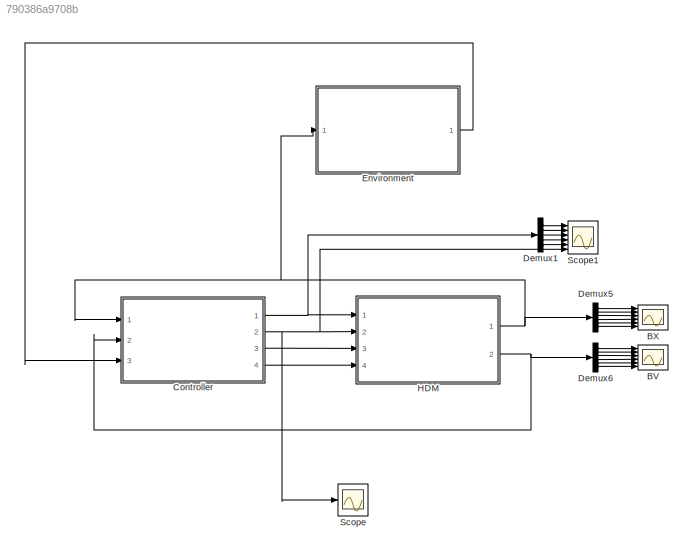
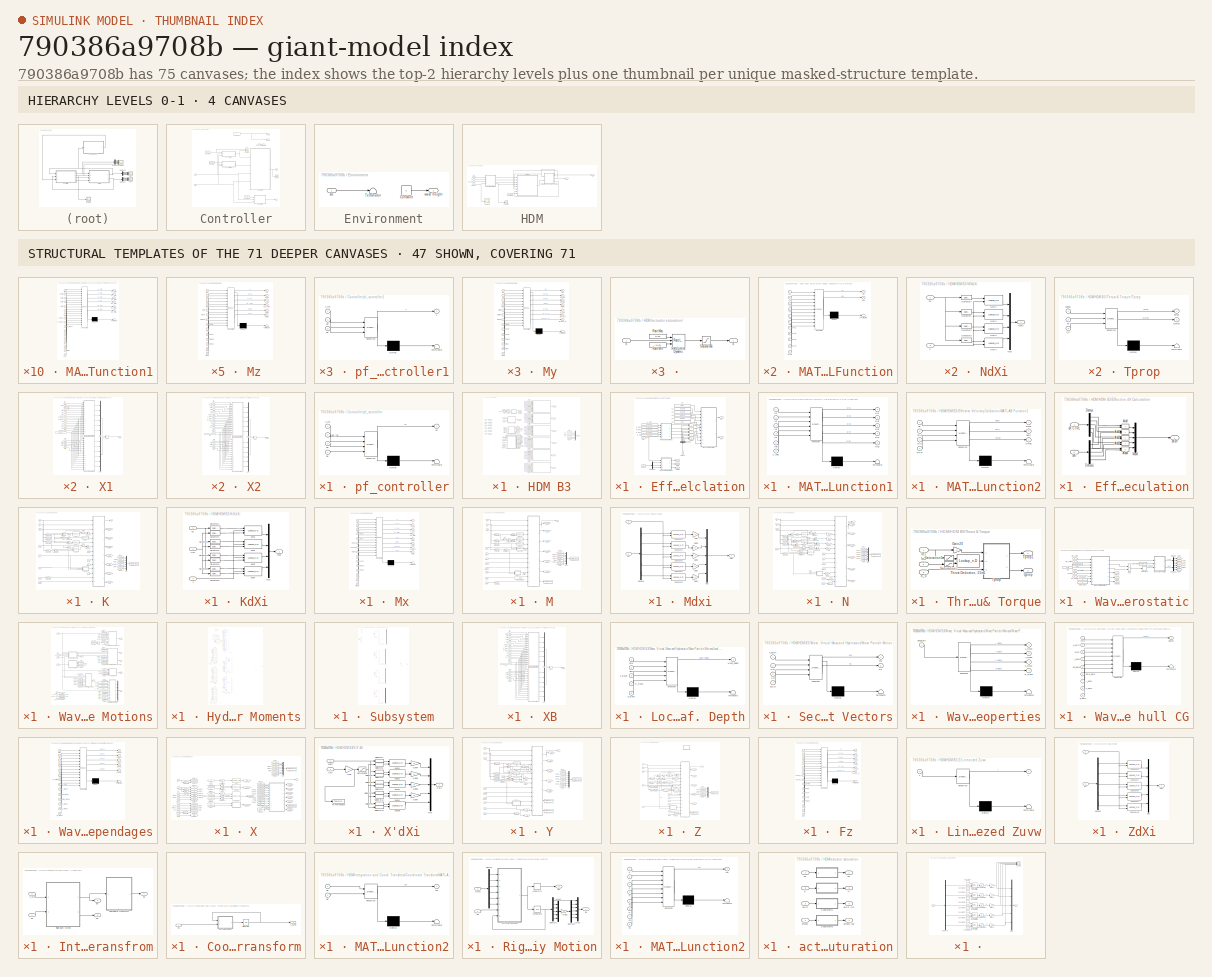
[diagram: thumbnail index - top-2 hierarchy levels (4 canvases) + 47 structural-template representatives of the remaining 71 canvases]
MODEL slx_790386a9708b
KIND model
CONFIG AbsTol = auto
CONFIG EnableMultiTasking = off
CONFIG FixedStep = 0.05
CONFIG MaxStep = auto
CONFIG MinStep = auto
CONFIG RelTol = 1e-3
CONFIG SampleTimeConstraint = Unconstrained
CONFIG SolverName = FixedStepAuto
CONFIG StartTime = 0.0
CONFIG StopTime = Tf
BLOCK [Scope] BV
  Floating = off
  NumInputPorts = 6
  Ports = [6]
  ScopeSpecificationString = Simulink.scopes.TimeScopeBlockCfg('CurrentConfiguration', extmgr.ConfigurationSet(extmgr.Configuration('Core','General UI',true),extmgr.Configuration('Core','Source UI',true),extmgr.Configuration('Sources','WiredSimulink',true,'DataLoggingVariableName','Bv','DataLogging',true,'DataLoggingSaveFormat','StructureWithTime'),extmgr.Configuration('Visuals','Time Domain',true,'SerializedDisplays',{struct...<+4771ch>
BLOCK [Scope] BX
  Floating = off
  NumInputPorts = 6
  Ports = [6]
  ScopeSpecificationString = Simulink.scopes.TimeScopeBlockCfg('CurrentConfiguration', extmgr.ConfigurationSet(extmgr.Configuration('Core','General UI',true),extmgr.Configuration('Core','Source UI',true),extmgr.Configuration('Sources','WiredSimulink',true,'DataLoggingVariableName','Bx','DataLogging',true,'DataLoggingSaveFormat','StructureWithTime'),extmgr.Configuration('Visuals','Time Domain',true,'SerializedDisplays',{struct...<+4935ch>
BLOCK [SubSystem] Controller
  Ports = [3, 4]
  RequestExecContextInheritance = off
BLOCK [Inport] Controller/Bv
  Port = 2
BLOCK [Inport] Controller/Bx
BLOCK [Constant] Controller/Constant1
  Value = 0
BLOCK [Constant] Controller/Constant2
  Value = v_ref
BLOCK [Constant] Controller/Constant3
  Value = z_ref
BLOCK [Constant] Controller/Constant5
  Value = psi_ref
BLOCK [Scope] Controller/Scope
  Floating = off
  NumInputPorts = 1
  Ports = [1]
  ScopeSpecificationString = Simulink.scopes.TimeScopeBlockCfg('CurrentConfiguration', extmgr.ConfigurationSet(extmgr.Configuration('Core','General UI',true),extmgr.Configuration('Core','Source UI',true),extmgr.Configuration('Sources','WiredSimulink',true,'DataLoggingVariableName','ScopeData1'),extmgr.Configuration('Visuals','Time Domain',true,'SerializedDisplays',{struct('MinYLimReal','-0.96769','MaxYLimReal','0.96769','YLab...<+1465ch>
BLOCK [Scope] Controller/Scope1
  Floating = off
  NumInputPorts = 2
  Ports = [2]
  ScopeSpecificationString = Simulink.scopes.TimeScopeBlockCfg('CurrentConfiguration', extmgr.ConfigurationSet(extmgr.Configuration('Core','General UI',true),extmgr.Configuration('Core','Source UI',true),extmgr.Configuration('Sources','WiredSimulink',true,'DataLoggingVariableName','ScopeData1'),extmgr.Configuration('Visuals','Time Domain',true,'SerializedDisplays',{struct('MinYLimReal','-70.00000','MaxYLimReal','-50.00000','Y...<+1464ch>
BLOCK [Terminator] Controller/Terminator2
BLOCK [Outport] Controller/dLCG
  Port = 3
BLOCK [Outport] Controller/dX
BLOCK [Outport] Controller/dmass
  Port = 4
BLOCK [Outport] Controller/n
  Port = 2
BLOCK [SubSystem] Controller/pf_controller
  ErrorFcn = Stateflow.Translate.translate
  PermitHierarchicalResolution = ExplicitOnly
  Ports = [4, 1]
  RequestExecContextInheritance = off
  SFBlockType = MATLAB Function
  TreatAsAtomicUnit = on
BLOCK [Demux] Controller/pf_controller/ Demux 
  Outputs = 1
  Ports = [1, 1]
BLOCK [S-Function] Controller/pf_controller/ SFunction 
  EnableBusSupport = on
  FunctionName = sf_sfun
  Parameters = Ts
  PortCounts = [4 2]
  Ports = [4, 2]
  SFcnIsStateOwnerBlock = off
  SFunctionDeploymentMode = off
  Tag = Stateflow S-Function 2
BLOCK [Terminator] Controller/pf_controller/ Terminator 
BLOCK [Inport] Controller/pf_controller/Bv
  Port = 3
BLOCK [Inport] Controller/pf_controller/Bx
  Port = 4
BLOCK [Outport] Controller/pf_controller/dX
BLOCK [Inport] Controller/pf_controller/psi_ref
  Port = 2
BLOCK [Inport] Controller/pf_controller/z_ref
BLOCK [SubSystem] Controller/pf_controller1
  ErrorFcn = Stateflow.Translate.translate
  PermitHierarchicalResolution = ExplicitOnly
  Ports = [3, 1]
  RequestExecContextInheritance = off
  SFBlockType = MATLAB Function
  TreatAsAtomicUnit = on
BLOCK [Demux] Controller/pf_controller1/ Demux 
  Outputs = 1
  Ports = [1, 1]
BLOCK [S-Function] Controller/pf_controller1/ SFunction 
  EnableBusSupport = on
  FunctionName = sf_sfun
  Parameters = Ts
  PortCounts = [3 2]
  Ports = [3, 2]
  SFcnIsStateOwnerBlock = off
  SFunctionDeploymentMode = off
  Tag = Stateflow S-Function 1
BLOCK [Terminator] Controller/pf_controller1/ Terminator 
BLOCK [Inport] Controller/pf_controller1/Bv
  Port = 2
BLOCK [Inport] Controller/pf_controller1/Bx
  Port = 3
BLOCK [Outport] Controller/pf_controller1/n
BLOCK [Inport] Controller/pf_controller1/v_ref
BLOCK [SubSystem] Controller/pf_controller3
  ErrorFcn = Stateflow.Translate.translate
  PermitHierarchicalResolution = ExplicitOnly
  Ports = [3, 1]
  RequestExecContextInheritance = off
  SFBlockType = MATLAB Function
  TreatAsAtomicUnit = on
BLOCK [Demux] Controller/pf_controller3/ Demux 
  Outputs = 1
  Ports = [1, 1]
BLOCK [S-Function] Controller/pf_controller3/ SFunction 
  EnableBusSupport = on
  FunctionName = sf_sfun
  Parameters = Ts,adap
  PortCounts = [3 2]
  Ports = [3, 2]
  SFcnIsStateOwnerBlock = off
  SFunctionDeploymentMode = off
  Tag = Stateflow S-Function 4
BLOCK [Terminator] Controller/pf_controller3/ Terminator 
BLOCK [Inport] Controller/pf_controller3/Bv
  Port = 2
BLOCK [Inport] Controller/pf_controller3/Bx
  Port = 3
BLOCK [Outport] Controller/pf_controller3/psi_aug
BLOCK [Inport] Controller/pf_controller3/psi_ref
BLOCK [SubSystem] Controller/pf_controller4
  ErrorFcn = Stateflow.Translate.translate
  PermitHierarchicalResolution = ExplicitOnly
  Ports = [3, 1]
  RequestExecContextInheritance = off
  SFBlockType = MATLAB Function
  TreatAsAtomicUnit = on
BLOCK [Demux] Controller/pf_controller4/ Demux 
  Outputs = 1
  Ports = [1, 1]
BLOCK [S-Function] Controller/pf_controller4/ SFunction 
  EnableBusSupport = on
  FunctionName = sf_sfun
  Parameters = Ts,adap
  PortCounts = [3 2]
  Ports = [3, 2]
  SFcnIsStateOwnerBlock = off
  SFunctionDeploymentMode = off
  Tag = Stateflow S-Function 5
BLOCK [Terminator] Controller/pf_controller4/ Terminator 
BLOCK [Inport] Controller/pf_controller4/Bv
  Port = 2
BLOCK [Inport] Controller/pf_controller4/Bx
  Port = 3
BLOCK [Outport] Controller/pf_controller4/z_aug
BLOCK [Inport] Controller/pf_controller4/z_ref
BLOCK [Inport] Controller/wave height
  Port = 3
BLOCK [Demux] Demux1
  Outputs = 5
  Ports = [1, 5]
BLOCK [Demux] Demux5
  Outputs = 6
  Ports = [1, 6]
BLOCK [Demux] Demux6
  Outputs = 6
  Ports = [1, 6]
BLOCK [SubSystem] Environment
  Ports = [1, 1]
  RequestExecContextInheritance = off
BLOCK [Inport] Environment/Bx
  NameLocation = left
BLOCK [Constant] Environment/Constant
  Value = 0
BLOCK [Terminator] Environment/Terminator
BLOCK [Outport] Environment/wave height
BLOCK [SubSystem] HDM
  Ports = [4, 2]
  RequestExecContextInheritance = off
BLOCK [Outport] HDM/Bv
  Port = 2
BLOCK [Outport] HDM/Bx
BLOCK [Constant] HDM/Constant1
  Value = Seastate
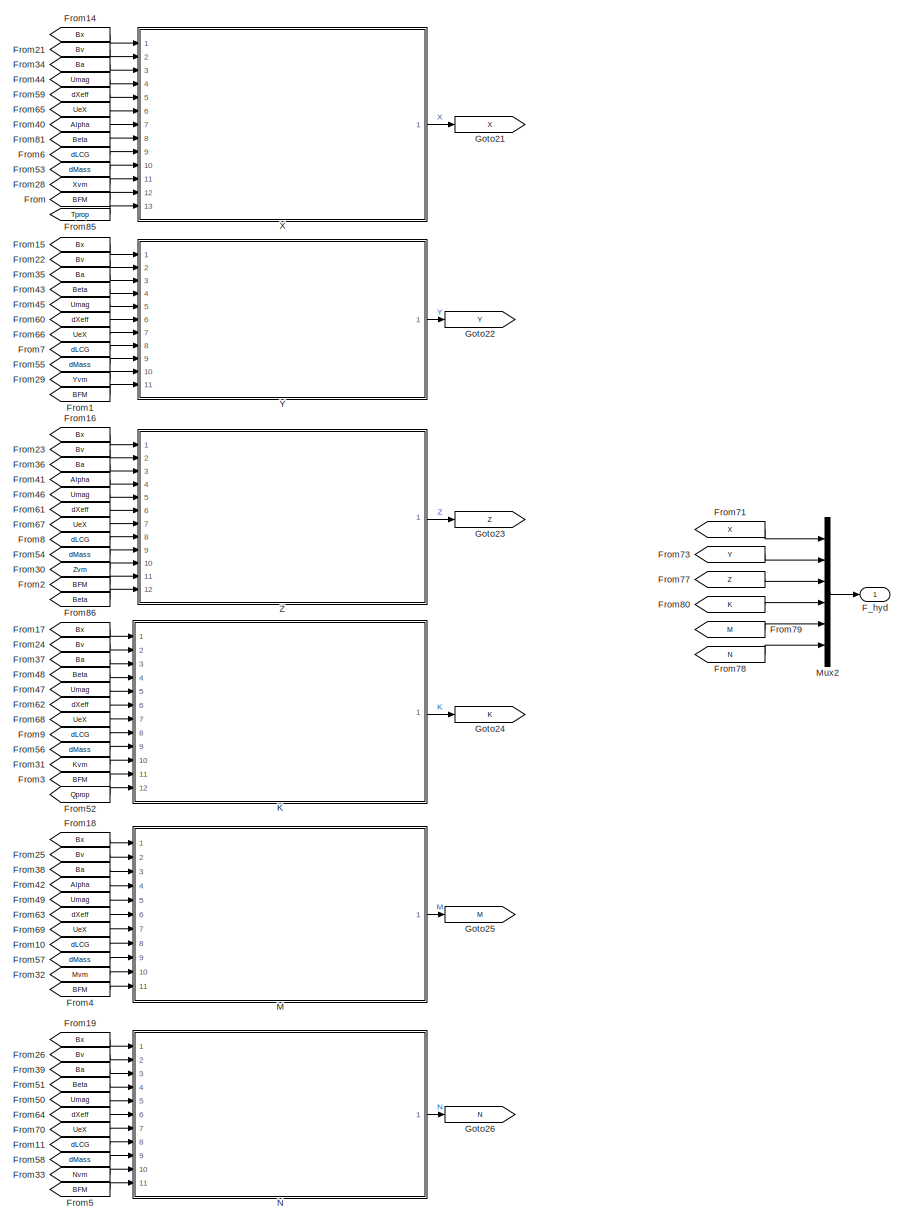
[diagram: HDM/HDM B3 - part 1/2, right side, full height]
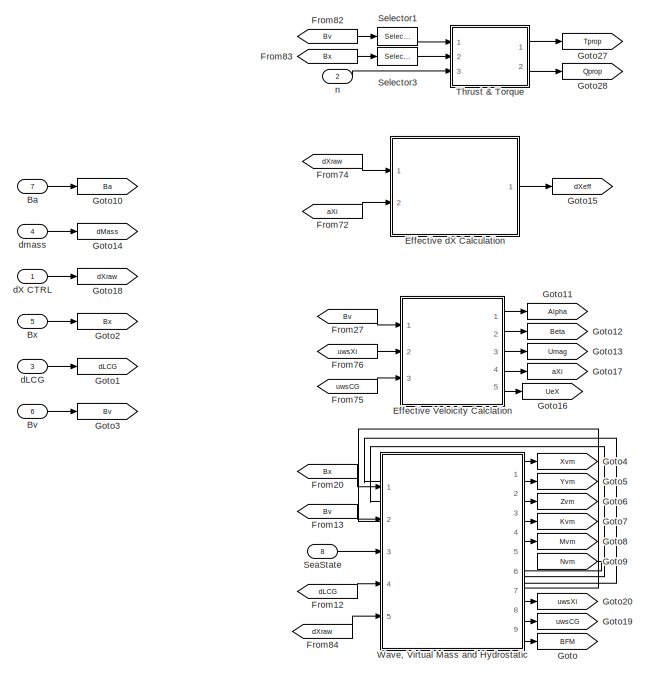
[diagram: HDM/HDM B3 - part 2/2, middle left region]
BLOCK [SubSystem] HDM/HDM B3
  InitFcn = 'main'
  Ports = [8, 1]
  RequestExecContextInheritance = off
BLOCK [Inport] HDM/HDM B3/Ba
  NameLocation = top
  Port = 7
BLOCK [Inport] HDM/HDM B3/Bv
  NameLocation = top
  Port = 6
BLOCK [Inport] HDM/HDM B3/Bx
  NameLocation = top
  Port = 5
BLOCK [SubSystem] HDM/HDM B3/Effective Veloicity Calclation
  Ports = [3, 5]
  RequestExecContextInheritance = off
BLOCK [Sum] HDM/HDM B3/Effective Veloicity Calclation/Add
  IconShape = rectangular
  Ports = [2, 1]
BLOCK [Sum] HDM/HDM B3/Effective Veloicity Calclation/Add1
  IconShape = rectangular
  Ports = [2, 1]
BLOCK [Sum] HDM/HDM B3/Effective Veloicity Calclation/Add2
  IconShape = rectangular
  Ports = [2, 1]
BLOCK [Sum] HDM/HDM B3/Effective Veloicity Calclation/Add3
  IconShape = rectangular
  Ports = [2, 1]
BLOCK [Sum] HDM/HDM B3/Effective Veloicity Calclation/Add4
  IconShape = rectangular
  Ports = [2, 1]
BLOCK [Outport] HDM/HDM B3/Effective Veloicity Calclation/Alpha
BLOCK [Outport] HDM/HDM B3/Effective Veloicity Calclation/Beta
  Port = 2
BLOCK [Inport] HDM/HDM B3/Effective Veloicity Calclation/Bv
  NameLocation = top
BLOCK [Demux] HDM/HDM B3/Effective Veloicity Calclation/Demux
  NameLocation = right
  Outputs = 5
  Ports = [1, 5]
BLOCK [Demux] HDM/HDM B3/Effective Veloicity Calclation/Demux1
  Outputs = 3
  Ports = [1, 3]
BLOCK [SubSystem] HDM/HDM B3/Effective Veloicity Calclation/MATLAB Function
  ErrorFcn = Stateflow.Translate.translate
  PermitHierarchicalResolution = ExplicitOnly
  Ports = [11, 2]
  RequestExecContextInheritance = off
  SFBlockType = MATLAB Function
  TreatAsAtomicUnit = on
BLOCK [Demux] HDM/HDM B3/Effective Veloicity Calclation/MATLAB Function/ Demux 
  Outputs = 1
  Ports = [1, 1]
BLOCK [S-Function] HDM/HDM B3/Effective Veloicity Calclation/MATLAB Function/ SFunction 
  EnableBusSupport = on
  FunctionName = sf_sfun
  PortCounts = [11 3]
  Ports = [11, 3]
  SFcnIsStateOwnerBlock = off
  SFunctionDeploymentMode = off
  Tag = Stateflow S-Function 14
BLOCK [Terminator] HDM/HDM B3/Effective Veloicity Calclation/MATLAB Function/ Terminator 
BLOCK [Outport] HDM/HDM B3/Effective Veloicity Calclation/MATLAB Function/UeX
  Port = 2
BLOCK [Outport] HDM/HDM B3/Effective Veloicity Calclation/MATLAB Function/aX
BLOCK [Inport] HDM/HDM B3/Effective Veloicity Calclation/MATLAB Function/n1
  Port = 2
BLOCK [Inport] HDM/HDM B3/Effective Veloicity Calclation/MATLAB Function/n2
  Port = 3
BLOCK [Inport] HDM/HDM B3/Effective Veloicity Calclation/MATLAB Function/n3
  Port = 4
BLOCK [Inport] HDM/HDM B3/Effective Veloicity Calclation/MATLAB Function/n4
  Port = 5
BLOCK [Inport] HDM/HDM B3/Effective Veloicity Calclation/MATLAB Function/nB
  Port = 6
BLOCK [Inport] HDM/HDM B3/Effective Veloicity Calclation/MATLAB Function/nh
BLOCK [Inport] HDM/HDM B3/Effective Veloicity Calclation/MATLAB Function/urX1
  Port = 7
BLOCK [Inport] HDM/HDM B3/Effective Veloicity Calclation/MATLAB Function/urX2
  Port = 8
BLOCK [Inport] HDM/HDM B3/Effective Veloicity Calclation/MATLAB Function/urX3
  Port = 9
BLOCK [Inport] HDM/HDM B3/Effective Veloicity Calclation/MATLAB Function/urX4
  Port = 10
BLOCK [Inport] HDM/HDM B3/Effective Veloicity Calclation/MATLAB Function/urXB
  Port = 11
BLOCK [SubSystem] HDM/HDM B3/Effective Veloicity Calclation/MATLAB Function1
  ErrorFcn = Stateflow.Translate.translate
  PermitHierarchicalResolution = ExplicitOnly
  Ports = [6, 5]
  RequestExecContextInheritance = off
  SFBlockType = MATLAB Function
  TreatAsAtomicUnit = on
BLOCK [Demux] HDM/HDM B3/Effective Veloicity Calclation/MATLAB Function1/ Demux 
  Outputs = 1
  Ports = [1, 1]
BLOCK [S-Function] HDM/HDM B3/Effective Veloicity Calclation/MATLAB Function1/ SFunction 
  EnableBusSupport = on
  FunctionName = sf_sfun
  PortCounts = [6 6]
  Ports = [6, 6]
  SFcnIsStateOwnerBlock = off
  SFunctionDeploymentMode = off
  Tag = Stateflow S-Function 29
BLOCK [Terminator] HDM/HDM B3/Effective Veloicity Calclation/MATLAB Function1/ Terminator 
BLOCK [Inport] HDM/HDM B3/Effective Veloicity Calclation/MATLAB Function1/U_ship
  Port = 6
BLOCK [Inport] HDM/HDM B3/Effective Veloicity Calclation/MATLAB Function1/rX1
BLOCK [Inport] HDM/HDM B3/Effective Veloicity Calclation/MATLAB Function1/rX2
  Port = 2
BLOCK [Inport] HDM/HDM B3/Effective Veloicity Calclation/MATLAB Function1/rX3
  Port = 3
BLOCK [Inport] HDM/HDM B3/Effective Veloicity Calclation/MATLAB Function1/rX4
  Port = 4
BLOCK [Inport] HDM/HDM B3/Effective Veloicity Calclation/MATLAB Function1/rXB
  Port = 5
BLOCK [Outport] HDM/HDM B3/Effective Veloicity Calclation/MATLAB Function1/urX1
BLOCK [Outport] HDM/HDM B3/Effective Veloicity Calclation/MATLAB Function1/urX2
  Port = 2
BLOCK [Outport] HDM/HDM B3/Effective Veloicity Calclation/MATLAB Function1/urX3
  Port = 3
BLOCK [Outport] HDM/HDM B3/Effective Veloicity Calclation/MATLAB Function1/urX4
  Port = 4
BLOCK [Outport] HDM/HDM B3/Effective Veloicity Calclation/MATLAB Function1/urXB
  Port = 5
BLOCK [SubSystem] HDM/HDM B3/Effective Veloicity Calclation/MATLAB Function2
  ErrorFcn = Stateflow.Translate.translate
  PermitHierarchicalResolution = ExplicitOnly
  Ports = [4, 3]
  RequestExecContextInheritance = off
  SFBlockType = MATLAB Function
  TreatAsAtomicUnit = on
BLOCK [Demux] HDM/HDM B3/Effective Veloicity Calclation/MATLAB Function2/ Demux 
  Outputs = 1
  Ports = [1, 1]
BLOCK [S-Function] HDM/HDM B3/Effective Veloicity Calclation/MATLAB Function2/ SFunction 
  EnableBusSupport = on
  FunctionName = sf_sfun
  PortCounts = [4 4]
  Ports = [4, 4]
  SFcnIsStateOwnerBlock = off
  SFunctionDeploymentMode = off
  Tag = Stateflow S-Function 30
BLOCK [Terminator] HDM/HDM B3/Effective Veloicity Calclation/MATLAB Function2/ Terminator 
BLOCK [Inport] HDM/HDM B3/Effective Veloicity Calclation/MATLAB Function2/Bv
BLOCK [Outport] HDM/HDM B3/Effective Veloicity Calclation/MATLAB Function2/Umag
  Port = 3
BLOCK [Outport] HDM/HDM B3/Effective Veloicity Calclation/MATLAB Function2/alpha
BLOCK [Outport] HDM/HDM B3/Effective Veloicity Calclation/MATLAB Function2/beta
  Port = 2
BLOCK [Inport] HDM/HDM B3/Effective Veloicity Calclation/MATLAB Function2/uCG
  Port = 2
BLOCK [Inport] HDM/HDM B3/Effective Veloicity Calclation/MATLAB Function2/vCG
  Port = 3
BLOCK [Inport] HDM/HDM B3/Effective Veloicity Calclation/MATLAB Function2/wCG
  Port = 4
BLOCK [Outport] HDM/HDM B3/Effective Veloicity Calclation/UeX
  Port = 5
BLOCK [Outport] HDM/HDM B3/Effective Veloicity Calclation/Umag
  Port = 3
BLOCK [Constant] HDM/HDM B3/Effective Veloicity Calclation/X_SP1
  NameLocation = top
  Value = [31.924; 3.861; -3.861;]
BLOCK [Constant] HDM/HDM B3/Effective Veloicity Calclation/X_SP2
  NameLocation = top
  Value = [31.924; 3.861; 3.861;]
BLOCK [Constant] HDM/HDM B3/Effective Veloicity Calclation/X_SP3
  NameLocation = top
  Value = [31.924; -3.861; 3.861;]
BLOCK [Constant] HDM/HDM B3/Effective Veloicity Calclation/X_SP4
  NameLocation = top
  Value = [31.924; -3.861; -3.861;]
BLOCK [Constant] HDM/HDM B3/Effective Veloicity Calclation/X_XB
  NameLocation = top
  Value = [-10.465; 0; 9.732;]
BLOCK [Outport] HDM/HDM B3/Effective Veloicity Calclation/aXi
  Port = 4
BLOCK [Constant] HDM/HDM B3/Effective Veloicity Calclation/n1
  NameLocation = top
  Value = [0; 1/sqrt(2); -1/sqrt(2);]
BLOCK [Constant] HDM/HDM B3/Effective Veloicity Calclation/n2
  NameLocation = top
  Value = [0; 1/sqrt(2); 1/sqrt(2);]
BLOCK [Constant] HDM/HDM B3/Effective Veloicity Calclation/n3
  NameLocation = top
  Value = [0; -1/sqrt(2); 1/sqrt(2);]
BLOCK [Constant] HDM/HDM B3/Effective Veloicity Calclation/n4
  NameLocation = top
  Value = [0; -1/sqrt(2); -1/sqrt(2);]
BLOCK [Constant] HDM/HDM B3/Effective Veloicity Calclation/n5
  NameLocation = top
  Value = [0; 1; 0;]
BLOCK [Constant] HDM/HDM B3/Effective Veloicity Calclation/nh
  NameLocation = top
  Value = [-1; 0; 0;]
BLOCK [Inport] HDM/HDM B3/Effective Veloicity Calclation/uwsCG
  NameLocation = top
  Port = 3
BLOCK [Inport] HDM/HDM B3/Effective Veloicity Calclation/uwsXi
  NameLocation = right
  Port = 2
BLOCK [SubSystem] HDM/HDM B3/Effective dX Calculation
  Ports = [2, 1]
  RequestExecContextInheritance = off
BLOCK [Sum] HDM/HDM B3/Effective dX Calculation/Add
  IconShape = rectangular
  Ports = [2, 1]
BLOCK [Sum] HDM/HDM B3/Effective dX Calculation/Add1
  IconShape = rectangular
  Ports = [2, 1]
BLOCK [Sum] HDM/HDM B3/Effective dX Calculation/Add2
  IconShape = rectangular
  Ports = [2, 1]
BLOCK [Sum] HDM/HDM B3/Effective dX Calculation/Add3
  IconShape = rectangular
  Ports = [2, 1]
BLOCK [Sum] HDM/HDM B3/Effective dX Calculation/Add4
  IconShape = rectangular
  Ports = [2, 1]
BLOCK [Demux] HDM/HDM B3/Effective dX Calculation/Demux
  Outputs = 5
  Ports = [1, 5]
BLOCK [Demux] HDM/HDM B3/Effective dX Calculation/Demux1
  Outputs = 5
  Ports = [1, 5]
BLOCK [Mux] HDM/HDM B3/Effective dX Calculation/Mux6
  DisplayOption = bar
  Inputs = 5
  Ports = [5, 1]
BLOCK [Inport] HDM/HDM B3/Effective dX Calculation/aXi
  NameLocation = top
  Port = 2
BLOCK [Inport] HDM/HDM B3/Effective dX Calculation/dX CTRL
  NameLocation = top
BLOCK [Outport] HDM/HDM B3/Effective dX Calculation/dXeff
BLOCK [Outport] HDM/HDM B3/F_hyd
  VectorParamsAs1DForOutWhenUnconnected = off
BLOCK [From] HDM/HDM B3/From
  GotoTag = BFM
BLOCK [From] HDM/HDM B3/From1
  GotoTag = BFM
BLOCK [From] HDM/HDM B3/From10
  GotoTag = dLCG
BLOCK [From] HDM/HDM B3/From11
  GotoTag = dLCG
BLOCK [From] HDM/HDM B3/From12
  GotoTag = dLCG
BLOCK [From] HDM/HDM B3/From13
  GotoTag = Bv
BLOCK [From] HDM/HDM B3/From14
  GotoTag = Bx
BLOCK [From] HDM/HDM B3/From15
  GotoTag = Bx
BLOCK [From] HDM/HDM B3/From16
  GotoTag = Bx
BLOCK [From] HDM/HDM B3/From17
  GotoTag = Bx
BLOCK [From] HDM/HDM B3/From18
  GotoTag = Bx
BLOCK [From] HDM/HDM B3/From19
  GotoTag = Bx
BLOCK [From] HDM/HDM B3/From2
  GotoTag = BFM
BLOCK [From] HDM/HDM B3/From20
  GotoTag = Bx
BLOCK [From] HDM/HDM B3/From21
  GotoTag = Bv
BLOCK [From] HDM/HDM B3/From22
  GotoTag = Bv
BLOCK [From] HDM/HDM B3/From23
  GotoTag = Bv
BLOCK [From] HDM/HDM B3/From24
  GotoTag = Bv
BLOCK [From] HDM/HDM B3/From25
  GotoTag = Bv
BLOCK [From] HDM/HDM B3/From26
  GotoTag = Bv
BLOCK [From] HDM/HDM B3/From27
  GotoTag = Bv
BLOCK [From] HDM/HDM B3/From28
  GotoTag = Xvm
BLOCK [From] HDM/HDM B3/From29
  GotoTag = Yvm
BLOCK [From] HDM/HDM B3/From3
  GotoTag = BFM
BLOCK [From] HDM/HDM B3/From30
  GotoTag = Zvm
BLOCK [From] HDM/HDM B3/From31
  GotoTag = Kvm
BLOCK [From] HDM/HDM B3/From32
  GotoTag = Mvm
BLOCK [From] HDM/HDM B3/From33
  GotoTag = Nvm
BLOCK [From] HDM/HDM B3/From34
  GotoTag = Ba
BLOCK [From] HDM/HDM B3/From35
  GotoTag = Ba
BLOCK [From] HDM/HDM B3/From36
  GotoTag = Ba
BLOCK [From] HDM/HDM B3/From37
  GotoTag = Ba
BLOCK [From] HDM/HDM B3/From38
  GotoTag = Ba
BLOCK [From] HDM/HDM B3/From39
  GotoTag = Ba
BLOCK [From] HDM/HDM B3/From4
  GotoTag = BFM
BLOCK [From] HDM/HDM B3/From40
  GotoTag = Alpha
BLOCK [From] HDM/HDM B3/From41
  GotoTag = Alpha
BLOCK [From] HDM/HDM B3/From42
  GotoTag = Alpha
BLOCK [From] HDM/HDM B3/From43
  GotoTag = Beta
BLOCK [From] HDM/HDM B3/From44
  GotoTag = Umag
BLOCK [From] HDM/HDM B3/From45
  GotoTag = Umag
BLOCK [From] HDM/HDM B3/From46
  GotoTag = Umag
BLOCK [From] HDM/HDM B3/From47
  GotoTag = Umag
BLOCK [From] HDM/HDM B3/From48
  GotoTag = Beta
BLOCK [From] HDM/HDM B3/From49
  GotoTag = Umag
BLOCK [From] HDM/HDM B3/From5
  GotoTag = BFM
BLOCK [From] HDM/HDM B3/From50
  GotoTag = Umag
BLOCK [From] HDM/HDM B3/From51
  GotoTag = Beta
BLOCK [From] HDM/HDM B3/From52
  GotoTag = Qprop
BLOCK [From] HDM/HDM B3/From53
  GotoTag = dMass
BLOCK [From] HDM/HDM B3/From54
  GotoTag = dMass
BLOCK [From] HDM/HDM B3/From55
  GotoTag = dMass
BLOCK [From] HDM/HDM B3/From56
  GotoTag = dMass
BLOCK [From] HDM/HDM B3/From57
  GotoTag = dMass
BLOCK [From] HDM/HDM B3/From58
  GotoTag = dMass
BLOCK [From] HDM/HDM B3/From59
  GotoTag = dXeff
BLOCK [From] HDM/HDM B3/From6
  GotoTag = dLCG
BLOCK [From] HDM/HDM B3/From60
  GotoTag = dXeff
BLOCK [From] HDM/HDM B3/From61
  GotoTag = dXeff
BLOCK [From] HDM/HDM B3/From62
  GotoTag = dXeff
BLOCK [From] HDM/HDM B3/From63
  GotoTag = dXeff
BLOCK [From] HDM/HDM B3/From64
  GotoTag = dXeff
BLOCK [From] HDM/HDM B3/From65
  GotoTag = UeX
BLOCK [From] HDM/HDM B3/From66
  GotoTag = UeX
BLOCK [From] HDM/HDM B3/From67
  GotoTag = UeX
BLOCK [From] HDM/HDM B3/From68
  GotoTag = UeX
BLOCK [From] HDM/HDM B3/From69
  GotoTag = UeX
BLOCK [From] HDM/HDM B3/From7
  GotoTag = dLCG
BLOCK [From] HDM/HDM B3/From70
  GotoTag = UeX
BLOCK [From] HDM/HDM B3/From71
  GotoTag = X
BLOCK [From] HDM/HDM B3/From72
  GotoTag = aXi
BLOCK [From] HDM/HDM B3/From73
  GotoTag = Y
BLOCK [From] HDM/HDM B3/From74
  GotoTag = dXraw
BLOCK [From] HDM/HDM B3/From75
  GotoTag = uwsCG
BLOCK [From] HDM/HDM B3/From76
  GotoTag = uwsXi
BLOCK [From] HDM/HDM B3/From77
  GotoTag = Z
BLOCK [From] HDM/HDM B3/From78
  GotoTag = N
BLOCK [From] HDM/HDM B3/From79
  GotoTag = M
BLOCK [From] HDM/HDM B3/From8
  GotoTag = dLCG
BLOCK [From] HDM/HDM B3/From80
  GotoTag = K
BLOCK [From] HDM/HDM B3/From81
  GotoTag = Beta
BLOCK [From] HDM/HDM B3/From82
  GotoTag = Bv
BLOCK [From] HDM/HDM B3/From83
  GotoTag = Bx
BLOCK [From] HDM/HDM B3/From84
  GotoTag = dXraw
BLOCK [From] HDM/HDM B3/From85
  GotoTag = Tprop
BLOCK [From] HDM/HDM B3/From86
  GotoTag = Beta
BLOCK [From] HDM/HDM B3/From9
  GotoTag = dLCG
BLOCK [Goto] HDM/HDM B3/Goto
  GotoTag = BFM
BLOCK [Goto] HDM/HDM B3/Goto1
  GotoTag = dLCG
BLOCK [Goto] HDM/HDM B3/Goto10
  GotoTag = Ba
BLOCK [Goto] HDM/HDM B3/Goto11
  GotoTag = Alpha
BLOCK [Goto] HDM/HDM B3/Goto12
  GotoTag = Beta
BLOCK [Goto] HDM/HDM B3/Goto13
  GotoTag = Umag
BLOCK [Goto] HDM/HDM B3/Goto14
  GotoTag = dMass
BLOCK [Goto] HDM/HDM B3/Goto15
  GotoTag = dXeff
BLOCK [Goto] HDM/HDM B3/Goto16
  GotoTag = UeX
BLOCK [Goto] HDM/HDM B3/Goto17
  GotoTag = aXi
BLOCK [Goto] HDM/HDM B3/Goto18
  GotoTag = dXraw
BLOCK [Goto] HDM/HDM B3/Goto19
  GotoTag = uwsCG
BLOCK [Goto] HDM/HDM B3/Goto2
  GotoTag = Bx
BLOCK [Goto] HDM/HDM B3/Goto20
  GotoTag = uwsXi
BLOCK [Goto] HDM/HDM B3/Goto21
  GotoTag = X
BLOCK [Goto] HDM/HDM B3/Goto22
  GotoTag = Y
BLOCK [Goto] HDM/HDM B3/Goto23
  GotoTag = Z
BLOCK [Goto] HDM/HDM B3/Goto24
  GotoTag = K
BLOCK [Goto] HDM/HDM B3/Goto25
  GotoTag = M
BLOCK [Goto] HDM/HDM B3/Goto26
  GotoTag = N
BLOCK [Goto] HDM/HDM B3/Goto27
  GotoTag = Tprop
BLOCK [Goto] HDM/HDM B3/Goto28
  GotoTag = Qprop
BLOCK [Goto] HDM/HDM B3/Goto3
  GotoTag = Bv
BLOCK [Goto] HDM/HDM B3/Goto4
  GotoTag = Xvm
BLOCK [Goto] HDM/HDM B3/Goto5
  GotoTag = Yvm
BLOCK [Goto] HDM/HDM B3/Goto6
  GotoTag = Zvm
BLOCK [Goto] HDM/HDM B3/Goto7
  GotoTag = Kvm
BLOCK [Goto] HDM/HDM B3/Goto8
  GotoTag = Mvm
BLOCK [Goto] HDM/HDM B3/Goto9
  GotoTag = Nvm
BLOCK [SubSystem] HDM/HDM B3/K
  Ports = [12, 1]
  RequestExecContextInheritance = off
BLOCK [Abs] HDM/HDM B3/K/Abs
  SaturateOnIntegerOverflow = off
BLOCK [Abs] HDM/HDM B3/K/Abs1
  SaturateOnIntegerOverflow = off
BLOCK [Abs] HDM/HDM B3/K/Abs2
  SaturateOnIntegerOverflow = off
BLOCK [Inport] HDM/HDM B3/K/BFM
  NameLocation = top
  Port = 11
BLOCK [Inport] HDM/HDM B3/K/Ba
  NameLocation = top
  Port = 3
BLOCK [Inport] HDM/HDM B3/K/Beta
  NameLocation = top
  Port = 4
BLOCK [Inport] HDM/HDM B3/K/Bv
  NameLocation = top
  Port = 2
BLOCK [Inport] HDM/HDM B3/K/Bx
  NameLocation = top
BLOCK [From] HDM/HDM B3/K/From
  GotoTag = KApp
BLOCK [From] HDM/HDM B3/K/From1
  GotoTag = K_hull
BLOCK [From] HDM/HDM B3/K/From2
  GotoTag = Kh_total
BLOCK [From] HDM/HDM B3/K/From3
  GotoTag = Kpp
BLOCK [From] HDM/HDM B3/K/From4
  GotoTag = Kprop
BLOCK [From] HDM/HDM B3/K/From6
  GotoTag = K_Stat
BLOCK [Goto] HDM/HDM B3/K/Goto
  GotoTag = K_Stat
BLOCK [Goto] HDM/HDM B3/K/Goto1
  GotoTag = KApp
BLOCK [Goto] HDM/HDM B3/K/Goto2
  GotoTag = Kapp_All
BLOCK [Goto] HDM/HDM B3/K/Goto3
  GotoTag = Kprop
BLOCK [Goto] HDM/HDM B3/K/Goto4
  GotoTag = Kpp
BLOCK [Goto] HDM/HDM B3/K/Goto5
  GotoTag = Kh_total
BLOCK [Goto] HDM/HDM B3/K/Goto6
  GotoTag = K_hull
BLOCK [Outport] HDM/HDM B3/K/K
BLOCK [Lookup_n-D] HDM/HDM B3/K/K'p|p|
  BreakpointsForDimension1 = [-0.0015\n-0.0012\n-0.0009\n-0.0006\n-0.0003\n-0.0001\n0.0001\n0.0003\n0.0006\n0.0009\n0.0012\n0.0015]
  InputPortMap = u0
  InternalRulePriority = Speed
  NumberOfTableDimensions = 1
  Ports = [1, 1]
  RndMeth = Simplest
  Table = [-1.3011E-02\n-1.6962E-02\n-2.0682E-02\n-3.1419E-02\n-6.4407E-02\n-1.9322E-01\n1.9322E-01\n6.4378E-02\n3.1944E-02\n2.1072E-02\n1.6415E-02\n1.3407E-02]
BLOCK [Lookup_n-D] HDM/HDM B3/K/K'up
  BreakpointsForDimension1 = [0.03999989\n0.079999993\n0.11999963\n0.15999956]
  InputPortMap = u0
  InternalRulePriority = Speed
  NumberOfTableDimensions = 1
  Ports = [1, 1]
  RndMeth = Simplest
  Table = [-4.0344E-04\n-8.1402E-04\n-1.2116E-03\n-1.6125E-03]
BLOCK [Lookup_n-D] HDM/HDM B3/K/K'ur
  BreakpointsForDimension1 = [-0.0015\n-0.0012\n-0.0009\n-0.0006\n-0.0003\n-0.0001\n0.0001\n0.0003\n0.0006\n0.0009\n0.0012\n0.0015]
  InputPortMap = u0
  InternalRulePriority = Speed
  NumberOfTableDimensions = 1
  Ports = [1, 1]
  RndMeth = Simplest
  Table = [-1.3011E-02\n-1.6962E-02\n-2.0682E-02\n-3.1419E-02\n-6.4407E-02\n-1.9322E-01\n1.9322E-01\n6.4378E-02\n3.1944E-02\n2.1072E-02\n1.6415E-02\n1.3407E-02]
BLOCK [Lookup_n-D] HDM/HDM B3/K/K'uvw
  BreakpointsForDimension1 = [0\n4\n8\n12]
  BreakpointsForDimension2 = [-5.1444E+00\n-3.0866E+00\n-1.5433E+00\n]
  BreakpointsForDimension3 = [-35.0624 -18.3724 -15.3724 -13.8724\n]
  InputPortMap = u0,u1,u2
  InternalRulePriority = Speed
  NumberOfTableDimensions = 3
  Ports = [3, 1]
  RndMeth = Simplest
  Table = reshape([0.0000000E+00\n1.5570290E-04\n3.7677829E-04\n6.0025374E-04\n0.0000000E+00\n1.5575678E-04\n3.8557685E-04\n6.0103850E-04\n0.0000000E+00\n1.7511088E-04\n3.8376789E-04\n6.0108480E-04\n0.0000000E+00\n1.9071552E-04\n4.0986649E-04\n6.4012030E-04\n0.0000000E+00\n1.8940622E-04\n4.0946931E-04\n6.3613461E-04\n0.0000000E+00\n1.8621071E-04\n4.0619654E-04\n7.0286379E-04\n0.0000000E+00\n2.0712189E-04\n4.4751988E-04\n7.0514631E-04...<+290ch>
BLOCK [SubSystem] HDM/HDM B3/K/KdXi
  Ports = [3, 1]
  RequestExecContextInheritance = off
BLOCK [Lookup_n-D] HDM/HDM B3/K/KdXi/KdX1
  BreakpointsForDimension1 = [-10 0 10]
  BreakpointsForDimension2 = [-36.4062987\n-18.4062987\n-15.4062987\n-13.9062987]
  BreakpointsForDimension3 = [-5.14444 -3.08666664 -1.54332]
  InputPortMap = u0,u1,u2
  InternalRulePriority = Speed
  NumberOfTableDimensions = 3
  Ports = [3, 1]
  RndMeth = Simplest
  Table = reshape([-3.9047E-05\n4.5684E-07\n3.9769E-05\n-3.8309E-05\n1.2643E-06\n4.0809E-05\n-3.0256E-05\n1.2643E-06\n4.8387E-05\n-3.7558E-05\n2.1545E-06\n4.2083E-05\n-3.9057E-05\n3.6064E-07\n3.9562E-05\n-3.8473E-05\n1.0476E-06\n4.0437E-05\n-3.0256E-05\n1.4418E-06\n4.8387E-05\n-3.7906E-05\n1.7415E-06\n4.1434E-05\n-3.8945E-05\n2.8249E-07\n3.9429E-05\n-3.8396E-05\n9.1134E-07\n4.0237E-05\n-3.8190E-05\n9.1134E-07\n4.0733E-05\n-3.7932E-05\n1.534...<+27ch>
BLOCK [Lookup_n-D] HDM/HDM B3/K/KdXi/KdX2
  BreakpointsForDimension1 = [-10 0 10]
  BreakpointsForDimension2 = [-36.4062987\n-18.4062987\n-15.4062987\n-13.9062987]
  BreakpointsForDimension3 = [-5.14444 -3.08666664 -1.54332]
  InputPortMap = u0,u1,u2
  InternalRulePriority = Speed
  NumberOfTableDimensions = 3
  Ports = [3, 1]
  RndMeth = Simplest
  Table = reshape([-3.5775E-05\n-2.4080E-07\n3.3150E-05\n-3.4263E-05\n1.2268E-06\n3.5342E-05\n-2.3577E-05\n1.2268E-06\n4.6338E-05\n-3.2368E-05\n3.5682E-06\n3.9469E-05\n-3.5785E-05\n-3.3131E-07\n3.3067E-05\n-3.4544E-05\n8.9010E-07\n3.4889E-05\n-2.3577E-05\n1.7076E-06\n4.6338E-05\n-3.3141E-05\n2.4187E-06\n3.7389E-05\n-3.5809E-05\n-5.7189E-07\n3.3046E-05\n-3.4706E-05\n4.2723E-07\n3.4588E-05\n-3.4017E-05\n4.2723E-07\n3.5657E-05\n-3.3562E-05\n1....<+30ch>
BLOCK [Lookup_n-D] HDM/HDM B3/K/KdXi/KdX3
  BreakpointsForDimension1 = [-10 0 10]
  BreakpointsForDimension2 = [-36.4062987\n-18.4062987\n-15.4062987\n-13.9062987]
  BreakpointsForDimension3 = [-5.14444 -3.08666664 -1.54332]
  InputPortMap = u0,u1,u2
  InternalRulePriority = Speed
  NumberOfTableDimensions = 3
  Ports = [3, 1]
  RndMeth = Simplest
  Table = reshape([-4.3139E-05\n1.7292E-07\n4.5001E-05\n-4.4081E-05\n-1.2796E-06\n4.2448E-05\n-4.9749E-05\n-1.2796E-06\n2.6691E-05\n-4.5613E-05\n-3.5861E-06\n3.8362E-05\n-4.2707E-05\n2.7384E-07\n4.4575E-05\n-4.3360E-05\n-9.3523E-07\n4.2465E-05\n-4.9749E-05\n-1.7362E-06\n2.6691E-05\n-4.4279E-05\n-2.4363E-06\n3.9821E-05\n-4.1687E-05\n5.3371E-07\n4.3082E-05\n-4.2289E-05\n-4.5361E-07\n4.1207E-05\n-4.2616E-05\n-4.5361E-07\n4.0204E-05\n-4.2521E-...<+36ch>
BLOCK [Lookup_n-D] HDM/HDM B3/K/KdXi/KdX4
  BreakpointsForDimension1 = [-10 0 10]
  BreakpointsForDimension2 = [-36.4062987\n-18.4062987\n-15.4062987\n-13.9062987]
  BreakpointsForDimension3 = [-5.14444 -3.08666664 -1.54332]
  InputPortMap = u0,u1,u2
  InternalRulePriority = Speed
  NumberOfTableDimensions = 3
  Ports = [3, 1]
  RndMeth = Simplest
  Table = reshape([-4.0969E-05\n-4.5313E-07\n4.0019E-05\n-4.1787E-05\n-1.2714E-06\n3.9006E-05\n-4.8908E-05\n-1.2714E-06\n3.0663E-05\n-4.2681E-05\n-2.1920E-06\n3.7920E-05\n-4.0777E-05\n-3.6185E-07\n4.0047E-05\n-4.1470E-05\n-1.0577E-06\n3.9147E-05\n-4.8908E-05\n-1.4679E-06\n3.0663E-05\n-4.2187E-05\n-1.7779E-06\n3.8312E-05\n-4.0496E-05\n-2.8854E-07\n4.0049E-05\n-4.1082E-05\n-9.2714E-07\n3.9223E-05\n-4.1472E-05\n-9.2714E-07\n3.8784E-05\n-4.173...<+39ch>
BLOCK [Outport] HDM/HDM B3/K/KdXi/KdXi
BLOCK [Mux] HDM/HDM B3/K/KdXi/Mux
  DisplayOption = bar
  Ports = [4, 1]
BLOCK [Selector] HDM/HDM B3/K/KdXi/Selector1
  IndexOptions = Index vector (dialog)
  Indices = 2
  InputPortWidth = 5
  OutputSizes = 1
  Ports = [1, 1]
BLOCK [Selector] HDM/HDM B3/K/KdXi/Selector2
  IndexOptions = Index vector (dialog)
  Indices = 3
  InputPortWidth = 5
  OutputSizes = 1
  Ports = [1, 1]
BLOCK [Selector] HDM/HDM B3/K/KdXi/Selector3
  IndexOptions = Index vector (dialog)
  Indices = 4
  InputPortWidth = 5
  OutputSizes = 1
  Ports = [1, 1]
BLOCK [Selector] HDM/HDM B3/K/KdXi/Selector4
  IndexOptions = Index vector (dialog)
  Indices = 1
  InputPortWidth = 5
  OutputSizes = 1
  Ports = [1, 1]
BLOCK [Selector] HDM/HDM B3/K/KdXi/Selector5
  IndexOptions = Index vector (dialog)
  Indices = 2
  InputPortWidth = 5
  OutputSizes = 1
  Ports = [1, 1]
BLOCK [Selector] HDM/HDM B3/K/KdXi/Selector6
  IndexOptions = Index vector (dialog)
  Indices = 3
  InputPortWidth = 5
  OutputSizes = 1
  Ports = [1, 1]
BLOCK [Selector] HDM/HDM B3/K/KdXi/Selector7
  IndexOptions = Index vector (dialog)
  Indices = 1
  InputPortWidth = 5
  OutputSizes = 1
  Ports = [1, 1]
BLOCK [Selector] HDM/HDM B3/K/KdXi/Selector8
  IndexOptions = Index vector (dialog)
  Indices = 4
  InputPortWidth = 5
  OutputSizes = 1
  Ports = [1, 1]
BLOCK [Inport] HDM/HDM B3/K/KdXi/UeX
  NameLocation = top
  Port = 2
BLOCK [Inport] HDM/HDM B3/K/KdXi/dX
BLOCK [Inport] HDM/HDM B3/K/KdXi/z
  NameLocation = top
  Port = 3
BLOCK [Inport] HDM/HDM B3/K/Kvm
  NameLocation = top
  Port = 10
BLOCK [Mux] HDM/HDM B3/K/Mux
  DisplayOption = bar
  Inputs = 6
  Ports = [6, 1]
BLOCK [SubSystem] HDM/HDM B3/K/Mx
  ErrorFcn = Stateflow.Translate.translate
  PermitHierarchicalResolution = ExplicitOnly
  Ports = [15, 8]
  RequestExecContextInheritance = off
  SFBlockType = MATLAB Function
  TreatAsAtomicUnit = on
BLOCK [Demux] HDM/HDM B3/K/Mx/ Demux 
  Outputs = 1
  Ports = [1, 1]
BLOCK [S-Function] HDM/HDM B3/K/Mx/ SFunction 
  EnableBusSupport = on
  FunctionName = sf_sfun
  Parameters = Bb,Mb,Xb,Xg,Zb,Zg
  PortCounts = [15 9]
  Ports = [15, 9]
  SFcnIsStateOwnerBlock = off
  SFunctionDeploymentMode = off
  Tag = Stateflow S-Function 31
BLOCK [Terminator] HDM/HDM B3/K/Mx/ Terminator 
BLOCK [Inport] HDM/HDM B3/K/Mx/BFK
  Port = 14
BLOCK [Inport] HDM/HDM B3/K/Mx/Ba
  Port = 3
BLOCK [Inport] HDM/HDM B3/K/Mx/Bv
  Port = 2
BLOCK [Inport] HDM/HDM B3/K/Mx/Bx
BLOCK [Inport] HDM/HDM B3/K/Mx/CKpp
  Port = 6
BLOCK [Inport] HDM/HDM B3/K/Mx/CKup
  Port = 4
BLOCK [Inport] HDM/HDM B3/K/Mx/CKur
  Port = 5
BLOCK [Inport] HDM/HDM B3/K/Mx/CKuvw
  Port = 7
BLOCK [Inport] HDM/HDM B3/K/Mx/CNdXi
  Port = 12
BLOCK [Outport] HDM/HDM B3/K/Mx/K
  VectorParamsAs1DForOutWhenUnconnected = off
BLOCK [Outport] HDM/HDM B3/K/Mx/KApp
  Port = 2
BLOCK [Outport] HDM/HDM B3/K/Mx/KAppAll
  Port = 7
BLOCK [Outport] HDM/HDM B3/K/Mx/KStat
  Port = 8
BLOCK [Outport] HDM/HDM B3/K/Mx/K_hull
  Port = 3
BLOCK [Outport] HDM/HDM B3/K/Mx/Kh_total
  Port = 4
BLOCK [Outport] HDM/HDM B3/K/Mx/Kpp
  Port = 5
BLOCK [Outport] HDM/HDM B3/K/Mx/Kprop
  Port = 6
BLOCK [Inport] HDM/HDM B3/K/Mx/Kvm
  Port = 13
BLOCK [Inport] HDM/HDM B3/K/Mx/Qprop
  Port = 15
BLOCK [Inport] HDM/HDM B3/K/Mx/UeX
  Port = 9
BLOCK [Inport] HDM/HDM B3/K/Mx/Umag
  Port = 8
BLOCK [Inport] HDM/HDM B3/K/Mx/dLCG
  Port = 10
BLOCK [Inport] HDM/HDM B3/K/Mx/dmass
  Port = 11
BLOCK [Product] HDM/HDM B3/K/Product
  Ports = [2, 1]
BLOCK [Product] HDM/HDM B3/K/Product1
  Ports = [2, 1]
BLOCK [Product] HDM/HDM B3/K/Product2
  Ports = [2, 1]
BLOCK [Product] HDM/HDM B3/K/Product4
  Ports = [2, 1]
BLOCK [Product] HDM/HDM B3/K/Product5
  Ports = [2, 1]
BLOCK [Inport] HDM/HDM B3/K/Qprop
  NameLocation = top
  Port = 12
BLOCK [Saturate] HDM/HDM B3/K/Saturation4
  LowerLimit = -35.0624
  UpperLimit = -13.8724
BLOCK [Selector] HDM/HDM B3/K/Selector1
  IndexOptions = Index vector (dialog)
  Indices = 4
  InputPortWidth = 6
  OutputSizes = 1
  Ports = [1, 1]
BLOCK [Selector] HDM/HDM B3/K/Selector10
  IndexOptions = Index vector (dialog)
  Indices = 1
  InputPortWidth = 6
  OutputSizes = 1
  Ports = [1, 1]
BLOCK [Selector] HDM/HDM B3/K/Selector2
  IndexOptions = Index vector (dialog)
  Indices = 3
  InputPortWidth = 6
  OutputSizes = 1
  Ports = [1, 1]
BLOCK [Selector] HDM/HDM B3/K/Selector4
  IndexOptions = Index vector (dialog)
  Indices = 4
  InputPortWidth = 6
  OutputSizes = 1
  Ports = [1, 1]
BLOCK [Selector] HDM/HDM B3/K/Selector8
  IndexOptions = Index vector (dialog)
  Indices = 2
  InputPortWidth = 6
  OutputSizes = 1
  Ports = [1, 1]
BLOCK [Signum] HDM/HDM B3/K/Sign
BLOCK [Signum] HDM/HDM B3/K/Sign1
BLOCK [ToWorkspace] HDM/HDM B3/K/To Workspace8
  FixptAsFi = on
  MaxDataPoints = inf
  Ports = [1]
  SampleTime = -1
  SaveFormat = Timeseries
  VariableName = Benchmark_K
BLOCK [Inport] HDM/HDM B3/K/UeX
  NameLocation = top
  Port = 7
BLOCK [Inport] HDM/HDM B3/K/Umag
  NameLocation = top
  Port = 5
BLOCK [Inport] HDM/HDM B3/K/dLCG
  NameLocation = top
  Port = 8
BLOCK [Inport] HDM/HDM B3/K/dX
  NameLocation = top
  Port = 6
BLOCK [Inport] HDM/HDM B3/K/dmass
  NameLocation = top
  Port = 9
BLOCK [SubSystem] HDM/HDM B3/M
  Ports = [11, 1]
  RequestExecContextInheritance = off
BLOCK [Abs] HDM/HDM B3/M/Abs
  SaturateOnIntegerOverflow = off
BLOCK [Inport] HDM/HDM B3/M/Alpha
  NameLocation = top
  Port = 4
BLOCK [Inport] HDM/HDM B3/M/BFM
  NameLocation = top
  Port = 11
BLOCK [Inport] HDM/HDM B3/M/Ba
  NameLocation = top
  Port = 3
BLOCK [Inport] HDM/HDM B3/M/Bv
  NameLocation = top
  Port = 2
BLOCK [Inport] HDM/HDM B3/M/Bx
  NameLocation = top
BLOCK [From] HDM/HDM B3/M/From
  GotoTag = Mvm
BLOCK [From] HDM/HDM B3/M/From1
  GotoTag = M_Prop
BLOCK [From] HDM/HDM B3/M/From2
  GotoTag = M_Total
BLOCK [From] HDM/HDM B3/M/From3
  GotoTag = M_Hyd
BLOCK [From] HDM/HDM B3/M/From4
  GotoTag = M_Hull
BLOCK [From] HDM/HDM B3/M/From5
  GotoTag = M_App
BLOCK [From] HDM/HDM B3/M/From6
  GotoTag = M_stat
BLOCK [Gain] HDM/HDM B3/M/Gain
  Gain = 1.1
BLOCK [Gain] HDM/HDM B3/M/Gain1
  Gain = 1.3
BLOCK [Goto] HDM/HDM B3/M/Goto
  GotoTag = M_App
BLOCK [Goto] HDM/HDM B3/M/Goto1
  GotoTag = M_Hull
BLOCK [Goto] HDM/HDM B3/M/Goto2
  GotoTag = M_Hyd
BLOCK [Goto] HDM/HDM B3/M/Goto3
  GotoTag = M_Prop
BLOCK [Goto] HDM/HDM B3/M/Goto4
  GotoTag = Mvm
BLOCK [Goto] HDM/HDM B3/M/Goto5
  GotoTag = M_Total
BLOCK [Goto] HDM/HDM B3/M/Goto6
  GotoTag = M_stat
BLOCK [Outport] HDM/HDM B3/M/M
BLOCK [Lookup_n-D] HDM/HDM B3/M/M'prop
  BreakpointsForDimension1 = [-7.7166666 -5.1444444 -3.08666664]
  InputPortMap = u0
  InternalRulePriority = Speed
  NumberOfTableDimensions = 1
  Ports = [1, 1]
  RndMeth = Simplest
  Table = [-0.00022 -0.0002 -0.00015]
BLOCK [Lookup_n-D] HDM/HDM B3/M/M_uvwa
  BreakpointsForDimension1 = [-12\n-8\n-4\n0\n4\n8\n12]
  BreakpointsForDimension2 = [-5.1444E+00\n-3.0866E+00\n-1.5433E+00\n]
  BreakpointsForDimension3 = [-35.0624 -18.3724 -15.3724 -13.8724\n]
  InputPortMap = u0,u1,u2
  InternalRulePriority = Speed
  NumberOfTableDimensions = 3
  Ports = [3, 1]
  RndMeth = Simplest
  Table = reshape([-2.40251E-03\n-1.59538E-03\n-8.21748E-04\n-3.60182E-06\n8.13350E-04\n1.50586E-03\n2.39707E-03\n-2.43392E-03\n-1.61509E-03\n-8.50748E-04\n-3.60182E-06\n8.24271E-04\n1.51842E-03\n2.43805E-03\n-2.45014E-03\n-1.65711E-03\n-9.11210E-04\n-3.60182E-06\n8.61300E-04\n1.57459E-03\n2.42777E-03\n-2.54380E-03\n-1.68842E-03\n-8.33041E-04\n2.23377E-05\n8.77717E-04\n1.73310E-03\n2.58847E-03\n-2.63734E-03\n-1.75078E-03\n-8.64221E-04\n2...<+660ch>
BLOCK [SubSystem] HDM/HDM B3/M/Mdxi
  Ports = [2, 1]
  RequestExecContextInheritance = off
BLOCK [Demux] HDM/HDM B3/M/Mdxi/Demux6
  Outputs = 5
  Ports = [1, 5]
BLOCK [Gain] HDM/HDM B3/M/Mdxi/Gain
BLOCK [Gain] HDM/HDM B3/M/Mdxi/Gain1
BLOCK [Gain] HDM/HDM B3/M/Mdxi/Gain2
BLOCK [Gain] HDM/HDM B3/M/Mdxi/Gain3
BLOCK [Gain] HDM/HDM B3/M/Mdxi/Gain4
BLOCK [Outport] HDM/HDM B3/M/Mdxi/MdX
BLOCK [Mux] HDM/HDM B3/M/Mdxi/Mux
  DisplayOption = bar
  Inputs = 5
  Ports = [5, 1]
BLOCK [Lookup_n-D] HDM/HDM B3/M/Mdxi/ZudX1 q+1
  BreakpointsForDimension1 = [-30 -20 -10 0 10 20 30]
  BreakpointsForDimension2 = [-35.0624 -15.3724 -13.8724]
  BreakpointsForDimension3 = [-5.14444 -3.08666664 -1.54332]
  InputPortMap = u0,u1
  InternalRulePriority = Speed
  Ports = [2, 1]
  RndMeth = Simplest
  Table = reshape([0.000594819\n0.000394915\n0.000195011\n-4.89222E-06\n-0.000204796\n-0.0004047\n-0.000604603\n0.000596203\n0.000392018\n0.000187833\n-1.6352E-05\n-0.000220537\n-0.000424722\n-0.000628907\n0.000582351\n0.000381446\n0.000180542\n-2.03625E-05\n-0.000221267\n-0.000422171\n-0.000623076\n],[7,3])
BLOCK [Lookup_n-D] HDM/HDM B3/M/Mdxi/ZudX1 q+2
  BreakpointsForDimension1 = [-30 -20 -10 0 10 20 30]
  BreakpointsForDimension2 = [-35.0624 -15.3724 -13.8724]
  BreakpointsForDimension3 = [-5.14444 -3.08666664 -1.54332]
  InputPortMap = u0,u1
  InternalRulePriority = Speed
  Ports = [2, 1]
  RndMeth = Simplest
  Table = reshape([0.000583784\n0.000394316\n0.000204847\n1.53782E-05\n-0.000174091\n-0.000363559\n-0.000553028\n0.00056228\n0.000374724\n0.000187169\n-3.86644E-07\n-0.000187942\n-0.000375498\n-0.000563053\n0.000546298\n0.000362052\n0.000177806\n-6.43933E-06\n-0.000190685\n-0.000374931\n-0.000559176],[7,3])
BLOCK [Lookup_n-D] HDM/HDM B3/M/Mdxi/ZudX1 q+3
  BreakpointsForDimension1 = [-30 -20 -10 0 10 20 30]
  BreakpointsForDimension2 = [-35.0624 -15.3724 -13.8724]
  BreakpointsForDimension3 = [-5.14444 -3.08666664 -1.54332]
  InputPortMap = u0,u1
  InternalRulePriority = Speed
  Ports = [2, 1]
  RndMeth = Simplest
  Table = reshape([-0.000586989\n-0.000395541\n-0.000204094\n-1.26467E-05\n0.000178801\n0.000370248\n0.000561695\n-0.000568868\n-0.000379268\n-0.000189669\n-6.86388E-08\n0.000189531\n0.000379131\n0.000568731\n-0.000565299\n-0.000378949\n-0.000192598\n-6.24776E-06\n0.000180103\n0.000366453\n0.000552804],[7,3])
BLOCK [Lookup_n-D] HDM/HDM B3/M/Mdxi/ZudX1 q+4
  BreakpointsForDimension1 = [-30 -20 -10 0 10 20 30]
  BreakpointsForDimension2 = [-35.0624 -15.3724 -13.8724]
  BreakpointsForDimension3 = [-5.14444 -3.08666664 -1.54332]
  InputPortMap = u0,u1
  InternalRulePriority = Speed
  Ports = [2, 1]
  RndMeth = Simplest
  Table = reshape([-0.000638396\n-0.000426715\n-0.000215035\n-3.35454E-06\n0.000208326\n0.000420006\n0.000631687\n-0.000598951\n-0.000393944\n-0.000188937\n1.60698E-05\n0.000221077\n0.000426084\n0.000631091\n-0.000622514\n-0.000421726\n-0.000220939\n-2.01522E-05\n0.000180635\n0.000381422\n0.000582209],[7,3])
BLOCK [Lookup_n-D] HDM/HDM B3/M/Mdxi/ZudX1 q+5
  BreakpointsForDimension1 = [-30 -20 -10 0 10 20 30]
  BreakpointsForDimension2 = [-35.0624 -15.3724 -13.8724]
  BreakpointsForDimension3 = [-35.0624 -15.3724 -13.8724]
  InputPortMap = u0,u1
  InternalRulePriority = Speed
  Ports = [2, 1]
  RndMeth = Simplest
  Table = reshape([-0.000461714\n-0.000296336\n-0.000130959\n3.44194E-05\n0.000199797\n0.000365175\n0.000530553\n-0.000503641\n-0.000327652\n-0.000151663\n2.43257E-05\n0.000200315\n0.000376303\n0.000552292\n-0.000536558\n-0.000356664\n-0.00017677\n3.1235E-06\n0.000183017\n0.000362911\n0.000542805],[7,3])
BLOCK [Inport] HDM/HDM B3/M/Mdxi/dX
BLOCK [Inport] HDM/HDM B3/M/Mdxi/z
  NameLocation = top
  Port = 2
BLOCK [Lookup_n-D] HDM/HDM B3/M/Mqq2
  BreakpointsForDimension1 = [-0.02\n-0.015\n-0.012958963\n-0.009719222\n-0.006479482\n-0.003239741\n-0.00161987\n-0.000647948\n0.000647948\n0.00161987\n0.003239741\n0.006479482\n0.009719222\n0.012958963\n0.015\n0.02\n]  <repeated x3 — deduplicated; at blocks: Mqq2, Xqq, Y|r|r>
  InputPortMap = u0
  InternalRulePriority = Speed
  NumberOfTableDimensions = 1
  Ports = [1, 1]
  RndMeth = Simplest
  Table = [-2.2571E-03\n-2.3029E-03\n-2.0965E-03\n-2.0229E-03\n-2.1546E-03\n-1.4789E-03\n-1.5664E-03\n-1.4544E-03\n-1.4705E-03\n-1.4942E-03\n-1.8790E-03\n-1.8821E-03\n-2.1009E-03\n-2.0521E-03\n-2.1685E-03\n-2.0822E-03\n]
BLOCK [Mux] HDM/HDM B3/M/Mux1
  DisplayOption = bar
  Inputs = 7
  Ports = [7, 1]
BLOCK [Inport] HDM/HDM B3/M/Mvm
  NameLocation = top
  Port = 10
BLOCK [Lookup_n-D] HDM/HDM B3/M/Mwq
  BreakpointsForDimension1 = [-0.0015\n-0.0012\n-0.0009\n-0.0006\n-0.0003\n-0.0001\n0.0001\n0.0003\n0.0006\n0.0009\n0.0012\n0.0015]
  InputPortMap = u0
  InternalRulePriority = Speed
  NumberOfTableDimensions = 1
  Ports = [1, 1]
  RndMeth = Simplest
  Table = [-1.3011E-02\n-1.6962E-02\n-2.0682E-02\n-3.1419E-02\n-6.4407E-02\n-1.9322E-01\n1.9322E-01\n6.4378E-02\n3.1944E-02\n2.1072E-02\n1.6415E-02\n1.3407E-02]
BLOCK [SubSystem] HDM/HDM B3/M/My
  ErrorFcn = Stateflow.Translate.translate
  PermitHierarchicalResolution = ExplicitOnly
  Ports = [14, 7]
  RequestExecContextInheritance = off
  SFBlockType = MATLAB Function
  TreatAsAtomicUnit = on
BLOCK [Demux] HDM/HDM B3/M/My/ Demux 
  Outputs = 1
  Ports = [1, 1]
BLOCK [S-Function] HDM/HDM B3/M/My/ SFunction 
  EnableBusSupport = on
  FunctionName = sf_sfun
  Parameters = Bb,Mb,Xb,Xg,Zb,Zg
  PortCounts = [14 8]
  Ports = [14, 8]
  SFcnIsStateOwnerBlock = off
  SFunctionDeploymentMode = off
  Tag = Stateflow S-Function 32
BLOCK [Terminator] HDM/HDM B3/M/My/ Terminator 
BLOCK [Inport] HDM/HDM B3/M/My/BFM
  Port = 14
BLOCK [Inport] HDM/HDM B3/M/My/Ba
  Port = 3
BLOCK [Inport] HDM/HDM B3/M/My/Bv
  Port = 2
BLOCK [Inport] HDM/HDM B3/M/My/Bx
BLOCK [Outport] HDM/HDM B3/M/My/MY
  VectorParamsAs1DForOutWhenUnconnected = off
BLOCK [Outport] HDM/HDM B3/M/My/MYApp
  Port = 2
BLOCK [Outport] HDM/HDM B3/M/My/MYApp_All
  Port = 7
BLOCK [Outport] HDM/HDM B3/M/My/MYStat
  Port = 3
BLOCK [Outport] HDM/HDM B3/M/My/MY_hyd
  Port = 6
BLOCK [Outport] HDM/HDM B3/M/My/M_hull
  Port = 5
BLOCK [Inport] HDM/HDM B3/M/My/MdXi
  Port = 12
BLOCK [Outport] HDM/HDM B3/M/My/Mprop
  Port = 4
BLOCK [Inport] HDM/HDM B3/M/My/Mprop 
  Port = 6
BLOCK [Inport] HDM/HDM B3/M/My/Mqq
  Port = 4
BLOCK [Inport] HDM/HDM B3/M/My/Muvw
  Port = 7
BLOCK [Inport] HDM/HDM B3/M/My/Mvm
  Port = 13
BLOCK [Inport] HDM/HDM B3/M/My/Mwq
  Port = 5
BLOCK [Inport] HDM/HDM B3/M/My/UeSP
  Port = 9
BLOCK [Inport] HDM/HDM B3/M/My/Umag
  Port = 8
BLOCK [Inport] HDM/HDM B3/M/My/dLCG
  Port = 10
BLOCK [Inport] HDM/HDM B3/M/My/dmass
  Port = 11
BLOCK [Product] HDM/HDM B3/M/Product5
  Ports = [2, 1]
BLOCK [Saturate] HDM/HDM B3/M/Saturation2
  LowerLimit = -0.0015
  UpperLimit = 0.0015
BLOCK [Saturate] HDM/HDM B3/M/Saturation3
  LowerLimit = -0.02
  UpperLimit = 0.02
BLOCK [Saturate] HDM/HDM B3/M/Saturation4
  LowerLimit = -35.0624
  UpperLimit = -13.8724
BLOCK [Selector] HDM/HDM B3/M/Selector1
  IndexOptions = Index vector (dialog)
  Indices = 5
  InputPortWidth = 6
  OutputSizes = 1
  Ports = [1, 1]
BLOCK [Selector] HDM/HDM B3/M/Selector10
  IndexOptions = Index vector (dialog)
  Indices = 1
  InputPortWidth = 6
  OutputSizes = 1
  Ports = [1, 1]
BLOCK [Selector] HDM/HDM B3/M/Selector2
  IndexOptions = Index vector (dialog)
  Indices = 3
  InputPortWidth = 6
  OutputSizes = 1
  Ports = [1, 1]
BLOCK [Selector] HDM/HDM B3/M/Selector4
  IndexOptions = Index vector (dialog)
  Indices = 5
  InputPortWidth = 6
  OutputSizes = 1
  Ports = [1, 1]
BLOCK [Selector] HDM/HDM B3/M/Selector8
  IndexOptions = Index vector (dialog)
  Indices = 3
  InputPortWidth = 6
  OutputSizes = 1
  Ports = [1, 1]
BLOCK [ToWorkspace] HDM/HDM B3/M/To Workspace1
  FixptAsFi = on
  MaxDataPoints = inf
  Ports = [1]
  SampleTime = -1
  SaveFormat = Timeseries
  VariableName = AppM_All
BLOCK [ToWorkspace] HDM/HDM B3/M/To Workspace3
  FixptAsFi = on
  MaxDataPoints = inf
  Ports = [1]
  SampleTime = -1
  SaveFormat = Timeseries
  VariableName = Benchmark_M
BLOCK [Inport] HDM/HDM B3/M/UeSP
  NameLocation = top
  Port = 7
BLOCK [Inport] HDM/HDM B3/M/Umag
  NameLocation = top
  Port = 5
BLOCK [Inport] HDM/HDM B3/M/dLCG
  NameLocation = top
  Port = 8
BLOCK [Inport] HDM/HDM B3/M/dX
  NameLocation = top
  Port = 6
BLOCK [Inport] HDM/HDM B3/M/dmass
  NameLocation = top
  Port = 9
BLOCK [Mux] HDM/HDM B3/Mux2
  DisplayOption = bar
  Inputs = 6
  Ports = [6, 1]
BLOCK [SubSystem] HDM/HDM B3/N
  Ports = [11, 1]
  RequestExecContextInheritance = off
BLOCK [Abs] HDM/HDM B3/N/Abs
  SaturateOnIntegerOverflow = off
BLOCK [Abs] HDM/HDM B3/N/Abs1
  SaturateOnIntegerOverflow = off
BLOCK [Abs] HDM/HDM B3/N/Abs2
  SaturateOnIntegerOverflow = off
BLOCK [Abs] HDM/HDM B3/N/Abs3
  SaturateOnIntegerOverflow = off
BLOCK [Inport] HDM/HDM B3/N/BFM
  NameLocation = top
  Port = 11
BLOCK [Inport] HDM/HDM B3/N/Ba
  Port = 3
BLOCK [Inport] HDM/HDM B3/N/Beta
  Port = 4
BLOCK [Inport] HDM/HDM B3/N/Bv
  Port = 2
BLOCK [Inport] HDM/HDM B3/N/Bx
BLOCK [From] HDM/HDM B3/N/From
  GotoTag = N_Stat
BLOCK [From] HDM/HDM B3/N/From1
  GotoTag = N_App
BLOCK [From] HDM/HDM B3/N/From2
  GotoTag = N_hull
BLOCK [From] HDM/HDM B3/N/From3
  GotoTag = Nh_total
BLOCK [From] HDM/HDM B3/N/From4
  GotoTag = N_prop
BLOCK [From] HDM/HDM B3/N/From5
  GotoTag = Nvm
BLOCK [From] HDM/HDM B3/N/From6
  GotoTag = N_Total
BLOCK [Gain] HDM/HDM B3/N/Gain
  Gain = 0.6
BLOCK [Gain] HDM/HDM B3/N/Gain1
  Gain = 1.5
BLOCK [Gain] HDM/HDM B3/N/Gain2
BLOCK [Gain] HDM/HDM B3/N/Gain3
BLOCK [Gain] HDM/HDM B3/N/Gain4
  Gain = 0.5
BLOCK [Goto] HDM/HDM B3/N/Goto
  GotoTag = N_Stat
BLOCK [Goto] HDM/HDM B3/N/Goto1
  GotoTag = N_App
BLOCK [Goto] HDM/HDM B3/N/Goto2
  GotoTag = N_hull
BLOCK [Goto] HDM/HDM B3/N/Goto3
  GotoTag = Nh_total
BLOCK [Goto] HDM/HDM B3/N/Goto4
  GotoTag = N_prop
BLOCK [Goto] HDM/HDM B3/N/Goto5
  GotoTag = Nvm
BLOCK [Goto] HDM/HDM B3/N/Goto6
  GotoTag = N_Total
BLOCK [Mux] HDM/HDM B3/N/Mux
  DisplayOption = bar
  Inputs = 7
  Ports = [7, 1]
BLOCK [SubSystem] HDM/HDM B3/N/Mz
  ErrorFcn = Stateflow.Translate.translate
  PermitHierarchicalResolution = ExplicitOnly
  Ports = [14, 6]
  RequestExecContextInheritance = off
  SFBlockType = MATLAB Function
  TreatAsAtomicUnit = on
BLOCK [Demux] HDM/HDM B3/N/Mz/ Demux 
  Outputs = 1
  Ports = [1, 1]
BLOCK [S-Function] HDM/HDM B3/N/Mz/ SFunction 
  EnableBusSupport = on
  FunctionName = sf_sfun
  Parameters = Bb,Mb,Xb,Xg,Zb,Zg
  PortCounts = [14 7]
  Ports = [14, 7]
  SFcnIsStateOwnerBlock = off
  SFunctionDeploymentMode = off
  Tag = Stateflow S-Function 35
BLOCK [Terminator] HDM/HDM B3/N/Mz/ Terminator 
BLOCK [Inport] HDM/HDM B3/N/Mz/BFN
  Port = 14
BLOCK [Inport] HDM/HDM B3/N/Mz/Ba
  Port = 3
BLOCK [Inport] HDM/HDM B3/N/Mz/Bv
  Port = 2
BLOCK [Inport] HDM/HDM B3/N/Mz/Bx
BLOCK [Inport] HDM/HDM B3/N/Mz/CNdXi
  Port = 12
BLOCK [Inport] HDM/HDM B3/N/Mz/CNr
  Port = 4
BLOCK [Inport] HDM/HDM B3/N/Mz/CNrr
  Port = 5
BLOCK [Inport] HDM/HDM B3/N/Mz/CNuvw
  Port = 7
BLOCK [Inport] HDM/HDM B3/N/Mz/CNvr
  Port = 6
BLOCK [Outport] HDM/HDM B3/N/Mz/N
  VectorParamsAs1DForOutWhenUnconnected = off
BLOCK [Outport] HDM/HDM B3/N/Mz/NApp
  Port = 2
BLOCK [Outport] HDM/HDM B3/N/Mz/NStat
  Port = 6
BLOCK [Outport] HDM/HDM B3/N/Mz/N_hull
  Port = 3
BLOCK [Outport] HDM/HDM B3/N/Mz/Nh_Total
  Port = 4
BLOCK [Outport] HDM/HDM B3/N/Mz/Nprop
  Port = 5
BLOCK [Inport] HDM/HDM B3/N/Mz/Nvm
  Port = 13
BLOCK [Inport] HDM/HDM B3/N/Mz/UeX
  Port = 9
BLOCK [Inport] HDM/HDM B3/N/Mz/Umag
  Port = 8
BLOCK [Inport] HDM/HDM B3/N/Mz/dLCG
  Port = 10
BLOCK [Inport] HDM/HDM B3/N/Mz/dmass
  Port = 11
BLOCK [Outport] HDM/HDM B3/N/N
BLOCK [Lookup_n-D] HDM/HDM B3/N/N'r
  BreakpointsForDimension1 = [0.03999989\n0.079999993\n0.11999963\n0.15999956]
  InputPortMap = u0
  InternalRulePriority = Speed
  NumberOfTableDimensions = 1
  Ports = [1, 1]
  RndMeth = Simplest
  Table = [-4.0344E-04\n-8.1402E-04\n-1.2116E-03\n-1.6125E-03]
BLOCK [Lookup_n-D] HDM/HDM B3/N/N'r|r|
  BreakpointsForDimension1 = [0.0001\n0.0003\n0.0006\n0.0009\n0.0012\n0.0015\n]
  InputPortMap = u0
  InternalRulePriority = Speed
  NumberOfTableDimensions = 1
  Ports = [1, 1]
  RndMeth = Simplest
  Table = [1.93E-01\n6.44E-02\n3.19E-02\n2.11E-02\n1.64E-02\n1.34E-02\n]
BLOCK [Lookup_n-D] HDM/HDM B3/N/N'uvw
  BreakpointsForDimension1 = [0\n4\n8\n12]
  BreakpointsForDimension2 = [-5.1444E+00\n-3.0866E+00\n-1.5433E+00\n]
  BreakpointsForDimension3 = [-35.0624 -18.3724 -15.3724 -13.8724\n]
  InputPortMap = u0,u1,u2
  InternalRulePriority = Speed
  NumberOfTableDimensions = 3
  Ports = [3, 1]
  RndMeth = Simplest
  Table = reshape([0.0000000E+00\n1.1975814E-03\n2.7970643E-03\n4.1308534E-03\n0.0000000E+00\n1.2111628E-03\n2.9207146E-03\n4.1207837E-03\n0.0000000E+00\n1.4959851E-03\n2.9486406E-03\n4.1213058E-03\n0.0000000E+00\n1.4879743E-03\n2.9975710E-03\n4.2577903E-03\n0.0000000E+00\n1.4933232E-03\n3.0017417E-03\n4.2334501E-03\n0.0000000E+00\n1.5365285E-03\n3.0446384E-03\n4.4091424E-03\n0.0000000E+00\n1.5329300E-03\n3.0664177E-03\n4.3937198E-03...<+290ch>
BLOCK [Lookup_n-D] HDM/HDM B3/N/N'vr
  BreakpointsForDimension1 = [0\n0.051444\n0.102888\n0.205776\n0.411552]
  InputPortMap = u0
  InternalRulePriority = Speed
  NumberOfTableDimensions = 1
  Ports = [1, 1]
  RndMeth = Simplest
  Table = [0.0000E+00\n-1.9921E-03\n-9.2025E-03\n-3.2154E-02\n-1.3255E-01]
BLOCK [SubSystem] HDM/HDM B3/N/NdXi
  Ports = [2, 1]
  RequestExecContextInheritance = off
BLOCK [Mux] HDM/HDM B3/N/NdXi/Mux
  DisplayOption = bar
  Ports = [4, 1]
BLOCK [Lookup_n-D] HDM/HDM B3/N/NdXi/NdX1
  BreakpointsForDimension1 = [-10 0 10]
  BreakpointsForDimension2 = [-36.4062987\n-18.4062987\n-15.4062987\n-13.9062987]
  BreakpointsForDimension3 = [-5.14444 -3.08666664 -1.54332]
  InputPortMap = u0,u1
  InternalRulePriority = Speed
  Ports = [2, 1]
  RndMeth = Simplest
  Table = reshape([-8.13475E-05\n-3.25752E-06\n6.9363E-05\n-8.00129E-05\n-1.7093E-06\n7.14001E-05\n-6.46417E-05\n-1.7093E-06\n8.57128E-05\n-7.85432E-05\n-1.19372E-08\n7.37459E-05],[3,4])
BLOCK [Lookup_n-D] HDM/HDM B3/N/NdXi/NdX2
  BreakpointsForDimension1 = [-10 0 10]
  BreakpointsForDimension2 = [-36.4062987\n-18.4062987\n-15.4062987\n-13.9062987]
  BreakpointsForDimension3 = [-5.14444 -3.08666664 -1.54332]
  InputPortMap = u0,u1
  InternalRulePriority = Speed
  Ports = [2, 1]
  RndMeth = Simplest
  Table = reshape([6.2278E-05\n-3.5277E-06\n-7.1028E-05\n5.9473E-05\n-6.2352E-06\n-7.5067E-05\n3.9525E-05\n-6.2352E-06\n-9.4282E-05\n5.5892E-05\n-1.0640E-05\n-8.2654E-05],[3,4])
BLOCK [Lookup_n-D] HDM/HDM B3/N/NdXi/NdX3
  BreakpointsForDimension1 = [-10 0 10]
  BreakpointsForDimension2 = [-36.4062987\n-18.4062987\n-15.4062987\n-13.9062987]
  BreakpointsForDimension3 = [-5.14444 -3.08666664 -1.54332]
  InputPortMap = u0,u1
  InternalRulePriority = Speed
  Ports = [2, 1]
  RndMeth = Simplest
  Table = reshape([8.96891E-05\n3.65995E-06\n-8.07998E-05\n9.13096E-05\n6.34009E-06\n-7.59117E-05\n0.000100356\n6.34009E-06\n-4.56822E-05\n9.40576E-05\n1.06795E-05\n-6.79415E-05],[3,4])
BLOCK [Lookup_n-D] HDM/HDM B3/N/NdXi/NdX4
  BreakpointsForDimension1 = [-10 0 10]
  BreakpointsForDimension2 = [-36.4062987\n-18.4062987\n-15.4062987\n-13.9062987]
  BreakpointsForDimension3 = [-5.14444 -3.08666664 -1.54332]
  InputPortMap = u0,u1
  InternalRulePriority = Speed
  Ports = [2, 1]
  RndMeth = Simplest
  Table = reshape([-7.16232E-05\n3.25314E-06\n8.32589E-05\n-7.3213E-05\n1.68586E-06\n8.13825E-05\n-8.66615E-05\n1.68586E-06\n6.54218E-05\n-7.48528E-05\n-6.7812E-08\n7.92559E-05],[3,4])
BLOCK [Outport] HDM/HDM B3/N/NdXi/NdXi
BLOCK [Selector] HDM/HDM B3/N/NdXi/Selector1
  IndexOptions = Index vector (dialog)
  Indices = 2
  InputPortWidth = 5
  OutputSizes = 1
  Ports = [1, 1]
BLOCK [Selector] HDM/HDM B3/N/NdXi/Selector2
  IndexOptions = Index vector (dialog)
  Indices = 3
  InputPortWidth = 5
  OutputSizes = 1
  Ports = [1, 1]
BLOCK [Selector] HDM/HDM B3/N/NdXi/Selector3
  IndexOptions = Index vector (dialog)
  Indices = 4
  InputPortWidth = 5
  OutputSizes = 1
  Ports = [1, 1]
BLOCK [Selector] HDM/HDM B3/N/NdXi/Selector7
  IndexOptions = Index vector (dialog)
  Indices = 1
  InputPortWidth = 5
  OutputSizes = 1
  Ports = [1, 1]
BLOCK [Inport] HDM/HDM B3/N/NdXi/dX
BLOCK [Inport] HDM/HDM B3/N/NdXi/z
  NameLocation = top
  Port = 2
BLOCK [Inport] HDM/HDM B3/N/Nvm
  NameLocation = top
  Port = 10
BLOCK [Product] HDM/HDM B3/N/Product
  Ports = [2, 1]
BLOCK [Product] HDM/HDM B3/N/Product1
  Ports = [2, 1]
BLOCK [Product] HDM/HDM B3/N/Product2
  Ports = [2, 1]
BLOCK [Product] HDM/HDM B3/N/Product3
  Ports = [2, 1]
BLOCK [Product] HDM/HDM B3/N/Product4
  Ports = [2, 1]
BLOCK [Product] HDM/HDM B3/N/Product5
  Ports = [2, 1]
BLOCK [Product] HDM/HDM B3/N/Product6
  Ports = [2, 1]
BLOCK [Saturate] HDM/HDM B3/N/Saturation4
  LowerLimit = -35.0624
  UpperLimit = -13.8724
BLOCK [Selector] HDM/HDM B3/N/Selector1
  IndexOptions = Index vector (dialog)
  Indices = 6
  InputPortWidth = 6
  OutputSizes = 1
  Ports = [1, 1]
BLOCK [Selector] HDM/HDM B3/N/Selector10
  IndexOptions = Index vector (dialog)
  Indices = 1
  InputPortWidth = 6
  OutputSizes = 1
  Ports = [1, 1]
BLOCK [Selector] HDM/HDM B3/N/Selector2
  IndexOptions = Index vector (dialog)
  Indices = 3
  InputPortWidth = 6
  OutputSizes = 1
  Ports = [1, 1]
BLOCK [Selector] HDM/HDM B3/N/Selector4
  IndexOptions = Index vector (dialog)
  Indices = 6
  InputPortWidth = 6
  OutputSizes = 1
  Ports = [1, 1]
BLOCK [Selector] HDM/HDM B3/N/Selector8
  IndexOptions = Index vector (dialog)
  Indices = 2
  InputPortWidth = 6
  OutputSizes = 1
  Ports = [1, 1]
BLOCK [Signum] HDM/HDM B3/N/Sign
BLOCK [Signum] HDM/HDM B3/N/Sign1
BLOCK [Signum] HDM/HDM B3/N/Sign2
BLOCK [Signum] HDM/HDM B3/N/Sign3
BLOCK [ToWorkspace] HDM/HDM B3/N/To Workspace8
  FixptAsFi = on
  MaxDataPoints = inf
  Ports = [1]
  SampleTime = -1
  SaveFormat = Timeseries
  VariableName = Benchmark_N
BLOCK [Inport] HDM/HDM B3/N/UeX
  NameLocation = top
  Port = 7
BLOCK [Inport] HDM/HDM B3/N/Umag
  NameLocation = top
  Port = 5
BLOCK [Inport] HDM/HDM B3/N/dLCG
  NameLocation = top
  Port = 8
BLOCK [Inport] HDM/HDM B3/N/dX
  Port = 6
BLOCK [Inport] HDM/HDM B3/N/dmass
  NameLocation = top
  Port = 9
BLOCK [Inport] HDM/HDM B3/SeaState
  NameLocation = top
  Port = 8
BLOCK [Selector] HDM/HDM B3/Selector1
  IndexOptions = Index vector (dialog)
  Indices = 1
  InputPortWidth = 6
  OutputSizes = 1
  Ports = [1, 1]
BLOCK [Selector] HDM/HDM B3/Selector3
  IndexOptions = Index vector (dialog)
  Indices = 3
  InputPortWidth = 6
  OutputSizes = 1
  Ports = [1, 1]
BLOCK [SubSystem] HDM/HDM B3/Thrust & Torque
  Ports = [3, 2]
  RequestExecContextInheritance = off
BLOCK [Gain] HDM/HDM B3/Thrust & Torque/Gain20
  Gain = -1
BLOCK [Inport] HDM/HDM B3/Thrust & Torque/In1
BLOCK [Inport] HDM/HDM B3/Thrust & Torque/In2
  Port = 2
BLOCK [Outport] HDM/HDM B3/Thrust & Torque/Qprop
  Port = 2
BLOCK [Saturate] HDM/HDM B3/Thrust & Torque/Saturation5
  LowerLimit = -36.3724
  UpperLimit = -13.8724
BLOCK [Saturate] HDM/HDM B3/Thrust & Torque/Saturation7
  LowerLimit = -5.14444
  UpperLimit = -1.54333333
BLOCK [Lookup_n-D] HDM/HDM B3/Thrust & Torque/Thrust Deduction, 25m1
  BreakpointsForDimension1 = [-36.3724\n-18.3724\n-15.3724\n-13.8724]
  BreakpointsForDimension2 = [-5.14444 -3.086664 -1.543332]
  InputPortMap = u0,u1
  InternalRulePriority = Speed
  Ports = [2, 1]
  RndMeth = Simplest
  Table = reshape([0.245958\n0.251311246\n0.25251\n0.251322\n0.2444134\n0.2498597\n0.2509219\n0.2498992\n0.2496\n0.2594532\n0.257802\n0.2475762],[4,3])
BLOCK [SubSystem] HDM/HDM B3/Thrust & Torque/Tprop
  ErrorFcn = Stateflow.Translate.translate
  PermitHierarchicalResolution = ExplicitOnly
  Ports = [3, 2]
  RequestExecContextInheritance = off
  SFBlockType = MATLAB Function
  TreatAsAtomicUnit = on
BLOCK [Demux] HDM/HDM B3/Thrust & Torque/Tprop/ Demux 
  Outputs = 1
  Ports = [1, 1]
BLOCK [S-Function] HDM/HDM B3/Thrust & Torque/Tprop/ SFunction 
  EnableBusSupport = on
  FunctionName = sf_sfun
  PortCounts = [3 3]
  Ports = [3, 3]
  SFcnIsStateOwnerBlock = off
  SFunctionDeploymentMode = off
  Tag = Stateflow S-Function 75
BLOCK [Terminator] HDM/HDM B3/Thrust & Torque/Tprop/ Terminator 
BLOCK [Outport] HDM/HDM B3/Thrust & Torque/Tprop/Qprop
  Port = 2
BLOCK [Inport] HDM/HDM B3/Thrust & Torque/Tprop/Td
  Port = 2
BLOCK [Outport] HDM/HDM B3/Thrust & Torque/Tprop/Tprop
  VectorParamsAs1DForOutWhenUnconnected = off
BLOCK [Inport] HDM/HDM B3/Thrust & Torque/Tprop/n_0
  Port = 3
BLOCK [Inport] HDM/HDM B3/Thrust & Torque/Tprop/speed
BLOCK [Outport] HDM/HDM B3/Thrust & Torque/Tprop1
BLOCK [Inport] HDM/HDM B3/Thrust & Torque/n_0
  Port = 3
BLOCK [SubSystem] HDM/HDM B3/Wave, Virtual Mass and Hydrostatic
  Ports = [5, 9]
  RequestExecContextInheritance = off
BLOCK [Sum] HDM/HDM B3/Wave, Virtual Mass and Hydrostatic/Add
  IconShape = rectangular
  Inputs = +-
  Ports = [2, 1]
BLOCK [Outport] HDM/HDM B3/Wave, Virtual Mass and Hydrostatic/B_FM
  Port = 9
BLOCK [Inport] HDM/HDM B3/Wave, Virtual Mass and Hydrostatic/Bv_ship
  NameLocation = left
  Port = 2
BLOCK [Inport] HDM/HDM B3/Wave, Virtual Mass and Hydrostatic/Bx_earth
  NameLocation = left
BLOCK [Constant] HDM/HDM B3/Wave, Virtual Mass and Hydrostatic/CG
  NameLocation = left
  Value = Xcg
BLOCK [Constant] HDM/HDM B3/Wave, Virtual Mass and Hydrostatic/CGi
  NameLocation = left
  Value = [5.0784E+00	0.0000E+00	8.0728E-03;\n1.1013E+01	0.0000E+00	2.5384E-01;\n1.7302E+01	0.0000E+00	3.0728E-01;\n2.5741E+01	0.0000E+00	4.1417E-01;\n3.4688E+01	0.0000E+00	4.1585E-01;\n4.2324E+01	0.0000E+00	3.2444E-01;\n4.9992E+01	0.0000E+00	3.3454E-01;\n5.7427E+01	0.0000E+00	1.7420E-02;\n6.3078E+01	0.0000E+00	1.8824E-02;\n6.6703E+01	0.0000E+00	1.1340E-02;\n2.5141E+01	0.0000E+00	8.6491E+00;\n2.1732E+01	0.0000E+00	9.7...<+114ch>
BLOCK [Constant] HDM/HDM B3/Wave, Virtual Mass and Hydrostatic/Cvm*dm
  NameLocation = top
  Value = [8.4658E+04	1.7229E+05	1.6487E+05\n2.3551E+04	4.3394E+05	3.6176E+05\n1.1585E+03	5.9767E+05	4.2996E+05\n1.4123E+02	1.1354E+06	6.5606E+05\n9.1503E+01	6.9712E+05	5.1688E+05\n9.6110E+01	6.7201E+05	5.1905E+05\n1.2163E+04	5.7818E+05	4.7547E+05\n3.7219E+04	3.4697E+05	3.3508E+05\n1.9318E+04	7.7284E+04	7.6560E+04\n1.5368E+04	2.6375E+04	2.6268E+04\n1.8312E+04	4.5870E+05	5.1108E+04\n3.1859E+02	1.2645E+04	3.4886E+02\n3.0...<+97ch>
BLOCK [Demux] HDM/HDM B3/Wave, Virtual Mass and Hydrostatic/Demux
  Outputs = 3
  Ports = [1, 3]
BLOCK [Demux] HDM/HDM B3/Wave, Virtual Mass and Hydrostatic/Demux1
  Outputs = 3
  Ports = [1, 3]
BLOCK [Derivative] HDM/HDM B3/Wave, Virtual Mass and Hydrostatic/Derivative1
BLOCK [Outport] HDM/HDM B3/Wave, Virtual Mass and Hydrostatic/Kvm
  Port = 4
BLOCK [SubSystem] HDM/HDM B3/Wave, Virtual Mass and Hydrostatic/MATLAB Function
  ErrorFcn = Stateflow.Translate.translate
  PermitHierarchicalResolution = ExplicitOnly
  Ports = [3, 2]
  RequestExecContextInheritance = off
  SFBlockType = MATLAB Function
  TreatAsAtomicUnit = on
BLOCK [Demux] HDM/HDM B3/Wave, Virtual Mass and Hydrostatic/MATLAB Function/ Demux 
  Outputs = 1
  Ports = [1, 1]
BLOCK [S-Function] HDM/HDM B3/Wave, Virtual Mass and Hydrostatic/MATLAB Function/ SFunction 
  EnableBusSupport = on
  FunctionName = sf_sfun
  PortCounts = [3 3]
  Ports = [3, 3]
  SFcnIsStateOwnerBlock = off
  SFunctionDeploymentMode = off
  Tag = Stateflow S-Function 36
BLOCK [Terminator] HDM/HDM B3/Wave, Virtual Mass and Hydrostatic/MATLAB Function/ Terminator 
BLOCK [Inport] HDM/HDM B3/Wave, Virtual Mass and Hydrostatic/MATLAB Function/Awrs
  Port = 3
BLOCK [Outport] HDM/HDM B3/Wave, Virtual Mass and Hydrostatic/MATLAB Function/Fvm
BLOCK [Outport] HDM/HDM B3/Wave, Virtual Mass and Hydrostatic/MATLAB Function/Mvm
  Port = 2
BLOCK [Inport] HDM/HDM B3/Wave, Virtual Mass and Hydrostatic/MATLAB Function/Rs
BLOCK [Inport] HDM/HDM B3/Wave, Virtual Mass and Hydrostatic/MATLAB Function/cvm
  Port = 2
BLOCK [Outport] HDM/HDM B3/Wave, Virtual Mass and Hydrostatic/Mvm
  Port = 5
BLOCK [Outport] HDM/HDM B3/Wave, Virtual Mass and Hydrostatic/Nvm
  Port = 6
BLOCK [Inport] HDM/HDM B3/Wave, Virtual Mass and Hydrostatic/SeaState
  NameLocation = left
  Port = 3
BLOCK [SubSystem] HDM/HDM B3/Wave, Virtual Mass and Hydrostatic/Wave Particle Motions
  Ports = [9, 6]
  RequestExecContextInheritance = off
BLOCK [Sum] HDM/HDM B3/Wave, Virtual Mass and Hydrostatic/Wave Particle Motions/Add
  IconShape = rectangular
  Inputs = +-
  Ports = [2, 1]
BLOCK [Outport] HDM/HDM B3/Wave, Virtual Mass and Hydrostatic/Wave Particle Motions/B_FM
  Port = 5
BLOCK [Inport] HDM/HDM B3/Wave, Virtual Mass and Hydrostatic/Wave Particle Motions/CG
  NameLocation = top
  Port = 4
BLOCK [Inport] HDM/HDM B3/Wave, Virtual Mass and Hydrostatic/Wave Particle Motions/CGi
  NameLocation = top
  Port = 3
BLOCK [Clock] HDM/HDM B3/Wave, Virtual Mass and Hydrostatic/Wave Particle Motions/Clock
BLOCK [Constant] HDM/HDM B3/Wave, Virtual Mass and Hydrostatic/Wave Particle Motions/Constant1
  Value = Zb
BLOCK [Constant] HDM/HDM B3/Wave, Virtual Mass and Hydrostatic/Wave Particle Motions/Constant2
  Value = 0.4406
BLOCK [Constant] HDM/HDM B3/Wave, Virtual Mass and Hydrostatic/Wave Particle Motions/Constant6
  Value = 1025
BLOCK [Constant] HDM/HDM B3/Wave, Virtual Mass and Hydrostatic/Wave Particle Motions/Constant7
  Value = 9.81
BLOCK [From] HDM/HDM B3/Wave, Virtual Mass and Hydrostatic/Wave Particle Motions/From
  GotoTag = A_wave
BLOCK [From] HDM/HDM B3/Wave, Virtual Mass and Hydrostatic/Wave Particle Motions/From1
  GotoTag = k_wave
BLOCK [From] HDM/HDM B3/Wave, Virtual Mass and Hydrostatic/Wave Particle Motions/From10
  GotoTag = L_wave
BLOCK [From] HDM/HDM B3/Wave, Virtual Mass and Hydrostatic/Wave Particle Motions/From11
  GotoTag = A_wave
BLOCK [From] HDM/HDM B3/Wave, Virtual Mass and Hydrostatic/Wave Particle Motions/From12
  GotoTag = k_wave
BLOCK [From] HDM/HDM B3/Wave, Virtual Mass and Hydrostatic/Wave Particle Motions/From13
  GotoTag = w_wave
BLOCK [From] HDM/HDM B3/Wave, Virtual Mass and Hydrostatic/Wave Particle Motions/From14
  GotoTag = L_wave
BLOCK [From] HDM/HDM B3/Wave, Virtual Mass and Hydrostatic/Wave Particle Motions/From15
  GotoTag = A_wave
BLOCK [From] HDM/HDM B3/Wave, Virtual Mass and Hydrostatic/Wave Particle Motions/From16
  GotoTag = k_wave
BLOCK [From] HDM/HDM B3/Wave, Virtual Mass and Hydrostatic/Wave Particle Motions/From17
  GotoTag = w_wave
BLOCK [From] HDM/HDM B3/Wave, Virtual Mass and Hydrostatic/Wave Particle Motions/From18
  GotoTag = time
BLOCK [From] HDM/HDM B3/Wave, Virtual Mass and Hydrostatic/Wave Particle Motions/From19
  GotoTag = time
BLOCK [From] HDM/HDM B3/Wave, Virtual Mass and Hydrostatic/Wave Particle Motions/From2
  GotoTag = w_wave
BLOCK [From] HDM/HDM B3/Wave, Virtual Mass and Hydrostatic/Wave Particle Motions/From20
  GotoTag = time
BLOCK [From] HDM/HDM B3/Wave, Virtual Mass and Hydrostatic/Wave Particle Motions/From21
  GotoTag = time
BLOCK [From] HDM/HDM B3/Wave, Virtual Mass and Hydrostatic/Wave Particle Motions/From22
  GotoTag = time
BLOCK [From] HDM/HDM B3/Wave, Virtual Mass and Hydrostatic/Wave Particle Motions/From23
  GotoTag = U_ship
BLOCK [From] HDM/HDM B3/Wave, Virtual Mass and Hydrostatic/Wave Particle Motions/From24
  GotoTag = U_ship
BLOCK [From] HDM/HDM B3/Wave, Virtual Mass and Hydrostatic/Wave Particle Motions/From26
  GotoTag = phi_wave
BLOCK [From] HDM/HDM B3/Wave, Virtual Mass and Hydrostatic/Wave Particle Motions/From27
  GotoTag = beta_wave
BLOCK [From] HDM/HDM B3/Wave, Virtual Mass and Hydrostatic/Wave Particle Motions/From28
  GotoTag = phi_wave
BLOCK [From] HDM/HDM B3/Wave, Virtual Mass and Hydrostatic/Wave Particle Motions/From29
  GotoTag = beta_wave
BLOCK [From] HDM/HDM B3/Wave, Virtual Mass and Hydrostatic/Wave Particle Motions/From3
  GotoTag = L_wave
BLOCK [From] HDM/HDM B3/Wave, Virtual Mass and Hydrostatic/Wave Particle Motions/From30
  GotoTag = phi_wave
BLOCK [From] HDM/HDM B3/Wave, Virtual Mass and Hydrostatic/Wave Particle Motions/From31
  GotoTag = beta_wave
BLOCK [From] HDM/HDM B3/Wave, Virtual Mass and Hydrostatic/Wave Particle Motions/From4
  GotoTag = A_wave
BLOCK [From] HDM/HDM B3/Wave, Virtual Mass and Hydrostatic/Wave Particle Motions/From5
  GotoTag = k_wave
BLOCK [From] HDM/HDM B3/Wave, Virtual Mass and Hydrostatic/Wave Particle Motions/From6
  GotoTag = w_wave
BLOCK [From] HDM/HDM B3/Wave, Virtual Mass and Hydrostatic/Wave Particle Motions/From7
  GotoTag = A_wave
BLOCK [From] HDM/HDM B3/Wave, Virtual Mass and Hydrostatic/Wave Particle Motions/From8
  GotoTag = k_wave
BLOCK [From] HDM/HDM B3/Wave, Virtual Mass and Hydrostatic/Wave Particle Motions/From9
  GotoTag = w_wave
BLOCK [Goto] HDM/HDM B3/Wave, Virtual Mass and Hydrostatic/Wave Particle Motions/Goto
  GotoTag = L_wave
BLOCK [Goto] HDM/HDM B3/Wave, Virtual Mass and Hydrostatic/Wave Particle Motions/Goto1
  GotoTag = A_wave
BLOCK [Goto] HDM/HDM B3/Wave, Virtual Mass and Hydrostatic/Wave Particle Motions/Goto2
  GotoTag = k_wave
BLOCK [Goto] HDM/HDM B3/Wave, Virtual Mass and Hydrostatic/Wave Particle Motions/Goto3
  GotoTag = w_wave
BLOCK [Goto] HDM/HDM B3/Wave, Virtual Mass and Hydrostatic/Wave Particle Motions/Goto4
  GotoTag = time
BLOCK [Goto] HDM/HDM B3/Wave, Virtual Mass and Hydrostatic/Wave Particle Motions/Goto5
  GotoTag = U_ship
BLOCK [Goto] HDM/HDM B3/Wave, Virtual Mass and Hydrostatic/Wave Particle Motions/Goto6
  GotoTag = phi_wave
BLOCK [Goto] HDM/HDM B3/Wave, Virtual Mass and Hydrostatic/Wave Particle Motions/Goto7
  GotoTag = beta_wave
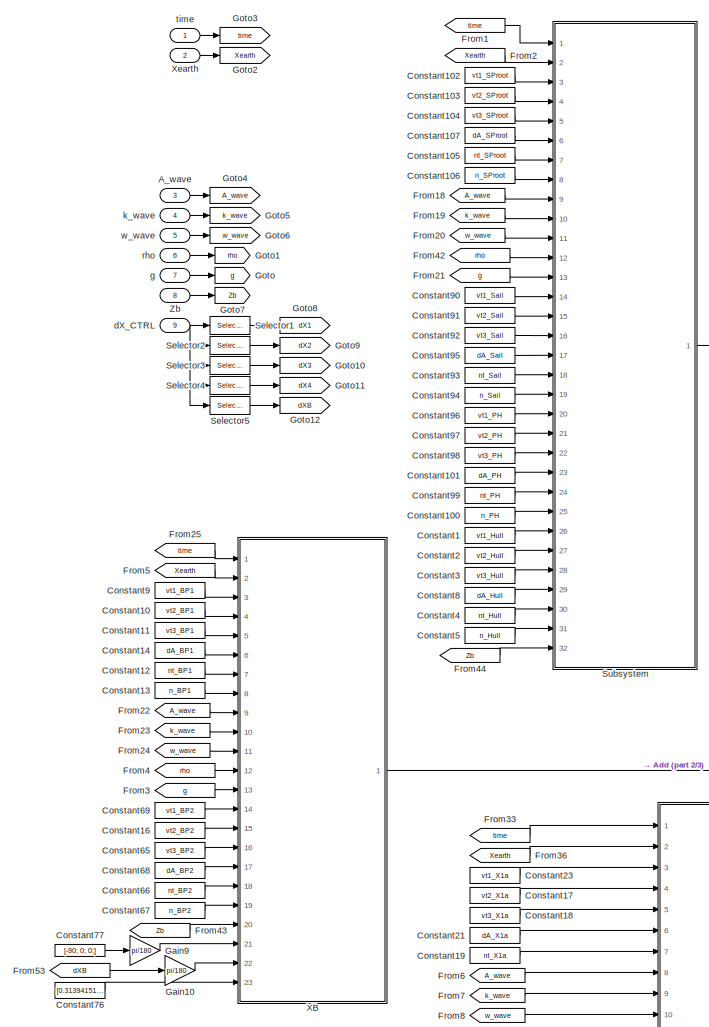
[diagram: HDM/HDM B3/Wave, Virtual Mass and Hydrostatic/Wave Particle Motions/Hydrostatic Forces and Moments - part 1/3, top left region]
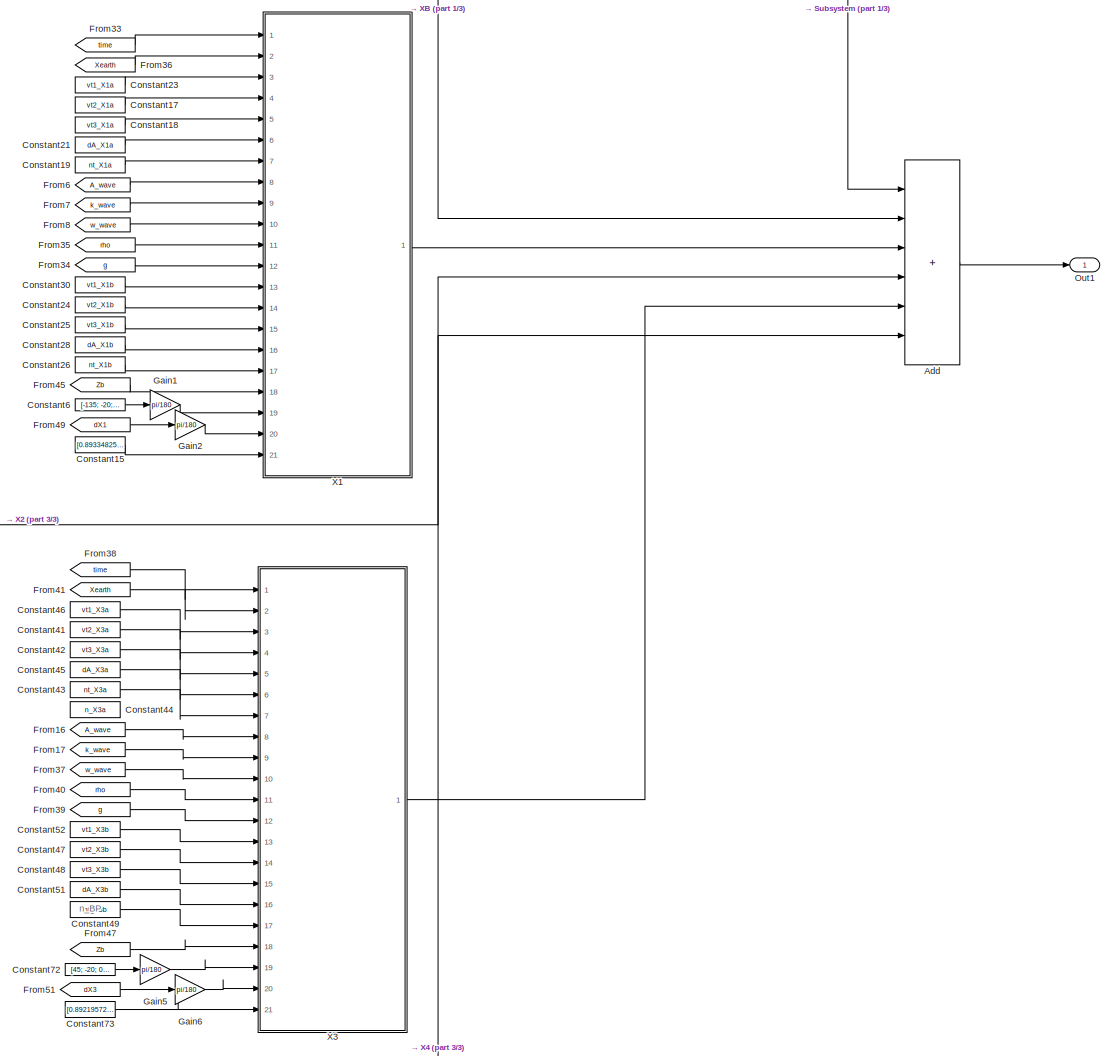
[diagram: HDM/HDM B3/Wave, Virtual Mass and Hydrostatic/Wave Particle Motions/Hydrostatic Forces and Moments - part 2/3, full width, middle band]
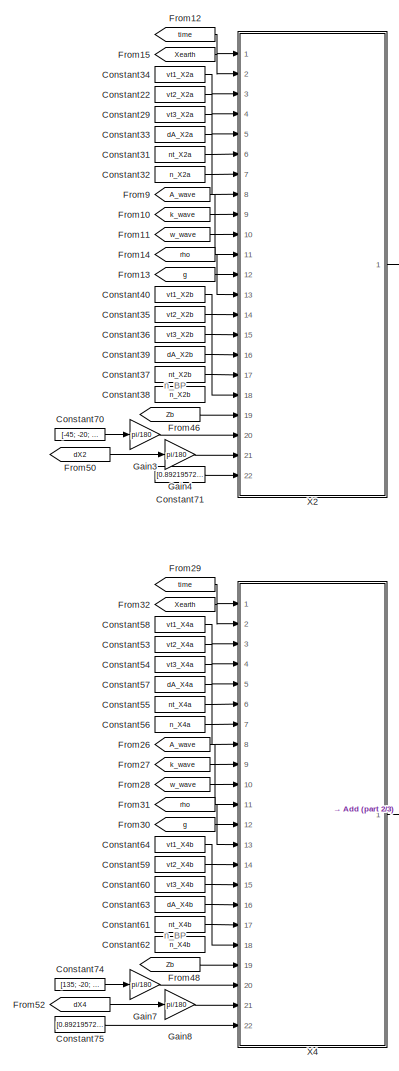
[diagram: HDM/HDM B3/Wave, Virtual Mass and Hydrostatic/Wave Particle Motions/Hydrostatic Forces and Moments - part 3/3, bottom left region]
BLOCK [SubSystem] HDM/HDM B3/Wave, Virtual Mass and Hydrostatic/Wave Particle Motions/Hydrostatic Forces and Moments
  Ports = [9, 1]
  RequestExecContextInheritance = off
BLOCK [Inport] HDM/HDM B3/Wave, Virtual Mass and Hydrostatic/Wave Particle Motions/Hydrostatic Forces and Moments/A_wave
  NameLocation = top
  Port = 3
BLOCK [Sum] HDM/HDM B3/Wave, Virtual Mass and Hydrostatic/Wave Particle Motions/Hydrostatic Forces and Moments/Add
  IconShape = rectangular
  Inputs = 6
  Ports = [6, 1]
BLOCK [Constant] HDM/HDM B3/Wave, Virtual Mass and Hydrostatic/Wave Particle Motions/Hydrostatic Forces and Moments/Constant1
  Value = vt1_Hull
BLOCK [Constant] HDM/HDM B3/Wave, Virtual Mass and Hydrostatic/Wave Particle Motions/Hydrostatic Forces and Moments/Constant10
  Value = vt2_BP1
BLOCK [Constant] HDM/HDM B3/Wave, Virtual Mass and Hydrostatic/Wave Particle Motions/Hydrostatic Forces and Moments/Constant100
  Value = n_PH
BLOCK [Constant] HDM/HDM B3/Wave, Virtual Mass and Hydrostatic/Wave Particle Motions/Hydrostatic Forces and Moments/Constant101
  Value = dA_PH
BLOCK [Constant] HDM/HDM B3/Wave, Virtual Mass and Hydrostatic/Wave Particle Motions/Hydrostatic Forces and Moments/Constant102
  Value = vt1_SProot
BLOCK [Constant] HDM/HDM B3/Wave, Virtual Mass and Hydrostatic/Wave Particle Motions/Hydrostatic Forces and Moments/Constant103
  Value = vt2_SProot
BLOCK [Constant] HDM/HDM B3/Wave, Virtual Mass and Hydrostatic/Wave Particle Motions/Hydrostatic Forces and Moments/Constant104
  Value = vt3_SProot
BLOCK [Constant] HDM/HDM B3/Wave, Virtual Mass and Hydrostatic/Wave Particle Motions/Hydrostatic Forces and Moments/Constant105
  Value = nt_SProot
BLOCK [Constant] HDM/HDM B3/Wave, Virtual Mass and Hydrostatic/Wave Particle Motions/Hydrostatic Forces and Moments/Constant106
  Value = n_SProot
BLOCK [Constant] HDM/HDM B3/Wave, Virtual Mass and Hydrostatic/Wave Particle Motions/Hydrostatic Forces and Moments/Constant107
  Value = dA_SProot
BLOCK [Constant] HDM/HDM B3/Wave, Virtual Mass and Hydrostatic/Wave Particle Motions/Hydrostatic Forces and Moments/Constant11
  Value = vt3_BP1
BLOCK [Constant] HDM/HDM B3/Wave, Virtual Mass and Hydrostatic/Wave Particle Motions/Hydrostatic Forces and Moments/Constant12
  Value = nt_BP1
BLOCK [Constant] HDM/HDM B3/Wave, Virtual Mass and Hydrostatic/Wave Particle Motions/Hydrostatic Forces and Moments/Constant13
  Value = n_BP1
BLOCK [Constant] HDM/HDM B3/Wave, Virtual Mass and Hydrostatic/Wave Particle Motions/Hydrostatic Forces and Moments/Constant14
  Value = dA_BP1
BLOCK [Constant] HDM/HDM B3/Wave, Virtual Mass and Hydrostatic/Wave Particle Motions/Hydrostatic Forces and Moments/Constant15
  Value = [0.893348257;\n0.043600552;\n-0.043394945;]
BLOCK [Constant] HDM/HDM B3/Wave, Virtual Mass and Hydrostatic/Wave Particle Motions/Hydrostatic Forces and Moments/Constant16
  Value = vt2_BP2
BLOCK [Constant] HDM/HDM B3/Wave, Virtual Mass and Hydrostatic/Wave Particle Motions/Hydrostatic Forces and Moments/Constant17
  Value = vt2_X1a
BLOCK [Constant] HDM/HDM B3/Wave, Virtual Mass and Hydrostatic/Wave Particle Motions/Hydrostatic Forces and Moments/Constant18
  Value = vt3_X1a
BLOCK [Constant] HDM/HDM B3/Wave, Virtual Mass and Hydrostatic/Wave Particle Motions/Hydrostatic Forces and Moments/Constant19
  Value = nt_X1a
BLOCK [Constant] HDM/HDM B3/Wave, Virtual Mass and Hydrostatic/Wave Particle Motions/Hydrostatic Forces and Moments/Constant2
  Value = vt2_Hull
BLOCK [Constant] HDM/HDM B3/Wave, Virtual Mass and Hydrostatic/Wave Particle Motions/Hydrostatic Forces and Moments/Constant21
  Value = dA_X1a
BLOCK [Constant] HDM/HDM B3/Wave, Virtual Mass and Hydrostatic/Wave Particle Motions/Hydrostatic Forces and Moments/Constant22
  Value = vt2_X2a
BLOCK [Constant] HDM/HDM B3/Wave, Virtual Mass and Hydrostatic/Wave Particle Motions/Hydrostatic Forces and Moments/Constant23
  Value = vt1_X1a
BLOCK [Constant] HDM/HDM B3/Wave, Virtual Mass and Hydrostatic/Wave Particle Motions/Hydrostatic Forces and Moments/Constant24
  Value = vt2_X1b
BLOCK [Constant] HDM/HDM B3/Wave, Virtual Mass and Hydrostatic/Wave Particle Motions/Hydrostatic Forces and Moments/Constant25
  Value = vt3_X1b
BLOCK [Constant] HDM/HDM B3/Wave, Virtual Mass and Hydrostatic/Wave Particle Motions/Hydrostatic Forces and Moments/Constant26
  Value = nt_X1b
BLOCK [Constant] HDM/HDM B3/Wave, Virtual Mass and Hydrostatic/Wave Particle Motions/Hydrostatic Forces and Moments/Constant28
  Value = dA_X1b
BLOCK [Constant] HDM/HDM B3/Wave, Virtual Mass and Hydrostatic/Wave Particle Motions/Hydrostatic Forces and Moments/Constant29
  Value = vt3_X2a
BLOCK [Constant] HDM/HDM B3/Wave, Virtual Mass and Hydrostatic/Wave Particle Motions/Hydrostatic Forces and Moments/Constant3
  Value = vt3_Hull
BLOCK [Constant] HDM/HDM B3/Wave, Virtual Mass and Hydrostatic/Wave Particle Motions/Hydrostatic Forces and Moments/Constant30
  Value = vt1_X1b
BLOCK [Constant] HDM/HDM B3/Wave, Virtual Mass and Hydrostatic/Wave Particle Motions/Hydrostatic Forces and Moments/Constant31
  Value = nt_X2a
BLOCK [Constant] HDM/HDM B3/Wave, Virtual Mass and Hydrostatic/Wave Particle Motions/Hydrostatic Forces and Moments/Constant32
  Value = n_X2a
BLOCK [Constant] HDM/HDM B3/Wave, Virtual Mass and Hydrostatic/Wave Particle Motions/Hydrostatic Forces and Moments/Constant33
  Value = dA_X2a
BLOCK [Constant] HDM/HDM B3/Wave, Virtual Mass and Hydrostatic/Wave Particle Motions/Hydrostatic Forces and Moments/Constant34
  Value = vt1_X2a
BLOCK [Constant] HDM/HDM B3/Wave, Virtual Mass and Hydrostatic/Wave Particle Motions/Hydrostatic Forces and Moments/Constant35
  Value = vt2_X2b
BLOCK [Constant] HDM/HDM B3/Wave, Virtual Mass and Hydrostatic/Wave Particle Motions/Hydrostatic Forces and Moments/Constant36
  Value = vt3_X2b
BLOCK [Constant] HDM/HDM B3/Wave, Virtual Mass and Hydrostatic/Wave Particle Motions/Hydrostatic Forces and Moments/Constant37
  Value = nt_X2b
BLOCK [Constant] HDM/HDM B3/Wave, Virtual Mass and Hydrostatic/Wave Particle Motions/Hydrostatic Forces and Moments/Constant38
  Value = n_X2b
BLOCK [Constant] HDM/HDM B3/Wave, Virtual Mass and Hydrostatic/Wave Particle Motions/Hydrostatic Forces and Moments/Constant39
  Value = dA_X2b
BLOCK [Constant] HDM/HDM B3/Wave, Virtual Mass and Hydrostatic/Wave Particle Motions/Hydrostatic Forces and Moments/Constant4
  Value = nt_Hull
BLOCK [Constant] HDM/HDM B3/Wave, Virtual Mass and Hydrostatic/Wave Particle Motions/Hydrostatic Forces and Moments/Constant40
  Value = vt1_X2b
BLOCK [Constant] HDM/HDM B3/Wave, Virtual Mass and Hydrostatic/Wave Particle Motions/Hydrostatic Forces and Moments/Constant41
  Value = vt2_X3a
BLOCK [Constant] HDM/HDM B3/Wave, Virtual Mass and Hydrostatic/Wave Particle Motions/Hydrostatic Forces and Moments/Constant42
  Value = vt3_X3a
BLOCK [Constant] HDM/HDM B3/Wave, Virtual Mass and Hydrostatic/Wave Particle Motions/Hydrostatic Forces and Moments/Constant43
  Value = nt_X3a
BLOCK [Constant] HDM/HDM B3/Wave, Virtual Mass and Hydrostatic/Wave Particle Motions/Hydrostatic Forces and Moments/Constant44
  Value = n_X3a
BLOCK [Constant] HDM/HDM B3/Wave, Virtual Mass and Hydrostatic/Wave Particle Motions/Hydrostatic Forces and Moments/Constant45
  Value = dA_X3a
BLOCK [Constant] HDM/HDM B3/Wave, Virtual Mass and Hydrostatic/Wave Particle Motions/Hydrostatic Forces and Moments/Constant46
  Value = vt1_X3a
BLOCK [Constant] HDM/HDM B3/Wave, Virtual Mass and Hydrostatic/Wave Particle Motions/Hydrostatic Forces and Moments/Constant47
  Value = vt2_X3b
BLOCK [Constant] HDM/HDM B3/Wave, Virtual Mass and Hydrostatic/Wave Particle Motions/Hydrostatic Forces and Moments/Constant48
  Value = vt3_X3b
BLOCK [Constant] HDM/HDM B3/Wave, Virtual Mass and Hydrostatic/Wave Particle Motions/Hydrostatic Forces and Moments/Constant49
  Value = nt_X3b
BLOCK [Constant] HDM/HDM B3/Wave, Virtual Mass and Hydrostatic/Wave Particle Motions/Hydrostatic Forces and Moments/Constant5
  Value = n_Hull
BLOCK [Constant] HDM/HDM B3/Wave, Virtual Mass and Hydrostatic/Wave Particle Motions/Hydrostatic Forces and Moments/Constant51
  Value = dA_X3b
BLOCK [Constant] HDM/HDM B3/Wave, Virtual Mass and Hydrostatic/Wave Particle Motions/Hydrostatic Forces and Moments/Constant52
  Value = vt1_X3b
BLOCK [Constant] HDM/HDM B3/Wave, Virtual Mass and Hydrostatic/Wave Particle Motions/Hydrostatic Forces and Moments/Constant53
  Value = vt2_X4a
BLOCK [Constant] HDM/HDM B3/Wave, Virtual Mass and Hydrostatic/Wave Particle Motions/Hydrostatic Forces and Moments/Constant54
  Value = vt3_X4a
BLOCK [Constant] HDM/HDM B3/Wave, Virtual Mass and Hydrostatic/Wave Particle Motions/Hydrostatic Forces and Moments/Constant55
  Value = nt_X4a
BLOCK [Constant] HDM/HDM B3/Wave, Virtual Mass and Hydrostatic/Wave Particle Motions/Hydrostatic Forces and Moments/Constant56
  Value = n_X4a
BLOCK [Constant] HDM/HDM B3/Wave, Virtual Mass and Hydrostatic/Wave Particle Motions/Hydrostatic Forces and Moments/Constant57
  Value = dA_X4a
BLOCK [Constant] HDM/HDM B3/Wave, Virtual Mass and Hydrostatic/Wave Particle Motions/Hydrostatic Forces and Moments/Constant58
  Value = vt1_X4a
BLOCK [Constant] HDM/HDM B3/Wave, Virtual Mass and Hydrostatic/Wave Particle Motions/Hydrostatic Forces and Moments/Constant59
  Value = vt2_X4b
BLOCK [Constant] HDM/HDM B3/Wave, Virtual Mass and Hydrostatic/Wave Particle Motions/Hydrostatic Forces and Moments/Constant6
  Value = [-135; -20; 0;]
BLOCK [Constant] HDM/HDM B3/Wave, Virtual Mass and Hydrostatic/Wave Particle Motions/Hydrostatic Forces and Moments/Constant60
  Value = vt3_X4b
BLOCK [Constant] HDM/HDM B3/Wave, Virtual Mass and Hydrostatic/Wave Particle Motions/Hydrostatic Forces and Moments/Constant61
  Value = nt_X4b
BLOCK [Constant] HDM/HDM B3/Wave, Virtual Mass and Hydrostatic/Wave Particle Motions/Hydrostatic Forces and Moments/Constant62
  Value = n_X4b
BLOCK [Constant] HDM/HDM B3/Wave, Virtual Mass and Hydrostatic/Wave Particle Motions/Hydrostatic Forces and Moments/Constant63
  Value = dA_X4b
BLOCK [Constant] HDM/HDM B3/Wave, Virtual Mass and Hydrostatic/Wave Particle Motions/Hydrostatic Forces and Moments/Constant64
  Value = vt1_X4b
BLOCK [Constant] HDM/HDM B3/Wave, Virtual Mass and Hydrostatic/Wave Particle Motions/Hydrostatic Forces and Moments/Constant65
  Value = vt3_BP2
BLOCK [Constant] HDM/HDM B3/Wave, Virtual Mass and Hydrostatic/Wave Particle Motions/Hydrostatic Forces and Moments/Constant66
  Value = nt_BP2
BLOCK [Constant] HDM/HDM B3/Wave, Virtual Mass and Hydrostatic/Wave Particle Motions/Hydrostatic Forces and Moments/Constant67
  Value = n_BP2
BLOCK [Constant] HDM/HDM B3/Wave, Virtual Mass and Hydrostatic/Wave Particle Motions/Hydrostatic Forces and Moments/Constant68
  Value = dA_BP2
BLOCK [Constant] HDM/HDM B3/Wave, Virtual Mass and Hydrostatic/Wave Particle Motions/Hydrostatic Forces and Moments/Constant69
  Value = vt1_BP2
BLOCK [Constant] HDM/HDM B3/Wave, Virtual Mass and Hydrostatic/Wave Particle Motions/Hydrostatic Forces and Moments/Constant70
  Value = [-45; -20; 0;]
BLOCK [Constant] HDM/HDM B3/Wave, Virtual Mass and Hydrostatic/Wave Particle Motions/Hydrostatic Forces and Moments/Constant71
  Value = [0.892195724;\n0.043607982;\n0.043868661;]
BLOCK [Constant] HDM/HDM B3/Wave, Virtual Mass and Hydrostatic/Wave Particle Motions/Hydrostatic Forces and Moments/Constant72
  Value = [45; -20; 0;]
BLOCK [Constant] HDM/HDM B3/Wave, Virtual Mass and Hydrostatic/Wave Particle Motions/Hydrostatic Forces and Moments/Constant73
  Value = [0.892195724;\n-0.043607982;\n0.043868661;]
BLOCK [Constant] HDM/HDM B3/Wave, Virtual Mass and Hydrostatic/Wave Particle Motions/Hydrostatic Forces and Moments/Constant74
  Value = [135; -20; 0;]
BLOCK [Constant] HDM/HDM B3/Wave, Virtual Mass and Hydrostatic/Wave Particle Motions/Hydrostatic Forces and Moments/Constant75
  Value = [0.892195724;\n-0.043607982;\n-0.043868661;]
BLOCK [Constant] HDM/HDM B3/Wave, Virtual Mass and Hydrostatic/Wave Particle Motions/Hydrostatic Forces and Moments/Constant76
  Value = [0.313941517;\n0;\n0.138536015;]
BLOCK [Constant] HDM/HDM B3/Wave, Virtual Mass and Hydrostatic/Wave Particle Motions/Hydrostatic Forces and Moments/Constant77
  Value = [-90; 0; 0;]
BLOCK [Constant] HDM/HDM B3/Wave, Virtual Mass and Hydrostatic/Wave Particle Motions/Hydrostatic Forces and Moments/Constant8
  Value = dA_Hull
BLOCK [Constant] HDM/HDM B3/Wave, Virtual Mass and Hydrostatic/Wave Particle Motions/Hydrostatic Forces and Moments/Constant9
  Value = vt1_BP1
BLOCK [Constant] HDM/HDM B3/Wave, Virtual Mass and Hydrostatic/Wave Particle Motions/Hydrostatic Forces and Moments/Constant90
  Value = vt1_Sail
BLOCK [Constant] HDM/HDM B3/Wave, Virtual Mass and Hydrostatic/Wave Particle Motions/Hydrostatic Forces and Moments/Constant91
  Value = vt2_Sail
BLOCK [Constant] HDM/HDM B3/Wave, Virtual Mass and Hydrostatic/Wave Particle Motions/Hydrostatic Forces and Moments/Constant92
  Value = vt3_Sail
BLOCK [Constant] HDM/HDM B3/Wave, Virtual Mass and Hydrostatic/Wave Particle Motions/Hydrostatic Forces and Moments/Constant93
  Value = nt_Sail
BLOCK [Constant] HDM/HDM B3/Wave, Virtual Mass and Hydrostatic/Wave Particle Motions/Hydrostatic Forces and Moments/Constant94
  Value = n_Sail
BLOCK [Constant] HDM/HDM B3/Wave, Virtual Mass and Hydrostatic/Wave Particle Motions/Hydrostatic Forces and Moments/Constant95
  Value = dA_Sail
BLOCK [Constant] HDM/HDM B3/Wave, Virtual Mass and Hydrostatic/Wave Particle Motions/Hydrostatic Forces and Moments/Constant96
  Value = vt1_PH
BLOCK [Constant] HDM/HDM B3/Wave, Virtual Mass and Hydrostatic/Wave Particle Motions/Hydrostatic Forces and Moments/Constant97
  Value = vt2_PH
BLOCK [Constant] HDM/HDM B3/Wave, Virtual Mass and Hydrostatic/Wave Particle Motions/Hydrostatic Forces and Moments/Constant98
  Value = vt3_PH
BLOCK [Constant] HDM/HDM B3/Wave, Virtual Mass and Hydrostatic/Wave Particle Motions/Hydrostatic Forces and Moments/Constant99
  Value = nt_PH
BLOCK [From] HDM/HDM B3/Wave, Virtual Mass and Hydrostatic/Wave Particle Motions/Hydrostatic Forces and Moments/From1
  GotoTag = time
BLOCK [From] HDM/HDM B3/Wave, Virtual Mass and Hydrostatic/Wave Particle Motions/Hydrostatic Forces and Moments/From10
  GotoTag = k_wave
BLOCK [From] HDM/HDM B3/Wave, Virtual Mass and Hydrostatic/Wave Particle Motions/Hydrostatic Forces and Moments/From11
  GotoTag = w_wave
BLOCK [From] HDM/HDM B3/Wave, Virtual Mass and Hydrostatic/Wave Particle Motions/Hydrostatic Forces and Moments/From12
  GotoTag = time
BLOCK [From] HDM/HDM B3/Wave, Virtual Mass and Hydrostatic/Wave Particle Motions/Hydrostatic Forces and Moments/From13
  GotoTag = g
BLOCK [From] HDM/HDM B3/Wave, Virtual Mass and Hydrostatic/Wave Particle Motions/Hydrostatic Forces and Moments/From14
  GotoTag = rho
BLOCK [From] HDM/HDM B3/Wave, Virtual Mass and Hydrostatic/Wave Particle Motions/Hydrostatic Forces and Moments/From15
  GotoTag = Xearth
BLOCK [From] HDM/HDM B3/Wave, Virtual Mass and Hydrostatic/Wave Particle Motions/Hydrostatic Forces and Moments/From16
  GotoTag = A_wave
BLOCK [From] HDM/HDM B3/Wave, Virtual Mass and Hydrostatic/Wave Particle Motions/Hydrostatic Forces and Moments/From17
  GotoTag = k_wave
BLOCK [From] HDM/HDM B3/Wave, Virtual Mass and Hydrostatic/Wave Particle Motions/Hydrostatic Forces and Moments/From18
  GotoTag = A_wave
BLOCK [From] HDM/HDM B3/Wave, Virtual Mass and Hydrostatic/Wave Particle Motions/Hydrostatic Forces and Moments/From19
  GotoTag = k_wave
BLOCK [From] HDM/HDM B3/Wave, Virtual Mass and Hydrostatic/Wave Particle Motions/Hydrostatic Forces and Moments/From2
  GotoTag = Xearth
BLOCK [From] HDM/HDM B3/Wave, Virtual Mass and Hydrostatic/Wave Particle Motions/Hydrostatic Forces and Moments/From20
  GotoTag = w_wave
BLOCK [From] HDM/HDM B3/Wave, Virtual Mass and Hydrostatic/Wave Particle Motions/Hydrostatic Forces and Moments/From21
  GotoTag = g
BLOCK [From] HDM/HDM B3/Wave, Virtual Mass and Hydrostatic/Wave Particle Motions/Hydrostatic Forces and Moments/From22
  GotoTag = A_wave
BLOCK [From] HDM/HDM B3/Wave, Virtual Mass and Hydrostatic/Wave Particle Motions/Hydrostatic Forces and Moments/From23
  GotoTag = k_wave
BLOCK [From] HDM/HDM B3/Wave, Virtual Mass and Hydrostatic/Wave Particle Motions/Hydrostatic Forces and Moments/From24
  GotoTag = w_wave
  NameLocation = top
BLOCK [From] HDM/HDM B3/Wave, Virtual Mass and Hydrostatic/Wave Particle Motions/Hydrostatic Forces and Moments/From25
  GotoTag = time
BLOCK [From] HDM/HDM B3/Wave, Virtual Mass and Hydrostatic/Wave Particle Motions/Hydrostatic Forces and Moments/From26
  GotoTag = A_wave
BLOCK [From] HDM/HDM B3/Wave, Virtual Mass and Hydrostatic/Wave Particle Motions/Hydrostatic Forces and Moments/From27
  GotoTag = k_wave
BLOCK [From] HDM/HDM B3/Wave, Virtual Mass and Hydrostatic/Wave Particle Motions/Hydrostatic Forces and Moments/From28
  GotoTag = w_wave
BLOCK [From] HDM/HDM B3/Wave, Virtual Mass and Hydrostatic/Wave Particle Motions/Hydrostatic Forces and Moments/From29
  GotoTag = time
BLOCK [From] HDM/HDM B3/Wave, Virtual Mass and Hydrostatic/Wave Particle Motions/Hydrostatic Forces and Moments/From3
  GotoTag = g
BLOCK [From] HDM/HDM B3/Wave, Virtual Mass and Hydrostatic/Wave Particle Motions/Hydrostatic Forces and Moments/From30
  GotoTag = g
BLOCK [From] HDM/HDM B3/Wave, Virtual Mass and Hydrostatic/Wave Particle Motions/Hydrostatic Forces and Moments/From31
  GotoTag = rho
BLOCK [From] HDM/HDM B3/Wave, Virtual Mass and Hydrostatic/Wave Particle Motions/Hydrostatic Forces and Moments/From32
  GotoTag = Xearth
BLOCK [From] HDM/HDM B3/Wave, Virtual Mass and Hydrostatic/Wave Particle Motions/Hydrostatic Forces and Moments/From33
  GotoTag = time
BLOCK [From] HDM/HDM B3/Wave, Virtual Mass and Hydrostatic/Wave Particle Motions/Hydrostatic Forces and Moments/From34
  GotoTag = g
BLOCK [From] HDM/HDM B3/Wave, Virtual Mass and Hydrostatic/Wave Particle Motions/Hydrostatic Forces and Moments/From35
  GotoTag = rho
BLOCK [From] HDM/HDM B3/Wave, Virtual Mass and Hydrostatic/Wave Particle Motions/Hydrostatic Forces and Moments/From36
  GotoTag = Xearth
BLOCK [From] HDM/HDM B3/Wave, Virtual Mass and Hydrostatic/Wave Particle Motions/Hydrostatic Forces and Moments/From37
  GotoTag = w_wave
BLOCK [From] HDM/HDM B3/Wave, Virtual Mass and Hydrostatic/Wave Particle Motions/Hydrostatic Forces and Moments/From38
  GotoTag = time
BLOCK [From] HDM/HDM B3/Wave, Virtual Mass and Hydrostatic/Wave Particle Motions/Hydrostatic Forces and Moments/From39
  GotoTag = g
BLOCK [From] HDM/HDM B3/Wave, Virtual Mass and Hydrostatic/Wave Particle Motions/Hydrostatic Forces and Moments/From4
  GotoTag = rho
BLOCK [From] HDM/HDM B3/Wave, Virtual Mass and Hydrostatic/Wave Particle Motions/Hydrostatic Forces and Moments/From40
  GotoTag = rho
BLOCK [From] HDM/HDM B3/Wave, Virtual Mass and Hydrostatic/Wave Particle Motions/Hydrostatic Forces and Moments/From41
  GotoTag = Xearth
BLOCK [From] HDM/HDM B3/Wave, Virtual Mass and Hydrostatic/Wave Particle Motions/Hydrostatic Forces and Moments/From42
  GotoTag = rho
BLOCK [From] HDM/HDM B3/Wave, Virtual Mass and Hydrostatic/Wave Particle Motions/Hydrostatic Forces and Moments/From43
  GotoTag = Zb
BLOCK [From] HDM/HDM B3/Wave, Virtual Mass and Hydrostatic/Wave Particle Motions/Hydrostatic Forces and Moments/From44
  GotoTag = Zb
BLOCK [From] HDM/HDM B3/Wave, Virtual Mass and Hydrostatic/Wave Particle Motions/Hydrostatic Forces and Moments/From45
  GotoTag = Zb
BLOCK [From] HDM/HDM B3/Wave, Virtual Mass and Hydrostatic/Wave Particle Motions/Hydrostatic Forces and Moments/From46
  GotoTag = Zb
BLOCK [From] HDM/HDM B3/Wave, Virtual Mass and Hydrostatic/Wave Particle Motions/Hydrostatic Forces and Moments/From47
  GotoTag = Zb
BLOCK [From] HDM/HDM B3/Wave, Virtual Mass and Hydrostatic/Wave Particle Motions/Hydrostatic Forces and Moments/From48
  GotoTag = Zb
BLOCK [From] HDM/HDM B3/Wave, Virtual Mass and Hydrostatic/Wave Particle Motions/Hydrostatic Forces and Moments/From49
  GotoTag = dX1
BLOCK [From] HDM/HDM B3/Wave, Virtual Mass and Hydrostatic/Wave Particle Motions/Hydrostatic Forces and Moments/From5
  GotoTag = Xearth
BLOCK [From] HDM/HDM B3/Wave, Virtual Mass and Hydrostatic/Wave Particle Motions/Hydrostatic Forces and Moments/From50
  GotoTag = dX2
BLOCK [From] HDM/HDM B3/Wave, Virtual Mass and Hydrostatic/Wave Particle Motions/Hydrostatic Forces and Moments/From51
  GotoTag = dX3
BLOCK [From] HDM/HDM B3/Wave, Virtual Mass and Hydrostatic/Wave Particle Motions/Hydrostatic Forces and Moments/From52
  GotoTag = dX4
BLOCK [From] HDM/HDM B3/Wave, Virtual Mass and Hydrostatic/Wave Particle Motions/Hydrostatic Forces and Moments/From53
  GotoTag = dXB
BLOCK [From] HDM/HDM B3/Wave, Virtual Mass and Hydrostatic/Wave Particle Motions/Hydrostatic Forces and Moments/From6
  GotoTag = A_wave
BLOCK [From] HDM/HDM B3/Wave, Virtual Mass and Hydrostatic/Wave Particle Motions/Hydrostatic Forces and Moments/From7
  GotoTag = k_wave
BLOCK [From] HDM/HDM B3/Wave, Virtual Mass and Hydrostatic/Wave Particle Motions/Hydrostatic Forces and Moments/From8
  GotoTag = w_wave
BLOCK [From] HDM/HDM B3/Wave, Virtual Mass and Hydrostatic/Wave Particle Motions/Hydrostatic Forces and Moments/From9
  GotoTag = A_wave
BLOCK [Gain] HDM/HDM B3/Wave, Virtual Mass and Hydrostatic/Wave Particle Motions/Hydrostatic Forces and Moments/Gain1
  Gain = pi/180
BLOCK [Gain] HDM/HDM B3/Wave, Virtual Mass and Hydrostatic/Wave Particle Motions/Hydrostatic Forces and Moments/Gain10
  Gain = pi/180
BLOCK [Gain] HDM/HDM B3/Wave, Virtual Mass and Hydrostatic/Wave Particle Motions/Hydrostatic Forces and Moments/Gain2
  Gain = pi/180
BLOCK [Gain] HDM/HDM B3/Wave, Virtual Mass and Hydrostatic/Wave Particle Motions/Hydrostatic Forces and Moments/Gain3
  Gain = pi/180
BLOCK [Gain] HDM/HDM B3/Wave, Virtual Mass and Hydrostatic/Wave Particle Motions/Hydrostatic Forces and Moments/Gain4
  Gain = pi/180
BLOCK [Gain] HDM/HDM B3/Wave, Virtual Mass and Hydrostatic/Wave Particle Motions/Hydrostatic Forces and Moments/Gain5
  Gain = pi/180
BLOCK [Gain] HDM/HDM B3/Wave, Virtual Mass and Hydrostatic/Wave Particle Motions/Hydrostatic Forces and Moments/Gain6
  Gain = pi/180
BLOCK [Gain] HDM/HDM B3/Wave, Virtual Mass and Hydrostatic/Wave Particle Motions/Hydrostatic Forces and Moments/Gain7
  Gain = pi/180
BLOCK [Gain] HDM/HDM B3/Wave, Virtual Mass and Hydrostatic/Wave Particle Motions/Hydrostatic Forces and Moments/Gain8
  Gain = pi/180
BLOCK [Gain] HDM/HDM B3/Wave, Virtual Mass and Hydrostatic/Wave Particle Motions/Hydrostatic Forces and Moments/Gain9
  Gain = pi/180
BLOCK [Goto] HDM/HDM B3/Wave, Virtual Mass and Hydrostatic/Wave Particle Motions/Hydrostatic Forces and Moments/Goto
  GotoTag = g
BLOCK [Goto] HDM/HDM B3/Wave, Virtual Mass and Hydrostatic/Wave Particle Motions/Hydrostatic Forces and Moments/Goto1
  GotoTag = rho
BLOCK [Goto] HDM/HDM B3/Wave, Virtual Mass and Hydrostatic/Wave Particle Motions/Hydrostatic Forces and Moments/Goto10
  GotoTag = dX3
BLOCK [Goto] HDM/HDM B3/Wave, Virtual Mass and Hydrostatic/Wave Particle Motions/Hydrostatic Forces and Moments/Goto11
  GotoTag = dX4
BLOCK [Goto] HDM/HDM B3/Wave, Virtual Mass and Hydrostatic/Wave Particle Motions/Hydrostatic Forces and Moments/Goto12
  GotoTag = dXB
BLOCK [Goto] HDM/HDM B3/Wave, Virtual Mass and Hydrostatic/Wave Particle Motions/Hydrostatic Forces and Moments/Goto2
  GotoTag = Xearth
BLOCK [Goto] HDM/HDM B3/Wave, Virtual Mass and Hydrostatic/Wave Particle Motions/Hydrostatic Forces and Moments/Goto3
  GotoTag = time
BLOCK [Goto] HDM/HDM B3/Wave, Virtual Mass and Hydrostatic/Wave Particle Motions/Hydrostatic Forces and Moments/Goto4
  GotoTag = A_wave
BLOCK [Goto] HDM/HDM B3/Wave, Virtual Mass and Hydrostatic/Wave Particle Motions/Hydrostatic Forces and Moments/Goto5
  GotoTag = k_wave
BLOCK [Goto] HDM/HDM B3/Wave, Virtual Mass and Hydrostatic/Wave Particle Motions/Hydrostatic Forces and Moments/Goto6
  GotoTag = w_wave
BLOCK [Goto] HDM/HDM B3/Wave, Virtual Mass and Hydrostatic/Wave Particle Motions/Hydrostatic Forces and Moments/Goto7
  GotoTag = Zb
BLOCK [Goto] HDM/HDM B3/Wave, Virtual Mass and Hydrostatic/Wave Particle Motions/Hydrostatic Forces and Moments/Goto8
  GotoTag = dX1
BLOCK [Goto] HDM/HDM B3/Wave, Virtual Mass and Hydrostatic/Wave Particle Motions/Hydrostatic Forces and Moments/Goto9
  GotoTag = dX2
BLOCK [Outport] HDM/HDM B3/Wave, Virtual Mass and Hydrostatic/Wave Particle Motions/Hydrostatic Forces and Moments/Out1
  NameLocation = top
BLOCK [Selector] HDM/HDM B3/Wave, Virtual Mass and Hydrostatic/Wave Particle Motions/Hydrostatic Forces and Moments/Selector1
  IndexOptions = Index vector (dialog)
  Indices = 1
  InputPortWidth = 5
  OutputSizes = 1
  Ports = [1, 1]
BLOCK [Selector] HDM/HDM B3/Wave, Virtual Mass and Hydrostatic/Wave Particle Motions/Hydrostatic Forces and Moments/Selector2
  IndexOptions = Index vector (dialog)
  Indices = 2
  InputPortWidth = 5
  OutputSizes = 1
  Ports = [1, 1]
BLOCK [Selector] HDM/HDM B3/Wave, Virtual Mass and Hydrostatic/Wave Particle Motions/Hydrostatic Forces and Moments/Selector3
  IndexOptions = Index vector (dialog)
  Indices = 3
  InputPortWidth = 5
  OutputSizes = 1
  Ports = [1, 1]
BLOCK [Selector] HDM/HDM B3/Wave, Virtual Mass and Hydrostatic/Wave Particle Motions/Hydrostatic Forces and Moments/Selector4
  IndexOptions = Index vector (dialog)
  Indices = 4
  InputPortWidth = 5
  OutputSizes = 1
  Ports = [1, 1]
BLOCK [Selector] HDM/HDM B3/Wave, Virtual Mass and Hydrostatic/Wave Particle Motions/Hydrostatic Forces and Moments/Selector5
  IndexOptions = Index vector (dialog)
  Indices = 5
  InputPortWidth = 5
  OutputSizes = 1
  Ports = [1, 1]
BLOCK [SubSystem] HDM/HDM B3/Wave, Virtual Mass and Hydrostatic/Wave Particle Motions/Hydrostatic Forces and Moments/Subsystem
  Ports = [32, 1]
  RequestExecContextInheritance = off
BLOCK [Inport] HDM/HDM B3/Wave, Virtual Mass and Hydrostatic/Wave Particle Motions/Hydrostatic Forces and Moments/Subsystem/A_wave
  NameLocation = top
  Port = 9
BLOCK [Sum] HDM/HDM B3/Wave, Virtual Mass and Hydrostatic/Wave Particle Motions/Hydrostatic Forces and Moments/Subsystem/Add1
  IconShape = rectangular
  Inputs = 4
  Ports = [4, 1]
BLOCK [SubSystem] HDM/HDM B3/Wave, Virtual Mass and Hydrostatic/Wave Particle Motions/Hydrostatic Forces and Moments/Subsystem/MATLAB Function1
  ErrorFcn = Stateflow.Translate.translate
  PermitHierarchicalResolution = ExplicitOnly
  Ports = [14, 6]
  RequestExecContextInheritance = off
  SFBlockType = MATLAB Function
  TreatAsAtomicUnit = on
BLOCK [Demux] HDM/HDM B3/Wave, Virtual Mass and Hydrostatic/Wave Particle Motions/Hydrostatic Forces and Moments/Subsystem/MATLAB Function1/ Demux 
  Outputs = 1
  Ports = [1, 1]
BLOCK [S-Function] HDM/HDM B3/Wave, Virtual Mass and Hydrostatic/Wave Particle Motions/Hydrostatic Forces and Moments/Subsystem/MATLAB Function1/ SFunction 
  EnableBusSupport = on
  FunctionName = sf_sfun
  PortCounts = [14 7]
  Ports = [14, 7]
  SFcnIsStateOwnerBlock = off
  SFunctionDeploymentMode = off
  Tag = Stateflow S-Function 26
BLOCK [Terminator] HDM/HDM B3/Wave, Virtual Mass and Hydrostatic/Wave Particle Motions/Hydrostatic Forces and Moments/Subsystem/MATLAB Function1/ Terminator 
BLOCK [Inport] HDM/HDM B3/Wave, Virtual Mass and Hydrostatic/Wave Particle Motions/Hydrostatic Forces and Moments/Subsystem/MATLAB Function1/A_wave
  Port = 9
BLOCK [Outport] HDM/HDM B3/Wave, Virtual Mass and Hydrostatic/Wave Particle Motions/Hydrostatic Forces and Moments/Subsystem/MATLAB Function1/Fx_total
BLOCK [Outport] HDM/HDM B3/Wave, Virtual Mass and Hydrostatic/Wave Particle Motions/Hydrostatic Forces and Moments/Subsystem/MATLAB Function1/Fy_total
  Port = 2
BLOCK [Outport] HDM/HDM B3/Wave, Virtual Mass and Hydrostatic/Wave Particle Motions/Hydrostatic Forces and Moments/Subsystem/MATLAB Function1/Fz_total
  Port = 3
BLOCK [Outport] HDM/HDM B3/Wave, Virtual Mass and Hydrostatic/Wave Particle Motions/Hydrostatic Forces and Moments/Subsystem/MATLAB Function1/Mx_total
  Port = 4
BLOCK [Outport] HDM/HDM B3/Wave, Virtual Mass and Hydrostatic/Wave Particle Motions/Hydrostatic Forces and Moments/Subsystem/MATLAB Function1/My_total
  Port = 5
BLOCK [Outport] HDM/HDM B3/Wave, Virtual Mass and Hydrostatic/Wave Particle Motions/Hydrostatic Forces and Moments/Subsystem/MATLAB Function1/Mz_total
  Port = 6
BLOCK [Inport] HDM/HDM B3/Wave, Virtual Mass and Hydrostatic/Wave Particle Motions/Hydrostatic Forces and Moments/Subsystem/MATLAB Function1/Xearth
  Port = 2
BLOCK [Inport] HDM/HDM B3/Wave, Virtual Mass and Hydrostatic/Wave Particle Motions/Hydrostatic Forces and Moments/Subsystem/MATLAB Function1/Zb
  Port = 14
BLOCK [Inport] HDM/HDM B3/Wave, Virtual Mass and Hydrostatic/Wave Particle Motions/Hydrostatic Forces and Moments/Subsystem/MATLAB Function1/dA
  Port = 6
BLOCK [Inport] HDM/HDM B3/Wave, Virtual Mass and Hydrostatic/Wave Particle Motions/Hydrostatic Forces and Moments/Subsystem/MATLAB Function1/g
  Port = 13
BLOCK [Inport] HDM/HDM B3/Wave, Virtual Mass and Hydrostatic/Wave Particle Motions/Hydrostatic Forces and Moments/Subsystem/MATLAB Function1/k_wave
  Port = 10
BLOCK [Inport] HDM/HDM B3/Wave, Virtual Mass and Hydrostatic/Wave Particle Motions/Hydrostatic Forces and Moments/Subsystem/MATLAB Function1/normal
  Port = 8
BLOCK [Inport] HDM/HDM B3/Wave, Virtual Mass and Hydrostatic/Wave Particle Motions/Hydrostatic Forces and Moments/Subsystem/MATLAB Function1/ntri
  Port = 7
BLOCK [Inport] HDM/HDM B3/Wave, Virtual Mass and Hydrostatic/Wave Particle Motions/Hydrostatic Forces and Moments/Subsystem/MATLAB Function1/rho
  Port = 12
BLOCK [Inport] HDM/HDM B3/Wave, Virtual Mass and Hydrostatic/Wave Particle Motions/Hydrostatic Forces and Moments/Subsystem/MATLAB Function1/time
BLOCK [Inport] HDM/HDM B3/Wave, Virtual Mass and Hydrostatic/Wave Particle Motions/Hydrostatic Forces and Moments/Subsystem/MATLAB Function1/vert1
  Port = 3
BLOCK [Inport] HDM/HDM B3/Wave, Virtual Mass and Hydrostatic/Wave Particle Motions/Hydrostatic Forces and Moments/Subsystem/MATLAB Function1/vert2
  Port = 4
BLOCK [Inport] HDM/HDM B3/Wave, Virtual Mass and Hydrostatic/Wave Particle Motions/Hydrostatic Forces and Moments/Subsystem/MATLAB Function1/vert3
  Port = 5
BLOCK [Inport] HDM/HDM B3/Wave, Virtual Mass and Hydrostatic/Wave Particle Motions/Hydrostatic Forces and Moments/Subsystem/MATLAB Function1/w_wave
  Port = 11
BLOCK [SubSystem] HDM/HDM B3/Wave, Virtual Mass and Hydrostatic/Wave Particle Motions/Hydrostatic Forces and Moments/Subsystem/MATLAB Function3
  ErrorFcn = Stateflow.Translate.translate
  PermitHierarchicalResolution = ExplicitOnly
  Ports = [14, 6]
  RequestExecContextInheritance = off
  SFBlockType = MATLAB Function
  TreatAsAtomicUnit = on
BLOCK [Demux] HDM/HDM B3/Wave, Virtual Mass and Hydrostatic/Wave Particle Motions/Hydrostatic Forces and Moments/Subsystem/MATLAB Function3/ Demux 
  Outputs = 1
  Ports = [1, 1]
BLOCK [S-Function] HDM/HDM B3/Wave, Virtual Mass and Hydrostatic/Wave Particle Motions/Hydrostatic Forces and Moments/Subsystem/MATLAB Function3/ SFunction 
  EnableBusSupport = on
  FunctionName = sf_sfun
  PortCounts = [14 7]
  Ports = [14, 7]
  SFcnIsStateOwnerBlock = off
  SFunctionDeploymentMode = off
  Tag = Stateflow S-Function 48
BLOCK [Terminator] HDM/HDM B3/Wave, Virtual Mass and Hydrostatic/Wave Particle Motions/Hydrostatic Forces and Moments/Subsystem/MATLAB Function3/ Terminator 
BLOCK [Inport] HDM/HDM B3/Wave, Virtual Mass and Hydrostatic/Wave Particle Motions/Hydrostatic Forces and Moments/Subsystem/MATLAB Function3/A_wave
  Port = 9
BLOCK [Outport] HDM/HDM B3/Wave, Virtual Mass and Hydrostatic/Wave Particle Motions/Hydrostatic Forces and Moments/Subsystem/MATLAB Function3/Fx_total
BLOCK [Outport] HDM/HDM B3/Wave, Virtual Mass and Hydrostatic/Wave Particle Motions/Hydrostatic Forces and Moments/Subsystem/MATLAB Function3/Fy_total
  Port = 2
BLOCK [Outport] HDM/HDM B3/Wave, Virtual Mass and Hydrostatic/Wave Particle Motions/Hydrostatic Forces and Moments/Subsystem/MATLAB Function3/Fz_total
  Port = 3
BLOCK [Outport] HDM/HDM B3/Wave, Virtual Mass and Hydrostatic/Wave Particle Motions/Hydrostatic Forces and Moments/Subsystem/MATLAB Function3/Mx_total
  Port = 4
BLOCK [Outport] HDM/HDM B3/Wave, Virtual Mass and Hydrostatic/Wave Particle Motions/Hydrostatic Forces and Moments/Subsystem/MATLAB Function3/My_total
  Port = 5
BLOCK [Outport] HDM/HDM B3/Wave, Virtual Mass and Hydrostatic/Wave Particle Motions/Hydrostatic Forces and Moments/Subsystem/MATLAB Function3/Mz_total
  Port = 6
BLOCK [Inport] HDM/HDM B3/Wave, Virtual Mass and Hydrostatic/Wave Particle Motions/Hydrostatic Forces and Moments/Subsystem/MATLAB Function3/Xearth
  Port = 2
BLOCK [Inport] HDM/HDM B3/Wave, Virtual Mass and Hydrostatic/Wave Particle Motions/Hydrostatic Forces and Moments/Subsystem/MATLAB Function3/Zb
  Port = 14
BLOCK [Inport] HDM/HDM B3/Wave, Virtual Mass and Hydrostatic/Wave Particle Motions/Hydrostatic Forces and Moments/Subsystem/MATLAB Function3/dA
  Port = 6
BLOCK [Inport] HDM/HDM B3/Wave, Virtual Mass and Hydrostatic/Wave Particle Motions/Hydrostatic Forces and Moments/Subsystem/MATLAB Function3/g
  Port = 13
BLOCK [Inport] HDM/HDM B3/Wave, Virtual Mass and Hydrostatic/Wave Particle Motions/Hydrostatic Forces and Moments/Subsystem/MATLAB Function3/k_wave
  Port = 10
BLOCK [Inport] HDM/HDM B3/Wave, Virtual Mass and Hydrostatic/Wave Particle Motions/Hydrostatic Forces and Moments/Subsystem/MATLAB Function3/normal
  Port = 8
BLOCK [Inport] HDM/HDM B3/Wave, Virtual Mass and Hydrostatic/Wave Particle Motions/Hydrostatic Forces and Moments/Subsystem/MATLAB Function3/ntri
  Port = 7
BLOCK [Inport] HDM/HDM B3/Wave, Virtual Mass and Hydrostatic/Wave Particle Motions/Hydrostatic Forces and Moments/Subsystem/MATLAB Function3/rho
  Port = 12
BLOCK [Inport] HDM/HDM B3/Wave, Virtual Mass and Hydrostatic/Wave Particle Motions/Hydrostatic Forces and Moments/Subsystem/MATLAB Function3/time
BLOCK [Inport] HDM/HDM B3/Wave, Virtual Mass and Hydrostatic/Wave Particle Motions/Hydrostatic Forces and Moments/Subsystem/MATLAB Function3/vert1
  Port = 3
BLOCK [Inport] HDM/HDM B3/Wave, Virtual Mass and Hydrostatic/Wave Particle Motions/Hydrostatic Forces and Moments/Subsystem/MATLAB Function3/vert2
  Port = 4
BLOCK [Inport] HDM/HDM B3/Wave, Virtual Mass and Hydrostatic/Wave Particle Motions/Hydrostatic Forces and Moments/Subsystem/MATLAB Function3/vert3
  Port = 5
BLOCK [Inport] HDM/HDM B3/Wave, Virtual Mass and Hydrostatic/Wave Particle Motions/Hydrostatic Forces and Moments/Subsystem/MATLAB Function3/w_wave
  Port = 11
BLOCK [SubSystem] HDM/HDM B3/Wave, Virtual Mass and Hydrostatic/Wave Particle Motions/Hydrostatic Forces and Moments/Subsystem/MATLAB Function4
  ErrorFcn = Stateflow.Translate.translate
  PermitHierarchicalResolution = ExplicitOnly
  Ports = [14, 6]
  RequestExecContextInheritance = off
  SFBlockType = MATLAB Function
  TreatAsAtomicUnit = on
BLOCK [Demux] HDM/HDM B3/Wave, Virtual Mass and Hydrostatic/Wave Particle Motions/Hydrostatic Forces and Moments/Subsystem/MATLAB Function4/ Demux 
  Outputs = 1
  Ports = [1, 1]
BLOCK [S-Function] HDM/HDM B3/Wave, Virtual Mass and Hydrostatic/Wave Particle Motions/Hydrostatic Forces and Moments/Subsystem/MATLAB Function4/ SFunction 
  EnableBusSupport = on
  FunctionName = sf_sfun
  PortCounts = [14 7]
  Ports = [14, 7]
  SFcnIsStateOwnerBlock = off
  SFunctionDeploymentMode = off
  Tag = Stateflow S-Function 49
BLOCK [Terminator] HDM/HDM B3/Wave, Virtual Mass and Hydrostatic/Wave Particle Motions/Hydrostatic Forces and Moments/Subsystem/MATLAB Function4/ Terminator 
BLOCK [Inport] HDM/HDM B3/Wave, Virtual Mass and Hydrostatic/Wave Particle Motions/Hydrostatic Forces and Moments/Subsystem/MATLAB Function4/A_wave
  Port = 9
BLOCK [Outport] HDM/HDM B3/Wave, Virtual Mass and Hydrostatic/Wave Particle Motions/Hydrostatic Forces and Moments/Subsystem/MATLAB Function4/Fx_total
BLOCK [Outport] HDM/HDM B3/Wave, Virtual Mass and Hydrostatic/Wave Particle Motions/Hydrostatic Forces and Moments/Subsystem/MATLAB Function4/Fy_total
  Port = 2
BLOCK [Outport] HDM/HDM B3/Wave, Virtual Mass and Hydrostatic/Wave Particle Motions/Hydrostatic Forces and Moments/Subsystem/MATLAB Function4/Fz_total
  Port = 3
BLOCK [Outport] HDM/HDM B3/Wave, Virtual Mass and Hydrostatic/Wave Particle Motions/Hydrostatic Forces and Moments/Subsystem/MATLAB Function4/Mx_total
  Port = 4
BLOCK [Outport] HDM/HDM B3/Wave, Virtual Mass and Hydrostatic/Wave Particle Motions/Hydrostatic Forces and Moments/Subsystem/MATLAB Function4/My_total
  Port = 5
BLOCK [Outport] HDM/HDM B3/Wave, Virtual Mass and Hydrostatic/Wave Particle Motions/Hydrostatic Forces and Moments/Subsystem/MATLAB Function4/Mz_total
  Port = 6
BLOCK [Inport] HDM/HDM B3/Wave, Virtual Mass and Hydrostatic/Wave Particle Motions/Hydrostatic Forces and Moments/Subsystem/MATLAB Function4/Xearth
  Port = 2
BLOCK [Inport] HDM/HDM B3/Wave, Virtual Mass and Hydrostatic/Wave Particle Motions/Hydrostatic Forces and Moments/Subsystem/MATLAB Function4/Zb
  Port = 14
BLOCK [Inport] HDM/HDM B3/Wave, Virtual Mass and Hydrostatic/Wave Particle Motions/Hydrostatic Forces and Moments/Subsystem/MATLAB Function4/dA
  Port = 6
BLOCK [Inport] HDM/HDM B3/Wave, Virtual Mass and Hydrostatic/Wave Particle Motions/Hydrostatic Forces and Moments/Subsystem/MATLAB Function4/g
  Port = 13
BLOCK [Inport] HDM/HDM B3/Wave, Virtual Mass and Hydrostatic/Wave Particle Motions/Hydrostatic Forces and Moments/Subsystem/MATLAB Function4/k_wave
  Port = 10
BLOCK [Inport] HDM/HDM B3/Wave, Virtual Mass and Hydrostatic/Wave Particle Motions/Hydrostatic Forces and Moments/Subsystem/MATLAB Function4/normal
  Port = 8
BLOCK [Inport] HDM/HDM B3/Wave, Virtual Mass and Hydrostatic/Wave Particle Motions/Hydrostatic Forces and Moments/Subsystem/MATLAB Function4/ntri
  Port = 7
BLOCK [Inport] HDM/HDM B3/Wave, Virtual Mass and Hydrostatic/Wave Particle Motions/Hydrostatic Forces and Moments/Subsystem/MATLAB Function4/rho
  Port = 12
BLOCK [Inport] HDM/HDM B3/Wave, Virtual Mass and Hydrostatic/Wave Particle Motions/Hydrostatic Forces and Moments/Subsystem/MATLAB Function4/time
BLOCK [Inport] HDM/HDM B3/Wave, Virtual Mass and Hydrostatic/Wave Particle Motions/Hydrostatic Forces and Moments/Subsystem/MATLAB Function4/vert1
  Port = 3
BLOCK [Inport] HDM/HDM B3/Wave, Virtual Mass and Hydrostatic/Wave Particle Motions/Hydrostatic Forces and Moments/Subsystem/MATLAB Function4/vert2
  Port = 4
BLOCK [Inport] HDM/HDM B3/Wave, Virtual Mass and Hydrostatic/Wave Particle Motions/Hydrostatic Forces and Moments/Subsystem/MATLAB Function4/vert3
  Port = 5
BLOCK [Inport] HDM/HDM B3/Wave, Virtual Mass and Hydrostatic/Wave Particle Motions/Hydrostatic Forces and Moments/Subsystem/MATLAB Function4/w_wave
  Port = 11
BLOCK [SubSystem] HDM/HDM B3/Wave, Virtual Mass and Hydrostatic/Wave Particle Motions/Hydrostatic Forces and Moments/Subsystem/MATLAB Function5
  ErrorFcn = Stateflow.Translate.translate
  PermitHierarchicalResolution = ExplicitOnly
  Ports = [14, 6]
  RequestExecContextInheritance = off
  SFBlockType = MATLAB Function
  TreatAsAtomicUnit = on
BLOCK [Demux] HDM/HDM B3/Wave, Virtual Mass and Hydrostatic/Wave Particle Motions/Hydrostatic Forces and Moments/Subsystem/MATLAB Function5/ Demux 
  Outputs = 1
  Ports = [1, 1]
BLOCK [S-Function] HDM/HDM B3/Wave, Virtual Mass and Hydrostatic/Wave Particle Motions/Hydrostatic Forces and Moments/Subsystem/MATLAB Function5/ SFunction 
  EnableBusSupport = on
  FunctionName = sf_sfun
  PortCounts = [14 7]
  Ports = [14, 7]
  SFcnIsStateOwnerBlock = off
  SFunctionDeploymentMode = off
  Tag = Stateflow S-Function 74
BLOCK [Terminator] HDM/HDM B3/Wave, Virtual Mass and Hydrostatic/Wave Particle Motions/Hydrostatic Forces and Moments/Subsystem/MATLAB Function5/ Terminator 
BLOCK [Inport] HDM/HDM B3/Wave, Virtual Mass and Hydrostatic/Wave Particle Motions/Hydrostatic Forces and Moments/Subsystem/MATLAB Function5/A_wave
  Port = 9
BLOCK [Outport] HDM/HDM B3/Wave, Virtual Mass and Hydrostatic/Wave Particle Motions/Hydrostatic Forces and Moments/Subsystem/MATLAB Function5/Fx_total
BLOCK [Outport] HDM/HDM B3/Wave, Virtual Mass and Hydrostatic/Wave Particle Motions/Hydrostatic Forces and Moments/Subsystem/MATLAB Function5/Fy_total
  Port = 2
BLOCK [Outport] HDM/HDM B3/Wave, Virtual Mass and Hydrostatic/Wave Particle Motions/Hydrostatic Forces and Moments/Subsystem/MATLAB Function5/Fz_total
  Port = 3
BLOCK [Outport] HDM/HDM B3/Wave, Virtual Mass and Hydrostatic/Wave Particle Motions/Hydrostatic Forces and Moments/Subsystem/MATLAB Function5/Mx_total
  Port = 4
BLOCK [Outport] HDM/HDM B3/Wave, Virtual Mass and Hydrostatic/Wave Particle Motions/Hydrostatic Forces and Moments/Subsystem/MATLAB Function5/My_total
  Port = 5
BLOCK [Outport] HDM/HDM B3/Wave, Virtual Mass and Hydrostatic/Wave Particle Motions/Hydrostatic Forces and Moments/Subsystem/MATLAB Function5/Mz_total
  Port = 6
BLOCK [Inport] HDM/HDM B3/Wave, Virtual Mass and Hydrostatic/Wave Particle Motions/Hydrostatic Forces and Moments/Subsystem/MATLAB Function5/Xearth
  Port = 2
BLOCK [Inport] HDM/HDM B3/Wave, Virtual Mass and Hydrostatic/Wave Particle Motions/Hydrostatic Forces and Moments/Subsystem/MATLAB Function5/Zb
  Port = 14
BLOCK [Inport] HDM/HDM B3/Wave, Virtual Mass and Hydrostatic/Wave Particle Motions/Hydrostatic Forces and Moments/Subsystem/MATLAB Function5/dA
  Port = 6
BLOCK [Inport] HDM/HDM B3/Wave, Virtual Mass and Hydrostatic/Wave Particle Motions/Hydrostatic Forces and Moments/Subsystem/MATLAB Function5/g
  Port = 13
BLOCK [Inport] HDM/HDM B3/Wave, Virtual Mass and Hydrostatic/Wave Particle Motions/Hydrostatic Forces and Moments/Subsystem/MATLAB Function5/k_wave
  Port = 10
BLOCK [Inport] HDM/HDM B3/Wave, Virtual Mass and Hydrostatic/Wave Particle Motions/Hydrostatic Forces and Moments/Subsystem/MATLAB Function5/normal
  Port = 8
BLOCK [Inport] HDM/HDM B3/Wave, Virtual Mass and Hydrostatic/Wave Particle Motions/Hydrostatic Forces and Moments/Subsystem/MATLAB Function5/ntri
  Port = 7
BLOCK [Inport] HDM/HDM B3/Wave, Virtual Mass and Hydrostatic/Wave Particle Motions/Hydrostatic Forces and Moments/Subsystem/MATLAB Function5/rho
  Port = 12
BLOCK [Inport] HDM/HDM B3/Wave, Virtual Mass and Hydrostatic/Wave Particle Motions/Hydrostatic Forces and Moments/Subsystem/MATLAB Function5/time
BLOCK [Inport] HDM/HDM B3/Wave, Virtual Mass and Hydrostatic/Wave Particle Motions/Hydrostatic Forces and Moments/Subsystem/MATLAB Function5/vert1
  Port = 3
BLOCK [Inport] HDM/HDM B3/Wave, Virtual Mass and Hydrostatic/Wave Particle Motions/Hydrostatic Forces and Moments/Subsystem/MATLAB Function5/vert2
  Port = 4
BLOCK [Inport] HDM/HDM B3/Wave, Virtual Mass and Hydrostatic/Wave Particle Motions/Hydrostatic Forces and Moments/Subsystem/MATLAB Function5/vert3
  Port = 5
BLOCK [Inport] HDM/HDM B3/Wave, Virtual Mass and Hydrostatic/Wave Particle Motions/Hydrostatic Forces and Moments/Subsystem/MATLAB Function5/w_wave
  Port = 11
BLOCK [Mux] HDM/HDM B3/Wave, Virtual Mass and Hydrostatic/Wave Particle Motions/Hydrostatic Forces and Moments/Subsystem/Mux1
  DisplayOption = bar
  Inputs = 6
  Ports = [6, 1]
BLOCK [Mux] HDM/HDM B3/Wave, Virtual Mass and Hydrostatic/Wave Particle Motions/Hydrostatic Forces and Moments/Subsystem/Mux2
  DisplayOption = bar
  Inputs = 6
  Ports = [6, 1]
BLOCK [Mux] HDM/HDM B3/Wave, Virtual Mass and Hydrostatic/Wave Particle Motions/Hydrostatic Forces and Moments/Subsystem/Mux3
  DisplayOption = bar
  Inputs = 6
  Ports = [6, 1]
BLOCK [Mux] HDM/HDM B3/Wave, Virtual Mass and Hydrostatic/Wave Particle Motions/Hydrostatic Forces and Moments/Subsystem/Mux4
  DisplayOption = bar
  Inputs = 6
  Ports = [6, 1]
BLOCK [Outport] HDM/HDM B3/Wave, Virtual Mass and Hydrostatic/Wave Particle Motions/Hydrostatic Forces and Moments/Subsystem/Out1
BLOCK [Inport] HDM/HDM B3/Wave, Virtual Mass and Hydrostatic/Wave Particle Motions/Hydrostatic Forces and Moments/Subsystem/Xearth
  NameLocation = top
  Port = 2
BLOCK [Inport] HDM/HDM B3/Wave, Virtual Mass and Hydrostatic/Wave Particle Motions/Hydrostatic Forces and Moments/Subsystem/Zb
  NameLocation = top
  Port = 32
BLOCK [Inport] HDM/HDM B3/Wave, Virtual Mass and Hydrostatic/Wave Particle Motions/Hydrostatic Forces and Moments/Subsystem/dA
  NameLocation = top
  Port = 6
BLOCK [Inport] HDM/HDM B3/Wave, Virtual Mass and Hydrostatic/Wave Particle Motions/Hydrostatic Forces and Moments/Subsystem/dA1
  NameLocation = top
  Port = 17
BLOCK [Inport] HDM/HDM B3/Wave, Virtual Mass and Hydrostatic/Wave Particle Motions/Hydrostatic Forces and Moments/Subsystem/dA2
  Port = 23
BLOCK [Inport] HDM/HDM B3/Wave, Virtual Mass and Hydrostatic/Wave Particle Motions/Hydrostatic Forces and Moments/Subsystem/dA3
  NameLocation = top
  Port = 29
BLOCK [Inport] HDM/HDM B3/Wave, Virtual Mass and Hydrostatic/Wave Particle Motions/Hydrostatic Forces and Moments/Subsystem/g
  NameLocation = top
  Port = 13
BLOCK [Inport] HDM/HDM B3/Wave, Virtual Mass and Hydrostatic/Wave Particle Motions/Hydrostatic Forces and Moments/Subsystem/k_wave
  NameLocation = top
  Port = 10
BLOCK [Inport] HDM/HDM B3/Wave, Virtual Mass and Hydrostatic/Wave Particle Motions/Hydrostatic Forces and Moments/Subsystem/normal
  NameLocation = top
  Port = 8
BLOCK [Inport] HDM/HDM B3/Wave, Virtual Mass and Hydrostatic/Wave Particle Motions/Hydrostatic Forces and Moments/Subsystem/normal1
  NameLocation = top
  Port = 19
BLOCK [Inport] HDM/HDM B3/Wave, Virtual Mass and Hydrostatic/Wave Particle Motions/Hydrostatic Forces and Moments/Subsystem/normal2
  NameLocation = top
  Port = 25
BLOCK [Inport] HDM/HDM B3/Wave, Virtual Mass and Hydrostatic/Wave Particle Motions/Hydrostatic Forces and Moments/Subsystem/normal3
  NameLocation = top
  Port = 31
BLOCK [Inport] HDM/HDM B3/Wave, Virtual Mass and Hydrostatic/Wave Particle Motions/Hydrostatic Forces and Moments/Subsystem/ntri
  NameLocation = top
  Port = 7
BLOCK [Inport] HDM/HDM B3/Wave, Virtual Mass and Hydrostatic/Wave Particle Motions/Hydrostatic Forces and Moments/Subsystem/ntri1
  NameLocation = top
  Port = 18
BLOCK [Inport] HDM/HDM B3/Wave, Virtual Mass and Hydrostatic/Wave Particle Motions/Hydrostatic Forces and Moments/Subsystem/ntri2
  Port = 24
BLOCK [Inport] HDM/HDM B3/Wave, Virtual Mass and Hydrostatic/Wave Particle Motions/Hydrostatic Forces and Moments/Subsystem/ntri3
  NameLocation = top
  Port = 30
BLOCK [Inport] HDM/HDM B3/Wave, Virtual Mass and Hydrostatic/Wave Particle Motions/Hydrostatic Forces and Moments/Subsystem/rho
  NameLocation = top
  Port = 12
BLOCK [Inport] HDM/HDM B3/Wave, Virtual Mass and Hydrostatic/Wave Particle Motions/Hydrostatic Forces and Moments/Subsystem/time
  NameLocation = top
BLOCK [Inport] HDM/HDM B3/Wave, Virtual Mass and Hydrostatic/Wave Particle Motions/Hydrostatic Forces and Moments/Subsystem/vert1
  NameLocation = top
  Port = 3
BLOCK [Inport] HDM/HDM B3/Wave, Virtual Mass and Hydrostatic/Wave Particle Motions/Hydrostatic Forces and Moments/Subsystem/vert10
  NameLocation = top
  Port = 26
BLOCK [Inport] HDM/HDM B3/Wave, Virtual Mass and Hydrostatic/Wave Particle Motions/Hydrostatic Forces and Moments/Subsystem/vert11
  NameLocation = top
  Port = 27
BLOCK [Inport] HDM/HDM B3/Wave, Virtual Mass and Hydrostatic/Wave Particle Motions/Hydrostatic Forces and Moments/Subsystem/vert12
  NameLocation = top
  Port = 28
BLOCK [Inport] HDM/HDM B3/Wave, Virtual Mass and Hydrostatic/Wave Particle Motions/Hydrostatic Forces and Moments/Subsystem/vert2
  NameLocation = top
  Port = 4
BLOCK [Inport] HDM/HDM B3/Wave, Virtual Mass and Hydrostatic/Wave Particle Motions/Hydrostatic Forces and Moments/Subsystem/vert3
  NameLocation = top
  Port = 5
BLOCK [Inport] HDM/HDM B3/Wave, Virtual Mass and Hydrostatic/Wave Particle Motions/Hydrostatic Forces and Moments/Subsystem/vert4
  NameLocation = top
  Port = 14
BLOCK [Inport] HDM/HDM B3/Wave, Virtual Mass and Hydrostatic/Wave Particle Motions/Hydrostatic Forces and Moments/Subsystem/vert5
  NameLocation = top
  Port = 15
BLOCK [Inport] HDM/HDM B3/Wave, Virtual Mass and Hydrostatic/Wave Particle Motions/Hydrostatic Forces and Moments/Subsystem/vert6
  NameLocation = top
  Port = 16
BLOCK [Inport] HDM/HDM B3/Wave, Virtual Mass and Hydrostatic/Wave Particle Motions/Hydrostatic Forces and Moments/Subsystem/vert7
  Port = 20
BLOCK [Inport] HDM/HDM B3/Wave, Virtual Mass and Hydrostatic/Wave Particle Motions/Hydrostatic Forces and Moments/Subsystem/vert8
  Port = 21
BLOCK [Inport] HDM/HDM B3/Wave, Virtual Mass and Hydrostatic/Wave Particle Motions/Hydrostatic Forces and Moments/Subsystem/vert9
  Port = 22
BLOCK [Inport] HDM/HDM B3/Wave, Virtual Mass and Hydrostatic/Wave Particle Motions/Hydrostatic Forces and Moments/Subsystem/w_wave
  NameLocation = top
  Port = 11
BLOCK [SubSystem] HDM/HDM B3/Wave, Virtual Mass and Hydrostatic/Wave Particle Motions/Hydrostatic Forces and Moments/X1
  Ports = [21, 1]
  RequestExecContextInheritance = off
BLOCK [Inport] HDM/HDM B3/Wave, Virtual Mass and Hydrostatic/Wave Particle Motions/Hydrostatic Forces and Moments/X1/A_wave
  NameLocation = top
  Port = 8
BLOCK [Sum] HDM/HDM B3/Wave, Virtual Mass and Hydrostatic/Wave Particle Motions/Hydrostatic Forces and Moments/X1/Add1
  IconShape = rectangular
  Ports = [2, 1]
BLOCK [Constant] HDM/HDM B3/Wave, Virtual Mass and Hydrostatic/Wave Particle Motions/Hydrostatic Forces and Moments/X1/CG
  NameLocation = top
  Value = [32.3114; 0; 0;]
BLOCK [Inport] HDM/HDM B3/Wave, Virtual Mass and Hydrostatic/Wave Particle Motions/Hydrostatic Forces and Moments/X1/EAX
  NameLocation = top
  Port = 19
BLOCK [SubSystem] HDM/HDM B3/Wave, Virtual Mass and Hydrostatic/Wave Particle Motions/Hydrostatic Forces and Moments/X1/MATLAB Function1
  ErrorFcn = Stateflow.Translate.translate
  PermitHierarchicalResolution = ExplicitOnly
  Ports = [17, 6]
  RequestExecContextInheritance = off
  SFBlockType = MATLAB Function
  TreatAsAtomicUnit = on
BLOCK [Demux] HDM/HDM B3/Wave, Virtual Mass and Hydrostatic/Wave Particle Motions/Hydrostatic Forces and Moments/X1/MATLAB Function1/ Demux 
  Outputs = 1
  Ports = [1, 1]
BLOCK [S-Function] HDM/HDM B3/Wave, Virtual Mass and Hydrostatic/Wave Particle Motions/Hydrostatic Forces and Moments/X1/MATLAB Function1/ SFunction 
  EnableBusSupport = on
  FunctionName = sf_sfun
  PortCounts = [17 7]
  Ports = [17, 7]
  SFcnIsStateOwnerBlock = off
  SFunctionDeploymentMode = off
  Tag = Stateflow S-Function 13
BLOCK [Terminator] HDM/HDM B3/Wave, Virtual Mass and Hydrostatic/Wave Particle Motions/Hydrostatic Forces and Moments/X1/MATLAB Function1/ Terminator 
BLOCK [Inport] HDM/HDM B3/Wave, Virtual Mass and Hydrostatic/Wave Particle Motions/Hydrostatic Forces and Moments/X1/MATLAB Function1/A_wave
  Port = 8
BLOCK [Inport] HDM/HDM B3/Wave, Virtual Mass and Hydrostatic/Wave Particle Motions/Hydrostatic Forces and Moments/X1/MATLAB Function1/EAX
  Port = 14
BLOCK [Outport] HDM/HDM B3/Wave, Virtual Mass and Hydrostatic/Wave Particle Motions/Hydrostatic Forces and Moments/X1/MATLAB Function1/Fx_total
BLOCK [Outport] HDM/HDM B3/Wave, Virtual Mass and Hydrostatic/Wave Particle Motions/Hydrostatic Forces and Moments/X1/MATLAB Function1/Fy_total
  Port = 2
BLOCK [Outport] HDM/HDM B3/Wave, Virtual Mass and Hydrostatic/Wave Particle Motions/Hydrostatic Forces and Moments/X1/MATLAB Function1/Fz_total
  Port = 3
BLOCK [Outport] HDM/HDM B3/Wave, Virtual Mass and Hydrostatic/Wave Particle Motions/Hydrostatic Forces and Moments/X1/MATLAB Function1/Mx_total
  Port = 4
BLOCK [Outport] HDM/HDM B3/Wave, Virtual Mass and Hydrostatic/Wave Particle Motions/Hydrostatic Forces and Moments/X1/MATLAB Function1/My_total
  Port = 5
BLOCK [Outport] HDM/HDM B3/Wave, Virtual Mass and Hydrostatic/Wave Particle Motions/Hydrostatic Forces and Moments/X1/MATLAB Function1/Mz_total
  Port = 6
BLOCK [Inport] HDM/HDM B3/Wave, Virtual Mass and Hydrostatic/Wave Particle Motions/Hydrostatic Forces and Moments/X1/MATLAB Function1/Xearth
  Port = 2
BLOCK [Inport] HDM/HDM B3/Wave, Virtual Mass and Hydrostatic/Wave Particle Motions/Hydrostatic Forces and Moments/X1/MATLAB Function1/Zb
  Port = 13
BLOCK [Inport] HDM/HDM B3/Wave, Virtual Mass and Hydrostatic/Wave Particle Motions/Hydrostatic Forces and Moments/X1/MATLAB Function1/dA
  Port = 6
BLOCK [Inport] HDM/HDM B3/Wave, Virtual Mass and Hydrostatic/Wave Particle Motions/Hydrostatic Forces and Moments/X1/MATLAB Function1/dX
  Port = 15
BLOCK [Inport] HDM/HDM B3/Wave, Virtual Mass and Hydrostatic/Wave Particle Motions/Hydrostatic Forces and Moments/X1/MATLAB Function1/g
  Port = 12
BLOCK [Inport] HDM/HDM B3/Wave, Virtual Mass and Hydrostatic/Wave Particle Motions/Hydrostatic Forces and Moments/X1/MATLAB Function1/k_wave
  Port = 9
BLOCK [Inport] HDM/HDM B3/Wave, Virtual Mass and Hydrostatic/Wave Particle Motions/Hydrostatic Forces and Moments/X1/MATLAB Function1/ntri
  Port = 7
BLOCK [Inport] HDM/HDM B3/Wave, Virtual Mass and Hydrostatic/Wave Particle Motions/Hydrostatic Forces and Moments/X1/MATLAB Function1/origin
  Port = 16
BLOCK [Inport] HDM/HDM B3/Wave, Virtual Mass and Hydrostatic/Wave Particle Motions/Hydrostatic Forces and Moments/X1/MATLAB Function1/rho
  Port = 11
BLOCK [Inport] HDM/HDM B3/Wave, Virtual Mass and Hydrostatic/Wave Particle Motions/Hydrostatic Forces and Moments/X1/MATLAB Function1/time
BLOCK [Inport] HDM/HDM B3/Wave, Virtual Mass and Hydrostatic/Wave Particle Motions/Hydrostatic Forces and Moments/X1/MATLAB Function1/vert1
  Port = 3
BLOCK [Inport] HDM/HDM B3/Wave, Virtual Mass and Hydrostatic/Wave Particle Motions/Hydrostatic Forces and Moments/X1/MATLAB Function1/vert2
  Port = 4
BLOCK [Inport] HDM/HDM B3/Wave, Virtual Mass and Hydrostatic/Wave Particle Motions/Hydrostatic Forces and Moments/X1/MATLAB Function1/vert3
  Port = 5
BLOCK [Inport] HDM/HDM B3/Wave, Virtual Mass and Hydrostatic/Wave Particle Motions/Hydrostatic Forces and Moments/X1/MATLAB Function1/w_wave
  Port = 10
BLOCK [Inport] HDM/HDM B3/Wave, Virtual Mass and Hydrostatic/Wave Particle Motions/Hydrostatic Forces and Moments/X1/MATLAB Function1/xcg
  Port = 17
BLOCK [SubSystem] HDM/HDM B3/Wave, Virtual Mass and Hydrostatic/Wave Particle Motions/Hydrostatic Forces and Moments/X1/MATLAB Function4
  ErrorFcn = Stateflow.Translate.translate
  PermitHierarchicalResolution = ExplicitOnly
  Ports = [17, 6]
  RequestExecContextInheritance = off
  SFBlockType = MATLAB Function
  TreatAsAtomicUnit = on
BLOCK [Demux] HDM/HDM B3/Wave, Virtual Mass and Hydrostatic/Wave Particle Motions/Hydrostatic Forces and Moments/X1/MATLAB Function4/ Demux 
  Outputs = 1
  Ports = [1, 1]
BLOCK [S-Function] HDM/HDM B3/Wave, Virtual Mass and Hydrostatic/Wave Particle Motions/Hydrostatic Forces and Moments/X1/MATLAB Function4/ SFunction 
  EnableBusSupport = on
  FunctionName = sf_sfun
  PortCounts = [17 7]
  Ports = [17, 7]
  SFcnIsStateOwnerBlock = off
  SFunctionDeploymentMode = off
  Tag = Stateflow S-Function 15
BLOCK [Terminator] HDM/HDM B3/Wave, Virtual Mass and Hydrostatic/Wave Particle Motions/Hydrostatic Forces and Moments/X1/MATLAB Function4/ Terminator 
BLOCK [Inport] HDM/HDM B3/Wave, Virtual Mass and Hydrostatic/Wave Particle Motions/Hydrostatic Forces and Moments/X1/MATLAB Function4/A_wave
  Port = 8
BLOCK [Inport] HDM/HDM B3/Wave, Virtual Mass and Hydrostatic/Wave Particle Motions/Hydrostatic Forces and Moments/X1/MATLAB Function4/EAX
  Port = 14
BLOCK [Outport] HDM/HDM B3/Wave, Virtual Mass and Hydrostatic/Wave Particle Motions/Hydrostatic Forces and Moments/X1/MATLAB Function4/Fx_total
BLOCK [Outport] HDM/HDM B3/Wave, Virtual Mass and Hydrostatic/Wave Particle Motions/Hydrostatic Forces and Moments/X1/MATLAB Function4/Fy_total
  Port = 2
BLOCK [Outport] HDM/HDM B3/Wave, Virtual Mass and Hydrostatic/Wave Particle Motions/Hydrostatic Forces and Moments/X1/MATLAB Function4/Fz_total
  Port = 3
BLOCK [Outport] HDM/HDM B3/Wave, Virtual Mass and Hydrostatic/Wave Particle Motions/Hydrostatic Forces and Moments/X1/MATLAB Function4/Mx_total
  Port = 4
BLOCK [Outport] HDM/HDM B3/Wave, Virtual Mass and Hydrostatic/Wave Particle Motions/Hydrostatic Forces and Moments/X1/MATLAB Function4/My_total
  Port = 5
BLOCK [Outport] HDM/HDM B3/Wave, Virtual Mass and Hydrostatic/Wave Particle Motions/Hydrostatic Forces and Moments/X1/MATLAB Function4/Mz_total
  Port = 6
BLOCK [Inport] HDM/HDM B3/Wave, Virtual Mass and Hydrostatic/Wave Particle Motions/Hydrostatic Forces and Moments/X1/MATLAB Function4/Xearth
  Port = 2
BLOCK [Inport] HDM/HDM B3/Wave, Virtual Mass and Hydrostatic/Wave Particle Motions/Hydrostatic Forces and Moments/X1/MATLAB Function4/Zb
  Port = 13
BLOCK [Inport] HDM/HDM B3/Wave, Virtual Mass and Hydrostatic/Wave Particle Motions/Hydrostatic Forces and Moments/X1/MATLAB Function4/dA
  Port = 6
BLOCK [Inport] HDM/HDM B3/Wave, Virtual Mass and Hydrostatic/Wave Particle Motions/Hydrostatic Forces and Moments/X1/MATLAB Function4/dX
  Port = 15
BLOCK [Inport] HDM/HDM B3/Wave, Virtual Mass and Hydrostatic/Wave Particle Motions/Hydrostatic Forces and Moments/X1/MATLAB Function4/g
  Port = 12
BLOCK [Inport] HDM/HDM B3/Wave, Virtual Mass and Hydrostatic/Wave Particle Motions/Hydrostatic Forces and Moments/X1/MATLAB Function4/k_wave
  Port = 9
BLOCK [Inport] HDM/HDM B3/Wave, Virtual Mass and Hydrostatic/Wave Particle Motions/Hydrostatic Forces and Moments/X1/MATLAB Function4/ntri
  Port = 7
BLOCK [Inport] HDM/HDM B3/Wave, Virtual Mass and Hydrostatic/Wave Particle Motions/Hydrostatic Forces and Moments/X1/MATLAB Function4/origin
  Port = 16
BLOCK [Inport] HDM/HDM B3/Wave, Virtual Mass and Hydrostatic/Wave Particle Motions/Hydrostatic Forces and Moments/X1/MATLAB Function4/rho
  Port = 11
BLOCK [Inport] HDM/HDM B3/Wave, Virtual Mass and Hydrostatic/Wave Particle Motions/Hydrostatic Forces and Moments/X1/MATLAB Function4/time
BLOCK [Inport] HDM/HDM B3/Wave, Virtual Mass and Hydrostatic/Wave Particle Motions/Hydrostatic Forces and Moments/X1/MATLAB Function4/vert1
  Port = 3
BLOCK [Inport] HDM/HDM B3/Wave, Virtual Mass and Hydrostatic/Wave Particle Motions/Hydrostatic Forces and Moments/X1/MATLAB Function4/vert2
  Port = 4
BLOCK [Inport] HDM/HDM B3/Wave, Virtual Mass and Hydrostatic/Wave Particle Motions/Hydrostatic Forces and Moments/X1/MATLAB Function4/vert3
  Port = 5
BLOCK [Inport] HDM/HDM B3/Wave, Virtual Mass and Hydrostatic/Wave Particle Motions/Hydrostatic Forces and Moments/X1/MATLAB Function4/w_wave
  Port = 10
BLOCK [Inport] HDM/HDM B3/Wave, Virtual Mass and Hydrostatic/Wave Particle Motions/Hydrostatic Forces and Moments/X1/MATLAB Function4/xcg
  Port = 17
BLOCK [Mux] HDM/HDM B3/Wave, Virtual Mass and Hydrostatic/Wave Particle Motions/Hydrostatic Forces and Moments/X1/Mux1
  DisplayOption = bar
  Inputs = 6
  Ports = [6, 1]
BLOCK [Mux] HDM/HDM B3/Wave, Virtual Mass and Hydrostatic/Wave Particle Motions/Hydrostatic Forces and Moments/X1/Mux2
  DisplayOption = bar
  Inputs = 6
  Ports = [6, 1]
BLOCK [Outport] HDM/HDM B3/Wave, Virtual Mass and Hydrostatic/Wave Particle Motions/Hydrostatic Forces and Moments/X1/Out1
BLOCK [Inport] HDM/HDM B3/Wave, Virtual Mass and Hydrostatic/Wave Particle Motions/Hydrostatic Forces and Moments/X1/Root_o
  NameLocation = top
  Port = 21
BLOCK [Inport] HDM/HDM B3/Wave, Virtual Mass and Hydrostatic/Wave Particle Motions/Hydrostatic Forces and Moments/X1/Xearth
  NameLocation = top
  Port = 2
BLOCK [Inport] HDM/HDM B3/Wave, Virtual Mass and Hydrostatic/Wave Particle Motions/Hydrostatic Forces and Moments/X1/Zb
  NameLocation = top
  Port = 18
BLOCK [Inport] HDM/HDM B3/Wave, Virtual Mass and Hydrostatic/Wave Particle Motions/Hydrostatic Forces and Moments/X1/dA
  NameLocation = top
  Port = 6
BLOCK [Inport] HDM/HDM B3/Wave, Virtual Mass and Hydrostatic/Wave Particle Motions/Hydrostatic Forces and Moments/X1/dA1
  NameLocation = top
  Port = 16
BLOCK [Inport] HDM/HDM B3/Wave, Virtual Mass and Hydrostatic/Wave Particle Motions/Hydrostatic Forces and Moments/X1/dX
  NameLocation = top
  Port = 20
BLOCK [Inport] HDM/HDM B3/Wave, Virtual Mass and Hydrostatic/Wave Particle Motions/Hydrostatic Forces and Moments/X1/g
  NameLocation = top
  Port = 12
BLOCK [Inport] HDM/HDM B3/Wave, Virtual Mass and Hydrostatic/Wave Particle Motions/Hydrostatic Forces and Moments/X1/k_wave
  NameLocation = top
  Port = 9
BLOCK [Inport] HDM/HDM B3/Wave, Virtual Mass and Hydrostatic/Wave Particle Motions/Hydrostatic Forces and Moments/X1/ntri
  NameLocation = top
  Port = 7
BLOCK [Inport] HDM/HDM B3/Wave, Virtual Mass and Hydrostatic/Wave Particle Motions/Hydrostatic Forces and Moments/X1/ntri1
  NameLocation = top
  Port = 17
BLOCK [Inport] HDM/HDM B3/Wave, Virtual Mass and Hydrostatic/Wave Particle Motions/Hydrostatic Forces and Moments/X1/rho
  NameLocation = top
  Port = 11
BLOCK [Inport] HDM/HDM B3/Wave, Virtual Mass and Hydrostatic/Wave Particle Motions/Hydrostatic Forces and Moments/X1/time
  NameLocation = top
BLOCK [Inport] HDM/HDM B3/Wave, Virtual Mass and Hydrostatic/Wave Particle Motions/Hydrostatic Forces and Moments/X1/vert1
  NameLocation = top
  Port = 3
BLOCK [Inport] HDM/HDM B3/Wave, Virtual Mass and Hydrostatic/Wave Particle Motions/Hydrostatic Forces and Moments/X1/vert2
  NameLocation = top
  Port = 4
BLOCK [Inport] HDM/HDM B3/Wave, Virtual Mass and Hydrostatic/Wave Particle Motions/Hydrostatic Forces and Moments/X1/vert3
  NameLocation = top
  Port = 5
BLOCK [Inport] HDM/HDM B3/Wave, Virtual Mass and Hydrostatic/Wave Particle Motions/Hydrostatic Forces and Moments/X1/vert4
  NameLocation = top
  Port = 13
BLOCK [Inport] HDM/HDM B3/Wave, Virtual Mass and Hydrostatic/Wave Particle Motions/Hydrostatic Forces and Moments/X1/vert5
  NameLocation = top
  Port = 14
BLOCK [Inport] HDM/HDM B3/Wave, Virtual Mass and Hydrostatic/Wave Particle Motions/Hydrostatic Forces and Moments/X1/vert6
  NameLocation = top
  Port = 15
BLOCK [Inport] HDM/HDM B3/Wave, Virtual Mass and Hydrostatic/Wave Particle Motions/Hydrostatic Forces and Moments/X1/w_wave
  NameLocation = top
  Port = 10
BLOCK [SubSystem] HDM/HDM B3/Wave, Virtual Mass and Hydrostatic/Wave Particle Motions/Hydrostatic Forces and Moments/X2
  Ports = [22, 1]
  RequestExecContextInheritance = off
BLOCK [Inport] HDM/HDM B3/Wave, Virtual Mass and Hydrostatic/Wave Particle Motions/Hydrostatic Forces and Moments/X2/A_wave
  NameLocation = top
  Port = 9
BLOCK [Sum] HDM/HDM B3/Wave, Virtual Mass and Hydrostatic/Wave Particle Motions/Hydrostatic Forces and Moments/X2/Add1
  IconShape = rectangular
  Ports = [2, 1]
BLOCK [Constant] HDM/HDM B3/Wave, Virtual Mass and Hydrostatic/Wave Particle Motions/Hydrostatic Forces and Moments/X2/CG
  NameLocation = top
  Value = [32.3114; 0; 0;]
BLOCK [Inport] HDM/HDM B3/Wave, Virtual Mass and Hydrostatic/Wave Particle Motions/Hydrostatic Forces and Moments/X2/EAX
  NameLocation = top
  Port = 20
BLOCK [SubSystem] HDM/HDM B3/Wave, Virtual Mass and Hydrostatic/Wave Particle Motions/Hydrostatic Forces and Moments/X2/MATLAB Function1
  ErrorFcn = Stateflow.Translate.translate
  PermitHierarchicalResolution = ExplicitOnly
  Ports = [17, 6]
  RequestExecContextInheritance = off
  SFBlockType = MATLAB Function
  TreatAsAtomicUnit = on
BLOCK [Demux] HDM/HDM B3/Wave, Virtual Mass and Hydrostatic/Wave Particle Motions/Hydrostatic Forces and Moments/X2/MATLAB Function1/ Demux 
  Outputs = 1
  Ports = [1, 1]
BLOCK [S-Function] HDM/HDM B3/Wave, Virtual Mass and Hydrostatic/Wave Particle Motions/Hydrostatic Forces and Moments/X2/MATLAB Function1/ SFunction 
  EnableBusSupport = on
  FunctionName = sf_sfun
  PortCounts = [17 7]
  Ports = [17, 7]
  SFcnIsStateOwnerBlock = off
  SFunctionDeploymentMode = off
  Tag = Stateflow S-Function 16
BLOCK [Terminator] HDM/HDM B3/Wave, Virtual Mass and Hydrostatic/Wave Particle Motions/Hydrostatic Forces and Moments/X2/MATLAB Function1/ Terminator 
BLOCK [Inport] HDM/HDM B3/Wave, Virtual Mass and Hydrostatic/Wave Particle Motions/Hydrostatic Forces and Moments/X2/MATLAB Function1/A_wave
  Port = 8
BLOCK [Inport] HDM/HDM B3/Wave, Virtual Mass and Hydrostatic/Wave Particle Motions/Hydrostatic Forces and Moments/X2/MATLAB Function1/EAX
  Port = 14
BLOCK [Outport] HDM/HDM B3/Wave, Virtual Mass and Hydrostatic/Wave Particle Motions/Hydrostatic Forces and Moments/X2/MATLAB Function1/Fx_total
BLOCK [Outport] HDM/HDM B3/Wave, Virtual Mass and Hydrostatic/Wave Particle Motions/Hydrostatic Forces and Moments/X2/MATLAB Function1/Fy_total
  Port = 2
BLOCK [Outport] HDM/HDM B3/Wave, Virtual Mass and Hydrostatic/Wave Particle Motions/Hydrostatic Forces and Moments/X2/MATLAB Function1/Fz_total
  Port = 3
BLOCK [Outport] HDM/HDM B3/Wave, Virtual Mass and Hydrostatic/Wave Particle Motions/Hydrostatic Forces and Moments/X2/MATLAB Function1/Mx_total
  Port = 4
BLOCK [Outport] HDM/HDM B3/Wave, Virtual Mass and Hydrostatic/Wave Particle Motions/Hydrostatic Forces and Moments/X2/MATLAB Function1/My_total
  Port = 5
BLOCK [Outport] HDM/HDM B3/Wave, Virtual Mass and Hydrostatic/Wave Particle Motions/Hydrostatic Forces and Moments/X2/MATLAB Function1/Mz_total
  Port = 6
BLOCK [Inport] HDM/HDM B3/Wave, Virtual Mass and Hydrostatic/Wave Particle Motions/Hydrostatic Forces and Moments/X2/MATLAB Function1/Xearth
  Port = 2
BLOCK [Inport] HDM/HDM B3/Wave, Virtual Mass and Hydrostatic/Wave Particle Motions/Hydrostatic Forces and Moments/X2/MATLAB Function1/Zb
  Port = 13
BLOCK [Inport] HDM/HDM B3/Wave, Virtual Mass and Hydrostatic/Wave Particle Motions/Hydrostatic Forces and Moments/X2/MATLAB Function1/dA
  Port = 6
BLOCK [Inport] HDM/HDM B3/Wave, Virtual Mass and Hydrostatic/Wave Particle Motions/Hydrostatic Forces and Moments/X2/MATLAB Function1/dX
  Port = 15
BLOCK [Inport] HDM/HDM B3/Wave, Virtual Mass and Hydrostatic/Wave Particle Motions/Hydrostatic Forces and Moments/X2/MATLAB Function1/g
  Port = 12
BLOCK [Inport] HDM/HDM B3/Wave, Virtual Mass and Hydrostatic/Wave Particle Motions/Hydrostatic Forces and Moments/X2/MATLAB Function1/k_wave
  Port = 9
BLOCK [Inport] HDM/HDM B3/Wave, Virtual Mass and Hydrostatic/Wave Particle Motions/Hydrostatic Forces and Moments/X2/MATLAB Function1/ntri
  Port = 7
BLOCK [Inport] HDM/HDM B3/Wave, Virtual Mass and Hydrostatic/Wave Particle Motions/Hydrostatic Forces and Moments/X2/MATLAB Function1/origin
  Port = 16
BLOCK [Inport] HDM/HDM B3/Wave, Virtual Mass and Hydrostatic/Wave Particle Motions/Hydrostatic Forces and Moments/X2/MATLAB Function1/rho
  Port = 11
BLOCK [Inport] HDM/HDM B3/Wave, Virtual Mass and Hydrostatic/Wave Particle Motions/Hydrostatic Forces and Moments/X2/MATLAB Function1/time
BLOCK [Inport] HDM/HDM B3/Wave, Virtual Mass and Hydrostatic/Wave Particle Motions/Hydrostatic Forces and Moments/X2/MATLAB Function1/vert1
  Port = 3
BLOCK [Inport] HDM/HDM B3/Wave, Virtual Mass and Hydrostatic/Wave Particle Motions/Hydrostatic Forces and Moments/X2/MATLAB Function1/vert2
  Port = 4
BLOCK [Inport] HDM/HDM B3/Wave, Virtual Mass and Hydrostatic/Wave Particle Motions/Hydrostatic Forces and Moments/X2/MATLAB Function1/vert3
  Port = 5
BLOCK [Inport] HDM/HDM B3/Wave, Virtual Mass and Hydrostatic/Wave Particle Motions/Hydrostatic Forces and Moments/X2/MATLAB Function1/w_wave
  Port = 10
BLOCK [Inport] HDM/HDM B3/Wave, Virtual Mass and Hydrostatic/Wave Particle Motions/Hydrostatic Forces and Moments/X2/MATLAB Function1/xcg
  Port = 17
BLOCK [SubSystem] HDM/HDM B3/Wave, Virtual Mass and Hydrostatic/Wave Particle Motions/Hydrostatic Forces and Moments/X2/MATLAB Function4
  ErrorFcn = Stateflow.Translate.translate
  PermitHierarchicalResolution = ExplicitOnly
  Ports = [17, 6]
  RequestExecContextInheritance = off
  SFBlockType = MATLAB Function
  TreatAsAtomicUnit = on
BLOCK [Demux] HDM/HDM B3/Wave, Virtual Mass and Hydrostatic/Wave Particle Motions/Hydrostatic Forces and Moments/X2/MATLAB Function4/ Demux 
  Outputs = 1
  Ports = [1, 1]
BLOCK [S-Function] HDM/HDM B3/Wave, Virtual Mass and Hydrostatic/Wave Particle Motions/Hydrostatic Forces and Moments/X2/MATLAB Function4/ SFunction 
  EnableBusSupport = on
  FunctionName = sf_sfun
  PortCounts = [17 7]
  Ports = [17, 7]
  SFcnIsStateOwnerBlock = off
  SFunctionDeploymentMode = off
  Tag = Stateflow S-Function 17
BLOCK [Terminator] HDM/HDM B3/Wave, Virtual Mass and Hydrostatic/Wave Particle Motions/Hydrostatic Forces and Moments/X2/MATLAB Function4/ Terminator 
BLOCK [Inport] HDM/HDM B3/Wave, Virtual Mass and Hydrostatic/Wave Particle Motions/Hydrostatic Forces and Moments/X2/MATLAB Function4/A_wave
  Port = 8
BLOCK [Inport] HDM/HDM B3/Wave, Virtual Mass and Hydrostatic/Wave Particle Motions/Hydrostatic Forces and Moments/X2/MATLAB Function4/EAX
  Port = 14
BLOCK [Outport] HDM/HDM B3/Wave, Virtual Mass and Hydrostatic/Wave Particle Motions/Hydrostatic Forces and Moments/X2/MATLAB Function4/Fx_total
BLOCK [Outport] HDM/HDM B3/Wave, Virtual Mass and Hydrostatic/Wave Particle Motions/Hydrostatic Forces and Moments/X2/MATLAB Function4/Fy_total
  Port = 2
BLOCK [Outport] HDM/HDM B3/Wave, Virtual Mass and Hydrostatic/Wave Particle Motions/Hydrostatic Forces and Moments/X2/MATLAB Function4/Fz_total
  Port = 3
BLOCK [Outport] HDM/HDM B3/Wave, Virtual Mass and Hydrostatic/Wave Particle Motions/Hydrostatic Forces and Moments/X2/MATLAB Function4/Mx_total
  Port = 4
BLOCK [Outport] HDM/HDM B3/Wave, Virtual Mass and Hydrostatic/Wave Particle Motions/Hydrostatic Forces and Moments/X2/MATLAB Function4/My_total
  Port = 5
BLOCK [Outport] HDM/HDM B3/Wave, Virtual Mass and Hydrostatic/Wave Particle Motions/Hydrostatic Forces and Moments/X2/MATLAB Function4/Mz_total
  Port = 6
BLOCK [Inport] HDM/HDM B3/Wave, Virtual Mass and Hydrostatic/Wave Particle Motions/Hydrostatic Forces and Moments/X2/MATLAB Function4/Xearth
  Port = 2
BLOCK [Inport] HDM/HDM B3/Wave, Virtual Mass and Hydrostatic/Wave Particle Motions/Hydrostatic Forces and Moments/X2/MATLAB Function4/Zb
  Port = 13
BLOCK [Inport] HDM/HDM B3/Wave, Virtual Mass and Hydrostatic/Wave Particle Motions/Hydrostatic Forces and Moments/X2/MATLAB Function4/dA
  Port = 6
BLOCK [Inport] HDM/HDM B3/Wave, Virtual Mass and Hydrostatic/Wave Particle Motions/Hydrostatic Forces and Moments/X2/MATLAB Function4/dX
  Port = 15
BLOCK [Inport] HDM/HDM B3/Wave, Virtual Mass and Hydrostatic/Wave Particle Motions/Hydrostatic Forces and Moments/X2/MATLAB Function4/g
  Port = 12
BLOCK [Inport] HDM/HDM B3/Wave, Virtual Mass and Hydrostatic/Wave Particle Motions/Hydrostatic Forces and Moments/X2/MATLAB Function4/k_wave
  Port = 9
BLOCK [Inport] HDM/HDM B3/Wave, Virtual Mass and Hydrostatic/Wave Particle Motions/Hydrostatic Forces and Moments/X2/MATLAB Function4/ntri
  Port = 7
BLOCK [Inport] HDM/HDM B3/Wave, Virtual Mass and Hydrostatic/Wave Particle Motions/Hydrostatic Forces and Moments/X2/MATLAB Function4/origin
  Port = 16
BLOCK [Inport] HDM/HDM B3/Wave, Virtual Mass and Hydrostatic/Wave Particle Motions/Hydrostatic Forces and Moments/X2/MATLAB Function4/rho
  Port = 11
BLOCK [Inport] HDM/HDM B3/Wave, Virtual Mass and Hydrostatic/Wave Particle Motions/Hydrostatic Forces and Moments/X2/MATLAB Function4/time
BLOCK [Inport] HDM/HDM B3/Wave, Virtual Mass and Hydrostatic/Wave Particle Motions/Hydrostatic Forces and Moments/X2/MATLAB Function4/vert1
  Port = 3
BLOCK [Inport] HDM/HDM B3/Wave, Virtual Mass and Hydrostatic/Wave Particle Motions/Hydrostatic Forces and Moments/X2/MATLAB Function4/vert2
  Port = 4
BLOCK [Inport] HDM/HDM B3/Wave, Virtual Mass and Hydrostatic/Wave Particle Motions/Hydrostatic Forces and Moments/X2/MATLAB Function4/vert3
  Port = 5
BLOCK [Inport] HDM/HDM B3/Wave, Virtual Mass and Hydrostatic/Wave Particle Motions/Hydrostatic Forces and Moments/X2/MATLAB Function4/w_wave
  Port = 10
BLOCK [Inport] HDM/HDM B3/Wave, Virtual Mass and Hydrostatic/Wave Particle Motions/Hydrostatic Forces and Moments/X2/MATLAB Function4/xcg
  Port = 17
BLOCK [Mux] HDM/HDM B3/Wave, Virtual Mass and Hydrostatic/Wave Particle Motions/Hydrostatic Forces and Moments/X2/Mux1
  DisplayOption = bar
  Inputs = 6
  Ports = [6, 1]
BLOCK [Mux] HDM/HDM B3/Wave, Virtual Mass and Hydrostatic/Wave Particle Motions/Hydrostatic Forces and Moments/X2/Mux2
  DisplayOption = bar
  Inputs = 6
  Ports = [6, 1]
BLOCK [Outport] HDM/HDM B3/Wave, Virtual Mass and Hydrostatic/Wave Particle Motions/Hydrostatic Forces and Moments/X2/Out1
BLOCK [Inport] HDM/HDM B3/Wave, Virtual Mass and Hydrostatic/Wave Particle Motions/Hydrostatic Forces and Moments/X2/Root_o
  NameLocation = top
  Port = 22
BLOCK [Inport] HDM/HDM B3/Wave, Virtual Mass and Hydrostatic/Wave Particle Motions/Hydrostatic Forces and Moments/X2/Xearth
  NameLocation = top
  Port = 2
BLOCK [Inport] HDM/HDM B3/Wave, Virtual Mass and Hydrostatic/Wave Particle Motions/Hydrostatic Forces and Moments/X2/Zb
  NameLocation = top
  Port = 19
BLOCK [Inport] HDM/HDM B3/Wave, Virtual Mass and Hydrostatic/Wave Particle Motions/Hydrostatic Forces and Moments/X2/dA
  NameLocation = top
  Port = 6
BLOCK [Inport] HDM/HDM B3/Wave, Virtual Mass and Hydrostatic/Wave Particle Motions/Hydrostatic Forces and Moments/X2/dA1
  NameLocation = top
  Port = 17
BLOCK [Inport] HDM/HDM B3/Wave, Virtual Mass and Hydrostatic/Wave Particle Motions/Hydrostatic Forces and Moments/X2/dX
  NameLocation = top
  Port = 21
BLOCK [Inport] HDM/HDM B3/Wave, Virtual Mass and Hydrostatic/Wave Particle Motions/Hydrostatic Forces and Moments/X2/g
  NameLocation = top
  Port = 13
BLOCK [Inport] HDM/HDM B3/Wave, Virtual Mass and Hydrostatic/Wave Particle Motions/Hydrostatic Forces and Moments/X2/k_wave
  NameLocation = top
  Port = 10
BLOCK [Inport] HDM/HDM B3/Wave, Virtual Mass and Hydrostatic/Wave Particle Motions/Hydrostatic Forces and Moments/X2/normal
  NameLocation = top
  Port = 8
BLOCK [Inport] HDM/HDM B3/Wave, Virtual Mass and Hydrostatic/Wave Particle Motions/Hydrostatic Forces and Moments/X2/ntri
  NameLocation = top
  Port = 7
BLOCK [Inport] HDM/HDM B3/Wave, Virtual Mass and Hydrostatic/Wave Particle Motions/Hydrostatic Forces and Moments/X2/ntri1
  NameLocation = top
  Port = 18
BLOCK [Inport] HDM/HDM B3/Wave, Virtual Mass and Hydrostatic/Wave Particle Motions/Hydrostatic Forces and Moments/X2/rho
  NameLocation = top
  Port = 12
BLOCK [Inport] HDM/HDM B3/Wave, Virtual Mass and Hydrostatic/Wave Particle Motions/Hydrostatic Forces and Moments/X2/time
  NameLocation = top
BLOCK [Inport] HDM/HDM B3/Wave, Virtual Mass and Hydrostatic/Wave Particle Motions/Hydrostatic Forces and Moments/X2/vert1
  NameLocation = top
  Port = 3
BLOCK [Inport] HDM/HDM B3/Wave, Virtual Mass and Hydrostatic/Wave Particle Motions/Hydrostatic Forces and Moments/X2/vert2
  NameLocation = top
  Port = 4
BLOCK [Inport] HDM/HDM B3/Wave, Virtual Mass and Hydrostatic/Wave Particle Motions/Hydrostatic Forces and Moments/X2/vert3
  NameLocation = top
  Port = 5
BLOCK [Inport] HDM/HDM B3/Wave, Virtual Mass and Hydrostatic/Wave Particle Motions/Hydrostatic Forces and Moments/X2/vert4
  NameLocation = top
  Port = 14
BLOCK [Inport] HDM/HDM B3/Wave, Virtual Mass and Hydrostatic/Wave Particle Motions/Hydrostatic Forces and Moments/X2/vert5
  NameLocation = top
  Port = 15
BLOCK [Inport] HDM/HDM B3/Wave, Virtual Mass and Hydrostatic/Wave Particle Motions/Hydrostatic Forces and Moments/X2/vert6
  NameLocation = top
  Port = 16
BLOCK [Inport] HDM/HDM B3/Wave, Virtual Mass and Hydrostatic/Wave Particle Motions/Hydrostatic Forces and Moments/X2/w_wave
  NameLocation = top
  Port = 11
BLOCK [SubSystem] HDM/HDM B3/Wave, Virtual Mass and Hydrostatic/Wave Particle Motions/Hydrostatic Forces and Moments/X3
  Ports = [21, 1]
  RequestExecContextInheritance = off
BLOCK [Inport] HDM/HDM B3/Wave, Virtual Mass and Hydrostatic/Wave Particle Motions/Hydrostatic Forces and Moments/X3/A_wave
  NameLocation = top
  Port = 8
BLOCK [Sum] HDM/HDM B3/Wave, Virtual Mass and Hydrostatic/Wave Particle Motions/Hydrostatic Forces and Moments/X3/Add1
  IconShape = rectangular
  Ports = [2, 1]
BLOCK [Constant] HDM/HDM B3/Wave, Virtual Mass and Hydrostatic/Wave Particle Motions/Hydrostatic Forces and Moments/X3/CG
  NameLocation = top
  Value = [32.3114; 0; 0;]
BLOCK [Inport] HDM/HDM B3/Wave, Virtual Mass and Hydrostatic/Wave Particle Motions/Hydrostatic Forces and Moments/X3/EAX
  NameLocation = top
  Port = 19
BLOCK [SubSystem] HDM/HDM B3/Wave, Virtual Mass and Hydrostatic/Wave Particle Motions/Hydrostatic Forces and Moments/X3/MATLAB Function1
  ErrorFcn = Stateflow.Translate.translate
  PermitHierarchicalResolution = ExplicitOnly
  Ports = [17, 6]
  RequestExecContextInheritance = off
  SFBlockType = MATLAB Function
  TreatAsAtomicUnit = on
BLOCK [Demux] HDM/HDM B3/Wave, Virtual Mass and Hydrostatic/Wave Particle Motions/Hydrostatic Forces and Moments/X3/MATLAB Function1/ Demux 
  Outputs = 1
  Ports = [1, 1]
BLOCK [S-Function] HDM/HDM B3/Wave, Virtual Mass and Hydrostatic/Wave Particle Motions/Hydrostatic Forces and Moments/X3/MATLAB Function1/ SFunction 
  EnableBusSupport = on
  FunctionName = sf_sfun
  PortCounts = [17 7]
  Ports = [17, 7]
  SFcnIsStateOwnerBlock = off
  SFunctionDeploymentMode = off
  Tag = Stateflow S-Function 18
BLOCK [Terminator] HDM/HDM B3/Wave, Virtual Mass and Hydrostatic/Wave Particle Motions/Hydrostatic Forces and Moments/X3/MATLAB Function1/ Terminator 
BLOCK [Inport] HDM/HDM B3/Wave, Virtual Mass and Hydrostatic/Wave Particle Motions/Hydrostatic Forces and Moments/X3/MATLAB Function1/A_wave
  Port = 8
BLOCK [Inport] HDM/HDM B3/Wave, Virtual Mass and Hydrostatic/Wave Particle Motions/Hydrostatic Forces and Moments/X3/MATLAB Function1/EAX
  Port = 14
BLOCK [Outport] HDM/HDM B3/Wave, Virtual Mass and Hydrostatic/Wave Particle Motions/Hydrostatic Forces and Moments/X3/MATLAB Function1/Fx_total
BLOCK [Outport] HDM/HDM B3/Wave, Virtual Mass and Hydrostatic/Wave Particle Motions/Hydrostatic Forces and Moments/X3/MATLAB Function1/Fy_total
  Port = 2
BLOCK [Outport] HDM/HDM B3/Wave, Virtual Mass and Hydrostatic/Wave Particle Motions/Hydrostatic Forces and Moments/X3/MATLAB Function1/Fz_total
  Port = 3
BLOCK [Outport] HDM/HDM B3/Wave, Virtual Mass and Hydrostatic/Wave Particle Motions/Hydrostatic Forces and Moments/X3/MATLAB Function1/Mx_total
  Port = 4
BLOCK [Outport] HDM/HDM B3/Wave, Virtual Mass and Hydrostatic/Wave Particle Motions/Hydrostatic Forces and Moments/X3/MATLAB Function1/My_total
  Port = 5
BLOCK [Outport] HDM/HDM B3/Wave, Virtual Mass and Hydrostatic/Wave Particle Motions/Hydrostatic Forces and Moments/X3/MATLAB Function1/Mz_total
  Port = 6
BLOCK [Inport] HDM/HDM B3/Wave, Virtual Mass and Hydrostatic/Wave Particle Motions/Hydrostatic Forces and Moments/X3/MATLAB Function1/Xearth
  Port = 2
BLOCK [Inport] HDM/HDM B3/Wave, Virtual Mass and Hydrostatic/Wave Particle Motions/Hydrostatic Forces and Moments/X3/MATLAB Function1/Zb
  Port = 13
BLOCK [Inport] HDM/HDM B3/Wave, Virtual Mass and Hydrostatic/Wave Particle Motions/Hydrostatic Forces and Moments/X3/MATLAB Function1/dA
  Port = 6
BLOCK [Inport] HDM/HDM B3/Wave, Virtual Mass and Hydrostatic/Wave Particle Motions/Hydrostatic Forces and Moments/X3/MATLAB Function1/dX
  Port = 15
BLOCK [Inport] HDM/HDM B3/Wave, Virtual Mass and Hydrostatic/Wave Particle Motions/Hydrostatic Forces and Moments/X3/MATLAB Function1/g
  Port = 12
BLOCK [Inport] HDM/HDM B3/Wave, Virtual Mass and Hydrostatic/Wave Particle Motions/Hydrostatic Forces and Moments/X3/MATLAB Function1/k_wave
  Port = 9
BLOCK [Inport] HDM/HDM B3/Wave, Virtual Mass and Hydrostatic/Wave Particle Motions/Hydrostatic Forces and Moments/X3/MATLAB Function1/ntri
  Port = 7
BLOCK [Inport] HDM/HDM B3/Wave, Virtual Mass and Hydrostatic/Wave Particle Motions/Hydrostatic Forces and Moments/X3/MATLAB Function1/origin
  Port = 16
BLOCK [Inport] HDM/HDM B3/Wave, Virtual Mass and Hydrostatic/Wave Particle Motions/Hydrostatic Forces and Moments/X3/MATLAB Function1/rho
  Port = 11
BLOCK [Inport] HDM/HDM B3/Wave, Virtual Mass and Hydrostatic/Wave Particle Motions/Hydrostatic Forces and Moments/X3/MATLAB Function1/time
BLOCK [Inport] HDM/HDM B3/Wave, Virtual Mass and Hydrostatic/Wave Particle Motions/Hydrostatic Forces and Moments/X3/MATLAB Function1/vert1
  Port = 3
BLOCK [Inport] HDM/HDM B3/Wave, Virtual Mass and Hydrostatic/Wave Particle Motions/Hydrostatic Forces and Moments/X3/MATLAB Function1/vert2
  Port = 4
BLOCK [Inport] HDM/HDM B3/Wave, Virtual Mass and Hydrostatic/Wave Particle Motions/Hydrostatic Forces and Moments/X3/MATLAB Function1/vert3
  Port = 5
BLOCK [Inport] HDM/HDM B3/Wave, Virtual Mass and Hydrostatic/Wave Particle Motions/Hydrostatic Forces and Moments/X3/MATLAB Function1/w_wave
  Port = 10
BLOCK [Inport] HDM/HDM B3/Wave, Virtual Mass and Hydrostatic/Wave Particle Motions/Hydrostatic Forces and Moments/X3/MATLAB Function1/xcg
  Port = 17
BLOCK [SubSystem] HDM/HDM B3/Wave, Virtual Mass and Hydrostatic/Wave Particle Motions/Hydrostatic Forces and Moments/X3/MATLAB Function4
  ErrorFcn = Stateflow.Translate.translate
  PermitHierarchicalResolution = ExplicitOnly
  Ports = [17, 6]
  RequestExecContextInheritance = off
  SFBlockType = MATLAB Function
  TreatAsAtomicUnit = on
BLOCK [Demux] HDM/HDM B3/Wave, Virtual Mass and Hydrostatic/Wave Particle Motions/Hydrostatic Forces and Moments/X3/MATLAB Function4/ Demux 
  Outputs = 1
  Ports = [1, 1]
BLOCK [S-Function] HDM/HDM B3/Wave, Virtual Mass and Hydrostatic/Wave Particle Motions/Hydrostatic Forces and Moments/X3/MATLAB Function4/ SFunction 
  EnableBusSupport = on
  FunctionName = sf_sfun
  PortCounts = [17 7]
  Ports = [17, 7]
  SFcnIsStateOwnerBlock = off
  SFunctionDeploymentMode = off
  Tag = Stateflow S-Function 19
BLOCK [Terminator] HDM/HDM B3/Wave, Virtual Mass and Hydrostatic/Wave Particle Motions/Hydrostatic Forces and Moments/X3/MATLAB Function4/ Terminator 
BLOCK [Inport] HDM/HDM B3/Wave, Virtual Mass and Hydrostatic/Wave Particle Motions/Hydrostatic Forces and Moments/X3/MATLAB Function4/A_wave
  Port = 8
BLOCK [Inport] HDM/HDM B3/Wave, Virtual Mass and Hydrostatic/Wave Particle Motions/Hydrostatic Forces and Moments/X3/MATLAB Function4/EAX
  Port = 14
BLOCK [Outport] HDM/HDM B3/Wave, Virtual Mass and Hydrostatic/Wave Particle Motions/Hydrostatic Forces and Moments/X3/MATLAB Function4/Fx_total
BLOCK [Outport] HDM/HDM B3/Wave, Virtual Mass and Hydrostatic/Wave Particle Motions/Hydrostatic Forces and Moments/X3/MATLAB Function4/Fy_total
  Port = 2
BLOCK [Outport] HDM/HDM B3/Wave, Virtual Mass and Hydrostatic/Wave Particle Motions/Hydrostatic Forces and Moments/X3/MATLAB Function4/Fz_total
  Port = 3
BLOCK [Outport] HDM/HDM B3/Wave, Virtual Mass and Hydrostatic/Wave Particle Motions/Hydrostatic Forces and Moments/X3/MATLAB Function4/Mx_total
  Port = 4
BLOCK [Outport] HDM/HDM B3/Wave, Virtual Mass and Hydrostatic/Wave Particle Motions/Hydrostatic Forces and Moments/X3/MATLAB Function4/My_total
  Port = 5
BLOCK [Outport] HDM/HDM B3/Wave, Virtual Mass and Hydrostatic/Wave Particle Motions/Hydrostatic Forces and Moments/X3/MATLAB Function4/Mz_total
  Port = 6
BLOCK [Inport] HDM/HDM B3/Wave, Virtual Mass and Hydrostatic/Wave Particle Motions/Hydrostatic Forces and Moments/X3/MATLAB Function4/Xearth
  Port = 2
BLOCK [Inport] HDM/HDM B3/Wave, Virtual Mass and Hydrostatic/Wave Particle Motions/Hydrostatic Forces and Moments/X3/MATLAB Function4/Zb
  Port = 13
BLOCK [Inport] HDM/HDM B3/Wave, Virtual Mass and Hydrostatic/Wave Particle Motions/Hydrostatic Forces and Moments/X3/MATLAB Function4/dA
  Port = 6
BLOCK [Inport] HDM/HDM B3/Wave, Virtual Mass and Hydrostatic/Wave Particle Motions/Hydrostatic Forces and Moments/X3/MATLAB Function4/dX
  Port = 15
BLOCK [Inport] HDM/HDM B3/Wave, Virtual Mass and Hydrostatic/Wave Particle Motions/Hydrostatic Forces and Moments/X3/MATLAB Function4/g
  Port = 12
BLOCK [Inport] HDM/HDM B3/Wave, Virtual Mass and Hydrostatic/Wave Particle Motions/Hydrostatic Forces and Moments/X3/MATLAB Function4/k_wave
  Port = 9
BLOCK [Inport] HDM/HDM B3/Wave, Virtual Mass and Hydrostatic/Wave Particle Motions/Hydrostatic Forces and Moments/X3/MATLAB Function4/ntri
  Port = 7
BLOCK [Inport] HDM/HDM B3/Wave, Virtual Mass and Hydrostatic/Wave Particle Motions/Hydrostatic Forces and Moments/X3/MATLAB Function4/origin
  Port = 16
BLOCK [Inport] HDM/HDM B3/Wave, Virtual Mass and Hydrostatic/Wave Particle Motions/Hydrostatic Forces and Moments/X3/MATLAB Function4/rho
  Port = 11
BLOCK [Inport] HDM/HDM B3/Wave, Virtual Mass and Hydrostatic/Wave Particle Motions/Hydrostatic Forces and Moments/X3/MATLAB Function4/time
BLOCK [Inport] HDM/HDM B3/Wave, Virtual Mass and Hydrostatic/Wave Particle Motions/Hydrostatic Forces and Moments/X3/MATLAB Function4/vert1
  Port = 3
BLOCK [Inport] HDM/HDM B3/Wave, Virtual Mass and Hydrostatic/Wave Particle Motions/Hydrostatic Forces and Moments/X3/MATLAB Function4/vert2
  Port = 4
BLOCK [Inport] HDM/HDM B3/Wave, Virtual Mass and Hydrostatic/Wave Particle Motions/Hydrostatic Forces and Moments/X3/MATLAB Function4/vert3
  Port = 5
BLOCK [Inport] HDM/HDM B3/Wave, Virtual Mass and Hydrostatic/Wave Particle Motions/Hydrostatic Forces and Moments/X3/MATLAB Function4/w_wave
  Port = 10
BLOCK [Inport] HDM/HDM B3/Wave, Virtual Mass and Hydrostatic/Wave Particle Motions/Hydrostatic Forces and Moments/X3/MATLAB Function4/xcg
  Port = 17
BLOCK [Mux] HDM/HDM B3/Wave, Virtual Mass and Hydrostatic/Wave Particle Motions/Hydrostatic Forces and Moments/X3/Mux1
  DisplayOption = bar
  Inputs = 6
  Ports = [6, 1]
BLOCK [Mux] HDM/HDM B3/Wave, Virtual Mass and Hydrostatic/Wave Particle Motions/Hydrostatic Forces and Moments/X3/Mux2
  DisplayOption = bar
  Inputs = 6
  Ports = [6, 1]
BLOCK [Outport] HDM/HDM B3/Wave, Virtual Mass and Hydrostatic/Wave Particle Motions/Hydrostatic Forces and Moments/X3/Out1
BLOCK [Inport] HDM/HDM B3/Wave, Virtual Mass and Hydrostatic/Wave Particle Motions/Hydrostatic Forces and Moments/X3/Root_o
  NameLocation = top
  Port = 21
BLOCK [Inport] HDM/HDM B3/Wave, Virtual Mass and Hydrostatic/Wave Particle Motions/Hydrostatic Forces and Moments/X3/Xearth
  NameLocation = top
  Port = 2
BLOCK [Inport] HDM/HDM B3/Wave, Virtual Mass and Hydrostatic/Wave Particle Motions/Hydrostatic Forces and Moments/X3/Zb
  NameLocation = top
  Port = 18
BLOCK [Inport] HDM/HDM B3/Wave, Virtual Mass and Hydrostatic/Wave Particle Motions/Hydrostatic Forces and Moments/X3/dA
  NameLocation = top
  Port = 6
BLOCK [Inport] HDM/HDM B3/Wave, Virtual Mass and Hydrostatic/Wave Particle Motions/Hydrostatic Forces and Moments/X3/dA1
  NameLocation = top
  Port = 16
BLOCK [Inport] HDM/HDM B3/Wave, Virtual Mass and Hydrostatic/Wave Particle Motions/Hydrostatic Forces and Moments/X3/dX
  NameLocation = top
  Port = 20
BLOCK [Inport] HDM/HDM B3/Wave, Virtual Mass and Hydrostatic/Wave Particle Motions/Hydrostatic Forces and Moments/X3/g
  NameLocation = top
  Port = 12
BLOCK [Inport] HDM/HDM B3/Wave, Virtual Mass and Hydrostatic/Wave Particle Motions/Hydrostatic Forces and Moments/X3/k_wave
  NameLocation = top
  Port = 9
BLOCK [Inport] HDM/HDM B3/Wave, Virtual Mass and Hydrostatic/Wave Particle Motions/Hydrostatic Forces and Moments/X3/ntri
  NameLocation = top
  Port = 7
BLOCK [Inport] HDM/HDM B3/Wave, Virtual Mass and Hydrostatic/Wave Particle Motions/Hydrostatic Forces and Moments/X3/ntri1
  NameLocation = top
  Port = 17
BLOCK [Inport] HDM/HDM B3/Wave, Virtual Mass and Hydrostatic/Wave Particle Motions/Hydrostatic Forces and Moments/X3/rho
  NameLocation = top
  Port = 11
BLOCK [Inport] HDM/HDM B3/Wave, Virtual Mass and Hydrostatic/Wave Particle Motions/Hydrostatic Forces and Moments/X3/time
  NameLocation = top
BLOCK [Inport] HDM/HDM B3/Wave, Virtual Mass and Hydrostatic/Wave Particle Motions/Hydrostatic Forces and Moments/X3/vert1
  NameLocation = top
  Port = 3
BLOCK [Inport] HDM/HDM B3/Wave, Virtual Mass and Hydrostatic/Wave Particle Motions/Hydrostatic Forces and Moments/X3/vert2
  NameLocation = top
  Port = 4
BLOCK [Inport] HDM/HDM B3/Wave, Virtual Mass and Hydrostatic/Wave Particle Motions/Hydrostatic Forces and Moments/X3/vert3
  NameLocation = top
  Port = 5
BLOCK [Inport] HDM/HDM B3/Wave, Virtual Mass and Hydrostatic/Wave Particle Motions/Hydrostatic Forces and Moments/X3/vert4
  NameLocation = top
  Port = 13
BLOCK [Inport] HDM/HDM B3/Wave, Virtual Mass and Hydrostatic/Wave Particle Motions/Hydrostatic Forces and Moments/X3/vert5
  NameLocation = top
  Port = 14
BLOCK [Inport] HDM/HDM B3/Wave, Virtual Mass and Hydrostatic/Wave Particle Motions/Hydrostatic Forces and Moments/X3/vert6
  NameLocation = top
  Port = 15
BLOCK [Inport] HDM/HDM B3/Wave, Virtual Mass and Hydrostatic/Wave Particle Motions/Hydrostatic Forces and Moments/X3/w_wave
  NameLocation = top
  Port = 10
BLOCK [SubSystem] HDM/HDM B3/Wave, Virtual Mass and Hydrostatic/Wave Particle Motions/Hydrostatic Forces and Moments/X4
  Ports = [22, 1]
  RequestExecContextInheritance = off
BLOCK [Inport] HDM/HDM B3/Wave, Virtual Mass and Hydrostatic/Wave Particle Motions/Hydrostatic Forces and Moments/X4/A_wave
  NameLocation = top
  Port = 9
BLOCK [Sum] HDM/HDM B3/Wave, Virtual Mass and Hydrostatic/Wave Particle Motions/Hydrostatic Forces and Moments/X4/Add1
  IconShape = rectangular
  Ports = [2, 1]
BLOCK [Constant] HDM/HDM B3/Wave, Virtual Mass and Hydrostatic/Wave Particle Motions/Hydrostatic Forces and Moments/X4/CG
  NameLocation = top
  Value = [32.3114; 0; 0;]
BLOCK [Inport] HDM/HDM B3/Wave, Virtual Mass and Hydrostatic/Wave Particle Motions/Hydrostatic Forces and Moments/X4/EAX
  NameLocation = top
  Port = 20
BLOCK [SubSystem] HDM/HDM B3/Wave, Virtual Mass and Hydrostatic/Wave Particle Motions/Hydrostatic Forces and Moments/X4/MATLAB Function1
  ErrorFcn = Stateflow.Translate.translate
  PermitHierarchicalResolution = ExplicitOnly
  Ports = [17, 6]
  RequestExecContextInheritance = off
  SFBlockType = MATLAB Function
  TreatAsAtomicUnit = on
BLOCK [Demux] HDM/HDM B3/Wave, Virtual Mass and Hydrostatic/Wave Particle Motions/Hydrostatic Forces and Moments/X4/MATLAB Function1/ Demux 
  Outputs = 1
  Ports = [1, 1]
BLOCK [S-Function] HDM/HDM B3/Wave, Virtual Mass and Hydrostatic/Wave Particle Motions/Hydrostatic Forces and Moments/X4/MATLAB Function1/ SFunction 
  EnableBusSupport = on
  FunctionName = sf_sfun
  PortCounts = [17 7]
  Ports = [17, 7]
  SFcnIsStateOwnerBlock = off
  SFunctionDeploymentMode = off
  Tag = Stateflow S-Function 20
BLOCK [Terminator] HDM/HDM B3/Wave, Virtual Mass and Hydrostatic/Wave Particle Motions/Hydrostatic Forces and Moments/X4/MATLAB Function1/ Terminator 
BLOCK [Inport] HDM/HDM B3/Wave, Virtual Mass and Hydrostatic/Wave Particle Motions/Hydrostatic Forces and Moments/X4/MATLAB Function1/A_wave
  Port = 8
BLOCK [Inport] HDM/HDM B3/Wave, Virtual Mass and Hydrostatic/Wave Particle Motions/Hydrostatic Forces and Moments/X4/MATLAB Function1/EAX
  Port = 14
BLOCK [Outport] HDM/HDM B3/Wave, Virtual Mass and Hydrostatic/Wave Particle Motions/Hydrostatic Forces and Moments/X4/MATLAB Function1/Fx_total
BLOCK [Outport] HDM/HDM B3/Wave, Virtual Mass and Hydrostatic/Wave Particle Motions/Hydrostatic Forces and Moments/X4/MATLAB Function1/Fy_total
  Port = 2
BLOCK [Outport] HDM/HDM B3/Wave, Virtual Mass and Hydrostatic/Wave Particle Motions/Hydrostatic Forces and Moments/X4/MATLAB Function1/Fz_total
  Port = 3
BLOCK [Outport] HDM/HDM B3/Wave, Virtual Mass and Hydrostatic/Wave Particle Motions/Hydrostatic Forces and Moments/X4/MATLAB Function1/Mx_total
  Port = 4
BLOCK [Outport] HDM/HDM B3/Wave, Virtual Mass and Hydrostatic/Wave Particle Motions/Hydrostatic Forces and Moments/X4/MATLAB Function1/My_total
  Port = 5
BLOCK [Outport] HDM/HDM B3/Wave, Virtual Mass and Hydrostatic/Wave Particle Motions/Hydrostatic Forces and Moments/X4/MATLAB Function1/Mz_total
  Port = 6
BLOCK [Inport] HDM/HDM B3/Wave, Virtual Mass and Hydrostatic/Wave Particle Motions/Hydrostatic Forces and Moments/X4/MATLAB Function1/Xearth
  Port = 2
BLOCK [Inport] HDM/HDM B3/Wave, Virtual Mass and Hydrostatic/Wave Particle Motions/Hydrostatic Forces and Moments/X4/MATLAB Function1/Zb
  Port = 13
BLOCK [Inport] HDM/HDM B3/Wave, Virtual Mass and Hydrostatic/Wave Particle Motions/Hydrostatic Forces and Moments/X4/MATLAB Function1/dA
  Port = 6
BLOCK [Inport] HDM/HDM B3/Wave, Virtual Mass and Hydrostatic/Wave Particle Motions/Hydrostatic Forces and Moments/X4/MATLAB Function1/dX
  Port = 15
BLOCK [Inport] HDM/HDM B3/Wave, Virtual Mass and Hydrostatic/Wave Particle Motions/Hydrostatic Forces and Moments/X4/MATLAB Function1/g
  Port = 12
BLOCK [Inport] HDM/HDM B3/Wave, Virtual Mass and Hydrostatic/Wave Particle Motions/Hydrostatic Forces and Moments/X4/MATLAB Function1/k_wave
  Port = 9
BLOCK [Inport] HDM/HDM B3/Wave, Virtual Mass and Hydrostatic/Wave Particle Motions/Hydrostatic Forces and Moments/X4/MATLAB Function1/ntri
  Port = 7
BLOCK [Inport] HDM/HDM B3/Wave, Virtual Mass and Hydrostatic/Wave Particle Motions/Hydrostatic Forces and Moments/X4/MATLAB Function1/origin
  Port = 16
BLOCK [Inport] HDM/HDM B3/Wave, Virtual Mass and Hydrostatic/Wave Particle Motions/Hydrostatic Forces and Moments/X4/MATLAB Function1/rho
  Port = 11
BLOCK [Inport] HDM/HDM B3/Wave, Virtual Mass and Hydrostatic/Wave Particle Motions/Hydrostatic Forces and Moments/X4/MATLAB Function1/time
BLOCK [Inport] HDM/HDM B3/Wave, Virtual Mass and Hydrostatic/Wave Particle Motions/Hydrostatic Forces and Moments/X4/MATLAB Function1/vert1
  Port = 3
BLOCK [Inport] HDM/HDM B3/Wave, Virtual Mass and Hydrostatic/Wave Particle Motions/Hydrostatic Forces and Moments/X4/MATLAB Function1/vert2
  Port = 4
BLOCK [Inport] HDM/HDM B3/Wave, Virtual Mass and Hydrostatic/Wave Particle Motions/Hydrostatic Forces and Moments/X4/MATLAB Function1/vert3
  Port = 5
BLOCK [Inport] HDM/HDM B3/Wave, Virtual Mass and Hydrostatic/Wave Particle Motions/Hydrostatic Forces and Moments/X4/MATLAB Function1/w_wave
  Port = 10
BLOCK [Inport] HDM/HDM B3/Wave, Virtual Mass and Hydrostatic/Wave Particle Motions/Hydrostatic Forces and Moments/X4/MATLAB Function1/xcg
  Port = 17
BLOCK [SubSystem] HDM/HDM B3/Wave, Virtual Mass and Hydrostatic/Wave Particle Motions/Hydrostatic Forces and Moments/X4/MATLAB Function4
  ErrorFcn = Stateflow.Translate.translate
  PermitHierarchicalResolution = ExplicitOnly
  Ports = [17, 6]
  RequestExecContextInheritance = off
  SFBlockType = MATLAB Function
  TreatAsAtomicUnit = on
BLOCK [Demux] HDM/HDM B3/Wave, Virtual Mass and Hydrostatic/Wave Particle Motions/Hydrostatic Forces and Moments/X4/MATLAB Function4/ Demux 
  Outputs = 1
  Ports = [1, 1]
BLOCK [S-Function] HDM/HDM B3/Wave, Virtual Mass and Hydrostatic/Wave Particle Motions/Hydrostatic Forces and Moments/X4/MATLAB Function4/ SFunction 
  EnableBusSupport = on
  FunctionName = sf_sfun
  PortCounts = [17 7]
  Ports = [17, 7]
  SFcnIsStateOwnerBlock = off
  SFunctionDeploymentMode = off
  Tag = Stateflow S-Function 22
BLOCK [Terminator] HDM/HDM B3/Wave, Virtual Mass and Hydrostatic/Wave Particle Motions/Hydrostatic Forces and Moments/X4/MATLAB Function4/ Terminator 
BLOCK [Inport] HDM/HDM B3/Wave, Virtual Mass and Hydrostatic/Wave Particle Motions/Hydrostatic Forces and Moments/X4/MATLAB Function4/A_wave
  Port = 8
BLOCK [Inport] HDM/HDM B3/Wave, Virtual Mass and Hydrostatic/Wave Particle Motions/Hydrostatic Forces and Moments/X4/MATLAB Function4/EAX
  Port = 14
BLOCK [Outport] HDM/HDM B3/Wave, Virtual Mass and Hydrostatic/Wave Particle Motions/Hydrostatic Forces and Moments/X4/MATLAB Function4/Fx_total
BLOCK [Outport] HDM/HDM B3/Wave, Virtual Mass and Hydrostatic/Wave Particle Motions/Hydrostatic Forces and Moments/X4/MATLAB Function4/Fy_total
  Port = 2
BLOCK [Outport] HDM/HDM B3/Wave, Virtual Mass and Hydrostatic/Wave Particle Motions/Hydrostatic Forces and Moments/X4/MATLAB Function4/Fz_total
  Port = 3
BLOCK [Outport] HDM/HDM B3/Wave, Virtual Mass and Hydrostatic/Wave Particle Motions/Hydrostatic Forces and Moments/X4/MATLAB Function4/Mx_total
  Port = 4
BLOCK [Outport] HDM/HDM B3/Wave, Virtual Mass and Hydrostatic/Wave Particle Motions/Hydrostatic Forces and Moments/X4/MATLAB Function4/My_total
  Port = 5
BLOCK [Outport] HDM/HDM B3/Wave, Virtual Mass and Hydrostatic/Wave Particle Motions/Hydrostatic Forces and Moments/X4/MATLAB Function4/Mz_total
  Port = 6
BLOCK [Inport] HDM/HDM B3/Wave, Virtual Mass and Hydrostatic/Wave Particle Motions/Hydrostatic Forces and Moments/X4/MATLAB Function4/Xearth
  Port = 2
BLOCK [Inport] HDM/HDM B3/Wave, Virtual Mass and Hydrostatic/Wave Particle Motions/Hydrostatic Forces and Moments/X4/MATLAB Function4/Zb
  Port = 13
BLOCK [Inport] HDM/HDM B3/Wave, Virtual Mass and Hydrostatic/Wave Particle Motions/Hydrostatic Forces and Moments/X4/MATLAB Function4/dA
  Port = 6
BLOCK [Inport] HDM/HDM B3/Wave, Virtual Mass and Hydrostatic/Wave Particle Motions/Hydrostatic Forces and Moments/X4/MATLAB Function4/dX
  Port = 15
BLOCK [Inport] HDM/HDM B3/Wave, Virtual Mass and Hydrostatic/Wave Particle Motions/Hydrostatic Forces and Moments/X4/MATLAB Function4/g
  Port = 12
BLOCK [Inport] HDM/HDM B3/Wave, Virtual Mass and Hydrostatic/Wave Particle Motions/Hydrostatic Forces and Moments/X4/MATLAB Function4/k_wave
  Port = 9
BLOCK [Inport] HDM/HDM B3/Wave, Virtual Mass and Hydrostatic/Wave Particle Motions/Hydrostatic Forces and Moments/X4/MATLAB Function4/ntri
  Port = 7
BLOCK [Inport] HDM/HDM B3/Wave, Virtual Mass and Hydrostatic/Wave Particle Motions/Hydrostatic Forces and Moments/X4/MATLAB Function4/origin
  Port = 16
BLOCK [Inport] HDM/HDM B3/Wave, Virtual Mass and Hydrostatic/Wave Particle Motions/Hydrostatic Forces and Moments/X4/MATLAB Function4/rho
  Port = 11
BLOCK [Inport] HDM/HDM B3/Wave, Virtual Mass and Hydrostatic/Wave Particle Motions/Hydrostatic Forces and Moments/X4/MATLAB Function4/time
BLOCK [Inport] HDM/HDM B3/Wave, Virtual Mass and Hydrostatic/Wave Particle Motions/Hydrostatic Forces and Moments/X4/MATLAB Function4/vert1
  Port = 3
BLOCK [Inport] HDM/HDM B3/Wave, Virtual Mass and Hydrostatic/Wave Particle Motions/Hydrostatic Forces and Moments/X4/MATLAB Function4/vert2
  Port = 4
BLOCK [Inport] HDM/HDM B3/Wave, Virtual Mass and Hydrostatic/Wave Particle Motions/Hydrostatic Forces and Moments/X4/MATLAB Function4/vert3
  Port = 5
BLOCK [Inport] HDM/HDM B3/Wave, Virtual Mass and Hydrostatic/Wave Particle Motions/Hydrostatic Forces and Moments/X4/MATLAB Function4/w_wave
  Port = 10
BLOCK [Inport] HDM/HDM B3/Wave, Virtual Mass and Hydrostatic/Wave Particle Motions/Hydrostatic Forces and Moments/X4/MATLAB Function4/xcg
  Port = 17
BLOCK [Mux] HDM/HDM B3/Wave, Virtual Mass and Hydrostatic/Wave Particle Motions/Hydrostatic Forces and Moments/X4/Mux1
  DisplayOption = bar
  Inputs = 6
  Ports = [6, 1]
BLOCK [Mux] HDM/HDM B3/Wave, Virtual Mass and Hydrostatic/Wave Particle Motions/Hydrostatic Forces and Moments/X4/Mux2
  DisplayOption = bar
  Inputs = 6
  Ports = [6, 1]
BLOCK [Outport] HDM/HDM B3/Wave, Virtual Mass and Hydrostatic/Wave Particle Motions/Hydrostatic Forces and Moments/X4/Out1
BLOCK [Inport] HDM/HDM B3/Wave, Virtual Mass and Hydrostatic/Wave Particle Motions/Hydrostatic Forces and Moments/X4/Root_o
  NameLocation = top
  Port = 22
BLOCK [Inport] HDM/HDM B3/Wave, Virtual Mass and Hydrostatic/Wave Particle Motions/Hydrostatic Forces and Moments/X4/Xearth
  NameLocation = top
  Port = 2
BLOCK [Inport] HDM/HDM B3/Wave, Virtual Mass and Hydrostatic/Wave Particle Motions/Hydrostatic Forces and Moments/X4/Zb
  NameLocation = top
  Port = 19
BLOCK [Inport] HDM/HDM B3/Wave, Virtual Mass and Hydrostatic/Wave Particle Motions/Hydrostatic Forces and Moments/X4/dA
  NameLocation = top
  Port = 6
BLOCK [Inport] HDM/HDM B3/Wave, Virtual Mass and Hydrostatic/Wave Particle Motions/Hydrostatic Forces and Moments/X4/dA1
  NameLocation = top
  Port = 17
BLOCK [Inport] HDM/HDM B3/Wave, Virtual Mass and Hydrostatic/Wave Particle Motions/Hydrostatic Forces and Moments/X4/dX
  NameLocation = top
  Port = 21
BLOCK [Inport] HDM/HDM B3/Wave, Virtual Mass and Hydrostatic/Wave Particle Motions/Hydrostatic Forces and Moments/X4/g
  NameLocation = top
  Port = 13
BLOCK [Inport] HDM/HDM B3/Wave, Virtual Mass and Hydrostatic/Wave Particle Motions/Hydrostatic Forces and Moments/X4/k_wave
  NameLocation = top
  Port = 10
BLOCK [Inport] HDM/HDM B3/Wave, Virtual Mass and Hydrostatic/Wave Particle Motions/Hydrostatic Forces and Moments/X4/normal
  NameLocation = top
  Port = 8
BLOCK [Inport] HDM/HDM B3/Wave, Virtual Mass and Hydrostatic/Wave Particle Motions/Hydrostatic Forces and Moments/X4/ntri
  NameLocation = top
  Port = 7
BLOCK [Inport] HDM/HDM B3/Wave, Virtual Mass and Hydrostatic/Wave Particle Motions/Hydrostatic Forces and Moments/X4/ntri1
  NameLocation = top
  Port = 18
BLOCK [Inport] HDM/HDM B3/Wave, Virtual Mass and Hydrostatic/Wave Particle Motions/Hydrostatic Forces and Moments/X4/rho
  NameLocation = top
  Port = 12
BLOCK [Inport] HDM/HDM B3/Wave, Virtual Mass and Hydrostatic/Wave Particle Motions/Hydrostatic Forces and Moments/X4/time
  NameLocation = top
BLOCK [Inport] HDM/HDM B3/Wave, Virtual Mass and Hydrostatic/Wave Particle Motions/Hydrostatic Forces and Moments/X4/vert1
  NameLocation = top
  Port = 3
BLOCK [Inport] HDM/HDM B3/Wave, Virtual Mass and Hydrostatic/Wave Particle Motions/Hydrostatic Forces and Moments/X4/vert2
  NameLocation = top
  Port = 4
BLOCK [Inport] HDM/HDM B3/Wave, Virtual Mass and Hydrostatic/Wave Particle Motions/Hydrostatic Forces and Moments/X4/vert3
  NameLocation = top
  Port = 5
BLOCK [Inport] HDM/HDM B3/Wave, Virtual Mass and Hydrostatic/Wave Particle Motions/Hydrostatic Forces and Moments/X4/vert4
  NameLocation = top
  Port = 14
BLOCK [Inport] HDM/HDM B3/Wave, Virtual Mass and Hydrostatic/Wave Particle Motions/Hydrostatic Forces and Moments/X4/vert5
  NameLocation = top
  Port = 15
BLOCK [Inport] HDM/HDM B3/Wave, Virtual Mass and Hydrostatic/Wave Particle Motions/Hydrostatic Forces and Moments/X4/vert6
  NameLocation = top
  Port = 16
BLOCK [Inport] HDM/HDM B3/Wave, Virtual Mass and Hydrostatic/Wave Particle Motions/Hydrostatic Forces and Moments/X4/w_wave
  NameLocation = top
  Port = 11
BLOCK [SubSystem] HDM/HDM B3/Wave, Virtual Mass and Hydrostatic/Wave Particle Motions/Hydrostatic Forces and Moments/XB
  Ports = [23, 1]
  RequestExecContextInheritance = off
BLOCK [Inport] HDM/HDM B3/Wave, Virtual Mass and Hydrostatic/Wave Particle Motions/Hydrostatic Forces and Moments/XB/A_wave
  NameLocation = top
  Port = 9
BLOCK [Sum] HDM/HDM B3/Wave, Virtual Mass and Hydrostatic/Wave Particle Motions/Hydrostatic Forces and Moments/XB/Add1
  IconShape = rectangular
  Ports = [2, 1]
BLOCK [Constant] HDM/HDM B3/Wave, Virtual Mass and Hydrostatic/Wave Particle Motions/Hydrostatic Forces and Moments/XB/CG
  NameLocation = top
  Value = [32.3114; 0; 0;]
BLOCK [Inport] HDM/HDM B3/Wave, Virtual Mass and Hydrostatic/Wave Particle Motions/Hydrostatic Forces and Moments/XB/EAX
  NameLocation = top
  Port = 21
BLOCK [SubSystem] HDM/HDM B3/Wave, Virtual Mass and Hydrostatic/Wave Particle Motions/Hydrostatic Forces and Moments/XB/MATLAB Function1
  ErrorFcn = Stateflow.Translate.translate
  PermitHierarchicalResolution = ExplicitOnly
  Ports = [17, 6]
  RequestExecContextInheritance = off
  SFBlockType = MATLAB Function
  TreatAsAtomicUnit = on
BLOCK [Demux] HDM/HDM B3/Wave, Virtual Mass and Hydrostatic/Wave Particle Motions/Hydrostatic Forces and Moments/XB/MATLAB Function1/ Demux 
  Outputs = 1
  Ports = [1, 1]
BLOCK [S-Function] HDM/HDM B3/Wave, Virtual Mass and Hydrostatic/Wave Particle Motions/Hydrostatic Forces and Moments/XB/MATLAB Function1/ SFunction 
  EnableBusSupport = on
  FunctionName = sf_sfun
  PortCounts = [17 7]
  Ports = [17, 7]
  SFcnIsStateOwnerBlock = off
  SFunctionDeploymentMode = off
  Tag = Stateflow S-Function 11
BLOCK [Terminator] HDM/HDM B3/Wave, Virtual Mass and Hydrostatic/Wave Particle Motions/Hydrostatic Forces and Moments/XB/MATLAB Function1/ Terminator 
BLOCK [Inport] HDM/HDM B3/Wave, Virtual Mass and Hydrostatic/Wave Particle Motions/Hydrostatic Forces and Moments/XB/MATLAB Function1/A_wave
  Port = 8
BLOCK [Inport] HDM/HDM B3/Wave, Virtual Mass and Hydrostatic/Wave Particle Motions/Hydrostatic Forces and Moments/XB/MATLAB Function1/EAX
  Port = 14
BLOCK [Outport] HDM/HDM B3/Wave, Virtual Mass and Hydrostatic/Wave Particle Motions/Hydrostatic Forces and Moments/XB/MATLAB Function1/Fx_total
BLOCK [Outport] HDM/HDM B3/Wave, Virtual Mass and Hydrostatic/Wave Particle Motions/Hydrostatic Forces and Moments/XB/MATLAB Function1/Fy_total
  Port = 2
BLOCK [Outport] HDM/HDM B3/Wave, Virtual Mass and Hydrostatic/Wave Particle Motions/Hydrostatic Forces and Moments/XB/MATLAB Function1/Fz_total
  Port = 3
BLOCK [Outport] HDM/HDM B3/Wave, Virtual Mass and Hydrostatic/Wave Particle Motions/Hydrostatic Forces and Moments/XB/MATLAB Function1/Mx_total
  Port = 4
BLOCK [Outport] HDM/HDM B3/Wave, Virtual Mass and Hydrostatic/Wave Particle Motions/Hydrostatic Forces and Moments/XB/MATLAB Function1/My_total
  Port = 5
BLOCK [Outport] HDM/HDM B3/Wave, Virtual Mass and Hydrostatic/Wave Particle Motions/Hydrostatic Forces and Moments/XB/MATLAB Function1/Mz_total
  Port = 6
BLOCK [Inport] HDM/HDM B3/Wave, Virtual Mass and Hydrostatic/Wave Particle Motions/Hydrostatic Forces and Moments/XB/MATLAB Function1/Xearth
  Port = 2
BLOCK [Inport] HDM/HDM B3/Wave, Virtual Mass and Hydrostatic/Wave Particle Motions/Hydrostatic Forces and Moments/XB/MATLAB Function1/Zb
  Port = 13
BLOCK [Inport] HDM/HDM B3/Wave, Virtual Mass and Hydrostatic/Wave Particle Motions/Hydrostatic Forces and Moments/XB/MATLAB Function1/dA
  Port = 6
BLOCK [Inport] HDM/HDM B3/Wave, Virtual Mass and Hydrostatic/Wave Particle Motions/Hydrostatic Forces and Moments/XB/MATLAB Function1/dX
  Port = 15
BLOCK [Inport] HDM/HDM B3/Wave, Virtual Mass and Hydrostatic/Wave Particle Motions/Hydrostatic Forces and Moments/XB/MATLAB Function1/g
  Port = 12
BLOCK [Inport] HDM/HDM B3/Wave, Virtual Mass and Hydrostatic/Wave Particle Motions/Hydrostatic Forces and Moments/XB/MATLAB Function1/k_wave
  Port = 9
BLOCK [Inport] HDM/HDM B3/Wave, Virtual Mass and Hydrostatic/Wave Particle Motions/Hydrostatic Forces and Moments/XB/MATLAB Function1/ntri
  Port = 7
BLOCK [Inport] HDM/HDM B3/Wave, Virtual Mass and Hydrostatic/Wave Particle Motions/Hydrostatic Forces and Moments/XB/MATLAB Function1/origin
  Port = 16
BLOCK [Inport] HDM/HDM B3/Wave, Virtual Mass and Hydrostatic/Wave Particle Motions/Hydrostatic Forces and Moments/XB/MATLAB Function1/rho
  Port = 11
BLOCK [Inport] HDM/HDM B3/Wave, Virtual Mass and Hydrostatic/Wave Particle Motions/Hydrostatic Forces and Moments/XB/MATLAB Function1/time
BLOCK [Inport] HDM/HDM B3/Wave, Virtual Mass and Hydrostatic/Wave Particle Motions/Hydrostatic Forces and Moments/XB/MATLAB Function1/vert1
  Port = 3
BLOCK [Inport] HDM/HDM B3/Wave, Virtual Mass and Hydrostatic/Wave Particle Motions/Hydrostatic Forces and Moments/XB/MATLAB Function1/vert2
  Port = 4
BLOCK [Inport] HDM/HDM B3/Wave, Virtual Mass and Hydrostatic/Wave Particle Motions/Hydrostatic Forces and Moments/XB/MATLAB Function1/vert3
  Port = 5
BLOCK [Inport] HDM/HDM B3/Wave, Virtual Mass and Hydrostatic/Wave Particle Motions/Hydrostatic Forces and Moments/XB/MATLAB Function1/w_wave
  Port = 10
BLOCK [Inport] HDM/HDM B3/Wave, Virtual Mass and Hydrostatic/Wave Particle Motions/Hydrostatic Forces and Moments/XB/MATLAB Function1/xcg
  Port = 17
BLOCK [SubSystem] HDM/HDM B3/Wave, Virtual Mass and Hydrostatic/Wave Particle Motions/Hydrostatic Forces and Moments/XB/MATLAB Function4
  ErrorFcn = Stateflow.Translate.translate
  PermitHierarchicalResolution = ExplicitOnly
  Ports = [17, 6]
  RequestExecContextInheritance = off
  SFBlockType = MATLAB Function
  TreatAsAtomicUnit = on
BLOCK [Demux] HDM/HDM B3/Wave, Virtual Mass and Hydrostatic/Wave Particle Motions/Hydrostatic Forces and Moments/XB/MATLAB Function4/ Demux 
  Outputs = 1
  Ports = [1, 1]
BLOCK [S-Function] HDM/HDM B3/Wave, Virtual Mass and Hydrostatic/Wave Particle Motions/Hydrostatic Forces and Moments/XB/MATLAB Function4/ SFunction 
  EnableBusSupport = on
  FunctionName = sf_sfun
  PortCounts = [17 7]
  Ports = [17, 7]
  SFcnIsStateOwnerBlock = off
  SFunctionDeploymentMode = off
  Tag = Stateflow S-Function 25
BLOCK [Terminator] HDM/HDM B3/Wave, Virtual Mass and Hydrostatic/Wave Particle Motions/Hydrostatic Forces and Moments/XB/MATLAB Function4/ Terminator 
BLOCK [Inport] HDM/HDM B3/Wave, Virtual Mass and Hydrostatic/Wave Particle Motions/Hydrostatic Forces and Moments/XB/MATLAB Function4/A_wave
  Port = 8
BLOCK [Inport] HDM/HDM B3/Wave, Virtual Mass and Hydrostatic/Wave Particle Motions/Hydrostatic Forces and Moments/XB/MATLAB Function4/EAX
  Port = 14
BLOCK [Outport] HDM/HDM B3/Wave, Virtual Mass and Hydrostatic/Wave Particle Motions/Hydrostatic Forces and Moments/XB/MATLAB Function4/Fx_total
BLOCK [Outport] HDM/HDM B3/Wave, Virtual Mass and Hydrostatic/Wave Particle Motions/Hydrostatic Forces and Moments/XB/MATLAB Function4/Fy_total
  Port = 2
BLOCK [Outport] HDM/HDM B3/Wave, Virtual Mass and Hydrostatic/Wave Particle Motions/Hydrostatic Forces and Moments/XB/MATLAB Function4/Fz_total
  Port = 3
BLOCK [Outport] HDM/HDM B3/Wave, Virtual Mass and Hydrostatic/Wave Particle Motions/Hydrostatic Forces and Moments/XB/MATLAB Function4/Mx_total
  Port = 4
BLOCK [Outport] HDM/HDM B3/Wave, Virtual Mass and Hydrostatic/Wave Particle Motions/Hydrostatic Forces and Moments/XB/MATLAB Function4/My_total
  Port = 5
BLOCK [Outport] HDM/HDM B3/Wave, Virtual Mass and Hydrostatic/Wave Particle Motions/Hydrostatic Forces and Moments/XB/MATLAB Function4/Mz_total
  Port = 6
BLOCK [Inport] HDM/HDM B3/Wave, Virtual Mass and Hydrostatic/Wave Particle Motions/Hydrostatic Forces and Moments/XB/MATLAB Function4/Xearth
  Port = 2
BLOCK [Inport] HDM/HDM B3/Wave, Virtual Mass and Hydrostatic/Wave Particle Motions/Hydrostatic Forces and Moments/XB/MATLAB Function4/Zb
  Port = 13
BLOCK [Inport] HDM/HDM B3/Wave, Virtual Mass and Hydrostatic/Wave Particle Motions/Hydrostatic Forces and Moments/XB/MATLAB Function4/dA
  Port = 6
BLOCK [Inport] HDM/HDM B3/Wave, Virtual Mass and Hydrostatic/Wave Particle Motions/Hydrostatic Forces and Moments/XB/MATLAB Function4/dX
  Port = 15
BLOCK [Inport] HDM/HDM B3/Wave, Virtual Mass and Hydrostatic/Wave Particle Motions/Hydrostatic Forces and Moments/XB/MATLAB Function4/g
  Port = 12
BLOCK [Inport] HDM/HDM B3/Wave, Virtual Mass and Hydrostatic/Wave Particle Motions/Hydrostatic Forces and Moments/XB/MATLAB Function4/k_wave
  Port = 9
BLOCK [Inport] HDM/HDM B3/Wave, Virtual Mass and Hydrostatic/Wave Particle Motions/Hydrostatic Forces and Moments/XB/MATLAB Function4/ntri
  Port = 7
BLOCK [Inport] HDM/HDM B3/Wave, Virtual Mass and Hydrostatic/Wave Particle Motions/Hydrostatic Forces and Moments/XB/MATLAB Function4/origin
  Port = 16
BLOCK [Inport] HDM/HDM B3/Wave, Virtual Mass and Hydrostatic/Wave Particle Motions/Hydrostatic Forces and Moments/XB/MATLAB Function4/rho
  Port = 11
BLOCK [Inport] HDM/HDM B3/Wave, Virtual Mass and Hydrostatic/Wave Particle Motions/Hydrostatic Forces and Moments/XB/MATLAB Function4/time
BLOCK [Inport] HDM/HDM B3/Wave, Virtual Mass and Hydrostatic/Wave Particle Motions/Hydrostatic Forces and Moments/XB/MATLAB Function4/vert1
  Port = 3
BLOCK [Inport] HDM/HDM B3/Wave, Virtual Mass and Hydrostatic/Wave Particle Motions/Hydrostatic Forces and Moments/XB/MATLAB Function4/vert2
  Port = 4
BLOCK [Inport] HDM/HDM B3/Wave, Virtual Mass and Hydrostatic/Wave Particle Motions/Hydrostatic Forces and Moments/XB/MATLAB Function4/vert3
  Port = 5
BLOCK [Inport] HDM/HDM B3/Wave, Virtual Mass and Hydrostatic/Wave Particle Motions/Hydrostatic Forces and Moments/XB/MATLAB Function4/w_wave
  Port = 10
BLOCK [Inport] HDM/HDM B3/Wave, Virtual Mass and Hydrostatic/Wave Particle Motions/Hydrostatic Forces and Moments/XB/MATLAB Function4/xcg
  Port = 17
BLOCK [Mux] HDM/HDM B3/Wave, Virtual Mass and Hydrostatic/Wave Particle Motions/Hydrostatic Forces and Moments/XB/Mux1
  DisplayOption = bar
  Inputs = 6
  Ports = [6, 1]
BLOCK [Mux] HDM/HDM B3/Wave, Virtual Mass and Hydrostatic/Wave Particle Motions/Hydrostatic Forces and Moments/XB/Mux2
  DisplayOption = bar
  Inputs = 6
  Ports = [6, 1]
BLOCK [Outport] HDM/HDM B3/Wave, Virtual Mass and Hydrostatic/Wave Particle Motions/Hydrostatic Forces and Moments/XB/Out1
BLOCK [Inport] HDM/HDM B3/Wave, Virtual Mass and Hydrostatic/Wave Particle Motions/Hydrostatic Forces and Moments/XB/Root_o
  NameLocation = top
  Port = 23
BLOCK [Inport] HDM/HDM B3/Wave, Virtual Mass and Hydrostatic/Wave Particle Motions/Hydrostatic Forces and Moments/XB/Xearth
  NameLocation = top
  Port = 2
BLOCK [Inport] HDM/HDM B3/Wave, Virtual Mass and Hydrostatic/Wave Particle Motions/Hydrostatic Forces and Moments/XB/Zb
  NameLocation = top
  Port = 20
BLOCK [Inport] HDM/HDM B3/Wave, Virtual Mass and Hydrostatic/Wave Particle Motions/Hydrostatic Forces and Moments/XB/dA
  NameLocation = top
  Port = 6
BLOCK [Inport] HDM/HDM B3/Wave, Virtual Mass and Hydrostatic/Wave Particle Motions/Hydrostatic Forces and Moments/XB/dA1
  NameLocation = top
  Port = 17
BLOCK [Inport] HDM/HDM B3/Wave, Virtual Mass and Hydrostatic/Wave Particle Motions/Hydrostatic Forces and Moments/XB/dX
  NameLocation = top
  Port = 22
BLOCK [Inport] HDM/HDM B3/Wave, Virtual Mass and Hydrostatic/Wave Particle Motions/Hydrostatic Forces and Moments/XB/g
  NameLocation = top
  Port = 13
BLOCK [Inport] HDM/HDM B3/Wave, Virtual Mass and Hydrostatic/Wave Particle Motions/Hydrostatic Forces and Moments/XB/k_wave
  NameLocation = top
  Port = 10
BLOCK [Inport] HDM/HDM B3/Wave, Virtual Mass and Hydrostatic/Wave Particle Motions/Hydrostatic Forces and Moments/XB/normal
  NameLocation = top
  Port = 8
BLOCK [Inport] HDM/HDM B3/Wave, Virtual Mass and Hydrostatic/Wave Particle Motions/Hydrostatic Forces and Moments/XB/normal1
  NameLocation = top
  Port = 19
BLOCK [Inport] HDM/HDM B3/Wave, Virtual Mass and Hydrostatic/Wave Particle Motions/Hydrostatic Forces and Moments/XB/ntri
  NameLocation = top
  Port = 7
BLOCK [Inport] HDM/HDM B3/Wave, Virtual Mass and Hydrostatic/Wave Particle Motions/Hydrostatic Forces and Moments/XB/ntri1
  NameLocation = top
  Port = 18
BLOCK [Inport] HDM/HDM B3/Wave, Virtual Mass and Hydrostatic/Wave Particle Motions/Hydrostatic Forces and Moments/XB/rho
  NameLocation = top
  Port = 12
BLOCK [Inport] HDM/HDM B3/Wave, Virtual Mass and Hydrostatic/Wave Particle Motions/Hydrostatic Forces and Moments/XB/time
  NameLocation = top
BLOCK [Inport] HDM/HDM B3/Wave, Virtual Mass and Hydrostatic/Wave Particle Motions/Hydrostatic Forces and Moments/XB/vert1
  NameLocation = top
  Port = 3
BLOCK [Inport] HDM/HDM B3/Wave, Virtual Mass and Hydrostatic/Wave Particle Motions/Hydrostatic Forces and Moments/XB/vert2
  NameLocation = top
  Port = 4
BLOCK [Inport] HDM/HDM B3/Wave, Virtual Mass and Hydrostatic/Wave Particle Motions/Hydrostatic Forces and Moments/XB/vert3
  NameLocation = top
  Port = 5
BLOCK [Inport] HDM/HDM B3/Wave, Virtual Mass and Hydrostatic/Wave Particle Motions/Hydrostatic Forces and Moments/XB/vert4
  NameLocation = top
  Port = 14
BLOCK [Inport] HDM/HDM B3/Wave, Virtual Mass and Hydrostatic/Wave Particle Motions/Hydrostatic Forces and Moments/XB/vert5
  NameLocation = top
  Port = 15
BLOCK [Inport] HDM/HDM B3/Wave, Virtual Mass and Hydrostatic/Wave Particle Motions/Hydrostatic Forces and Moments/XB/vert6
  NameLocation = top
  Port = 16
BLOCK [Inport] HDM/HDM B3/Wave, Virtual Mass and Hydrostatic/Wave Particle Motions/Hydrostatic Forces and Moments/XB/w_wave
  NameLocation = top
  Port = 11
BLOCK [Inport] HDM/HDM B3/Wave, Virtual Mass and Hydrostatic/Wave Particle Motions/Hydrostatic Forces and Moments/Xearth
  NameLocation = top
  Port = 2
BLOCK [Inport] HDM/HDM B3/Wave, Virtual Mass and Hydrostatic/Wave Particle Motions/Hydrostatic Forces and Moments/Zb
  NameLocation = top
  Port = 8
BLOCK [Inport] HDM/HDM B3/Wave, Virtual Mass and Hydrostatic/Wave Particle Motions/Hydrostatic Forces and Moments/dX_CTRL
  NameLocation = top
  Port = 9
BLOCK [Inport] HDM/HDM B3/Wave, Virtual Mass and Hydrostatic/Wave Particle Motions/Hydrostatic Forces and Moments/g
  NameLocation = top
  Port = 7
BLOCK [Inport] HDM/HDM B3/Wave, Virtual Mass and Hydrostatic/Wave Particle Motions/Hydrostatic Forces and Moments/k_wave
  NameLocation = top
  Port = 4
BLOCK [Inport] HDM/HDM B3/Wave, Virtual Mass and Hydrostatic/Wave Particle Motions/Hydrostatic Forces and Moments/rho
  NameLocation = top
  Port = 6
BLOCK [Inport] HDM/HDM B3/Wave, Virtual Mass and Hydrostatic/Wave Particle Motions/Hydrostatic Forces and Moments/time
  NameLocation = top
BLOCK [Inport] HDM/HDM B3/Wave, Virtual Mass and Hydrostatic/Wave Particle Motions/Hydrostatic Forces and Moments/w_wave
  NameLocation = top
  Port = 5
BLOCK [SubSystem] HDM/HDM B3/Wave, Virtual Mass and Hydrostatic/Wave Particle Motions/Local eff. Depth
  ErrorFcn = Stateflow.Translate.translate
  PermitHierarchicalResolution = ExplicitOnly
  Ports = [5, 1]
  RequestExecContextInheritance = off
  SFBlockType = MATLAB Function
  TreatAsAtomicUnit = on
BLOCK [Demux] HDM/HDM B3/Wave, Virtual Mass and Hydrostatic/Wave Particle Motions/Local eff. Depth/ Demux 
  Outputs = 1
  Ports = [1, 1]
BLOCK [S-Function] HDM/HDM B3/Wave, Virtual Mass and Hydrostatic/Wave Particle Motions/Local eff. Depth/ SFunction 
  EnableBusSupport = on
  FunctionName = sf_sfun
  PortCounts = [5 2]
  Ports = [5, 2]
  SFcnIsStateOwnerBlock = off
  SFunctionDeploymentMode = off
  Tag = Stateflow S-Function 38
BLOCK [Terminator] HDM/HDM B3/Wave, Virtual Mass and Hydrostatic/Wave Particle Motions/Local eff. Depth/ Terminator 
BLOCK [Inport] HDM/HDM B3/Wave, Virtual Mass and Hydrostatic/Wave Particle Motions/Local eff. Depth/Bxe
  Port = 2
BLOCK [Inport] HDM/HDM B3/Wave, Virtual Mass and Hydrostatic/Wave Particle Motions/Local eff. Depth/a_wave
  Port = 5
BLOCK [Inport] HDM/HDM B3/Wave, Virtual Mass and Hydrostatic/Wave Particle Motions/Local eff. Depth/k_wave
  Port = 3
BLOCK [Inport] HDM/HDM B3/Wave, Virtual Mass and Hydrostatic/Wave Particle Motions/Local eff. Depth/time
BLOCK [Inport] HDM/HDM B3/Wave, Virtual Mass and Hydrostatic/Wave Particle Motions/Local eff. Depth/w_wave
  Port = 4
BLOCK [Outport] HDM/HDM B3/Wave, Virtual Mass and Hydrostatic/Wave Particle Motions/Local eff. Depth/wave_height
BLOCK [Mux] HDM/HDM B3/Wave, Virtual Mass and Hydrostatic/Wave Particle Motions/Mux
  DisplayOption = bar
  Inputs = 5
  Ports = [5, 1]
BLOCK [Outport] HDM/HDM B3/Wave, Virtual Mass and Hydrostatic/Wave Particle Motions/Rs
BLOCK [Inport] HDM/HDM B3/Wave, Virtual Mass and Hydrostatic/Wave Particle Motions/SeaState
  NameLocation = top
  Port = 5
BLOCK [SubSystem] HDM/HDM B3/Wave, Virtual Mass and Hydrostatic/Wave Particle Motions/Sectional Position Vectors
  ErrorFcn = Stateflow.Translate.translate
  PermitHierarchicalResolution = ExplicitOnly
  Ports = [4, 2]
  RequestExecContextInheritance = off
  SFBlockType = MATLAB Function
  TreatAsAtomicUnit = on
BLOCK [Demux] HDM/HDM B3/Wave, Virtual Mass and Hydrostatic/Wave Particle Motions/Sectional Position Vectors/ Demux 
  Outputs = 1
  Ports = [1, 1]
BLOCK [S-Function] HDM/HDM B3/Wave, Virtual Mass and Hydrostatic/Wave Particle Motions/Sectional Position Vectors/ SFunction 
  EnableBusSupport = on
  FunctionName = sf_sfun
  PortCounts = [4 3]
  Ports = [4, 3]
  SFcnIsStateOwnerBlock = off
  SFunctionDeploymentMode = off
  Tag = Stateflow S-Function 21
BLOCK [Terminator] HDM/HDM B3/Wave, Virtual Mass and Hydrostatic/Wave Particle Motions/Sectional Position Vectors/ Terminator 
BLOCK [Inport] HDM/HDM B3/Wave, Virtual Mass and Hydrostatic/Wave Particle Motions/Sectional Position Vectors/CG
  Port = 3
BLOCK [Inport] HDM/HDM B3/Wave, Virtual Mass and Hydrostatic/Wave Particle Motions/Sectional Position Vectors/CGi
  Port = 2
BLOCK [Outport] HDM/HDM B3/Wave, Virtual Mass and Hydrostatic/Wave Particle Motions/Sectional Position Vectors/Rs
  Port = 2
BLOCK [Inport] HDM/HDM B3/Wave, Virtual Mass and Hydrostatic/Wave Particle Motions/Sectional Position Vectors/X_earth
BLOCK [Outport] HDM/HDM B3/Wave, Virtual Mass and Hydrostatic/Wave Particle Motions/Sectional Position Vectors/Xce
BLOCK [Inport] HDM/HDM B3/Wave, Virtual Mass and Hydrostatic/Wave Particle Motions/Sectional Position Vectors/dLCG
  Port = 4
BLOCK [SubSystem] HDM/HDM B3/Wave, Virtual Mass and Hydrostatic/Wave Particle Motions/Sectional Wave Particle & Rigid Body Velocities
  ErrorFcn = Stateflow.Translate.translate
  PermitHierarchicalResolution = ExplicitOnly
  Ports = [11, 2]
  RequestExecContextInheritance = off
  SFBlockType = MATLAB Function
  TreatAsAtomicUnit = on
BLOCK [Demux] HDM/HDM B3/Wave, Virtual Mass and Hydrostatic/Wave Particle Motions/Sectional Wave Particle & Rigid Body Velocities/ Demux 
  Outputs = 1
  Ports = [1, 1]
BLOCK [S-Function] HDM/HDM B3/Wave, Virtual Mass and Hydrostatic/Wave Particle Motions/Sectional Wave Particle & Rigid Body Velocities/ SFunction 
  EnableBusSupport = on
  FunctionName = sf_sfun
  PortCounts = [11 3]
  Ports = [11, 3]
  SFcnIsStateOwnerBlock = off
  SFunctionDeploymentMode = off
  Tag = Stateflow S-Function 41
BLOCK [Terminator] HDM/HDM B3/Wave, Virtual Mass and Hydrostatic/Wave Particle Motions/Sectional Wave Particle & Rigid Body Velocities/ Terminator 
BLOCK [Inport] HDM/HDM B3/Wave, Virtual Mass and Hydrostatic/Wave Particle Motions/Sectional Wave Particle & Rigid Body Velocities/A_wave
  Port = 9
BLOCK [Inport] HDM/HDM B3/Wave, Virtual Mass and Hydrostatic/Wave Particle Motions/Sectional Wave Particle & Rigid Body Velocities/L_wave
  Port = 8
BLOCK [Inport] HDM/HDM B3/Wave, Virtual Mass and Hydrostatic/Wave Particle Motions/Sectional Wave Particle & Rigid Body Velocities/Rs
  Port = 5
BLOCK [Inport] HDM/HDM B3/Wave, Virtual Mass and Hydrostatic/Wave Particle Motions/Sectional Wave Particle & Rigid Body Velocities/U_ship
  Port = 2
BLOCK [Outport] HDM/HDM B3/Wave, Virtual Mass and Hydrostatic/Wave Particle Motions/Sectional Wave Particle & Rigid Body Velocities/Urs
  Port = 2
BLOCK [Outport] HDM/HDM B3/Wave, Virtual Mass and Hydrostatic/Wave Particle Motions/Sectional Wave Particle & Rigid Body Velocities/Uws
BLOCK [Inport] HDM/HDM B3/Wave, Virtual Mass and Hydrostatic/Wave Particle Motions/Sectional Wave Particle & Rigid Body Velocities/X_earth
  Port = 3
BLOCK [Inport] HDM/HDM B3/Wave, Virtual Mass and Hydrostatic/Wave Particle Motions/Sectional Wave Particle & Rigid Body Velocities/Xce
  Port = 4
BLOCK [Inport] HDM/HDM B3/Wave, Virtual Mass and Hydrostatic/Wave Particle Motions/Sectional Wave Particle & Rigid Body Velocities/beta_wave
  Port = 7
BLOCK [Inport] HDM/HDM B3/Wave, Virtual Mass and Hydrostatic/Wave Particle Motions/Sectional Wave Particle & Rigid Body Velocities/k_wave
  Port = 10
BLOCK [Inport] HDM/HDM B3/Wave, Virtual Mass and Hydrostatic/Wave Particle Motions/Sectional Wave Particle & Rigid Body Velocities/phi_wave
  Port = 6
BLOCK [Inport] HDM/HDM B3/Wave, Virtual Mass and Hydrostatic/Wave Particle Motions/Sectional Wave Particle & Rigid Body Velocities/time
BLOCK [Inport] HDM/HDM B3/Wave, Virtual Mass and Hydrostatic/Wave Particle Motions/Sectional Wave Particle & Rigid Body Velocities/w_wave
  Port = 11
BLOCK [Terminator] HDM/HDM B3/Wave, Virtual Mass and Hydrostatic/Wave Particle Motions/Terminator
BLOCK [Inport] HDM/HDM B3/Wave, Virtual Mass and Hydrostatic/Wave Particle Motions/U_ship
  NameLocation = top
BLOCK [SubSystem] HDM/HDM B3/Wave, Virtual Mass and Hydrostatic/Wave Particle Motions/Wave Properties
  ErrorFcn = Stateflow.Translate.translate
  PermitHierarchicalResolution = ExplicitOnly
  Ports = [1, 4]
  RequestExecContextInheritance = off
  SFBlockType = MATLAB Function
  TreatAsAtomicUnit = on
BLOCK [Demux] HDM/HDM B3/Wave, Virtual Mass and Hydrostatic/Wave Particle Motions/Wave Properties/ Demux 
  Outputs = 1
  Ports = [1, 1]
BLOCK [S-Function] HDM/HDM B3/Wave, Virtual Mass and Hydrostatic/Wave Particle Motions/Wave Properties/ SFunction 
  EnableBusSupport = on
  FunctionName = sf_sfun
  PortCounts = [1 5]
  Ports = [1, 5]
  SFcnIsStateOwnerBlock = off
  SFunctionDeploymentMode = off
  Tag = Stateflow S-Function 51
BLOCK [Terminator] HDM/HDM B3/Wave, Virtual Mass and Hydrostatic/Wave Particle Motions/Wave Properties/ Terminator 
BLOCK [Outport] HDM/HDM B3/Wave, Virtual Mass and Hydrostatic/Wave Particle Motions/Wave Properties/A_wave
  Port = 2
BLOCK [Outport] HDM/HDM B3/Wave, Virtual Mass and Hydrostatic/Wave Particle Motions/Wave Properties/L_wave
BLOCK [Inport] HDM/HDM B3/Wave, Virtual Mass and Hydrostatic/Wave Particle Motions/Wave Properties/SeaState
BLOCK [Outport] HDM/HDM B3/Wave, Virtual Mass and Hydrostatic/Wave Particle Motions/Wave Properties/k_wave
  Port = 3
BLOCK [Outport] HDM/HDM B3/Wave, Virtual Mass and Hydrostatic/Wave Particle Motions/Wave Properties/w_wave
  Port = 4
BLOCK [SubSystem] HDM/HDM B3/Wave, Virtual Mass and Hydrostatic/Wave Particle Motions/Wave particle velocity at hull CG
  ErrorFcn = Stateflow.Translate.translate
  PermitHierarchicalResolution = ExplicitOnly
  Ports = [9, 1]
  RequestExecContextInheritance = off
  SFBlockType = MATLAB Function
  TreatAsAtomicUnit = on
BLOCK [Demux] HDM/HDM B3/Wave, Virtual Mass and Hydrostatic/Wave Particle Motions/Wave particle velocity at hull CG/ Demux 
  Outputs = 1
  Ports = [1, 1]
BLOCK [S-Function] HDM/HDM B3/Wave, Virtual Mass and Hydrostatic/Wave Particle Motions/Wave particle velocity at hull CG/ SFunction 
  EnableBusSupport = on
  FunctionName = sf_sfun
  PortCounts = [9 2]
  Ports = [9, 2]
  SFcnIsStateOwnerBlock = off
  SFunctionDeploymentMode = off
  Tag = Stateflow S-Function 52
BLOCK [Terminator] HDM/HDM B3/Wave, Virtual Mass and Hydrostatic/Wave Particle Motions/Wave particle velocity at hull CG/ Terminator 
BLOCK [Inport] HDM/HDM B3/Wave, Virtual Mass and Hydrostatic/Wave Particle Motions/Wave particle velocity at hull CG/A_wave
  Port = 7
BLOCK [Inport] HDM/HDM B3/Wave, Virtual Mass and Hydrostatic/Wave Particle Motions/Wave particle velocity at hull CG/L_wave
  Port = 4
BLOCK [Inport] HDM/HDM B3/Wave, Virtual Mass and Hydrostatic/Wave Particle Motions/Wave particle velocity at hull CG/X_earth
  Port = 2
BLOCK [Inport] HDM/HDM B3/Wave, Virtual Mass and Hydrostatic/Wave Particle Motions/Wave particle velocity at hull CG/beta_wave
  Port = 6
BLOCK [Inport] HDM/HDM B3/Wave, Virtual Mass and Hydrostatic/Wave Particle Motions/Wave particle velocity at hull CG/dLCG
  Port = 3
BLOCK [Inport] HDM/HDM B3/Wave, Virtual Mass and Hydrostatic/Wave Particle Motions/Wave particle velocity at hull CG/k_wave
  Port = 8
BLOCK [Inport] HDM/HDM B3/Wave, Virtual Mass and Hydrostatic/Wave Particle Motions/Wave particle velocity at hull CG/phi_wave
  Port = 5
BLOCK [Inport] HDM/HDM B3/Wave, Virtual Mass and Hydrostatic/Wave Particle Motions/Wave particle velocity at hull CG/time
BLOCK [Outport] HDM/HDM B3/Wave, Virtual Mass and Hydrostatic/Wave Particle Motions/Wave particle velocity at hull CG/uwsCG
BLOCK [Inport] HDM/HDM B3/Wave, Virtual Mass and Hydrostatic/Wave Particle Motions/Wave particle velocity at hull CG/w_wave
  Port = 9
BLOCK [SubSystem] HDM/HDM B3/Wave, Virtual Mass and Hydrostatic/Wave Particle Motions/Wave particle velocity at the center of Appendages
  ErrorFcn = Stateflow.Translate.translate
  PermitHierarchicalResolution = ExplicitOnly
  Ports = [14, 5]
  RequestExecContextInheritance = off
  SFBlockType = MATLAB Function
  TreatAsAtomicUnit = on
BLOCK [Demux] HDM/HDM B3/Wave, Virtual Mass and Hydrostatic/Wave Particle Motions/Wave particle velocity at the center of Appendages/ Demux 
  Outputs = 1
  Ports = [1, 1]
BLOCK [S-Function] HDM/HDM B3/Wave, Virtual Mass and Hydrostatic/Wave Particle Motions/Wave particle velocity at the center of Appendages/ SFunction 
  EnableBusSupport = on
  FunctionName = sf_sfun
  PortCounts = [14 6]
  Ports = [14, 6]
  SFcnIsStateOwnerBlock = off
  SFunctionDeploymentMode = off
  Tag = Stateflow S-Function 39
BLOCK [Terminator] HDM/HDM B3/Wave, Virtual Mass and Hydrostatic/Wave Particle Motions/Wave particle velocity at the center of Appendages/ Terminator 
BLOCK [Inport] HDM/HDM B3/Wave, Virtual Mass and Hydrostatic/Wave Particle Motions/Wave particle velocity at the center of Appendages/A_wave
  Port = 12
BLOCK [Inport] HDM/HDM B3/Wave, Virtual Mass and Hydrostatic/Wave Particle Motions/Wave particle velocity at the center of Appendages/L_wave
  Port = 9
BLOCK [Inport] HDM/HDM B3/Wave, Virtual Mass and Hydrostatic/Wave Particle Motions/Wave particle velocity at the center of Appendages/U_ship
  Port = 8
BLOCK [Inport] HDM/HDM B3/Wave, Virtual Mass and Hydrostatic/Wave Particle Motions/Wave particle velocity at the center of Appendages/X_earth
  Port = 7
BLOCK [Inport] HDM/HDM B3/Wave, Virtual Mass and Hydrostatic/Wave Particle Motions/Wave particle velocity at the center of Appendages/beta_wave
  Port = 11
BLOCK [Inport] HDM/HDM B3/Wave, Virtual Mass and Hydrostatic/Wave Particle Motions/Wave particle velocity at the center of Appendages/k_wave
  Port = 13
BLOCK [Inport] HDM/HDM B3/Wave, Virtual Mass and Hydrostatic/Wave Particle Motions/Wave particle velocity at the center of Appendages/phi_wave
  Port = 10
BLOCK [Inport] HDM/HDM B3/Wave, Virtual Mass and Hydrostatic/Wave Particle Motions/Wave particle velocity at the center of Appendages/rX1
  Port = 2
BLOCK [Inport] HDM/HDM B3/Wave, Virtual Mass and Hydrostatic/Wave Particle Motions/Wave particle velocity at the center of Appendages/rX2
  Port = 3
BLOCK [Inport] HDM/HDM B3/Wave, Virtual Mass and Hydrostatic/Wave Particle Motions/Wave particle velocity at the center of Appendages/rX3
  Port = 4
BLOCK [Inport] HDM/HDM B3/Wave, Virtual Mass and Hydrostatic/Wave Particle Motions/Wave particle velocity at the center of Appendages/rX4
  Port = 5
BLOCK [Inport] HDM/HDM B3/Wave, Virtual Mass and Hydrostatic/Wave Particle Motions/Wave particle velocity at the center of Appendages/rXB
  Port = 6
BLOCK [Inport] HDM/HDM B3/Wave, Virtual Mass and Hydrostatic/Wave Particle Motions/Wave particle velocity at the center of Appendages/time
BLOCK [Outport] HDM/HDM B3/Wave, Virtual Mass and Hydrostatic/Wave Particle Motions/Wave particle velocity at the center of Appendages/uwX1s
BLOCK [Outport] HDM/HDM B3/Wave, Virtual Mass and Hydrostatic/Wave Particle Motions/Wave particle velocity at the center of Appendages/uwX2s
  Port = 2
BLOCK [Outport] HDM/HDM B3/Wave, Virtual Mass and Hydrostatic/Wave Particle Motions/Wave particle velocity at the center of Appendages/uwX3s
  Port = 3
BLOCK [Outport] HDM/HDM B3/Wave, Virtual Mass and Hydrostatic/Wave Particle Motions/Wave particle velocity at the center of Appendages/uwX4s
  Port = 4
BLOCK [Outport] HDM/HDM B3/Wave, Virtual Mass and Hydrostatic/Wave Particle Motions/Wave particle velocity at the center of Appendages/uwXBs
  Port = 5
BLOCK [Inport] HDM/HDM B3/Wave, Virtual Mass and Hydrostatic/Wave Particle Motions/Wave particle velocity at the center of Appendages/w_wave
  Port = 14
BLOCK [Constant] HDM/HDM B3/Wave, Virtual Mass and Hydrostatic/Wave Particle Motions/X_SP1
  NameLocation = top
  Value = [31.924; 3.861; -3.861;]
BLOCK [Constant] HDM/HDM B3/Wave, Virtual Mass and Hydrostatic/Wave Particle Motions/X_SP2
  NameLocation = top
  Value = [31.924; 3.861; 3.861;]
BLOCK [Constant] HDM/HDM B3/Wave, Virtual Mass and Hydrostatic/Wave Particle Motions/X_SP3
  NameLocation = top
  Value = [31.924; -3.861; 3.861;]
BLOCK [Constant] HDM/HDM B3/Wave, Virtual Mass and Hydrostatic/Wave Particle Motions/X_SP4
  NameLocation = top
  Value = [31.924; -3.861; -3.861;]
BLOCK [Constant] HDM/HDM B3/Wave, Virtual Mass and Hydrostatic/Wave Particle Motions/X_XB
  NameLocation = top
  Value = [-10.465; 0; 9.732;]
BLOCK [Inport] HDM/HDM B3/Wave, Virtual Mass and Hydrostatic/Wave Particle Motions/X_earth
  NameLocation = top
  Port = 2
BLOCK [Inport] HDM/HDM B3/Wave, Virtual Mass and Hydrostatic/Wave Particle Motions/beta_wave
  NameLocation = top
  Port = 9
BLOCK [Inport] HDM/HDM B3/Wave, Virtual Mass and Hydrostatic/Wave Particle Motions/dLCG
  NameLocation = top
  Port = 6
BLOCK [Inport] HDM/HDM B3/Wave, Virtual Mass and Hydrostatic/Wave Particle Motions/dX_CTRL
  NameLocation = top
  Port = 7
BLOCK [Inport] HDM/HDM B3/Wave, Virtual Mass and Hydrostatic/Wave Particle Motions/phi_wave
  NameLocation = top
  Port = 8
BLOCK [Outport] HDM/HDM B3/Wave, Virtual Mass and Hydrostatic/Wave Particle Motions/urs
  Port = 3
BLOCK [Outport] HDM/HDM B3/Wave, Virtual Mass and Hydrostatic/Wave Particle Motions/uwXis
  Port = 4
BLOCK [Outport] HDM/HDM B3/Wave, Virtual Mass and Hydrostatic/Wave Particle Motions/uws
  Port = 2
BLOCK [Outport] HDM/HDM B3/Wave, Virtual Mass and Hydrostatic/Wave Particle Motions/uwsCG
  Port = 6
BLOCK [Outport] HDM/HDM B3/Wave, Virtual Mass and Hydrostatic/Xvm
BLOCK [Outport] HDM/HDM B3/Wave, Virtual Mass and Hydrostatic/Yvm
  Port = 2
BLOCK [Outport] HDM/HDM B3/Wave, Virtual Mass and Hydrostatic/Zvm
  Port = 3
BLOCK [Constant] HDM/HDM B3/Wave, Virtual Mass and Hydrostatic/beta_wave
  NameLocation = left
  Value = 0
BLOCK [Inport] HDM/HDM B3/Wave, Virtual Mass and Hydrostatic/dLCG
  NameLocation = left
  Port = 4
BLOCK [Inport] HDM/HDM B3/Wave, Virtual Mass and Hydrostatic/dX_CTRL
  NameLocation = left
  Port = 5
BLOCK [Constant] HDM/HDM B3/Wave, Virtual Mass and Hydrostatic/phi_wave
  NameLocation = left
  Value = 0
BLOCK [Outport] HDM/HDM B3/Wave, Virtual Mass and Hydrostatic/uwsCG
  Port = 8
BLOCK [Outport] HDM/HDM B3/Wave, Virtual Mass and Hydrostatic/uwsXi
  Port = 7
BLOCK [SubSystem] HDM/HDM B3/X
  Ports = [13, 1]
  RequestExecContextInheritance = off
BLOCK [Abs] HDM/HDM B3/X/Abs
  SaturateOnIntegerOverflow = off
BLOCK [Abs] HDM/HDM B3/X/Abs1
  SaturateOnIntegerOverflow = off
BLOCK [Inport] HDM/HDM B3/X/Alpha
  NameLocation = top
  Port = 7
BLOCK [Inport] HDM/HDM B3/X/B_FM
  NameLocation = top
  Port = 12
BLOCK [Inport] HDM/HDM B3/X/Ba
  NameLocation = top
  Port = 3
BLOCK [Inport] HDM/HDM B3/X/Beta
  NameLocation = top
  Port = 8
BLOCK [Inport] HDM/HDM B3/X/Bv
  NameLocation = top
  Port = 2
BLOCK [Inport] HDM/HDM B3/X/Bx
  NameLocation = top
BLOCK [From] HDM/HDM B3/X/From
  GotoTag = Xvm
BLOCK [From] HDM/HDM B3/X/From1
  GotoTag = X_Prop
BLOCK [From] HDM/HDM B3/X/From10
  GotoTag = Bv
BLOCK [From] HDM/HDM B3/X/From11
  GotoTag = u
BLOCK [From] HDM/HDM B3/X/From12
  GotoTag = Bx
BLOCK [From] HDM/HDM B3/X/From13
  GotoTag = Ba
BLOCK [From] HDM/HDM B3/X/From14
  GotoTag = Umag
BLOCK [From] HDM/HDM B3/X/From15
  GotoTag = UeSP
BLOCK [From] HDM/HDM B3/X/From16
  GotoTag = UeSP
BLOCK [From] HDM/HDM B3/X/From17
  GotoTag = dXeff
BLOCK [From] HDM/HDM B3/X/From2
  GotoTag = X_Total
BLOCK [From] HDM/HDM B3/X/From20
  GotoTag = Xvm
BLOCK [From] HDM/HDM B3/X/From21
  GotoTag = BFX
BLOCK [From] HDM/HDM B3/X/From22
  GotoTag = Xqq
BLOCK [From] HDM/HDM B3/X/From23
  GotoTag = XdXi
BLOCK [From] HDM/HDM B3/X/From24
  GotoTag = XuvwV
BLOCK [From] HDM/HDM B3/X/From26
  GotoTag = X_Stat
BLOCK [From] HDM/HDM B3/X/From27
  GotoTag = Beta
BLOCK [From] HDM/HDM B3/X/From28
  GotoTag = u
BLOCK [From] HDM/HDM B3/X/From29
  GotoTag = z
BLOCK [From] HDM/HDM B3/X/From3
  GotoTag = X_Hyd
BLOCK [From] HDM/HDM B3/X/From30
  GotoTag = XuvwH
BLOCK [From] HDM/HDM B3/X/From4
  GotoTag = X_Hull
BLOCK [From] HDM/HDM B3/X/From5
  GotoTag = X_App
BLOCK [From] HDM/HDM B3/X/From6
  GotoTag = dMass
BLOCK [From] HDM/HDM B3/X/From7
  GotoTag = dLCG
BLOCK [From] HDM/HDM B3/X/From8
  GotoTag = alpha
BLOCK [From] HDM/HDM B3/X/From9
  GotoTag = q
BLOCK [SubSystem] HDM/HDM B3/X/Fx
  ErrorFcn = Stateflow.Translate.translate
  PermitHierarchicalResolution = ExplicitOnly
  Ports = [14, 7]
  RequestExecContextInheritance = off
  SFBlockType = MATLAB Function
  TreatAsAtomicUnit = on
BLOCK [Demux] HDM/HDM B3/X/Fx/ Demux 
  Outputs = 1
  Ports = [1, 1]
BLOCK [S-Function] HDM/HDM B3/X/Fx/ SFunction 
  EnableBusSupport = on
  FunctionName = sf_sfun
  Parameters = Bb,Mb
  PortCounts = [14 8]
  Ports = [14, 8]
  SFcnIsStateOwnerBlock = off
  SFunctionDeploymentMode = off
  Tag = Stateflow S-Function 53
BLOCK [Terminator] HDM/HDM B3/X/Fx/ Terminator 
BLOCK [Inport] HDM/HDM B3/X/Fx/BFX
  Port = 14
BLOCK [Inport] HDM/HDM B3/X/Fx/Ba
  Port = 3
BLOCK [Inport] HDM/HDM B3/X/Fx/Bv
  Port = 2
BLOCK [Inport] HDM/HDM B3/X/Fx/Bx
BLOCK [Inport] HDM/HDM B3/X/Fx/CXqq
  Port = 4
BLOCK [Inport] HDM/HDM B3/X/Fx/CXuvwH
  Port = 6
BLOCK [Inport] HDM/HDM B3/X/Fx/CXuvwV
  Port = 5
BLOCK [Outport] HDM/HDM B3/X/Fx/Tout
  Port = 4
BLOCK [Inport] HDM/HDM B3/X/Fx/Tprop
  Port = 12
BLOCK [Inport] HDM/HDM B3/X/Fx/UeSP
  Port = 10
BLOCK [Inport] HDM/HDM B3/X/Fx/Umag
  Port = 7
BLOCK [Outport] HDM/HDM B3/X/Fx/X
  VectorParamsAs1DForOutWhenUnconnected = off
BLOCK [Outport] HDM/HDM B3/X/Fx/X_Hyd
  Port = 5
BLOCK [Outport] HDM/HDM B3/X/Fx/Xapp
  Port = 2
BLOCK [Outport] HDM/HDM B3/X/Fx/XdX
  Port = 6
BLOCK [Inport] HDM/HDM B3/X/Fx/XdXi
  Port = 11
BLOCK [Outport] HDM/HDM B3/X/Fx/Xhull
  Port = 3
BLOCK [Outport] HDM/HDM B3/X/Fx/Xstat
  Port = 7
BLOCK [Inport] HDM/HDM B3/X/Fx/Xvm
  Port = 13
BLOCK [Inport] HDM/HDM B3/X/Fx/dLCG
  Port = 8
BLOCK [Inport] HDM/HDM B3/X/Fx/dmass
  Port = 9
BLOCK [Goto] HDM/HDM B3/X/Goto
  GotoTag = Xvm
BLOCK [Goto] HDM/HDM B3/X/Goto1
  GotoTag = X_Prop
BLOCK [Goto] HDM/HDM B3/X/Goto10
  GotoTag = Bv
BLOCK [Goto] HDM/HDM B3/X/Goto11
  GotoTag = u
BLOCK [Goto] HDM/HDM B3/X/Goto12
  GotoTag = Bx
BLOCK [Goto] HDM/HDM B3/X/Goto13
  GotoTag = Ba
BLOCK [Goto] HDM/HDM B3/X/Goto14
  GotoTag = Umag
BLOCK [Goto] HDM/HDM B3/X/Goto15
  GotoTag = UeSP
BLOCK [Goto] HDM/HDM B3/X/Goto16
  GotoTag = dXeff
BLOCK [Goto] HDM/HDM B3/X/Goto18
  GotoTag = BFX
BLOCK [Goto] HDM/HDM B3/X/Goto19
  GotoTag = Xqq
BLOCK [Goto] HDM/HDM B3/X/Goto2
  GotoTag = X_Total
BLOCK [Goto] HDM/HDM B3/X/Goto20
  GotoTag = XuvwV
BLOCK [Goto] HDM/HDM B3/X/Goto21
  GotoTag = XdXi
BLOCK [Goto] HDM/HDM B3/X/Goto23
  GotoTag = X_Stat
BLOCK [Goto] HDM/HDM B3/X/Goto24
  GotoTag = Beta
BLOCK [Goto] HDM/HDM B3/X/Goto25
  GotoTag = z
BLOCK [Goto] HDM/HDM B3/X/Goto26
  GotoTag = XuvwH
BLOCK [Goto] HDM/HDM B3/X/Goto3
  GotoTag = X_Hyd
BLOCK [Goto] HDM/HDM B3/X/Goto4
  GotoTag = X_Hull
BLOCK [Goto] HDM/HDM B3/X/Goto5
  GotoTag = X_App
BLOCK [Goto] HDM/HDM B3/X/Goto6
  GotoTag = dMass
BLOCK [Goto] HDM/HDM B3/X/Goto7
  GotoTag = dLCG
BLOCK [Goto] HDM/HDM B3/X/Goto8
  GotoTag = alpha
BLOCK [Goto] HDM/HDM B3/X/Goto9
  GotoTag = q
BLOCK [Mux] HDM/HDM B3/X/Mux
  DisplayOption = bar
  Inputs = 7
  Ports = [7, 1]
BLOCK [Saturate] HDM/HDM B3/X/Saturation1
  LowerLimit = -5.14444
  UpperLimit = -1.543332
BLOCK [Saturate] HDM/HDM B3/X/Saturation2
  LowerLimit = -30
  UpperLimit = 30
BLOCK [Saturate] HDM/HDM B3/X/Saturation4
  LowerLimit = -35.0624
  UpperLimit = -13.8724
BLOCK [Saturate] HDM/HDM B3/X/Saturation6
  LowerLimit = -5.14444
  UpperLimit = -1.543332
BLOCK [Selector] HDM/HDM B3/X/Selector1
  IndexOptions = Index vector (dialog)
  Indices = 1
  InputPortWidth = 6
  OutputSizes = 1
  Ports = [1, 1]
BLOCK [Selector] HDM/HDM B3/X/Selector2
  IndexOptions = Index vector (dialog)
  Indices = 1
  InputPortWidth = 6
  OutputSizes = 1
  Ports = [1, 1]
BLOCK [Selector] HDM/HDM B3/X/Selector3
  IndexOptions = Index vector (dialog)
  Indices = 3
  InputPortWidth = 6
  OutputSizes = 1
  Ports = [1, 1]
BLOCK [Selector] HDM/HDM B3/X/Selector6
  IndexOptions = Index vector (dialog)
  Indices = 5
  InputPortWidth = 6
  OutputSizes = 1
  Ports = [1, 1]
BLOCK [ToWorkspace] HDM/HDM B3/X/To Workspace1
  FixptAsFi = on
  MaxDataPoints = inf
  Ports = [1]
  SampleTime = -1
  SaveFormat = Timeseries
  VariableName = AppX_All
BLOCK [ToWorkspace] HDM/HDM B3/X/To Workspace8
  FixptAsFi = on
  MaxDataPoints = inf
  Ports = [1]
  SampleTime = -1
  SaveFormat = Timeseries
  VariableName = Benchmark_X
BLOCK [Inport] HDM/HDM B3/X/Tprop
  NameLocation = top
  Port = 13
BLOCK [Inport] HDM/HDM B3/X/UeSP
  NameLocation = top
  Port = 6
BLOCK [Inport] HDM/HDM B3/X/Umag
  NameLocation = top
  Port = 4
BLOCK [Outport] HDM/HDM B3/X/X
BLOCK [SubSystem] HDM/HDM B3/X/X'dXi
  Ports = [2, 1]
  RequestExecContextInheritance = off
BLOCK [Gain] HDM/HDM B3/X/X'dXi/Gain
  Gain = -1
BLOCK [Gain] HDM/HDM B3/X/X'dXi/Gain4
BLOCK [Gain] HDM/HDM B3/X/X'dXi/Gain5
BLOCK [Gain] HDM/HDM B3/X/X'dXi/Gain6
BLOCK [Gain] HDM/HDM B3/X/X'dXi/Gain7
BLOCK [Mux] HDM/HDM B3/X/X'dXi/Mux
  DisplayOption = bar
  Inputs = 5
  Ports = [5, 1]
BLOCK [Outport] HDM/HDM B3/X/X'dXi/Out1
BLOCK [Saturate] HDM/HDM B3/X/X'dXi/Saturation6
  LowerLimit = -5.14444
  UpperLimit = -1.543332
BLOCK [Selector] HDM/HDM B3/X/X'dXi/Selector10
  IndexOptions = Index vector (dialog)
  Indices = 4
  InputPortWidth = 5
  OutputSizes = 1
  Ports = [1, 1]
BLOCK [Selector] HDM/HDM B3/X/X'dXi/Selector11
  IndexOptions = Index vector (dialog)
  Indices = 4
  InputPortWidth = 5
  OutputSizes = 1
  Ports = [1, 1]
BLOCK [Selector] HDM/HDM B3/X/X'dXi/Selector12
  IndexOptions = Index vector (dialog)
  Indices = 5
  InputPortWidth = 5
  OutputSizes = 1
  Ports = [1, 1]
BLOCK [Selector] HDM/HDM B3/X/X'dXi/Selector2
  IndexOptions = Index vector (dialog)
  Indices = 5
  InputPortWidth = 5
  OutputSizes = 1
  Ports = [1, 1]
BLOCK [Selector] HDM/HDM B3/X/X'dXi/Selector4
  IndexOptions = Index vector (dialog)
  Indices = 1
  InputPortWidth = 5
  OutputSizes = 1
  Ports = [1, 1]
BLOCK [Selector] HDM/HDM B3/X/X'dXi/Selector5
  IndexOptions = Index vector (dialog)
  Indices = 1
  InputPortWidth = 5
  OutputSizes = 1
  Ports = [1, 1]
BLOCK [Selector] HDM/HDM B3/X/X'dXi/Selector6
  IndexOptions = Index vector (dialog)
  Indices = 2
  InputPortWidth = 5
  OutputSizes = 1
  Ports = [1, 1]
BLOCK [Selector] HDM/HDM B3/X/X'dXi/Selector7
  IndexOptions = Index vector (dialog)
  Indices = 2
  InputPortWidth = 5
  OutputSizes = 1
  Ports = [1, 1]
BLOCK [Selector] HDM/HDM B3/X/X'dXi/Selector8
  IndexOptions = Index vector (dialog)
  Indices = 3
  InputPortWidth = 5
  OutputSizes = 1
  Ports = [1, 1]
BLOCK [Selector] HDM/HDM B3/X/X'dXi/Selector9
  IndexOptions = Index vector (dialog)
  Indices = 3
  InputPortWidth = 5
  OutputSizes = 1
  Ports = [1, 1]
BLOCK [ToWorkspace] HDM/HDM B3/X/X'dXi/To Workspace
  FixptAsFi = on
  MaxDataPoints = inf
  Ports = [1]
  SampleTime = -1
  SaveFormat = Timeseries
  VariableName = UeX
BLOCK [Inport] HDM/HDM B3/X/X'dXi/UeX
BLOCK [Lookup_n-D] HDM/HDM B3/X/X'dXi/XudX1
  BreakpointsForDimension1 = [-30 -20 -10 0 10 20 30]
  BreakpointsForDimension2 = [-7.716666\n-5.144444\n-3.0866664\n-1.5433332\n]
  InputPortMap = u0,u1
  InternalRulePriority = Speed
  Ports = [2, 1]
  RndMeth = Simplest
  Table = reshape([3.2151E-04\n1.4055E-04\n2.3723E-05\n-2.9685E-05\n2.3777E-05\n1.3375E-04\n3.3722E-04\n1.6076E-04\n7.0275E-05\n1.1862E-05\n-1.4843E-05\n1.1889E-05\n6.6875E-05\n1.6861E-04\n1.6698E-04\n6.8790E-05\n1.2322E-05\n-1.4312E-05\n1.2274E-05\n6.7265E-05\n1.7083E-04\n3.4224E-04\n1.3333E-04\n2.5937E-05\n-6.5668E-05\n2.5937E-05\n1.3102E-04\n3.4214E-04\n],[7,4])
BLOCK [Lookup_n-D] HDM/HDM B3/X/X'dXi/XudX2
  BreakpointsForDimension1 = [-30 -20 -10 0 10 20 30]
  BreakpointsForDimension2 = [-7.716666\n-5.144444\n-3.0866664\n-1.5433332\n]
  InputPortMap = u0,u1
  InternalRulePriority = Speed
  Ports = [2, 1]
  RndMeth = Simplest
  Table = reshape([2.9233E-04\n1.3189E-04\n2.3224E-05\n-2.9022E-05\n1.9675E-05\n1.4726E-04\n3.7676E-04\n1.4617E-04\n6.5945E-05\n1.1612E-05\n-1.4511E-05\n9.8375E-06\n7.3630E-05\n1.8838E-04\n1.7319E-04\n6.7285E-05\n1.2060E-05\n-2.5958E-05\n1.0337E-05\n7.6660E-05\n1.8963E-04\n3.4748E-04\n1.3335E-04\n2.2395E-05\n-2.6403E-05\n2.2395E-05\n1.5181E-04\n3.8598E-04\n],[7,4])
BLOCK [Lookup_n-D] HDM/HDM B3/X/X'dXi/XudX3
  BreakpointsForDimension1 = [-30 -20 -10 0 10 20 30]
  BreakpointsForDimension2 = [-7.716666\n-5.144444\n-3.0866664\n-1.5433332\n]
  InputPortMap = u0,u1
  InternalRulePriority = Speed
  Ports = [2, 1]
  RndMeth = Simplest
  Table = reshape([3.5642E-04\n1.5674E-04\n2.5449E-05\n-2.9060E-05\n2.6726E-05\n1.6225E-04\n3.1115E-04\n1.7821E-04\n7.8370E-05\n1.2725E-05\n-1.4530E-05\n1.3363E-05\n8.1125E-05\n1.5558E-04\n1.9053E-04\n8.0600E-05\n1.2911E-05\n-1.3998E-05\n1.3672E-05\n7.4645E-05\n1.6290E-04\n3.8447E-04\n1.4526E-04\n2.7824E-05\n-2.6434E-05\n2.7824E-05\n1.5039E-04\n3.2499E-04\n],[7,4])
BLOCK [Lookup_n-D] HDM/HDM B3/X/X'dXi/XudX4
  BreakpointsForDimension1 = [-30 -20 -10 0 10 20 30]
  BreakpointsForDimension2 = [-7.716666\n-5.144444\n-3.0866664\n-1.5433332\n]
  InputPortMap = u0,u1
  InternalRulePriority = Speed
  Ports = [2, 1]
  RndMeth = Simplest
  Table = reshape([3.4525E-04\n1.3840E-04\n2.4668E-05\n-2.9702E-05\n2.4205E-05\n1.2737E-04\n3.2790E-04\n1.7263E-04\n6.9200E-05\n1.2334E-05\n-1.4851E-05\n1.2103E-05\n6.3685E-05\n1.6395E-04\n1.7298E-04\n6.9435E-05\n1.2696E-05\n-1.4315E-05\n1.2608E-05\n6.9175E-05\n1.6779E-04\n3.3803E-04\n1.5513E-04\n2.6677E-05\n-2.7052E-05\n2.6677E-05\n1.3644E-04\n3.3780E-04\n],[7,4])
BLOCK [Lookup_n-D] HDM/HDM B3/X/X'dXi/XudXB
  BreakpointsForDimension1 = [-30 -20 -10 0 10 20 30]
  BreakpointsForDimension2 = [-5.14444 -3.08666664 -1.54332]
  InputPortMap = u0,u1
  InternalRulePriority = Speed
  Ports = [2, 1]
  RndMeth = Simplest
  Table = reshape([6.9060E-04\n3.9256E-04\n1.5651E-04\n0.0000E+00\n1.1449E-04\n4.2412E-04\n5.7370E-04\n6.4542E-04\n3.9138E-04\n1.5593E-04\n0.0000E+00\n1.1381E-04\n4.1205E-04\n5.6813E-04\n6.5675E-04\n3.9410E-04\n1.1271E-04\n0.0000E+00\n1.1271E-04\n4.2649E-04\n5.7604E-04\n],[7,3])
BLOCK [Inport] HDM/HDM B3/X/X'dXi/dXeff
  Port = 2
BLOCK [Lookup_n-D] HDM/HDM B3/X/X'uvwH
  BreakpointsForDimension1 = [0\n4\n8\n12]
  BreakpointsForDimension2 = [-5.1444\n-3.08664\n-1.54332]
  BreakpointsForDimension3 = [-35.0624 -18.3724 -15.3724 -13.8724\n]
  InputPortMap = u0,u1,u2
  InternalRulePriority = Speed
  NumberOfTableDimensions = 3
  Ports = [3, 1]
  RndMeth = Simplest
  Table = reshape([0.0000000E+00\n8.7490400E-05\n-4.2970032E-04\n-8.6882993E-04\n0.0000000E+00\n9.2255510E-05\n-3.6462757E-04\n-8.6516720E-04\n0.0000000E+00\n-8.0508235E-05\n-3.3610820E-04\n-9.1603355E-04\n0.0000000E+00\n-9.0915847E-05\n-3.9252667E-04\n-9.2068441E-04\n0.0000000E+00\n-1.0407599E-04\n-3.8836462E-04\n-9.1865822E-04\n0.0000000E+00\n-8.4723950E-05\n-3.5324770E-04\n-9.7126434E-04\n0.0000000E+00\n-9.3766627E-05\n-4.1342843...<+324ch>
BLOCK [Lookup_n-D] HDM/HDM B3/X/X'uvwV
  BreakpointsForDimension1 = [-12\n-8\n-4\n0\n4\n8\n12]
  BreakpointsForDimension2 = [-5.1444\n-3.08664\n-1.54332]
  InputPortMap = u0,u1
  InternalRulePriority = Speed
  Ports = [2, 1]
  RndMeth = Simplest
  Table = reshape([8.5556500E-04\n9.0045500E-04\n9.7379500E-04\n1.0292250E-03\n1.0286950E-03\n9.7963500E-04\n1.0147450E-03\n9.0637500E-04\n9.3710500E-04\n1.0133950E-03\n1.0723650E-03\n1.0693650E-03\n1.0284650E-03\n1.1084650E-03\n9.8653120E-04\n9.9350120E-04\n1.0534412E-03\n1.1098412E-03\n1.1115412E-03\n1.0836412E-03\n1.1582412E-03],[7,3])
BLOCK [Lookup_n-D] HDM/HDM B3/X/Xqq
  InputPortMap = u0
  InternalRulePriority = Speed
  NumberOfTableDimensions = 1
  Ports = [1, 1]
  RndMeth = Simplest
  Table = [1.5581E-04\n1.1369E-04\n2.0348E-04\n4.5268E-04\n3.8456E-04\n9.9241E-05\n3.8998E-04\n9.1300E-05\n-3.1574E-04\n-7.9139E-05\n-9.0517E-04\n-4.4764E-04\n-5.9612E-04\n-5.5873E-04\n-5.9343E-04\n-5.5869E-04\n]
BLOCK [Inport] HDM/HDM B3/X/Xvm
  NameLocation = top
  Port = 11
BLOCK [Inport] HDM/HDM B3/X/dLCG
  NameLocation = top
  Port = 9
BLOCK [Inport] HDM/HDM B3/X/dXeff
  NameLocation = top
  Port = 5
BLOCK [Inport] HDM/HDM B3/X/dmass
  NameLocation = top
  Port = 10
BLOCK [SubSystem] HDM/HDM B3/Y
  Ports = [11, 1]
  RequestExecContextInheritance = off
BLOCK [Abs] HDM/HDM B3/Y/Abs1
  SaturateOnIntegerOverflow = off
BLOCK [Abs] HDM/HDM B3/Y/Abs2
  SaturateOnIntegerOverflow = off
BLOCK [Inport] HDM/HDM B3/Y/BFM
  NameLocation = top
  Port = 11
BLOCK [Inport] HDM/HDM B3/Y/Ba
  Port = 3
BLOCK [Inport] HDM/HDM B3/Y/Beta
  Port = 4
BLOCK [Inport] HDM/HDM B3/Y/Bv
  Port = 2
BLOCK [Inport] HDM/HDM B3/Y/Bx
BLOCK [From] HDM/HDM B3/Y/From
  GotoTag = Yvm
BLOCK [From] HDM/HDM B3/Y/From1
  GotoTag = BFM
BLOCK [From] HDM/HDM B3/Y/From2
  GotoTag = Y_total
BLOCK [From] HDM/HDM B3/Y/From3
  GotoTag = Y_app
BLOCK [From] HDM/HDM B3/Y/From4
  GotoTag = Y_hyd
BLOCK [From] HDM/HDM B3/Y/From5
  GotoTag = Y_hull
BLOCK [From] HDM/HDM B3/Y/From6
  GotoTag = Y_prop
BLOCK [SubSystem] HDM/HDM B3/Y/Fy
  ErrorFcn = Stateflow.Translate.translate
  PermitHierarchicalResolution = ExplicitOnly
  Ports = [14, 7]
  RequestExecContextInheritance = off
  SFBlockType = MATLAB Function
  TreatAsAtomicUnit = on
BLOCK [Demux] HDM/HDM B3/Y/Fy/ Demux 
  Outputs = 1
  Ports = [1, 1]
BLOCK [S-Function] HDM/HDM B3/Y/Fy/ SFunction 
  EnableBusSupport = on
  FunctionName = sf_sfun
  Parameters = Bb,Mb
  PortCounts = [14 8]
  Ports = [14, 8]
  SFcnIsStateOwnerBlock = off
  SFunctionDeploymentMode = off
  Tag = Stateflow S-Function 79
BLOCK [Terminator] HDM/HDM B3/Y/Fy/ Terminator 
BLOCK [Inport] HDM/HDM B3/Y/Fy/BFY
  Port = 14
BLOCK [Inport] HDM/HDM B3/Y/Fy/Ba
  Port = 3
BLOCK [Inport] HDM/HDM B3/Y/Fy/Bv
  Port = 2
BLOCK [Inport] HDM/HDM B3/Y/Fy/Bx
BLOCK [Inport] HDM/HDM B3/Y/Fy/CYdXi
  Port = 12
BLOCK [Inport] HDM/HDM B3/Y/Fy/CYr
  Port = 4
BLOCK [Inport] HDM/HDM B3/Y/Fy/CYrr
  Port = 6
BLOCK [Inport] HDM/HDM B3/Y/Fy/CYuvw
  Port = 7
BLOCK [Inport] HDM/HDM B3/Y/Fy/CYvr
  Port = 5
BLOCK [Outport] HDM/HDM B3/Y/Fy/FYApp
  Port = 2
BLOCK [Outport] HDM/HDM B3/Y/Fy/FYAppAll
  Port = 6
BLOCK [Outport] HDM/HDM B3/Y/Fy/FYHullVM
  Port = 7
BLOCK [Outport] HDM/HDM B3/Y/Fy/FY_hyd
  Port = 4
BLOCK [Outport] HDM/HDM B3/Y/Fy/FYhull
  Port = 3
BLOCK [Outport] HDM/HDM B3/Y/Fy/FYprop
  Port = 5
BLOCK [Outport] HDM/HDM B3/Y/Fy/Fy
  VectorParamsAs1DForOutWhenUnconnected = off
BLOCK [Inport] HDM/HDM B3/Y/Fy/UeX
  Port = 9
BLOCK [Inport] HDM/HDM B3/Y/Fy/Umag
  Port = 8
BLOCK [Inport] HDM/HDM B3/Y/Fy/Yvm
  Port = 13
BLOCK [Inport] HDM/HDM B3/Y/Fy/dLCG
  Port = 10
BLOCK [Inport] HDM/HDM B3/Y/Fy/dmass
  Port = 11
BLOCK [Gain] HDM/HDM B3/Y/Gain2
  Gain = 2
BLOCK [Goto] HDM/HDM B3/Y/Goto
  GotoTag = Yvm
BLOCK [Goto] HDM/HDM B3/Y/Goto1
  GotoTag = BFM
BLOCK [Goto] HDM/HDM B3/Y/Goto2
  GotoTag = Y_total
BLOCK [Goto] HDM/HDM B3/Y/Goto3
  GotoTag = Y_app
BLOCK [Goto] HDM/HDM B3/Y/Goto4
  GotoTag = Y_hull
BLOCK [Goto] HDM/HDM B3/Y/Goto5
  GotoTag = Y_hyd
BLOCK [Goto] HDM/HDM B3/Y/Goto6
  GotoTag = Y_prop
BLOCK [Mux] HDM/HDM B3/Y/Mux
  DisplayOption = bar
  Inputs = 7
  Ports = [7, 1]
BLOCK [Product] HDM/HDM B3/Y/Product
  Ports = [2, 1]
BLOCK [Product] HDM/HDM B3/Y/Product1
  Ports = [2, 1]
BLOCK [Product] HDM/HDM B3/Y/Product2
  Ports = [2, 1]
BLOCK [Product] HDM/HDM B3/Y/Product3
  Ports = [2, 1]
BLOCK [Saturate] HDM/HDM B3/Y/Saturation4
  LowerLimit = -35.0624
  UpperLimit = -13.8724
BLOCK [Selector] HDM/HDM B3/Y/Selector1
  IndexOptions = Index vector (dialog)
  Indices = 2
  InputPortWidth = 6
  OutputSizes = 1
  Ports = [1, 1]
BLOCK [Selector] HDM/HDM B3/Y/Selector2
  IndexOptions = Index vector (dialog)
  Indices = 6
  InputPortWidth = 6
  OutputSizes = 1
  Ports = [1, 1]
BLOCK [Selector] HDM/HDM B3/Y/Selector3
  IndexOptions = Index vector (dialog)
  Indices = 2
  InputPortWidth = 6
  OutputSizes = 1
  Ports = [1, 1]
BLOCK [Selector] HDM/HDM B3/Y/Selector4
  IndexOptions = Index vector (dialog)
  Indices = 3
  InputPortWidth = 6
  OutputSizes = 1
  Ports = [1, 1]
BLOCK [Selector] HDM/HDM B3/Y/Selector7
  IndexOptions = Index vector (dialog)
  Indices = 1
  InputPortWidth = 6
  OutputSizes = 1
  Ports = [1, 1]
BLOCK [Signum] HDM/HDM B3/Y/Sign
BLOCK [Signum] HDM/HDM B3/Y/Sign1
BLOCK [ToWorkspace] HDM/HDM B3/Y/To Workspace1
  FixptAsFi = on
  MaxDataPoints = inf
  Ports = [1]
  SampleTime = -1
  SaveFormat = Timeseries
  VariableName = AppY_All
BLOCK [ToWorkspace] HDM/HDM B3/Y/To Workspace2
  FixptAsFi = on
  MaxDataPoints = inf
  Ports = [1]
  SampleTime = -1
  SaveFormat = Timeseries
  VariableName = FYHullVM
BLOCK [ToWorkspace] HDM/HDM B3/Y/To Workspace8
  FixptAsFi = on
  MaxDataPoints = inf
  Ports = [1]
  SampleTime = -1
  SaveFormat = Timeseries
  VariableName = Benchmark_Y
BLOCK [Inport] HDM/HDM B3/Y/UeX
  Port = 7
BLOCK [Inport] HDM/HDM B3/Y/Umag
  Port = 5
BLOCK [Outport] HDM/HDM B3/Y/Y
BLOCK [Lookup_n-D] HDM/HDM B3/Y/Y'ur
  BreakpointsForDimension1 = [0.03999989\n0.079999993\n0.11999963\n0.15999956]
  InputPortMap = u0
  InternalRulePriority = Speed
  NumberOfTableDimensions = 1
  Ports = [1, 1]
  RndMeth = Simplest
  Table = [-5.2094E-04\n-1.0594E-03\n-1.5649E-03\n-2.0981E-03]
BLOCK [Lookup_n-D] HDM/HDM B3/Y/Y'uvw
  BreakpointsForDimension1 = [0\n4\n8\n12]
  BreakpointsForDimension2 = [-5.1444E+00\n-3.0866E+00\n-1.5433E+00\n]
  BreakpointsForDimension3 = [-35.0624 -18.3724 -15.3724 -13.8724\n]
  InputPortMap = u0,u1,u2
  InternalRulePriority = Speed
  NumberOfTableDimensions = 3
  Ports = [3, 1]
  RndMeth = Simplest
  Table = reshape([0.0000000E+00\n-5.0280621E-03\n-9.4175348E-03\n-1.4397458E-02\n0.0000000E+00\n-5.0037454E-03\n-9.1645405E-03\n-1.4507402E-02\n0.0000000E+00\n-4.2819107E-03\n-9.0361786E-03\n-1.4507235E-02\n0.0000000E+00\n-4.7723270E-03\n-9.7378407E-03\n-1.5377541E-02\n0.0000000E+00\n-4.7276301E-03\n-9.6949815E-03\n-1.5393721E-02\n0.0000000E+00\n-4.5359209E-03\n-9.4966039E-03\n-1.6947859E-02\n0.0000000E+00\n-5.1295007E-03\n-1.05753...<+326ch>
BLOCK [Lookup_n-D] HDM/HDM B3/Y/Y'|v|r
  BreakpointsForDimension1 = [-0.0015\n-0.0012\n-0.0009\n-0.0006\n-0.0003\n-0.0001\n0.0001\n0.0003\n0.0006\n0.0009\n0.0012\n0.0015]
  InputPortMap = u0
  InternalRulePriority = Speed
  NumberOfTableDimensions = 1
  Ports = [1, 1]
  RndMeth = Simplest
  Table = [-2.9784E-01\n-2.6725E-01\n-2.3292E-01\n-2.0077E-01\n-1.1489E-01\n-7.6673E-03\n-7.5516E-03\n-1.1617E-01\n-2.0077E-01\n-2.9128E-01\n-3.5974E-01\n-4.7839E-01]
BLOCK [SubSystem] HDM/HDM B3/Y/YdXi
  Ports = [2, 1]
  RequestExecContextInheritance = off
BLOCK [Mux] HDM/HDM B3/Y/YdXi/Mux
  DisplayOption = bar
  Ports = [4, 1]
BLOCK [Selector] HDM/HDM B3/Y/YdXi/Selector1
  IndexOptions = Index vector (dialog)
  Indices = 2
  InputPortWidth = 5
  OutputSizes = 1
  Ports = [1, 1]
BLOCK [Selector] HDM/HDM B3/Y/YdXi/Selector2
  IndexOptions = Index vector (dialog)
  Indices = 3
  InputPortWidth = 5
  OutputSizes = 1
  Ports = [1, 1]
BLOCK [Selector] HDM/HDM B3/Y/YdXi/Selector3
  IndexOptions = Index vector (dialog)
  Indices = 4
  InputPortWidth = 5
  OutputSizes = 1
  Ports = [1, 1]
BLOCK [Selector] HDM/HDM B3/Y/YdXi/Selector7
  IndexOptions = Index vector (dialog)
  Indices = 1
  InputPortWidth = 5
  OutputSizes = 1
  Ports = [1, 1]
BLOCK [Outport] HDM/HDM B3/Y/YdXi/YdX
BLOCK [Lookup_n-D] HDM/HDM B3/Y/YdXi/YdX1
  BreakpointsForDimension1 = [-10 0 10]
  BreakpointsForDimension2 = [-36.4062987\n-18.4062987\n-15.4062987\n-13.9062987]
  BreakpointsForDimension3 = [-5.14444 -3.08666664 -1.54332]
  InputPortMap = u0,u1
  InternalRulePriority = Speed
  Ports = [2, 1]
  RndMeth = Simplest
  Table = reshape([-1.8282E-04\n-6.0037E-06\n1.6496E-04\n-1.7978E-04\n-2.4314E-06\n1.6969E-04\n-1.4480E-04\n-2.4314E-06\n2.0267E-04\n-1.7641E-04\n1.4850E-06\n1.7514E-04],[3,4])
BLOCK [Lookup_n-D] HDM/HDM B3/Y/YdXi/YdX2
  BreakpointsForDimension1 = [-10 0 10]
  BreakpointsForDimension2 = [-36.4062987\n-18.4062987\n-15.4062987\n-13.9062987]
  BreakpointsForDimension3 = [-5.14444 -3.08666664 -1.54332]
  InputPortMap = u0,u1
  InternalRulePriority = Speed
  Ports = [2, 1]
  RndMeth = Simplest
  Table = reshape([1.4857E-04\n-6.6611E-06\n-1.5932E-04\n1.4200E-04\n-1.2968E-05\n-1.6860E-04\n9.4982E-05\n-1.2968E-05\n-2.1344E-04\n1.3366E-04\n-2.3176E-05\n-1.8599E-04],[3,4])
BLOCK [Lookup_n-D] HDM/HDM B3/Y/YdXi/YdX3
  BreakpointsForDimension1 = [-10 0 10]
  BreakpointsForDimension2 = [-36.4062987\n-18.4062987\n-15.4062987\n-13.9062987]
  BreakpointsForDimension3 = [-5.14444 -3.08666664 -1.54332]
  InputPortMap = u0,u1
  InternalRulePriority = Speed
  Ports = [2, 1]
  RndMeth = Simplest
  Table = reshape([2.0207E-04\n6.9701E-06\n-1.9141E-04\n2.0588E-04\n1.3213E-05\n-1.8007E-04\n2.2753E-04\n1.3213E-05\n-1.0937E-04\n2.1222E-04\n2.3270E-05\n-1.6161E-04],[3,4])
BLOCK [Lookup_n-D] HDM/HDM B3/Y/YdXi/YdX4
  BreakpointsForDimension1 = [-10 0 10]
  BreakpointsForDimension2 = [-36.4062987\n-18.4062987\n-15.4062987\n-13.9062987]
  BreakpointsForDimension3 = [-5.14444 -3.08666664 -1.54332]
  InputPortMap = u0,u1
  InternalRulePriority = Speed
  Ports = [2, 1]
  RndMeth = Simplest
  Table = reshape([-1.7022E-04\n5.9932E-06\n1.8722E-04\n-1.7390E-04\n2.3770E-06\n1.8293E-04\n-2.0489E-04\n2.3770E-06\n1.4658E-04\n-1.7771E-04\n-1.6689E-06\n1.7805E-04],[3,4])
BLOCK [Inport] HDM/HDM B3/Y/YdXi/dX
BLOCK [Inport] HDM/HDM B3/Y/YdXi/z
  NameLocation = top
  Port = 2
BLOCK [Inport] HDM/HDM B3/Y/Yvm
  Port = 10
BLOCK [Lookup_n-D] HDM/HDM B3/Y/Y|r|r
  InputPortMap = u0
  InternalRulePriority = Speed
  NumberOfTableDimensions = 1
  Ports = [1, 1]
  RndMeth = Simplest
  Table = [3.6478E-03\n3.8686E-03\n3.4313E-03\n4.0790E-03\n3.9500E-03\n3.6018E-03\n3.6796E-03\n3.5502E-03\n3.4310E-03\n3.4872E-03\n4.2239E-03\n4.0934E-03\n3.0314E-03\n2.5726E-03\n2.9188E-03\n2.7740E-03\n]
BLOCK [Inport] HDM/HDM B3/Y/dLCG
  Port = 8
BLOCK [Inport] HDM/HDM B3/Y/dX
  Port = 6
BLOCK [Inport] HDM/HDM B3/Y/dmass
  Port = 9
BLOCK [SubSystem] HDM/HDM B3/Z
  Ports = [12, 1]
  RequestExecContextInheritance = off
BLOCK [Abs] HDM/HDM B3/Z/Abs1
  SaturateOnIntegerOverflow = off
BLOCK [Inport] HDM/HDM B3/Z/Alpha
  Port = 4
BLOCK [Inport] HDM/HDM B3/Z/BFM
  NameLocation = top
  Port = 11
BLOCK [Inport] HDM/HDM B3/Z/Ba
  Port = 3
BLOCK [Inport] HDM/HDM B3/Z/Bv
  Port = 2
BLOCK [Inport] HDM/HDM B3/Z/Bx
BLOCK [From] HDM/HDM B3/Z/From
  GotoTag = Zvm
BLOCK [From] HDM/HDM B3/Z/From1
  GotoTag = Z_Prop
BLOCK [From] HDM/HDM B3/Z/From2
  GotoTag = Z_Total
BLOCK [From] HDM/HDM B3/Z/From3
  GotoTag = Z_Hyd
BLOCK [From] HDM/HDM B3/Z/From4
  GotoTag = Z_Hull
BLOCK [From] HDM/HDM B3/Z/From5
  GotoTag = Z_App
BLOCK [SubSystem] HDM/HDM B3/Z/Fz
  ErrorFcn = Stateflow.Translate.translate
  PermitHierarchicalResolution = ExplicitOnly
  Ports = [16, 6]
  RequestExecContextInheritance = off
  SFBlockType = MATLAB Function
  TreatAsAtomicUnit = on
BLOCK [Demux] HDM/HDM B3/Z/Fz/ Demux 
  Outputs = 1
  Ports = [1, 1]
BLOCK [S-Function] HDM/HDM B3/Z/Fz/ SFunction 
  EnableBusSupport = on
  FunctionName = sf_sfun
  Parameters = Bb,Mb
  PortCounts = [16 7]
  Ports = [16, 7]
  SFcnIsStateOwnerBlock = off
  SFunctionDeploymentMode = off
  Tag = Stateflow S-Function 80
BLOCK [Terminator] HDM/HDM B3/Z/Fz/ Terminator 
BLOCK [Inport] HDM/HDM B3/Z/Fz/BFZ
  Port = 16
BLOCK [Inport] HDM/HDM B3/Z/Fz/Ba
  Port = 3
BLOCK [Inport] HDM/HDM B3/Z/Fz/Bv
  Port = 2
BLOCK [Inport] HDM/HDM B3/Z/Fz/Bx
BLOCK [Inport] HDM/HDM B3/Z/Fz/CZProp
  Port = 9
BLOCK [Outport] HDM/HDM B3/Z/Fz/FZApp
  Port = 2
BLOCK [Outport] HDM/HDM B3/Z/Fz/FZApp_All
  Port = 6
BLOCK [Outport] HDM/HDM B3/Z/Fz/FZHull
  Port = 3
BLOCK [Outport] HDM/HDM B3/Z/Fz/FZProp
  Port = 4
BLOCK [Outport] HDM/HDM B3/Z/Fz/FZ_Hyd
  Port = 5
BLOCK [Outport] HDM/HDM B3/Z/Fz/Fz
  VectorParamsAs1DForOutWhenUnconnected = off
BLOCK [Inport] HDM/HDM B3/Z/Fz/UeSP
  Port = 11
BLOCK [Inport] HDM/HDM B3/Z/Fz/Umag
  Port = 10
BLOCK [Inport] HDM/HDM B3/Z/Fz/ZdXi
  Port = 14
BLOCK [Inport] HDM/HDM B3/Z/Fz/Zqq
  Port = 4
BLOCK [Inport] HDM/HDM B3/Z/Fz/Zuq
  Port = 5
BLOCK [Inport] HDM/HDM B3/Z/Fz/Zuvw_a
  Port = 7
BLOCK [Inport] HDM/HDM B3/Z/Fz/Zuvw_b
  Port = 8
BLOCK [Inport] HDM/HDM B3/Z/Fz/Zvm
  Port = 15
BLOCK [Inport] HDM/HDM B3/Z/Fz/Zwq
  Port = 6
BLOCK [Inport] HDM/HDM B3/Z/Fz/dLCG
  Port = 12
BLOCK [Inport] HDM/HDM B3/Z/Fz/dmass
  Port = 13
BLOCK [Goto] HDM/HDM B3/Z/Goto
  GotoTag = Zvm
BLOCK [Goto] HDM/HDM B3/Z/Goto1
  GotoTag = Z_Prop
BLOCK [Goto] HDM/HDM B3/Z/Goto2
  GotoTag = Z_Total
BLOCK [Goto] HDM/HDM B3/Z/Goto3
  GotoTag = Z_Hyd
BLOCK [Goto] HDM/HDM B3/Z/Goto4
  GotoTag = Z_Hull
BLOCK [Goto] HDM/HDM B3/Z/Goto5
  GotoTag = Z_App
BLOCK [SubSystem] HDM/HDM B3/Z/Linearized Zuvw
  Commented = on
  ErrorFcn = Stateflow.Translate.translate
  PermitHierarchicalResolution = ExplicitOnly
  Ports = [1, 1]
  RequestExecContextInheritance = off
  SFBlockType = MATLAB Function
  TreatAsAtomicUnit = on
BLOCK [Demux] HDM/HDM B3/Z/Linearized Zuvw/ Demux 
  Outputs = 1
  Ports = [1, 1]
BLOCK [S-Function] HDM/HDM B3/Z/Linearized Zuvw/ SFunction 
  EnableBusSupport = on
  FunctionName = sf_sfun
  PortCounts = [1 2]
  Ports = [1, 2]
  SFcnIsStateOwnerBlock = off
  SFunctionDeploymentMode = off
  Tag = Stateflow S-Function 81
BLOCK [Terminator] HDM/HDM B3/Z/Linearized Zuvw/ Terminator 
BLOCK [Inport] HDM/HDM B3/Z/Linearized Zuvw/x
BLOCK [Outport] HDM/HDM B3/Z/Linearized Zuvw/y
BLOCK [Mux] HDM/HDM B3/Z/Mux1
  DisplayOption = bar
  Inputs = 6
  Ports = [6, 1]
BLOCK [Product] HDM/HDM B3/Z/Product
  Ports = [2, 1]
BLOCK [Product] HDM/HDM B3/Z/Product1
  Ports = [2, 1]
BLOCK [Product] HDM/HDM B3/Z/Product3
  Ports = [2, 1]
BLOCK [Saturate] HDM/HDM B3/Z/Saturation1
  LowerLimit = -0.04
  UpperLimit = 0.04
BLOCK [Saturate] HDM/HDM B3/Z/Saturation2
  LowerLimit = -0.0015
  UpperLimit = 0.0015
BLOCK [Saturate] HDM/HDM B3/Z/Saturation3
  LowerLimit = -0.02
  UpperLimit = 0.02
BLOCK [Saturate] HDM/HDM B3/Z/Saturation4
  LowerLimit = -35.0624
  UpperLimit = -13.8724
BLOCK [Saturate] HDM/HDM B3/Z/Saturation5
  LowerLimit = -5.14444
  UpperLimit = -1.5433E+00
BLOCK [Selector] HDM/HDM B3/Z/Selector1
  IndexOptions = Index vector (dialog)
  Indices = 3
  InputPortWidth = 6
  OutputSizes = 1
  Ports = [1, 1]
BLOCK [Selector] HDM/HDM B3/Z/Selector2
  IndexOptions = Index vector (dialog)
  Indices = 5
  InputPortWidth = 6
  OutputSizes = 1
  Ports = [1, 1]
BLOCK [Selector] HDM/HDM B3/Z/Selector3
  IndexOptions = Index vector (dialog)
  Indices = 3
  InputPortWidth = 6
  OutputSizes = 1
  Ports = [1, 1]
BLOCK [Selector] HDM/HDM B3/Z/Selector4
  IndexOptions = Index vector (dialog)
  Indices = 3
  InputPortWidth = 6
  OutputSizes = 1
  Ports = [1, 1]
BLOCK [Selector] HDM/HDM B3/Z/Selector7
  IndexOptions = Index vector (dialog)
  Indices = 1
  InputPortWidth = 6
  OutputSizes = 1
  Ports = [1, 1]
BLOCK [Signum] HDM/HDM B3/Z/Sign
BLOCK [ToWorkspace] HDM/HDM B3/Z/To Workspace2
  FixptAsFi = on
  MaxDataPoints = inf
  Ports = [1]
  SampleTime = -1
  SaveFormat = Timeseries
  VariableName = Benchmark_Z
BLOCK [ToWorkspace] HDM/HDM B3/Z/To Workspace3
  FixptAsFi = on
  MaxDataPoints = inf
  Ports = [1]
  SampleTime = -1
  SaveFormat = Timeseries
  VariableName = AppZ_All
BLOCK [Inport] HDM/HDM B3/Z/UeSP
  Port = 7
BLOCK [Inport] HDM/HDM B3/Z/Umag
  Port = 5
BLOCK [Outport] HDM/HDM B3/Z/Z
BLOCK [Lookup_n-D] HDM/HDM B3/Z/Z'uq Prop
  BreakpointsForDimension1 = [-2.0E-01\n-1.5E-01\n-1.0E-01\n-5.0E-02\n0.0E+00\n5.0E-02\n1.0E-01\n1.5E-01\n2.0E-01\n]
  BreakpointsForDimension2 = [-7.71666 -5.14444 -3.086664 -1.543332]
  InputPortMap = u0,u1
  InternalRulePriority = Speed
  Ports = [2, 1]
  RndMeth = Simplest
  Table = reshape([1.3913E-04\n1.0452E-04\n6.9900E-05\n3.5283E-05\n6.6700E-07\n-3.3949E-05\n-6.8566E-05\n-1.0318E-04\n-1.3780E-04\n2.8914E-04\n2.1702E-04\n1.4490E-04\n7.2785E-05\n6.6700E-07\n-7.1451E-05\n-1.4357E-04\n-2.1569E-04\n-2.8780E-04\n1.1606E-04\n8.7208E-05\n5.8361E-05\n2.9514E-05\n6.6700E-07\n-2.8180E-05\n-5.7027E-05\n-8.5874E-05\n-1.1472E-04\n1.1606E-04\n8.7208E-05\n5.8361E-05\n2.9514E-05\n6.6700E-07\n-2.8180E-05\n-5.7027E-05\n-8....<+28ch>
BLOCK [Lookup_n-D] HDM/HDM B3/Z/Z'uvw(a)
  BreakpointsForDimension1 = [-12\n-8\n-4\n0\n4\n8\n12]
  BreakpointsForDimension2 = [-5.1444E+00\n-3.0866E+00\n-1.5433E+00\n]
  BreakpointsForDimension3 = [-35.0624 -18.3724 -15.3724 -13.8724\n]
  InputPortMap = u0,u1,u2
  InternalRulePriority = Speed
  NumberOfTableDimensions = 3
  Ports = [3, 1]
  RndMeth = Simplest
  Table = reshape([-3.82587E-03\n-2.42543E-03\n-1.05453E-03\n1.94202E-04\n1.48991E-03\n3.04047E-03\n4.14104E-03\n-3.76348E-03\n-2.38508E-03\n-9.82619E-04\n1.94202E-04\n1.47560E-03\n3.02863E-03\n4.06663E-03\n-3.75964E-03\n-2.29001E-03\n-8.34074E-04\n1.94202E-04\n1.38956E-03\n2.91153E-03\n4.15251E-03\n-3.11218E-03\n-1.80502E-03\n-4.97855E-04\n8.09305E-04\n2.11647E-03\n3.42363E-03\n4.73079E-03\n-2.62573E-03\n-1.48072E-03\n-3.35708E-04\n8.09...<+652ch>
BLOCK [Lookup_n-D] HDM/HDM B3/Z/Z'uvw(b)
  BreakpointsForDimension1 = [0\n4\n8\n12]
  BreakpointsForDimension2 = [-5.1444E+00\n-3.0866E+00\n-1.5433E+00\n]
  BreakpointsForDimension3 = [-35.0624 -18.3724 -15.3724 -13.8724\n]
  InputPortMap = u0,u1,u2
  InternalRulePriority = Speed
  NumberOfTableDimensions = 3
  Ports = [3, 1]
  RndMeth = Simplest
  Table = reshape([0.0000000E+00\n-5.9986916E-04\n-2.7503348E-03\n-5.0777589E-03\n0.0000000E+00\n-6.0654884E-04\n-2.4512564E-03\n-5.2464901E-03\n0.0000000E+00\n-7.6137528E-04\n-2.4084463E-03\n-5.2118678E-03\n0.0000000E+00\n-8.2427914E-04\n-2.5250249E-03\n-5.3103563E-03\n0.0000000E+00\n-8.1036019E-04\n-2.5315266E-03\n-5.5141459E-03\n0.0000000E+00\n-7.9799041E-04\n-2.5595242E-03\n-5.2319004E-03\n0.0000000E+00\n-8.6989011E-04\n-2.58658...<+326ch>
BLOCK [SubSystem] HDM/HDM B3/Z/ZdXi
  Ports = [2, 1]
  RequestExecContextInheritance = off
BLOCK [Demux] HDM/HDM B3/Z/ZdXi/Demux6
  Outputs = 5
  Ports = [1, 5]
BLOCK [Mux] HDM/HDM B3/Z/ZdXi/Mux
  DisplayOption = bar
  Inputs = 5
  Ports = [5, 1]
BLOCK [Outport] HDM/HDM B3/Z/ZdXi/ZdX
BLOCK [Lookup_n-D] HDM/HDM B3/Z/ZdXi/ZudX1 q+10
  BreakpointsForDimension1 = [-30 -20 -10 0 10 20 30]
  BreakpointsForDimension2 = [-35.0624 -15.3724 -13.8724]
  BreakpointsForDimension3 = [-35.0624 -15.3724 -13.8724]
  InputPortMap = u0,u1
  InternalRulePriority = Speed
  Ports = [2, 1]
  RndMeth = Simplest
  Table = reshape([-0.003226964\n-0.002116041\n-0.001005119\n0.000105803\n0.001216725\n0.002327647\n0.003438569\n-0.003036597\n-0.001876165\n-0.000715732\n0.0004447\n0.001605132\n0.002765565\n0.003925997\n-0.003676642\n-0.002490275\n-0.001303908\n-0.000117541\n0.001068826\n0.002255193\n0.00344156],[7,3])
BLOCK [Lookup_n-D] HDM/HDM B3/Z/ZdXi/ZudX1 q+6
  BreakpointsForDimension1 = [-30 -20 -10 0 10 20 30]
  BreakpointsForDimension2 = [-35.0624 -15.3724 -13.8724]
  BreakpointsForDimension3 = [-5.14444 -3.08666664 -1.54332]
  InputPortMap = u0,u1
  InternalRulePriority = Speed
  Ports = [2, 1]
  RndMeth = Simplest
  Table = reshape([-0.001383757\n-0.000911\n-0.000438243\n3.45135E-05\n0.00050727\n0.000980027\n0.001452784\n-0.001383757\n-0.000911\n-0.000438243\n3.45135E-05\n0.00050727\n0.000980027\n0.001452784\n-0.001353354\n-0.000887631\n-0.000421908\n4.38143E-05\n0.000509537\n0.00097526\n0.001440982],[7,3])
BLOCK [Lookup_n-D] HDM/HDM B3/Z/ZdXi/ZudX1 q+7
  BreakpointsForDimension1 = [-30 -20 -10 0 10 20 30]
  BreakpointsForDimension2 = [-35.0624 -15.3724 -13.8724]
  BreakpointsForDimension3 = [-5.14444 -3.08666664 -1.54332]
  InputPortMap = u0,u1
  InternalRulePriority = Speed
  Ports = [2, 1]
  RndMeth = Simplest
  Table = reshape([-0.001358511\n-0.00091651\n-0.000474508\n-3.25062E-05\n0.000409495\n0.000851497\n0.001293499\n-0.001303275\n-0.00086798\n-0.000432686\n2.60877E-06\n0.000437903\n0.000873198\n0.001308493\n-0.001263287\n-0.000836064\n-0.00040884\n1.83841E-05\n0.000445608\n0.000872832\n0.001300056],[7,3])
BLOCK [Lookup_n-D] HDM/HDM B3/Z/ZdXi/ZudX1 q+8
  BreakpointsForDimension1 = [-30 -20 -10 0 10 20 30]
  BreakpointsForDimension2 = [-35.0624 -15.3724 -13.8724]
  BreakpointsForDimension3 = [-5.14444 -3.08666664 -1.54332]
  InputPortMap = u0,u1
  InternalRulePriority = Speed
  Ports = [2, 1]
  RndMeth = Simplest
  Table = reshape([0.001309084\n0.000864124\n0.000419163\n-2.5798E-05\n-0.000470759\n-0.000915719\n-0.00136068\n0.001321953\n0.000882434\n0.000442915\n3.39516E-06\n-0.000436124\n-0.000875644\n-0.001315163\n0.001313186\n0.000881448\n0.000449709\n1.79712E-05\n-0.000413767\n-0.000845505\n-0.001277243],[7,3])
BLOCK [Lookup_n-D] HDM/HDM B3/Z/ZdXi/ZudX1 q+9
  BreakpointsForDimension1 = [-30 -20 -10 0 10 20 30]
  BreakpointsForDimension2 = [-35.0624 -15.3724 -13.8724]
  BreakpointsForDimension3 = [-5.14444 -3.08666664 -1.54332]
  InputPortMap = u0,u1
  InternalRulePriority = Speed
  Ports = [2, 1]
  RndMeth = Simplest
  Table = reshape([0.001464336\n0.000977857\n0.000491377\n4.89775E-06\n-0.000481582\n-0.000968061\n-0.00145454\n0.001455937\n0.00098192\n0.000507903\n3.38863E-05\n-0.00044013\n-0.000914147\n-0.001388164\n0.001460604\n0.00098818\n0.000515756\n4.33325E-05\n-0.000429091\n-0.000901515\n-0.001373939],[7,3])
BLOCK [Inport] HDM/HDM B3/Z/ZdXi/dX
BLOCK [Inport] HDM/HDM B3/Z/ZdXi/z
  NameLocation = top
  Port = 2
BLOCK [Lookup_n-D] HDM/HDM B3/Z/Zqq
  BreakpointsForDimension1 = [0.000127901\n0.000383704\n0.000639507\n0.001279013\n0.002558026\n]
  InputPortMap = u0
  InternalRulePriority = Speed
  NumberOfTableDimensions = 1
  Ports = [1, 1]
  RndMeth = Simplest
  Table = [-1.5611E-03\n-1.0379E-04\n3.9238E-05\n1.1475E-04\n1.3579E-04\n]
BLOCK [Lookup_n-D] HDM/HDM B3/Z/Zuq
  BreakpointsForDimension1 = [-0.04\n-0.03\n-0.02\n-0.01\n-0.005\n-0.002\n0.002\n0.005\n0.01\n0.02\n0.03\n0.04\n]
  InputPortMap = u0
  InternalRulePriority = Speed
  NumberOfTableDimensions = 1
  Ports = [1, 1]
  RndMeth = Simplest
  Table = [-9.8908E-03\n-9.0784E-03\n-8.9566E-03\n-1.0733E-02\n-1.4141E-02\n-2.4189E-02\n-6.5605E-03\n-7.1594E-03\n-7.6366E-03\n-7.9008E-03\n-6.1794E-03\n-6.1029E-03\n]
BLOCK [Inport] HDM/HDM B3/Z/Zvm
  NameLocation = top
  Port = 10
BLOCK [Lookup_n-D] HDM/HDM B3/Z/Zwq
  BreakpointsForDimension1 = [-0.0015\n-0.0012\n-0.0009\n-0.0006\n-0.0003\n-0.0001\n0.0001\n0.0003\n0.0006\n0.0009\n0.0012\n0.0015]
  InputPortMap = u0
  InternalRulePriority = Speed
  NumberOfTableDimensions = 1
  Ports = [1, 1]
  RndMeth = Simplest
  Table = [-2.9784E-01\n-2.6725E-01\n-2.3292E-01\n-2.0077E-01\n-1.1489E-01\n-7.6673E-03\n-7.5516E-03\n-1.1617E-01\n-2.0077E-01\n-2.9128E-01\n-3.5974E-01\n-4.7839E-01]
BLOCK [Inport] HDM/HDM B3/Z/beta
  Port = 12
BLOCK [Inport] HDM/HDM B3/Z/dLCG
  Port = 8
BLOCK [Inport] HDM/HDM B3/Z/dX
  Port = 6
BLOCK [Inport] HDM/HDM B3/Z/dmass
  Port = 9
BLOCK [Inport] HDM/HDM B3/dLCG
  NameLocation = top
  Port = 3
BLOCK [Inport] HDM/HDM B3/dX CTRL
  NameLocation = top
BLOCK [Inport] HDM/HDM B3/dmass
  NameLocation = top
  Port = 4
BLOCK [Inport] HDM/HDM B3/n
  NameLocation = top
  Port = 2
BLOCK [SubSystem] HDM/Integration and Coord. Transfrom
  Ports = [2, 3]
  RequestExecContextInheritance = off
BLOCK [Outport] HDM/Integration and Coord. Transfrom/Ba
  Port = 3
BLOCK [Outport] HDM/Integration and Coord. Transfrom/Bv
  Port = 2
BLOCK [Inport] HDM/Integration and Coord. Transfrom/Bx
BLOCK [Outport] HDM/Integration and Coord. Transfrom/Bx 
BLOCK [SubSystem] HDM/Integration and Coord. Transfrom/Coordinate Transform
  Ports = [1, 1]
  RequestExecContextInheritance = off
BLOCK [Inport] HDM/Integration and Coord. Transfrom/Coordinate Transform/Bv
BLOCK [Integrator] HDM/Integration and Coord. Transfrom/Coordinate Transform/Integrator
  InitialCondition = Bx_0
  Ports = [1, 1]
BLOCK [SubSystem] HDM/Integration and Coord. Transfrom/Coordinate Transform/MATLAB Function2
  ErrorFcn = Stateflow.Translate.translate
  PermitHierarchicalResolution = ExplicitOnly
  Ports = [2, 1]
  RequestExecContextInheritance = off
  SFBlockType = MATLAB Function
  TreatAsAtomicUnit = on
BLOCK [Demux] HDM/Integration and Coord. Transfrom/Coordinate Transform/MATLAB Function2/ Demux 
  Outputs = 1
  Ports = [1, 1]
BLOCK [S-Function] HDM/Integration and Coord. Transfrom/Coordinate Transform/MATLAB Function2/ SFunction 
  EnableBusSupport = on
  FunctionName = sf_sfun
  PortCounts = [2 2]
  Ports = [2, 2]
  SFcnIsStateOwnerBlock = off
  SFunctionDeploymentMode = off
  Tag = Stateflow S-Function 12
BLOCK [Terminator] HDM/Integration and Coord. Transfrom/Coordinate Transform/MATLAB Function2/ Terminator 
BLOCK [Inport] HDM/Integration and Coord. Transfrom/Coordinate Transform/MATLAB Function2/Bv
  Port = 2
BLOCK [Inport] HDM/Integration and Coord. Transfrom/Coordinate Transform/MATLAB Function2/Bx
BLOCK [Outport] HDM/Integration and Coord. Transfrom/Coordinate Transform/MATLAB Function2/out
  VectorParamsAs1DForOutWhenUnconnected = off
BLOCK [Outport] HDM/Integration and Coord. Transfrom/Coordinate Transform/X_earth
  VectorParamsAs1DForOutWhenUnconnected = off
BLOCK [Inport] HDM/Integration and Coord. Transfrom/F_hyd
  Port = 2
BLOCK [SubSystem] HDM/Integration and Coord. Transfrom/Rigid Body Motion
  Ports = [2, 2]
  RequestExecContextInheritance = off
BLOCK [Outport] HDM/Integration and Coord. Transfrom/Rigid Body Motion/Ba
  Port = 2
  VectorParamsAs1DForOutWhenUnconnected = off
BLOCK [Outport] HDM/Integration and Coord. Transfrom/Rigid Body Motion/Bv
  VectorParamsAs1DForOutWhenUnconnected = off
BLOCK [Inport] HDM/Integration and Coord. Transfrom/Rigid Body Motion/Bx
  Port = 2
BLOCK [Demux] HDM/Integration and Coord. Transfrom/Rigid Body Motion/Demux
  Outputs = 6
  Ports = [1, 6]
BLOCK [Demux] HDM/Integration and Coord. Transfrom/Rigid Body Motion/Demux1
  Outputs = 6
  Ports = [1, 6]
BLOCK [Demux] HDM/Integration and Coord. Transfrom/Rigid Body Motion/Demux2
  Outputs = 5
  Ports = [1, 5]
BLOCK [Inport] HDM/Integration and Coord. Transfrom/Rigid Body Motion/F_hyd
BLOCK [Gain] HDM/Integration and Coord. Transfrom/Rigid Body Motion/Gain2
BLOCK [Integrator] HDM/Integration and Coord. Transfrom/Rigid Body Motion/Integrator
  InitialCondition = Bv_0
  Ports = [1, 1]
BLOCK [SubSystem] HDM/Integration and Coord. Transfrom/Rigid Body Motion/MATLAB Function2
  ErrorFcn = Stateflow.Translate.translate
  PermitHierarchicalResolution = ExplicitOnly
  Ports = [8, 1]
  RequestExecContextInheritance = off
  SFBlockType = MATLAB Function
  TreatAsAtomicUnit = on
BLOCK [Demux] HDM/Integration and Coord. Transfrom/Rigid Body Motion/MATLAB Function2/ Demux 
  Outputs = 1
  Ports = [1, 1]
BLOCK [S-Function] HDM/Integration and Coord. Transfrom/Rigid Body Motion/MATLAB Function2/ SFunction 
  EnableBusSupport = on
  FunctionName = sf_sfun
  Parameters = Bb,Ixx,Ixy,Ixz,Iyy,Iyz,Izz,Mb,Xb,Xg,Yb,Yg,Zb,Zg
  PortCounts = [8 2]
  Ports = [8, 2]
  SFcnIsStateOwnerBlock = off
  SFunctionDeploymentMode = off
  Tag = Stateflow S-Function 28
BLOCK [Terminator] HDM/Integration and Coord. Transfrom/Rigid Body Motion/MATLAB Function2/ Terminator 
BLOCK [Inport] HDM/Integration and Coord. Transfrom/Rigid Body Motion/MATLAB Function2/K
  Port = 4
BLOCK [Inport] HDM/Integration and Coord. Transfrom/Rigid Body Motion/MATLAB Function2/M
  Port = 5
BLOCK [Inport] HDM/Integration and Coord. Transfrom/Rigid Body Motion/MATLAB Function2/N
  Port = 6
BLOCK [Inport] HDM/Integration and Coord. Transfrom/Rigid Body Motion/MATLAB Function2/X
BLOCK [Inport] HDM/Integration and Coord. Transfrom/Rigid Body Motion/MATLAB Function2/Y
  Port = 2
BLOCK [Inport] HDM/Integration and Coord. Transfrom/Rigid Body Motion/MATLAB Function2/Z
  Port = 3
BLOCK [Inport] HDM/Integration and Coord. Transfrom/Rigid Body Motion/MATLAB Function2/bv
  Port = 8
BLOCK [Inport] HDM/Integration and Coord. Transfrom/Rigid Body Motion/MATLAB Function2/bx
  Port = 7
BLOCK [Outport] HDM/Integration and Coord. Transfrom/Rigid Body Motion/MATLAB Function2/out
  VectorParamsAs1DForOutWhenUnconnected = off
BLOCK [Memory] HDM/Integration and Coord. Transfrom/Rigid Body Motion/Memory1
  InitialCondition = Ba_0
BLOCK [Mux] HDM/Integration and Coord. Transfrom/Rigid Body Motion/Mux1
  DisplayOption = bar
  Inputs = 6
  Ports = [6, 1]
BLOCK [Mux] HDM/Integration and Coord. Transfrom/Rigid Body Motion/Mux2
  DisplayOption = bar
  Inputs = 5
  Ports = [5, 1]
BLOCK [Scope] HDM/Scope
  Floating = off
  NumInputPorts = 1
  Ports = [1]
  ScopeSpecificationString = Simulink.scopes.TimeScopeBlockCfg('CurrentConfiguration', extmgr.ConfigurationSet(extmgr.Configuration('Core','General UI',true),extmgr.Configuration('Core','Source UI',true),extmgr.Configuration('Sources','WiredSimulink',true,'DataLoggingVariableName','ScopeData1'),extmgr.Configuration('Visuals','Time Domain',true,'SerializedDisplays',{struct('MinYLimReal','-1.00000','MaxYLimReal','1.00000','YLab...<+1394ch>
BLOCK [Scope] HDM/Scope1
  Floating = off
  NumInputPorts = 1
  Ports = [1]
  ScopeSpecificationString = Simulink.scopes.TimeScopeBlockCfg('CurrentConfiguration', extmgr.ConfigurationSet(extmgr.Configuration('Core','General UI',true),extmgr.Configuration('Core','Source UI',true),extmgr.Configuration('Sources','WiredSimulink',true,'DataLoggingVariableName','ScopeData2'),extmgr.Configuration('Visuals','Time Domain',true,'SerializedDisplays',{struct('MinYLimReal','-1.00000','MaxYLimReal','1.00000','YLab...<+1420ch>
BLOCK [SubSystem] HDM/actuator saturation
  Ports = [4, 4]
  RequestExecContextInheritance = off
BLOCK [SubSystem] HDM/actuator saturation/ 
  Ports = [1, 1]
  RequestExecContextInheritance = off
BLOCK [SubSystem] HDM/actuator saturation/   
  Ports = [1, 1]
  RequestExecContextInheritance = off
BLOCK [Reference] HDM/actuator saturation/   /Rate Limiter Dynamic  REF=simulink/Discontinuities/Rate Limiter
Dynamic
  Ports = [3, 1]
  SourceBlock = simulink/Discontinuities/Rate Limiter\nDynamic
  SourceProductBaseCode = SL
  SourceType = Rate Limiter Dynamic
BLOCK [Constant] HDM/actuator saturation/   /Rate Max
  NameLocation = top
  Value = 14.65
BLOCK [Constant] HDM/actuator saturation/   /Rate Min
  NameLocation = top
  Value = -14.65
BLOCK [Saturate] HDM/actuator saturation/   /Saturation6
  LowerLimit = 0.01
  UpperLimit = 10
BLOCK [Outport] HDM/actuator saturation/   /n
BLOCK [Inport] HDM/actuator saturation/   /n 
BLOCK [Constant] HDM/actuator saturation/ /Constant
  Value = 7.11
BLOCK [Constant] HDM/actuator saturation/ /Constant10
  Value = -7.11
BLOCK [Constant] HDM/actuator saturation/ /Constant2
  Value = -7.11
BLOCK [Constant] HDM/actuator saturation/ /Constant3
  Value = 7.11
BLOCK [Constant] HDM/actuator saturation/ /Constant4
  Value = -7.11
BLOCK [Constant] HDM/actuator saturation/ /Constant5
  Value = 7.11
BLOCK [Constant] HDM/actuator saturation/ /Constant6
  Value = -7.11
BLOCK [Constant] HDM/actuator saturation/ /Constant7
  Value = 7.11
BLOCK [Constant] HDM/actuator saturation/ /Constant8
  Value = -7.11
BLOCK [Constant] HDM/actuator saturation/ /Constant9
  Value = 7.11
BLOCK [Demux] HDM/actuator saturation/ /Demux3
  Outputs = 5
  Ports = [1, 5]
BLOCK [Gain] HDM/actuator saturation/ /I-Pitch1
BLOCK [Gain] HDM/actuator saturation/ /I-Pitch2
BLOCK [Gain] HDM/actuator saturation/ /I-Pitch3
BLOCK [Gain] HDM/actuator saturation/ /I-Pitch4
BLOCK [Gain] HDM/actuator saturation/ /I-Pitch5
BLOCK [Saturate] HDM/actuator saturation/ /Max Deflection
  LowerLimit = -30
  UpperLimit = 30
BLOCK [Saturate] HDM/actuator saturation/ /Max Deflection1
  LowerLimit = -30
  UpperLimit = 30
BLOCK [Saturate] HDM/actuator saturation/ /Max Deflection2
  LowerLimit = -30
  UpperLimit = 30
BLOCK [Saturate] HDM/actuator saturation/ /Max Deflection3
  LowerLimit = -30
  UpperLimit = 30
BLOCK [Saturate] HDM/actuator saturation/ /Max Deflection4
  LowerLimit = -30
  UpperLimit = 30
BLOCK [Mux] HDM/actuator saturation/ /Mux
  DisplayOption = bar
  Inputs = 5
  Ports = [5, 1]
BLOCK [Reference] HDM/actuator saturation/ /Rate Limiter Dynamic  REF=simulink/Discontinuities/Rate Limiter
Dynamic
  Ports = [3, 1]
  SourceBlock = simulink/Discontinuities/Rate Limiter\nDynamic
  SourceProductBaseCode = SL
  SourceType = Rate Limiter Dynamic
BLOCK [Reference] HDM/actuator saturation/ /Rate Limiter Dynamic1  REF=simulink/Discontinuities/Rate Limiter
Dynamic
  Ports = [3, 1]
  SourceBlock = simulink/Discontinuities/Rate Limiter\nDynamic
  SourceProductBaseCode = SL
  SourceType = Rate Limiter Dynamic
BLOCK [Reference] HDM/actuator saturation/ /Rate Limiter Dynamic2  REF=simulink/Discontinuities/Rate Limiter
Dynamic
  Ports = [3, 1]
  SourceBlock = simulink/Discontinuities/Rate Limiter\nDynamic
  SourceProductBaseCode = SL
  SourceType = Rate Limiter Dynamic
BLOCK [Reference] HDM/actuator saturation/ /Rate Limiter Dynamic3  REF=simulink/Discontinuities/Rate Limiter
Dynamic
  Ports = [3, 1]
  SourceBlock = simulink/Discontinuities/Rate Limiter\nDynamic
  SourceProductBaseCode = SL
  SourceType = Rate Limiter Dynamic
BLOCK [Reference] HDM/actuator saturation/ /Rate Limiter Dynamic4  REF=simulink/Discontinuities/Rate Limiter
Dynamic
  Ports = [3, 1]
  SourceBlock = simulink/Discontinuities/Rate Limiter\nDynamic
  SourceProductBaseCode = SL
  SourceType = Rate Limiter Dynamic
BLOCK [Scope] HDM/actuator saturation/ /Scope
  Floating = off
  NumInputPorts = 5
  Ports = [5]
  ScopeSpecificationString = Simulink.scopes.TimeScopeBlockCfg('CurrentConfiguration', extmgr.ConfigurationSet(extmgr.Configuration('Core','General UI',true),extmgr.Configuration('Core','Source UI',true),extmgr.Configuration('Sources','WiredSimulink',true,'DataLoggingVariableName','ScopeData1'),extmgr.Configuration('Visuals','Time Domain',true,'SerializedDisplays',{struct('MinYLimReal','-37.5','MaxYLimReal','37.5','YLabelReal...<+1396ch>
BLOCK [Outport] HDM/actuator saturation/ /dX
BLOCK [Inport] HDM/actuator saturation/ /dX 
BLOCK [SubSystem] HDM/actuator saturation/Subsystem1
  Ports = [1, 1]
  RequestExecContextInheritance = off
BLOCK [Saturate] HDM/actuator saturation/Subsystem1/ LCG Change Saturation
BLOCK [Constant] HDM/actuator saturation/Subsystem1/Lower Rate limit
  Value = -5.83e-4
BLOCK [Reference] HDM/actuator saturation/Subsystem1/Rate Limiter Dynamic  REF=simulink/Discontinuities/Rate Limiter
Dynamic
  Ports = [3, 1]
  SourceBlock = simulink/Discontinuities/Rate Limiter\nDynamic
  SourceProductBaseCode = SL
  SourceType = Rate Limiter Dynamic
BLOCK [Constant] HDM/actuator saturation/Subsystem1/Upper Rate limit
  Value = 5.83e-4
BLOCK [Inport] HDM/actuator saturation/Subsystem1/dLCG
BLOCK [Outport] HDM/actuator saturation/Subsystem1/dLCG (m)
BLOCK [SubSystem] HDM/actuator saturation/Subsystem2
  Ports = [1, 1]
  RequestExecContextInheritance = off
BLOCK [Constant] HDM/actuator saturation/Subsystem2/Constant2
  Value = 100
BLOCK [Constant] HDM/actuator saturation/Subsystem2/Constant3
  Value = -100
BLOCK [Saturate] HDM/actuator saturation/Subsystem2/Max Mass Change
  LowerLimit = -20000
  UpperLimit = 20000
BLOCK [Reference] HDM/actuator saturation/Subsystem2/Rate Limiter Dynamic1  REF=simulink/Discontinuities/Rate Limiter
Dynamic
  NameLocation = top
  Ports = [3, 1]
  SourceBlock = simulink/Discontinuities/Rate Limiter\nDynamic
  SourceProductBaseCode = SL
  SourceType = Rate Limiter Dynamic
BLOCK [Inport] HDM/actuator saturation/Subsystem2/dmass
BLOCK [Outport] HDM/actuator saturation/Subsystem2/dmass (kg)
BLOCK [Inport] HDM/actuator saturation/dLCG
  Port = 3
BLOCK [Outport] HDM/actuator saturation/dLCG (m)
  Port = 3
BLOCK [Outport] HDM/actuator saturation/dX
BLOCK [Inport] HDM/actuator saturation/dX 
BLOCK [Inport] HDM/actuator saturation/dmass
  Port = 4
BLOCK [Outport] HDM/actuator saturation/dmass (kg)
  Port = 4
BLOCK [Outport] HDM/actuator saturation/n
  Port = 2
BLOCK [Inport] HDM/actuator saturation/n 
  Port = 2
BLOCK [Inport] HDM/dLCG
  NameLocation = left
  Port = 3
BLOCK [Inport] HDM/dX
  NameLocation = left
BLOCK [Inport] HDM/dmass
  NameLocation = left
  Port = 4
BLOCK [Inport] HDM/n
  NameLocation = left
  Port = 2
BLOCK [Scope] Scope
  Floating = off
  NumInputPorts = 1
  Ports = [1]
  ScopeSpecificationString = Simulink.scopes.TimeScopeBlockCfg('CurrentConfiguration', extmgr.ConfigurationSet(extmgr.Configuration('Core','General UI',true),extmgr.Configuration('Core','Source UI',true),extmgr.Configuration('Sources','WiredSimulink',true,'DataLoggingVariableName','ScopeData1'),extmgr.Configuration('Visuals','Time Domain',true,'SerializedDisplays',{struct('MinYLimReal','1.16111','MaxYLimReal','1.3','YLabelRea...<+1378ch>
BLOCK [Scope] Scope1
  Floating = off
  NumInputPorts = 6
  Ports = [6]
  ScopeSpecificationString = Simulink.scopes.TimeScopeBlockCfg('CurrentConfiguration', extmgr.ConfigurationSet(extmgr.Configuration('Core','General UI',true),extmgr.Configuration('Core','Source UI',true),extmgr.Configuration('Sources','WiredSimulink',true,'DataLoggingVariableName','ScopeData1'),extmgr.Configuration('Visuals','Time Domain',true,'SerializedDisplays',{struct('MinYLimReal','-0.10074','MaxYLimReal','0.46604','YLab...<+4829ch>
ANNOTATION HDM/HDM B3/Wave, Virtual Mass and Hydrostatic/Wave Particle Motions/Hydrostatic Forces and Moments: n_BP
NET Controller/Bv:1 -> Controller/pf_controller1:2, Controller/pf_controller3:2, Controller/pf_controller4:2, Controller/pf_controller:3
NET Controller/Bx:1 -> Controller/pf_controller1:3, Controller/pf_controller3:3, Controller/pf_controller4:3, Controller/pf_controller:4
NET Controller/Constant1:1 -> Controller/dLCG:1, Controller/dmass:1
LINE Controller/Constant2:1 -> Controller/pf_controller1:1
NET Controller/Constant3:1 -> Controller/Scope1:1, Controller/pf_controller4:1
LINE Controller/Constant5:1 -> Controller/pf_controller3:1
LINE Controller/pf_controller1:1 -> Controller/n:1
LINE Controller/pf_controller3:1 -> Controller/pf_controller:2
NET Controller/pf_controller4:1 -> Controller/Scope1:2, Controller/pf_controller:1
NET Controller/pf_controller:1 -> Controller/Scope:1, Controller/dX:1
LINE Controller/wave height:1 -> Controller/Terminator2:1
NET Controller:1 -> Demux1:1, HDM:1
NET Controller:2 -> HDM:2, Scope1:6, Scope:1
LINE Controller:3 -> HDM:3
LINE Controller:4 -> HDM:4
LINE Demux1:1 -> Scope1:1
LINE Demux1:2 -> Scope1:2
LINE Demux1:3 -> Scope1:3
LINE Demux1:4 -> Scope1:4
LINE Demux1:5 -> Scope1:5
LINE Demux5:1 -> BX:1
LINE Demux5:2 -> BX:2
LINE Demux5:3 -> BX:3
LINE Demux5:4 -> BX:4
LINE Demux5:5 -> BX:5
LINE Demux5:6 -> BX:6
LINE Demux6:1 -> BV:1
LINE Demux6:2 -> BV:2
LINE Demux6:3 -> BV:3
LINE Demux6:4 -> BV:4
LINE Demux6:5 -> BV:5
LINE Demux6:6 -> BV:6
LINE Environment/Bx:1 -> Environment/Terminator:1
LINE Environment/Constant:1 -> Environment/wave height:1
LINE Environment:1 -> Controller:3
LINE HDM/Constant1:1 -> HDM/HDM B3:8
LINE HDM/HDM B3/Ba:1 -> HDM/HDM B3/Goto10:1
LINE HDM/HDM B3/Bv:1 -> HDM/HDM B3/Goto3:1
LINE HDM/HDM B3/Bx:1 -> HDM/HDM B3/Goto2:1
LINE HDM/HDM B3/Effective Veloicity Calclation/Add1:1 -> HDM/HDM B3/Effective Veloicity Calclation/MATLAB Function:8
LINE HDM/HDM B3/Effective Veloicity Calclation/Add2:1 -> HDM/HDM B3/Effective Veloicity Calclation/MATLAB Function:9
LINE HDM/HDM B3/Effective Veloicity Calclation/Add3:1 -> HDM/HDM B3/Effective Veloicity Calclation/MATLAB Function:10
LINE HDM/HDM B3/Effective Veloicity Calclation/Add4:1 -> HDM/HDM B3/Effective Veloicity Calclation/MATLAB Function:11
LINE HDM/HDM B3/Effective Veloicity Calclation/Add:1 -> HDM/HDM B3/Effective Veloicity Calclation/MATLAB Function:7
NET HDM/HDM B3/Effective Veloicity Calclation/Bv:1 -> HDM/HDM B3/Effective Veloicity Calclation/MATLAB Function1:6, HDM/HDM B3/Effective Veloicity Calclation/MATLAB Function2:1
LINE HDM/HDM B3/Effective Veloicity Calclation/Demux1:1 -> HDM/HDM B3/Effective Veloicity Calclation/MATLAB Function2:2
LINE HDM/HDM B3/Effective Veloicity Calclation/Demux1:2 -> HDM/HDM B3/Effective Veloicity Calclation/MATLAB Function2:3
LINE HDM/HDM B3/Effective Veloicity Calclation/Demux1:3 -> HDM/HDM B3/Effective Veloicity Calclation/MATLAB Function2:4
LINE HDM/HDM B3/Effective Veloicity Calclation/Demux:1 -> HDM/HDM B3/Effective Veloicity Calclation/Add:2
LINE HDM/HDM B3/Effective Veloicity Calclation/Demux:2 -> HDM/HDM B3/Effective Veloicity Calclation/Add1:2
LINE HDM/HDM B3/Effective Veloicity Calclation/Demux:3 -> HDM/HDM B3/Effective Veloicity Calclation/Add2:2
LINE HDM/HDM B3/Effective Veloicity Calclation/Demux:4 -> HDM/HDM B3/Effective Veloicity Calclation/Add3:2
LINE HDM/HDM B3/Effective Veloicity Calclation/Demux:5 -> HDM/HDM B3/Effective Veloicity Calclation/Add4:2
LINE HDM/HDM B3/Effective Veloicity Calclation/MATLAB Function1:1 -> HDM/HDM B3/Effective Veloicity Calclation/Add:1
LINE HDM/HDM B3/Effective Veloicity Calclation/MATLAB Function1:2 -> HDM/HDM B3/Effective Veloicity Calclation/Add1:1
LINE HDM/HDM B3/Effective Veloicity Calclation/MATLAB Function1:3 -> HDM/HDM B3/Effective Veloicity Calclation/Add2:1
LINE HDM/HDM B3/Effective Veloicity Calclation/MATLAB Function1:4 -> HDM/HDM B3/Effective Veloicity Calclation/Add3:1
LINE HDM/HDM B3/Effective Veloicity Calclation/MATLAB Function1:5 -> HDM/HDM B3/Effective Veloicity Calclation/Add4:1
LINE HDM/HDM B3/Effective Veloicity Calclation/MATLAB Function2:1 -> HDM/HDM B3/Effective Veloicity Calclation/Alpha:1
LINE HDM/HDM B3/Effective Veloicity Calclation/MATLAB Function2:2 -> HDM/HDM B3/Effective Veloicity Calclation/Beta:1
LINE HDM/HDM B3/Effective Veloicity Calclation/MATLAB Function2:3 -> HDM/HDM B3/Effective Veloicity Calclation/Umag:1
LINE HDM/HDM B3/Effective Veloicity Calclation/MATLAB Function:1 -> HDM/HDM B3/Effective Veloicity Calclation/aXi:1
LINE HDM/HDM B3/Effective Veloicity Calclation/MATLAB Function:2 -> HDM/HDM B3/Effective Veloicity Calclation/UeX:1
LINE HDM/HDM B3/Effective Veloicity Calclation/X_SP1:1 -> HDM/HDM B3/Effective Veloicity Calclation/MATLAB Function1:1
LINE HDM/HDM B3/Effective Veloicity Calclation/X_SP2:1 -> HDM/HDM B3/Effective Veloicity Calclation/MATLAB Function1:2
LINE HDM/HDM B3/Effective Veloicity Calclation/X_SP3:1 -> HDM/HDM B3/Effective Veloicity Calclation/MATLAB Function1:3
LINE HDM/HDM B3/Effective Veloicity Calclation/X_SP4:1 -> HDM/HDM B3/Effective Veloicity Calclation/MATLAB Function1:4
LINE HDM/HDM B3/Effective Veloicity Calclation/X_XB:1 -> HDM/HDM B3/Effective Veloicity Calclation/MATLAB Function1:5
LINE HDM/HDM B3/Effective Veloicity Calclation/n1:1 -> HDM/HDM B3/Effective Veloicity Calclation/MATLAB Function:2
LINE HDM/HDM B3/Effective Veloicity Calclation/n2:1 -> HDM/HDM B3/Effective Veloicity Calclation/MATLAB Function:3
LINE HDM/HDM B3/Effective Veloicity Calclation/n3:1 -> HDM/HDM B3/Effective Veloicity Calclation/MATLAB Function:4
LINE HDM/HDM B3/Effective Veloicity Calclation/n4:1 -> HDM/HDM B3/Effective Veloicity Calclation/MATLAB Function:5
LINE HDM/HDM B3/Effective Veloicity Calclation/n5:1 -> HDM/HDM B3/Effective Veloicity Calclation/MATLAB Function:6
LINE HDM/HDM B3/Effective Veloicity Calclation/nh:1 -> HDM/HDM B3/Effective Veloicity Calclation/MATLAB Function:1
LINE HDM/HDM B3/Effective Veloicity Calclation/uwsCG:1 -> HDM/HDM B3/Effective Veloicity Calclation/Demux1:1
LINE HDM/HDM B3/Effective Veloicity Calclation/uwsXi:1 -> HDM/HDM B3/Effective Veloicity Calclation/Demux:1
LINE HDM/HDM B3/Effective Veloicity Calclation:1 -> HDM/HDM B3/Goto11:1
LINE HDM/HDM B3/Effective Veloicity Calclation:2 -> HDM/HDM B3/Goto12:1
LINE HDM/HDM B3/Effective Veloicity Calclation:3 -> HDM/HDM B3/Goto13:1
LINE HDM/HDM B3/Effective Veloicity Calclation:4 -> HDM/HDM B3/Goto17:1
LINE HDM/HDM B3/Effective Veloicity Calclation:5 -> HDM/HDM B3/Goto16:1
LINE HDM/HDM B3/Effective dX Calculation/Add1:1 -> HDM/HDM B3/Effective dX Calculation/Mux6:2
LINE HDM/HDM B3/Effective dX Calculation/Add2:1 -> HDM/HDM B3/Effective dX Calculation/Mux6:3
LINE HDM/HDM B3/Effective dX Calculation/Add3:1 -> HDM/HDM B3/Effective dX Calculation/Mux6:4
LINE HDM/HDM B3/Effective dX Calculation/Add4:1 -> HDM/HDM B3/Effective dX Calculation/Mux6:5
LINE HDM/HDM B3/Effective dX Calculation/Add:1 -> HDM/HDM B3/Effective dX Calculation/Mux6:1
LINE HDM/HDM B3/Effective dX Calculation/Demux1:1 -> HDM/HDM B3/Effective dX Calculation/Add:2
LINE HDM/HDM B3/Effective dX Calculation/Demux1:2 -> HDM/HDM B3/Effective dX Calculation/Add1:2
LINE HDM/HDM B3/Effective dX Calculation/Demux1:3 -> HDM/HDM B3/Effective dX Calculation/Add2:2
LINE HDM/HDM B3/Effective dX Calculation/Demux1:4 -> HDM/HDM B3/Effective dX Calculation/Add3:2
LINE HDM/HDM B3/Effective dX Calculation/Demux1:5 -> HDM/HDM B3/Effective dX Calculation/Add4:2
LINE HDM/HDM B3/Effective dX Calculation/Demux:1 -> HDM/HDM B3/Effective dX Calculation/Add:1
LINE HDM/HDM B3/Effective dX Calculation/Demux:2 -> HDM/HDM B3/Effective dX Calculation/Add1:1
LINE HDM/HDM B3/Effective dX Calculation/Demux:3 -> HDM/HDM B3/Effective dX Calculation/Add2:1
LINE HDM/HDM B3/Effective dX Calculation/Demux:4 -> HDM/HDM B3/Effective dX Calculation/Add3:1
LINE HDM/HDM B3/Effective dX Calculation/Demux:5 -> HDM/HDM B3/Effective dX Calculation/Add4:1
LINE HDM/HDM B3/Effective dX Calculation/Mux6:1 -> HDM/HDM B3/Effective dX Calculation/dXeff:1
LINE HDM/HDM B3/Effective dX Calculation/aXi:1 -> HDM/HDM B3/Effective dX Calculation/Demux1:1
LINE HDM/HDM B3/Effective dX Calculation/dX CTRL:1 -> HDM/HDM B3/Effective dX Calculation/Demux:1
LINE HDM/HDM B3/Effective dX Calculation:1 -> HDM/HDM B3/Goto15:1
LINE HDM/HDM B3/From10:1 -> HDM/HDM B3/M:8
LINE HDM/HDM B3/From11:1 -> HDM/HDM B3/N:8
LINE HDM/HDM B3/From12:1 -> HDM/HDM B3/Wave, Virtual Mass and Hydrostatic:4
LINE HDM/HDM B3/From13:1 -> HDM/HDM B3/Wave, Virtual Mass and Hydrostatic:2
LINE HDM/HDM B3/From14:1 -> HDM/HDM B3/X:1
LINE HDM/HDM B3/From15:1 -> HDM/HDM B3/Y:1
LINE HDM/HDM B3/From16:1 -> HDM/HDM B3/Z:1
LINE HDM/HDM B3/From17:1 -> HDM/HDM B3/K:1
LINE HDM/HDM B3/From18:1 -> HDM/HDM B3/M:1
LINE HDM/HDM B3/From19:1 -> HDM/HDM B3/N:1
LINE HDM/HDM B3/From1:1 -> HDM/HDM B3/Y:11
LINE HDM/HDM B3/From20:1 -> HDM/HDM B3/Wave, Virtual Mass and Hydrostatic:1
LINE HDM/HDM B3/From21:1 -> HDM/HDM B3/X:2
LINE HDM/HDM B3/From22:1 -> HDM/HDM B3/Y:2
LINE HDM/HDM B3/From23:1 -> HDM/HDM B3/Z:2
LINE HDM/HDM B3/From24:1 -> HDM/HDM B3/K:2
LINE HDM/HDM B3/From25:1 -> HDM/HDM B3/M:2
LINE HDM/HDM B3/From26:1 -> HDM/HDM B3/N:2
LINE HDM/HDM B3/From27:1 -> HDM/HDM B3/Effective Veloicity Calclation:1
LINE HDM/HDM B3/From28:1 -> HDM/HDM B3/X:11
LINE HDM/HDM B3/From29:1 -> HDM/HDM B3/Y:10
LINE HDM/HDM B3/From2:1 -> HDM/HDM B3/Z:11
LINE HDM/HDM B3/From30:1 -> HDM/HDM B3/Z:10
LINE HDM/HDM B3/From31:1 -> HDM/HDM B3/K:10
LINE HDM/HDM B3/From32:1 -> HDM/HDM B3/M:10
LINE HDM/HDM B3/From33:1 -> HDM/HDM B3/N:10
LINE HDM/HDM B3/From34:1 -> HDM/HDM B3/X:3
LINE HDM/HDM B3/From35:1 -> HDM/HDM B3/Y:3
LINE HDM/HDM B3/From36:1 -> HDM/HDM B3/Z:3
LINE HDM/HDM B3/From37:1 -> HDM/HDM B3/K:3
LINE HDM/HDM B3/From38:1 -> HDM/HDM B3/M:3
LINE HDM/HDM B3/From39:1 -> HDM/HDM B3/N:3
LINE HDM/HDM B3/From3:1 -> HDM/HDM B3/K:11
LINE HDM/HDM B3/From40:1 -> HDM/HDM B3/X:7
LINE HDM/HDM B3/From41:1 -> HDM/HDM B3/Z:4
LINE HDM/HDM B3/From42:1 -> HDM/HDM B3/M:4
LINE HDM/HDM B3/From43:1 -> HDM/HDM B3/Y:4
LINE HDM/HDM B3/From44:1 -> HDM/HDM B3/X:4
LINE HDM/HDM B3/From45:1 -> HDM/HDM B3/Y:5
LINE HDM/HDM B3/From46:1 -> HDM/HDM B3/Z:5
LINE HDM/HDM B3/From47:1 -> HDM/HDM B3/K:5
LINE HDM/HDM B3/From48:1 -> HDM/HDM B3/K:4
LINE HDM/HDM B3/From49:1 -> HDM/HDM B3/M:5
LINE HDM/HDM B3/From4:1 -> HDM/HDM B3/M:11
LINE HDM/HDM B3/From50:1 -> HDM/HDM B3/N:5
LINE HDM/HDM B3/From51:1 -> HDM/HDM B3/N:4
LINE HDM/HDM B3/From52:1 -> HDM/HDM B3/K:12
LINE HDM/HDM B3/From53:1 -> HDM/HDM B3/X:10
LINE HDM/HDM B3/From54:1 -> HDM/HDM B3/Z:9
LINE HDM/HDM B3/From55:1 -> HDM/HDM B3/Y:9
LINE HDM/HDM B3/From56:1 -> HDM/HDM B3/K:9
LINE HDM/HDM B3/From57:1 -> HDM/HDM B3/M:9
LINE HDM/HDM B3/From58:1 -> HDM/HDM B3/N:9
LINE HDM/HDM B3/From59:1 -> HDM/HDM B3/X:5
LINE HDM/HDM B3/From5:1 -> HDM/HDM B3/N:11
LINE HDM/HDM B3/From60:1 -> HDM/HDM B3/Y:6
LINE HDM/HDM B3/From61:1 -> HDM/HDM B3/Z:6
LINE HDM/HDM B3/From62:1 -> HDM/HDM B3/K:6
LINE HDM/HDM B3/From63:1 -> HDM/HDM B3/M:6
LINE HDM/HDM B3/From64:1 -> HDM/HDM B3/N:6
LINE HDM/HDM B3/From65:1 -> HDM/HDM B3/X:6
LINE HDM/HDM B3/From66:1 -> HDM/HDM B3/Y:7
LINE HDM/HDM B3/From67:1 -> HDM/HDM B3/Z:7
LINE HDM/HDM B3/From68:1 -> HDM/HDM B3/K:7
LINE HDM/HDM B3/From69:1 -> HDM/HDM B3/M:7
LINE HDM/HDM B3/From6:1 -> HDM/HDM B3/X:9
LINE HDM/HDM B3/From70:1 -> HDM/HDM B3/N:7
LINE HDM/HDM B3/From71:1 -> HDM/HDM B3/Mux2:1
LINE HDM/HDM B3/From72:1 -> HDM/HDM B3/Effective dX Calculation:2
LINE HDM/HDM B3/From73:1 -> HDM/HDM B3/Mux2:2
LINE HDM/HDM B3/From74:1 -> HDM/HDM B3/Effective dX Calculation:1
LINE HDM/HDM B3/From75:1 -> HDM/HDM B3/Effective Veloicity Calclation:3
LINE HDM/HDM B3/From76:1 -> HDM/HDM B3/Effective Veloicity Calclation:2
LINE HDM/HDM B3/From77:1 -> HDM/HDM B3/Mux2:3
LINE HDM/HDM B3/From78:1 -> HDM/HDM B3/Mux2:6
LINE HDM/HDM B3/From79:1 -> HDM/HDM B3/Mux2:5
LINE HDM/HDM B3/From7:1 -> HDM/HDM B3/Y:8
LINE HDM/HDM B3/From80:1 -> HDM/HDM B3/Mux2:4
LINE HDM/HDM B3/From81:1 -> HDM/HDM B3/X:8
LINE HDM/HDM B3/From82:1 -> HDM/HDM B3/Selector1:1
LINE HDM/HDM B3/From83:1 -> HDM/HDM B3/Selector3:1
LINE HDM/HDM B3/From84:1 -> HDM/HDM B3/Wave, Virtual Mass and Hydrostatic:5
LINE HDM/HDM B3/From85:1 -> HDM/HDM B3/X:13
LINE HDM/HDM B3/From86:1 -> HDM/HDM B3/Z:12
LINE HDM/HDM B3/From8:1 -> HDM/HDM B3/Z:8
LINE HDM/HDM B3/From9:1 -> HDM/HDM B3/K:8
LINE HDM/HDM B3/From:1 -> HDM/HDM B3/X:12
LINE HDM/HDM B3/K/Abs1:1 -> HDM/HDM B3/K/K'up:1
LINE HDM/HDM B3/K/Abs2:1 -> HDM/HDM B3/K/K'uvw:1
LINE HDM/HDM B3/K/Abs:1 -> HDM/HDM B3/K/Product5:1
LINE HDM/HDM B3/K/BFM:1 -> HDM/HDM B3/K/Selector1:1
LINE HDM/HDM B3/K/Ba:1 -> HDM/HDM B3/K/Mx:3
NET HDM/HDM B3/K/Beta:1 -> HDM/HDM B3/K/Abs2:1, HDM/HDM B3/K/Sign1:1
NET HDM/HDM B3/K/Bv:1 -> HDM/HDM B3/K/Mx:2, HDM/HDM B3/K/Selector10:1, HDM/HDM B3/K/Selector4:1, HDM/HDM B3/K/Selector8:1
NET HDM/HDM B3/K/Bx:1 -> HDM/HDM B3/K/Mx:1, HDM/HDM B3/K/Selector2:1
LINE HDM/HDM B3/K/From1:1 -> HDM/HDM B3/K/Mux:1
LINE HDM/HDM B3/K/From2:1 -> HDM/HDM B3/K/Mux:3
LINE HDM/HDM B3/K/From3:1 -> HDM/HDM B3/K/Mux:4
LINE HDM/HDM B3/K/From4:1 -> HDM/HDM B3/K/Mux:5
LINE HDM/HDM B3/K/From6:1 -> HDM/HDM B3/K/Mux:6
LINE HDM/HDM B3/K/From:1 -> HDM/HDM B3/K/Mux:2
LINE HDM/HDM B3/K/K'p|p|:1 -> HDM/HDM B3/K/Mx:5
LINE HDM/HDM B3/K/K'up:1 -> HDM/HDM B3/K/Product:2
LINE HDM/HDM B3/K/K'ur:1 -> HDM/HDM B3/K/Mx:6
LINE HDM/HDM B3/K/K'uvw:1 -> HDM/HDM B3/K/Product2:2
LINE HDM/HDM B3/K/KdXi/KdX1:1 -> HDM/HDM B3/K/KdXi/Mux:1
LINE HDM/HDM B3/K/KdXi/KdX2:1 -> HDM/HDM B3/K/KdXi/Mux:2
LINE HDM/HDM B3/K/KdXi/KdX3:1 -> HDM/HDM B3/K/KdXi/Mux:3
LINE HDM/HDM B3/K/KdXi/KdX4:1 -> HDM/HDM B3/K/KdXi/Mux:4
LINE HDM/HDM B3/K/KdXi/Mux:1 -> HDM/HDM B3/K/KdXi/KdXi:1
LINE HDM/HDM B3/K/KdXi/Selector1:1 -> HDM/HDM B3/K/KdXi/KdX2:1
LINE HDM/HDM B3/K/KdXi/Selector2:1 -> HDM/HDM B3/K/KdXi/KdX3:1
LINE HDM/HDM B3/K/KdXi/Selector3:1 -> HDM/HDM B3/K/KdXi/KdX4:1
LINE HDM/HDM B3/K/KdXi/Selector4:1 -> HDM/HDM B3/K/KdXi/KdX1:3
LINE HDM/HDM B3/K/KdXi/Selector5:1 -> HDM/HDM B3/K/KdXi/KdX2:3
LINE HDM/HDM B3/K/KdXi/Selector6:1 -> HDM/HDM B3/K/KdXi/KdX3:3
LINE HDM/HDM B3/K/KdXi/Selector7:1 -> HDM/HDM B3/K/KdXi/KdX1:1
LINE HDM/HDM B3/K/KdXi/Selector8:1 -> HDM/HDM B3/K/KdXi/KdX4:3
NET HDM/HDM B3/K/KdXi/UeX:1 -> HDM/HDM B3/K/KdXi/Selector4:1, HDM/HDM B3/K/KdXi/Selector5:1, HDM/HDM B3/K/KdXi/Selector6:1, HDM/HDM B3/K/KdXi/Selector8:1
NET HDM/HDM B3/K/KdXi/dX:1 -> HDM/HDM B3/K/KdXi/Selector1:1, HDM/HDM B3/K/KdXi/Selector2:1, HDM/HDM B3/K/KdXi/Selector3:1, HDM/HDM B3/K/KdXi/Selector7:1
NET HDM/HDM B3/K/KdXi/z:1 -> HDM/HDM B3/K/KdXi/KdX1:2, HDM/HDM B3/K/KdXi/KdX2:2, HDM/HDM B3/K/KdXi/KdX3:2, HDM/HDM B3/K/KdXi/KdX4:2
LINE HDM/HDM B3/K/KdXi:1 -> HDM/HDM B3/K/Mx:12
LINE HDM/HDM B3/K/Kvm:1 -> HDM/HDM B3/K/Mx:13
LINE HDM/HDM B3/K/Mux:1 -> HDM/HDM B3/K/To Workspace8:1
LINE HDM/HDM B3/K/Mx:1 -> HDM/HDM B3/K/K:1
LINE HDM/HDM B3/K/Mx:2 -> HDM/HDM B3/K/Goto1:1
LINE HDM/HDM B3/K/Mx:3 -> HDM/HDM B3/K/Goto6:1
LINE HDM/HDM B3/K/Mx:4 -> HDM/HDM B3/K/Goto5:1
LINE HDM/HDM B3/K/Mx:5 -> HDM/HDM B3/K/Goto4:1
LINE HDM/HDM B3/K/Mx:6 -> HDM/HDM B3/K/Goto3:1
LINE HDM/HDM B3/K/Mx:7 -> HDM/HDM B3/K/Goto2:1
LINE HDM/HDM B3/K/Mx:8 -> HDM/HDM B3/K/Goto:1
NET HDM/HDM B3/K/Product1:1 -> HDM/HDM B3/K/Abs1:1, HDM/HDM B3/K/Sign:1
LINE HDM/HDM B3/K/Product2:1 -> HDM/HDM B3/K/Mx:7
LINE HDM/HDM B3/K/Product4:1 -> HDM/HDM B3/K/K'ur:1
LINE HDM/HDM B3/K/Product5:1 -> HDM/HDM B3/K/K'p|p|:1
LINE HDM/HDM B3/K/Product:1 -> HDM/HDM B3/K/Mx:4
LINE HDM/HDM B3/K/Qprop:1 -> HDM/HDM B3/K/Mx:15
NET HDM/HDM B3/K/Saturation4:1 -> HDM/HDM B3/K/K'uvw:3, HDM/HDM B3/K/KdXi:3
NET HDM/HDM B3/K/Selector10:1 -> HDM/HDM B3/K/K'uvw:2, HDM/HDM B3/K/Product1:1
LINE HDM/HDM B3/K/Selector1:1 -> HDM/HDM B3/K/Mx:14
LINE HDM/HDM B3/K/Selector2:1 -> HDM/HDM B3/K/Saturation4:1
NET HDM/HDM B3/K/Selector4:1 -> HDM/HDM B3/K/Abs:1, HDM/HDM B3/K/Product1:2, HDM/HDM B3/K/Product4:2, HDM/HDM B3/K/Product5:2
LINE HDM/HDM B3/K/Selector8:1 -> HDM/HDM B3/K/Product4:1
LINE HDM/HDM B3/K/Sign1:1 -> HDM/HDM B3/K/Product2:1
LINE HDM/HDM B3/K/Sign:1 -> HDM/HDM B3/K/Product:1
NET HDM/HDM B3/K/UeX:1 -> HDM/HDM B3/K/KdXi:2, HDM/HDM B3/K/Mx:9
LINE HDM/HDM B3/K/Umag:1 -> HDM/HDM B3/K/Mx:8
LINE HDM/HDM B3/K/dLCG:1 -> HDM/HDM B3/K/Mx:10
LINE HDM/HDM B3/K/dX:1 -> HDM/HDM B3/K/KdXi:1
LINE HDM/HDM B3/K/dmass:1 -> HDM/HDM B3/K/Mx:11
LINE HDM/HDM B3/K:1 -> HDM/HDM B3/Goto24:1
LINE HDM/HDM B3/M/Abs:1 -> HDM/HDM B3/M/Product5:1
LINE HDM/HDM B3/M/Alpha:1 -> HDM/HDM B3/M/M_uvwa:1
LINE HDM/HDM B3/M/BFM:1 -> HDM/HDM B3/M/Selector1:1
LINE HDM/HDM B3/M/Ba:1 -> HDM/HDM B3/M/My:3
NET HDM/HDM B3/M/Bv:1 -> HDM/HDM B3/M/My:2, HDM/HDM B3/M/Selector10:1, HDM/HDM B3/M/Selector4:1, HDM/HDM B3/M/Selector8:1
NET HDM/HDM B3/M/Bx:1 -> HDM/HDM B3/M/My:1, HDM/HDM B3/M/Selector2:1
LINE HDM/HDM B3/M/From1:1 -> HDM/HDM B3/M/Mux1:4
LINE HDM/HDM B3/M/From2:1 -> HDM/HDM B3/M/Mux1:6
LINE HDM/HDM B3/M/From3:1 -> HDM/HDM B3/M/Mux1:3
LINE HDM/HDM B3/M/From4:1 -> HDM/HDM B3/M/Mux1:2
LINE HDM/HDM B3/M/From5:1 -> HDM/HDM B3/M/Mux1:1
LINE HDM/HDM B3/M/From6:1 -> HDM/HDM B3/M/Mux1:7
LINE HDM/HDM B3/M/From:1 -> HDM/HDM B3/M/Mux1:5
LINE HDM/HDM B3/M/Gain1:1 -> HDM/HDM B3/M/My:12
LINE HDM/HDM B3/M/Gain:1 -> HDM/HDM B3/M/My:7
LINE HDM/HDM B3/M/M'prop:1 -> HDM/HDM B3/M/My:6
LINE HDM/HDM B3/M/M_uvwa:1 -> HDM/HDM B3/M/Gain:1
LINE HDM/HDM B3/M/Mdxi/Demux6:1 -> HDM/HDM B3/M/Mdxi/ZudX1 q+1:1
LINE HDM/HDM B3/M/Mdxi/Demux6:2 -> HDM/HDM B3/M/Mdxi/ZudX1 q+2:1
LINE HDM/HDM B3/M/Mdxi/Demux6:3 -> HDM/HDM B3/M/Mdxi/ZudX1 q+3:1
LINE HDM/HDM B3/M/Mdxi/Demux6:4 -> HDM/HDM B3/M/Mdxi/ZudX1 q+4:1
LINE HDM/HDM B3/M/Mdxi/Demux6:5 -> HDM/HDM B3/M/Mdxi/ZudX1 q+5:1
LINE HDM/HDM B3/M/Mdxi/Gain1:1 -> HDM/HDM B3/M/Mdxi/Mux:4
LINE HDM/HDM B3/M/Mdxi/Gain2:1 -> HDM/HDM B3/M/Mdxi/Mux:3
LINE HDM/HDM B3/M/Mdxi/Gain3:1 -> HDM/HDM B3/M/Mdxi/Mux:2
LINE HDM/HDM B3/M/Mdxi/Gain4:1 -> HDM/HDM B3/M/Mdxi/Mux:5
LINE HDM/HDM B3/M/Mdxi/Gain:1 -> HDM/HDM B3/M/Mdxi/Mux:1
LINE HDM/HDM B3/M/Mdxi/Mux:1 -> HDM/HDM B3/M/Mdxi/MdX:1
LINE HDM/HDM B3/M/Mdxi/ZudX1 q+1:1 -> HDM/HDM B3/M/Mdxi/Gain:1
LINE HDM/HDM B3/M/Mdxi/ZudX1 q+2:1 -> HDM/HDM B3/M/Mdxi/Gain3:1
LINE HDM/HDM B3/M/Mdxi/ZudX1 q+3:1 -> HDM/HDM B3/M/Mdxi/Gain2:1
LINE HDM/HDM B3/M/Mdxi/ZudX1 q+4:1 -> HDM/HDM B3/M/Mdxi/Gain1:1
LINE HDM/HDM B3/M/Mdxi/ZudX1 q+5:1 -> HDM/HDM B3/M/Mdxi/Gain4:1
LINE HDM/HDM B3/M/Mdxi/dX:1 -> HDM/HDM B3/M/Mdxi/Demux6:1
NET HDM/HDM B3/M/Mdxi/z:1 -> HDM/HDM B3/M/Mdxi/ZudX1 q+1:2, HDM/HDM B3/M/Mdxi/ZudX1 q+2:2, HDM/HDM B3/M/Mdxi/ZudX1 q+3:2, HDM/HDM B3/M/Mdxi/ZudX1 q+4:2, HDM/HDM B3/M/Mdxi/ZudX1 q+5:2
LINE HDM/HDM B3/M/Mdxi:1 -> HDM/HDM B3/M/Gain1:1
LINE HDM/HDM B3/M/Mqq2:1 -> HDM/HDM B3/M/My:4
LINE HDM/HDM B3/M/Mux1:1 -> HDM/HDM B3/M/To Workspace3:1
NET HDM/HDM B3/M/Mvm:1 -> HDM/HDM B3/M/Goto4:1, HDM/HDM B3/M/My:13
LINE HDM/HDM B3/M/Mwq:1 -> HDM/HDM B3/M/My:5
NET HDM/HDM B3/M/My:1 -> HDM/HDM B3/M/Goto5:1, HDM/HDM B3/M/M:1
LINE HDM/HDM B3/M/My:2 -> HDM/HDM B3/M/Goto:1
LINE HDM/HDM B3/M/My:3 -> HDM/HDM B3/M/Goto6:1
LINE HDM/HDM B3/M/My:4 -> HDM/HDM B3/M/Goto3:1
LINE HDM/HDM B3/M/My:5 -> HDM/HDM B3/M/Goto1:1
LINE HDM/HDM B3/M/My:6 -> HDM/HDM B3/M/Goto2:1
LINE HDM/HDM B3/M/My:7 -> HDM/HDM B3/M/To Workspace1:1
LINE HDM/HDM B3/M/Product5:1 -> HDM/HDM B3/M/Saturation2:1
LINE HDM/HDM B3/M/Saturation2:1 -> HDM/HDM B3/M/Mwq:1
LINE HDM/HDM B3/M/Saturation3:1 -> HDM/HDM B3/M/Mqq2:1
NET HDM/HDM B3/M/Saturation4:1 -> HDM/HDM B3/M/M_uvwa:3, HDM/HDM B3/M/Mdxi:2
NET HDM/HDM B3/M/Selector10:1 -> HDM/HDM B3/M/M'prop:1, HDM/HDM B3/M/M_uvwa:2
LINE HDM/HDM B3/M/Selector1:1 -> HDM/HDM B3/M/My:14
LINE HDM/HDM B3/M/Selector2:1 -> HDM/HDM B3/M/Saturation4:1
NET HDM/HDM B3/M/Selector4:1 -> HDM/HDM B3/M/Abs:1, HDM/HDM B3/M/Saturation3:1
LINE HDM/HDM B3/M/Selector8:1 -> HDM/HDM B3/M/Product5:2
LINE HDM/HDM B3/M/UeSP:1 -> HDM/HDM B3/M/My:9
LINE HDM/HDM B3/M/Umag:1 -> HDM/HDM B3/M/My:8
LINE HDM/HDM B3/M/dLCG:1 -> HDM/HDM B3/M/My:10
LINE HDM/HDM B3/M/dX:1 -> HDM/HDM B3/M/Mdxi:1
LINE HDM/HDM B3/M/dmass:1 -> HDM/HDM B3/M/My:11
LINE HDM/HDM B3/M:1 -> HDM/HDM B3/Goto25:1
LINE HDM/HDM B3/Mux2:1 -> HDM/HDM B3/F_hyd:1
LINE HDM/HDM B3/N/Abs1:1 -> HDM/HDM B3/N/N'r:1
LINE HDM/HDM B3/N/Abs2:1 -> HDM/HDM B3/N/N'uvw:1
LINE HDM/HDM B3/N/Abs3:1 -> HDM/HDM B3/N/N'vr:1
LINE HDM/HDM B3/N/Abs:1 -> HDM/HDM B3/N/N'r|r|:1
LINE HDM/HDM B3/N/BFM:1 -> HDM/HDM B3/N/Selector1:1
LINE HDM/HDM B3/N/Ba:1 -> HDM/HDM B3/N/Mz:3
NET HDM/HDM B3/N/Beta:1 -> HDM/HDM B3/N/Abs2:1, HDM/HDM B3/N/Sign1:1
NET HDM/HDM B3/N/Bv:1 -> HDM/HDM B3/N/Mz:2, HDM/HDM B3/N/Selector10:1, HDM/HDM B3/N/Selector4:1, HDM/HDM B3/N/Selector8:1
NET HDM/HDM B3/N/Bx:1 -> HDM/HDM B3/N/Mz:1, HDM/HDM B3/N/Selector2:1
LINE HDM/HDM B3/N/From1:1 -> HDM/HDM B3/N/Mux:1
LINE HDM/HDM B3/N/From2:1 -> HDM/HDM B3/N/Mux:2
LINE HDM/HDM B3/N/From3:1 -> HDM/HDM B3/N/Mux:3
LINE HDM/HDM B3/N/From4:1 -> HDM/HDM B3/N/Mux:4
LINE HDM/HDM B3/N/From5:1 -> HDM/HDM B3/N/Mux:5
LINE HDM/HDM B3/N/From6:1 -> HDM/HDM B3/N/Mux:6
LINE HDM/HDM B3/N/From:1 -> HDM/HDM B3/N/Mux:7
LINE HDM/HDM B3/N/Gain1:1 -> HDM/HDM B3/N/Mz:12
LINE HDM/HDM B3/N/Gain2:1 -> HDM/HDM B3/N/Mz:4
LINE HDM/HDM B3/N/Gain3:1 -> HDM/HDM B3/N/Mz:5
LINE HDM/HDM B3/N/Gain4:1 -> HDM/HDM B3/N/Mz:6
LINE HDM/HDM B3/N/Gain:1 -> HDM/HDM B3/N/Mz:7
LINE HDM/HDM B3/N/Mux:1 -> HDM/HDM B3/N/To Workspace8:1
NET HDM/HDM B3/N/Mz:1 -> HDM/HDM B3/N/Goto6:1, HDM/HDM B3/N/N:1
LINE HDM/HDM B3/N/Mz:2 -> HDM/HDM B3/N/Goto1:1
LINE HDM/HDM B3/N/Mz:3 -> HDM/HDM B3/N/Goto2:1
LINE HDM/HDM B3/N/Mz:4 -> HDM/HDM B3/N/Goto3:1
LINE HDM/HDM B3/N/Mz:5 -> HDM/HDM B3/N/Goto4:1
LINE HDM/HDM B3/N/Mz:6 -> HDM/HDM B3/N/Goto:1
LINE HDM/HDM B3/N/N'r:1 -> HDM/HDM B3/N/Product:2
LINE HDM/HDM B3/N/N'r|r|:1 -> HDM/HDM B3/N/Product6:2
LINE HDM/HDM B3/N/N'uvw:1 -> HDM/HDM B3/N/Product2:2
LINE HDM/HDM B3/N/N'vr:1 -> HDM/HDM B3/N/Product3:1
LINE HDM/HDM B3/N/NdXi/Mux:1 -> HDM/HDM B3/N/NdXi/NdXi:1
LINE HDM/HDM B3/N/NdXi/NdX1:1 -> HDM/HDM B3/N/NdXi/Mux:1
LINE HDM/HDM B3/N/NdXi/NdX2:1 -> HDM/HDM B3/N/NdXi/Mux:2
LINE HDM/HDM B3/N/NdXi/NdX3:1 -> HDM/HDM B3/N/NdXi/Mux:3
LINE HDM/HDM B3/N/NdXi/NdX4:1 -> HDM/HDM B3/N/NdXi/Mux:4
LINE HDM/HDM B3/N/NdXi/Selector1:1 -> HDM/HDM B3/N/NdXi/NdX2:1
LINE HDM/HDM B3/N/NdXi/Selector2:1 -> HDM/HDM B3/N/NdXi/NdX3:1
LINE HDM/HDM B3/N/NdXi/Selector3:1 -> HDM/HDM B3/N/NdXi/NdX4:1
LINE HDM/HDM B3/N/NdXi/Selector7:1 -> HDM/HDM B3/N/NdXi/NdX1:1
NET HDM/HDM B3/N/NdXi/dX:1 -> HDM/HDM B3/N/NdXi/Selector1:1, HDM/HDM B3/N/NdXi/Selector2:1, HDM/HDM B3/N/NdXi/Selector3:1, HDM/HDM B3/N/NdXi/Selector7:1
NET HDM/HDM B3/N/NdXi/z:1 -> HDM/HDM B3/N/NdXi/NdX1:2, HDM/HDM B3/N/NdXi/NdX2:2, HDM/HDM B3/N/NdXi/NdX3:2, HDM/HDM B3/N/NdXi/NdX4:2
LINE HDM/HDM B3/N/NdXi:1 -> HDM/HDM B3/N/Gain1:1
NET HDM/HDM B3/N/Nvm:1 -> HDM/HDM B3/N/Goto5:1, HDM/HDM B3/N/Mz:13
NET HDM/HDM B3/N/Product1:1 -> HDM/HDM B3/N/Abs1:1, HDM/HDM B3/N/Sign:1
LINE HDM/HDM B3/N/Product2:1 -> HDM/HDM B3/N/Gain:1
LINE HDM/HDM B3/N/Product3:1 -> HDM/HDM B3/N/Gain4:1
LINE HDM/HDM B3/N/Product4:1 -> HDM/HDM B3/N/Abs3:1
LINE HDM/HDM B3/N/Product5:1 -> HDM/HDM B3/N/Abs:1
LINE HDM/HDM B3/N/Product6:1 -> HDM/HDM B3/N/Gain3:1
LINE HDM/HDM B3/N/Product:1 -> HDM/HDM B3/N/Gain2:1
LINE HDM/HDM B3/N/Saturation4:1 -> HDM/HDM B3/N/N'uvw:3
NET HDM/HDM B3/N/Selector10:1 -> HDM/HDM B3/N/N'uvw:2, HDM/HDM B3/N/Product1:1
LINE HDM/HDM B3/N/Selector1:1 -> HDM/HDM B3/N/Mz:14
NET HDM/HDM B3/N/Selector2:1 -> HDM/HDM B3/N/NdXi:2, HDM/HDM B3/N/Saturation4:1
NET HDM/HDM B3/N/Selector4:1 -> HDM/HDM B3/N/Product1:2, HDM/HDM B3/N/Product4:2, HDM/HDM B3/N/Product5:1, HDM/HDM B3/N/Product5:2, HDM/HDM B3/N/Sign2:1, HDM/HDM B3/N/Sign3:1
LINE HDM/HDM B3/N/Selector8:1 -> HDM/HDM B3/N/Product4:1
LINE HDM/HDM B3/N/Sign1:1 -> HDM/HDM B3/N/Product2:1
LINE HDM/HDM B3/N/Sign2:1 -> HDM/HDM B3/N/Product3:2
LINE HDM/HDM B3/N/Sign3:1 -> HDM/HDM B3/N/Product6:1
LINE HDM/HDM B3/N/Sign:1 -> HDM/HDM B3/N/Product:1
LINE HDM/HDM B3/N/UeX:1 -> HDM/HDM B3/N/Mz:9
LINE HDM/HDM B3/N/Umag:1 -> HDM/HDM B3/N/Mz:8
LINE HDM/HDM B3/N/dLCG:1 -> HDM/HDM B3/N/Mz:10
LINE HDM/HDM B3/N/dX:1 -> HDM/HDM B3/N/NdXi:1
LINE HDM/HDM B3/N/dmass:1 -> HDM/HDM B3/N/Mz:11
LINE HDM/HDM B3/N:1 -> HDM/HDM B3/Goto26:1
LINE HDM/HDM B3/SeaState:1 -> HDM/HDM B3/Wave, Virtual Mass and Hydrostatic:3
LINE HDM/HDM B3/Selector1:1 -> HDM/HDM B3/Thrust & Torque:1
LINE HDM/HDM B3/Selector3:1 -> HDM/HDM B3/Thrust & Torque:2
LINE HDM/HDM B3/Thrust & Torque/Gain20:1 -> HDM/HDM B3/Thrust & Torque/Tprop:1
NET HDM/HDM B3/Thrust & Torque/In1:1 -> HDM/HDM B3/Thrust & Torque/Gain20:1, HDM/HDM B3/Thrust & Torque/Saturation5:1
LINE HDM/HDM B3/Thrust & Torque/In2:1 -> HDM/HDM B3/Thrust & Torque/Saturation7:1
LINE HDM/HDM B3/Thrust & Torque/Saturation5:1 -> HDM/HDM B3/Thrust & Torque/Thrust Deduction, 25m1:1
LINE HDM/HDM B3/Thrust & Torque/Saturation7:1 -> HDM/HDM B3/Thrust & Torque/Thrust Deduction, 25m1:2
LINE HDM/HDM B3/Thrust & Torque/Thrust Deduction, 25m1:1 -> HDM/HDM B3/Thrust & Torque/Tprop:2
LINE HDM/HDM B3/Thrust & Torque/Tprop:1 -> HDM/HDM B3/Thrust & Torque/Tprop1:1
LINE HDM/HDM B3/Thrust & Torque/Tprop:2 -> HDM/HDM B3/Thrust & Torque/Qprop:1
LINE HDM/HDM B3/Thrust & Torque/n_0:1 -> HDM/HDM B3/Thrust & Torque/Tprop:3
LINE HDM/HDM B3/Thrust & Torque:1 -> HDM/HDM B3/Goto27:1
LINE HDM/HDM B3/Thrust & Torque:2 -> HDM/HDM B3/Goto28:1
LINE HDM/HDM B3/Wave, Virtual Mass and Hydrostatic/Add:1 -> HDM/HDM B3/Wave, Virtual Mass and Hydrostatic/Derivative1:1
LINE HDM/HDM B3/Wave, Virtual Mass and Hydrostatic/Bv_ship:1 -> HDM/HDM B3/Wave, Virtual Mass and Hydrostatic/Wave Particle Motions:1
LINE HDM/HDM B3/Wave, Virtual Mass and Hydrostatic/Bx_earth:1 -> HDM/HDM B3/Wave, Virtual Mass and Hydrostatic/Wave Particle Motions:2
LINE HDM/HDM B3/Wave, Virtual Mass and Hydrostatic/CG:1 -> HDM/HDM B3/Wave, Virtual Mass and Hydrostatic/Wave Particle Motions:4
LINE HDM/HDM B3/Wave, Virtual Mass and Hydrostatic/CGi:1 -> HDM/HDM B3/Wave, Virtual Mass and Hydrostatic/Wave Particle Motions:3
LINE HDM/HDM B3/Wave, Virtual Mass and Hydrostatic/Cvm*dm:1 -> HDM/HDM B3/Wave, Virtual Mass and Hydrostatic/MATLAB Function:2
LINE HDM/HDM B3/Wave, Virtual Mass and Hydrostatic/Demux1:1 -> HDM/HDM B3/Wave, Virtual Mass and Hydrostatic/Kvm:1
LINE HDM/HDM B3/Wave, Virtual Mass and Hydrostatic/Demux1:2 -> HDM/HDM B3/Wave, Virtual Mass and Hydrostatic/Mvm:1
LINE HDM/HDM B3/Wave, Virtual Mass and Hydrostatic/Demux1:3 -> HDM/HDM B3/Wave, Virtual Mass and Hydrostatic/Nvm:1
LINE HDM/HDM B3/Wave, Virtual Mass and Hydrostatic/Demux:1 -> HDM/HDM B3/Wave, Virtual Mass and Hydrostatic/Xvm:1
LINE HDM/HDM B3/Wave, Virtual Mass and Hydrostatic/Demux:2 -> HDM/HDM B3/Wave, Virtual Mass and Hydrostatic/Yvm:1
LINE HDM/HDM B3/Wave, Virtual Mass and Hydrostatic/Demux:3 -> HDM/HDM B3/Wave, Virtual Mass and Hydrostatic/Zvm:1
LINE HDM/HDM B3/Wave, Virtual Mass and Hydrostatic/Derivative1:1 -> HDM/HDM B3/Wave, Virtual Mass and Hydrostatic/MATLAB Function:3
LINE HDM/HDM B3/Wave, Virtual Mass and Hydrostatic/MATLAB Function:1 -> HDM/HDM B3/Wave, Virtual Mass and Hydrostatic/Demux:1
LINE HDM/HDM B3/Wave, Virtual Mass and Hydrostatic/MATLAB Function:2 -> HDM/HDM B3/Wave, Virtual Mass and Hydrostatic/Demux1:1
LINE HDM/HDM B3/Wave, Virtual Mass and Hydrostatic/SeaState:1 -> HDM/HDM B3/Wave, Virtual Mass and Hydrostatic/Wave Particle Motions:5
LINE HDM/HDM B3/Wave, Virtual Mass and Hydrostatic/Wave Particle Motions/Add:1 -> HDM/HDM B3/Wave, Virtual Mass and Hydrostatic/Wave Particle Motions/Hydrostatic Forces and Moments:8
LINE HDM/HDM B3/Wave, Virtual Mass and Hydrostatic/Wave Particle Motions/CG:1 -> HDM/HDM B3/Wave, Virtual Mass and Hydrostatic/Wave Particle Motions/Sectional Position Vectors:3
LINE HDM/HDM B3/Wave, Virtual Mass and Hydrostatic/Wave Particle Motions/CGi:1 -> HDM/HDM B3/Wave, Virtual Mass and Hydrostatic/Wave Particle Motions/Sectional Position Vectors:2
LINE HDM/HDM B3/Wave, Virtual Mass and Hydrostatic/Wave Particle Motions/Clock:1 -> HDM/HDM B3/Wave, Virtual Mass and Hydrostatic/Wave Particle Motions/Goto4:1
LINE HDM/HDM B3/Wave, Virtual Mass and Hydrostatic/Wave Particle Motions/Constant1:1 -> HDM/HDM B3/Wave, Virtual Mass and Hydrostatic/Wave Particle Motions/Add:2
LINE HDM/HDM B3/Wave, Virtual Mass and Hydrostatic/Wave Particle Motions/Constant2:1 -> HDM/HDM B3/Wave, Virtual Mass and Hydrostatic/Wave Particle Motions/Add:1
LINE HDM/HDM B3/Wave, Virtual Mass and Hydrostatic/Wave Particle Motions/Constant6:1 -> HDM/HDM B3/Wave, Virtual Mass and Hydrostatic/Wave Particle Motions/Hydrostatic Forces and Moments:6
LINE HDM/HDM B3/Wave, Virtual Mass and Hydrostatic/Wave Particle Motions/Constant7:1 -> HDM/HDM B3/Wave, Virtual Mass and Hydrostatic/Wave Particle Motions/Hydrostatic Forces and Moments:7
LINE HDM/HDM B3/Wave, Virtual Mass and Hydrostatic/Wave Particle Motions/From10:1 -> HDM/HDM B3/Wave, Virtual Mass and Hydrostatic/Wave Particle Motions/Wave particle velocity at hull CG:4
LINE HDM/HDM B3/Wave, Virtual Mass and Hydrostatic/Wave Particle Motions/From11:1 -> HDM/HDM B3/Wave, Virtual Mass and Hydrostatic/Wave Particle Motions/Wave particle velocity at hull CG:7
LINE HDM/HDM B3/Wave, Virtual Mass and Hydrostatic/Wave Particle Motions/From12:1 -> HDM/HDM B3/Wave, Virtual Mass and Hydrostatic/Wave Particle Motions/Wave particle velocity at hull CG:8
LINE HDM/HDM B3/Wave, Virtual Mass and Hydrostatic/Wave Particle Motions/From13:1 -> HDM/HDM B3/Wave, Virtual Mass and Hydrostatic/Wave Particle Motions/Wave particle velocity at hull CG:9
LINE HDM/HDM B3/Wave, Virtual Mass and Hydrostatic/Wave Particle Motions/From14:1 -> HDM/HDM B3/Wave, Virtual Mass and Hydrostatic/Wave Particle Motions/Wave particle velocity at the center of Appendages:9
LINE HDM/HDM B3/Wave, Virtual Mass and Hydrostatic/Wave Particle Motions/From15:1 -> HDM/HDM B3/Wave, Virtual Mass and Hydrostatic/Wave Particle Motions/Wave particle velocity at the center of Appendages:12
LINE HDM/HDM B3/Wave, Virtual Mass and Hydrostatic/Wave Particle Motions/From16:1 -> HDM/HDM B3/Wave, Virtual Mass and Hydrostatic/Wave Particle Motions/Wave particle velocity at the center of Appendages:13
LINE HDM/HDM B3/Wave, Virtual Mass and Hydrostatic/Wave Particle Motions/From17:1 -> HDM/HDM B3/Wave, Virtual Mass and Hydrostatic/Wave Particle Motions/Wave particle velocity at the center of Appendages:14
LINE HDM/HDM B3/Wave, Virtual Mass and Hydrostatic/Wave Particle Motions/From18:1 -> HDM/HDM B3/Wave, Virtual Mass and Hydrostatic/Wave Particle Motions/Sectional Wave Particle & Rigid Body Velocities:1
LINE HDM/HDM B3/Wave, Virtual Mass and Hydrostatic/Wave Particle Motions/From19:1 -> HDM/HDM B3/Wave, Virtual Mass and Hydrostatic/Wave Particle Motions/Hydrostatic Forces and Moments:1
LINE HDM/HDM B3/Wave, Virtual Mass and Hydrostatic/Wave Particle Motions/From1:1 -> HDM/HDM B3/Wave, Virtual Mass and Hydrostatic/Wave Particle Motions/Hydrostatic Forces and Moments:4
LINE HDM/HDM B3/Wave, Virtual Mass and Hydrostatic/Wave Particle Motions/From20:1 -> HDM/HDM B3/Wave, Virtual Mass and Hydrostatic/Wave Particle Motions/Local eff. Depth:1
LINE HDM/HDM B3/Wave, Virtual Mass and Hydrostatic/Wave Particle Motions/From21:1 -> HDM/HDM B3/Wave, Virtual Mass and Hydrostatic/Wave Particle Motions/Wave particle velocity at hull CG:1
LINE HDM/HDM B3/Wave, Virtual Mass and Hydrostatic/Wave Particle Motions/From22:1 -> HDM/HDM B3/Wave, Virtual Mass and Hydrostatic/Wave Particle Motions/Wave particle velocity at the center of Appendages:1
LINE HDM/HDM B3/Wave, Virtual Mass and Hydrostatic/Wave Particle Motions/From23:1 -> HDM/HDM B3/Wave, Virtual Mass and Hydrostatic/Wave Particle Motions/Sectional Wave Particle & Rigid Body Velocities:2
LINE HDM/HDM B3/Wave, Virtual Mass and Hydrostatic/Wave Particle Motions/From24:1 -> HDM/HDM B3/Wave, Virtual Mass and Hydrostatic/Wave Particle Motions/Wave particle velocity at the center of Appendages:8
LINE HDM/HDM B3/Wave, Virtual Mass and Hydrostatic/Wave Particle Motions/From26:1 -> HDM/HDM B3/Wave, Virtual Mass and Hydrostatic/Wave Particle Motions/Sectional Wave Particle & Rigid Body Velocities:6
LINE HDM/HDM B3/Wave, Virtual Mass and Hydrostatic/Wave Particle Motions/From27:1 -> HDM/HDM B3/Wave, Virtual Mass and Hydrostatic/Wave Particle Motions/Sectional Wave Particle & Rigid Body Velocities:7
LINE HDM/HDM B3/Wave, Virtual Mass and Hydrostatic/Wave Particle Motions/From28:1 -> HDM/HDM B3/Wave, Virtual Mass and Hydrostatic/Wave Particle Motions/Wave particle velocity at hull CG:5
LINE HDM/HDM B3/Wave, Virtual Mass and Hydrostatic/Wave Particle Motions/From29:1 -> HDM/HDM B3/Wave, Virtual Mass and Hydrostatic/Wave Particle Motions/Wave particle velocity at hull CG:6
LINE HDM/HDM B3/Wave, Virtual Mass and Hydrostatic/Wave Particle Motions/From2:1 -> HDM/HDM B3/Wave, Virtual Mass and Hydrostatic/Wave Particle Motions/Hydrostatic Forces and Moments:5
LINE HDM/HDM B3/Wave, Virtual Mass and Hydrostatic/Wave Particle Motions/From30:1 -> HDM/HDM B3/Wave, Virtual Mass and Hydrostatic/Wave Particle Motions/Wave particle velocity at the center of Appendages:10
LINE HDM/HDM B3/Wave, Virtual Mass and Hydrostatic/Wave Particle Motions/From31:1 -> HDM/HDM B3/Wave, Virtual Mass and Hydrostatic/Wave Particle Motions/Wave particle velocity at the center of Appendages:11
LINE HDM/HDM B3/Wave, Virtual Mass and Hydrostatic/Wave Particle Motions/From3:1 -> HDM/HDM B3/Wave, Virtual Mass and Hydrostatic/Wave Particle Motions/Sectional Wave Particle & Rigid Body Velocities:8
LINE HDM/HDM B3/Wave, Virtual Mass and Hydrostatic/Wave Particle Motions/From4:1 -> HDM/HDM B3/Wave, Virtual Mass and Hydrostatic/Wave Particle Motions/Sectional Wave Particle & Rigid Body Velocities:9
LINE HDM/HDM B3/Wave, Virtual Mass and Hydrostatic/Wave Particle Motions/From5:1 -> HDM/HDM B3/Wave, Virtual Mass and Hydrostatic/Wave Particle Motions/Sectional Wave Particle & Rigid Body Velocities:10
LINE HDM/HDM B3/Wave, Virtual Mass and Hydrostatic/Wave Particle Motions/From6:1 -> HDM/HDM B3/Wave, Virtual Mass and Hydrostatic/Wave Particle Motions/Sectional Wave Particle & Rigid Body Velocities:11
LINE HDM/HDM B3/Wave, Virtual Mass and Hydrostatic/Wave Particle Motions/From7:1 -> HDM/HDM B3/Wave, Virtual Mass and Hydrostatic/Wave Particle Motions/Local eff. Depth:5
LINE HDM/HDM B3/Wave, Virtual Mass and Hydrostatic/Wave Particle Motions/From8:1 -> HDM/HDM B3/Wave, Virtual Mass and Hydrostatic/Wave Particle Motions/Local eff. Depth:3
LINE HDM/HDM B3/Wave, Virtual Mass and Hydrostatic/Wave Particle Motions/From9:1 -> HDM/HDM B3/Wave, Virtual Mass and Hydrostatic/Wave Particle Motions/Local eff. Depth:4
LINE HDM/HDM B3/Wave, Virtual Mass and Hydrostatic/Wave Particle Motions/From:1 -> HDM/HDM B3/Wave, Virtual Mass and Hydrostatic/Wave Particle Motions/Hydrostatic Forces and Moments:3
LINE HDM/HDM B3/Wave, Virtual Mass and Hydrostatic/Wave Particle Motions/Hydrostatic Forces and Moments/A_wave:1 -> HDM/HDM B3/Wave, Virtual Mass and Hydrostatic/Wave Particle Motions/Hydrostatic Forces and Moments/Goto4:1
LINE HDM/HDM B3/Wave, Virtual Mass and Hydrostatic/Wave Particle Motions/Hydrostatic Forces and Moments/Add:1 -> HDM/HDM B3/Wave, Virtual Mass and Hydrostatic/Wave Particle Motions/Hydrostatic Forces and Moments/Out1:1
LINE HDM/HDM B3/Wave, Virtual Mass and Hydrostatic/Wave Particle Motions/Hydrostatic Forces and Moments/Constant100:1 -> HDM/HDM B3/Wave, Virtual Mass and Hydrostatic/Wave Particle Motions/Hydrostatic Forces and Moments/Subsystem:25
LINE HDM/HDM B3/Wave, Virtual Mass and Hydrostatic/Wave Particle Motions/Hydrostatic Forces and Moments/Constant101:1 -> HDM/HDM B3/Wave, Virtual Mass and Hydrostatic/Wave Particle Motions/Hydrostatic Forces and Moments/Subsystem:23
LINE HDM/HDM B3/Wave, Virtual Mass and Hydrostatic/Wave Particle Motions/Hydrostatic Forces and Moments/Constant102:1 -> HDM/HDM B3/Wave, Virtual Mass and Hydrostatic/Wave Particle Motions/Hydrostatic Forces and Moments/Subsystem:3
LINE HDM/HDM B3/Wave, Virtual Mass and Hydrostatic/Wave Particle Motions/Hydrostatic Forces and Moments/Constant103:1 -> HDM/HDM B3/Wave, Virtual Mass and Hydrostatic/Wave Particle Motions/Hydrostatic Forces and Moments/Subsystem:4
LINE HDM/HDM B3/Wave, Virtual Mass and Hydrostatic/Wave Particle Motions/Hydrostatic Forces and Moments/Constant104:1 -> HDM/HDM B3/Wave, Virtual Mass and Hydrostatic/Wave Particle Motions/Hydrostatic Forces and Moments/Subsystem:5
LINE HDM/HDM B3/Wave, Virtual Mass and Hydrostatic/Wave Particle Motions/Hydrostatic Forces and Moments/Constant105:1 -> HDM/HDM B3/Wave, Virtual Mass and Hydrostatic/Wave Particle Motions/Hydrostatic Forces and Moments/Subsystem:7
LINE HDM/HDM B3/Wave, Virtual Mass and Hydrostatic/Wave Particle Motions/Hydrostatic Forces and Moments/Constant106:1 -> HDM/HDM B3/Wave, Virtual Mass and Hydrostatic/Wave Particle Motions/Hydrostatic Forces and Moments/Subsystem:8
LINE HDM/HDM B3/Wave, Virtual Mass and Hydrostatic/Wave Particle Motions/Hydrostatic Forces and Moments/Constant107:1 -> HDM/HDM B3/Wave, Virtual Mass and Hydrostatic/Wave Particle Motions/Hydrostatic Forces and Moments/Subsystem:6
LINE HDM/HDM B3/Wave, Virtual Mass and Hydrostatic/Wave Particle Motions/Hydrostatic Forces and Moments/Constant10:1 -> HDM/HDM B3/Wave, Virtual Mass and Hydrostatic/Wave Particle Motions/Hydrostatic Forces and Moments/XB:4
LINE HDM/HDM B3/Wave, Virtual Mass and Hydrostatic/Wave Particle Motions/Hydrostatic Forces and Moments/Constant11:1 -> HDM/HDM B3/Wave, Virtual Mass and Hydrostatic/Wave Particle Motions/Hydrostatic Forces and Moments/XB:5
LINE HDM/HDM B3/Wave, Virtual Mass and Hydrostatic/Wave Particle Motions/Hydrostatic Forces and Moments/Constant12:1 -> HDM/HDM B3/Wave, Virtual Mass and Hydrostatic/Wave Particle Motions/Hydrostatic Forces and Moments/XB:7
LINE HDM/HDM B3/Wave, Virtual Mass and Hydrostatic/Wave Particle Motions/Hydrostatic Forces and Moments/Constant13:1 -> HDM/HDM B3/Wave, Virtual Mass and Hydrostatic/Wave Particle Motions/Hydrostatic Forces and Moments/XB:8
LINE HDM/HDM B3/Wave, Virtual Mass and Hydrostatic/Wave Particle Motions/Hydrostatic Forces and Moments/Constant14:1 -> HDM/HDM B3/Wave, Virtual Mass and Hydrostatic/Wave Particle Motions/Hydrostatic Forces and Moments/XB:6
LINE HDM/HDM B3/Wave, Virtual Mass and Hydrostatic/Wave Particle Motions/Hydrostatic Forces and Moments/Constant15:1 -> HDM/HDM B3/Wave, Virtual Mass and Hydrostatic/Wave Particle Motions/Hydrostatic Forces and Moments/X1:21
LINE HDM/HDM B3/Wave, Virtual Mass and Hydrostatic/Wave Particle Motions/Hydrostatic Forces and Moments/Constant16:1 -> HDM/HDM B3/Wave, Virtual Mass and Hydrostatic/Wave Particle Motions/Hydrostatic Forces and Moments/XB:15
LINE HDM/HDM B3/Wave, Virtual Mass and Hydrostatic/Wave Particle Motions/Hydrostatic Forces and Moments/Constant17:1 -> HDM/HDM B3/Wave, Virtual Mass and Hydrostatic/Wave Particle Motions/Hydrostatic Forces and Moments/X1:4
LINE HDM/HDM B3/Wave, Virtual Mass and Hydrostatic/Wave Particle Motions/Hydrostatic Forces and Moments/Constant18:1 -> HDM/HDM B3/Wave, Virtual Mass and Hydrostatic/Wave Particle Motions/Hydrostatic Forces and Moments/X1:5
LINE HDM/HDM B3/Wave, Virtual Mass and Hydrostatic/Wave Particle Motions/Hydrostatic Forces and Moments/Constant19:1 -> HDM/HDM B3/Wave, Virtual Mass and Hydrostatic/Wave Particle Motions/Hydrostatic Forces and Moments/X1:7
LINE HDM/HDM B3/Wave, Virtual Mass and Hydrostatic/Wave Particle Motions/Hydrostatic Forces and Moments/Constant1:1 -> HDM/HDM B3/Wave, Virtual Mass and Hydrostatic/Wave Particle Motions/Hydrostatic Forces and Moments/Subsystem:26
LINE HDM/HDM B3/Wave, Virtual Mass and Hydrostatic/Wave Particle Motions/Hydrostatic Forces and Moments/Constant21:1 -> HDM/HDM B3/Wave, Virtual Mass and Hydrostatic/Wave Particle Motions/Hydrostatic Forces and Moments/X1:6
LINE HDM/HDM B3/Wave, Virtual Mass and Hydrostatic/Wave Particle Motions/Hydrostatic Forces and Moments/Constant22:1 -> HDM/HDM B3/Wave, Virtual Mass and Hydrostatic/Wave Particle Motions/Hydrostatic Forces and Moments/X2:4
LINE HDM/HDM B3/Wave, Virtual Mass and Hydrostatic/Wave Particle Motions/Hydrostatic Forces and Moments/Constant23:1 -> HDM/HDM B3/Wave, Virtual Mass and Hydrostatic/Wave Particle Motions/Hydrostatic Forces and Moments/X1:3
LINE HDM/HDM B3/Wave, Virtual Mass and Hydrostatic/Wave Particle Motions/Hydrostatic Forces and Moments/Constant24:1 -> HDM/HDM B3/Wave, Virtual Mass and Hydrostatic/Wave Particle Motions/Hydrostatic Forces and Moments/X1:14
LINE HDM/HDM B3/Wave, Virtual Mass and Hydrostatic/Wave Particle Motions/Hydrostatic Forces and Moments/Constant25:1 -> HDM/HDM B3/Wave, Virtual Mass and Hydrostatic/Wave Particle Motions/Hydrostatic Forces and Moments/X1:15
LINE HDM/HDM B3/Wave, Virtual Mass and Hydrostatic/Wave Particle Motions/Hydrostatic Forces and Moments/Constant26:1 -> HDM/HDM B3/Wave, Virtual Mass and Hydrostatic/Wave Particle Motions/Hydrostatic Forces and Moments/X1:17
LINE HDM/HDM B3/Wave, Virtual Mass and Hydrostatic/Wave Particle Motions/Hydrostatic Forces and Moments/Constant28:1 -> HDM/HDM B3/Wave, Virtual Mass and Hydrostatic/Wave Particle Motions/Hydrostatic Forces and Moments/X1:16
LINE HDM/HDM B3/Wave, Virtual Mass and Hydrostatic/Wave Particle Motions/Hydrostatic Forces and Moments/Constant29:1 -> HDM/HDM B3/Wave, Virtual Mass and Hydrostatic/Wave Particle Motions/Hydrostatic Forces and Moments/X2:5
LINE HDM/HDM B3/Wave, Virtual Mass and Hydrostatic/Wave Particle Motions/Hydrostatic Forces and Moments/Constant2:1 -> HDM/HDM B3/Wave, Virtual Mass and Hydrostatic/Wave Particle Motions/Hydrostatic Forces and Moments/Subsystem:27
LINE HDM/HDM B3/Wave, Virtual Mass and Hydrostatic/Wave Particle Motions/Hydrostatic Forces and Moments/Constant30:1 -> HDM/HDM B3/Wave, Virtual Mass and Hydrostatic/Wave Particle Motions/Hydrostatic Forces and Moments/X1:13
LINE HDM/HDM B3/Wave, Virtual Mass and Hydrostatic/Wave Particle Motions/Hydrostatic Forces and Moments/Constant31:1 -> HDM/HDM B3/Wave, Virtual Mass and Hydrostatic/Wave Particle Motions/Hydrostatic Forces and Moments/X2:7
LINE HDM/HDM B3/Wave, Virtual Mass and Hydrostatic/Wave Particle Motions/Hydrostatic Forces and Moments/Constant32:1 -> HDM/HDM B3/Wave, Virtual Mass and Hydrostatic/Wave Particle Motions/Hydrostatic Forces and Moments/X2:8
LINE HDM/HDM B3/Wave, Virtual Mass and Hydrostatic/Wave Particle Motions/Hydrostatic Forces and Moments/Constant33:1 -> HDM/HDM B3/Wave, Virtual Mass and Hydrostatic/Wave Particle Motions/Hydrostatic Forces and Moments/X2:6
LINE HDM/HDM B3/Wave, Virtual Mass and Hydrostatic/Wave Particle Motions/Hydrostatic Forces and Moments/Constant34:1 -> HDM/HDM B3/Wave, Virtual Mass and Hydrostatic/Wave Particle Motions/Hydrostatic Forces and Moments/X2:3
LINE HDM/HDM B3/Wave, Virtual Mass and Hydrostatic/Wave Particle Motions/Hydrostatic Forces and Moments/Constant35:1 -> HDM/HDM B3/Wave, Virtual Mass and Hydrostatic/Wave Particle Motions/Hydrostatic Forces and Moments/X2:15
LINE HDM/HDM B3/Wave, Virtual Mass and Hydrostatic/Wave Particle Motions/Hydrostatic Forces and Moments/Constant36:1 -> HDM/HDM B3/Wave, Virtual Mass and Hydrostatic/Wave Particle Motions/Hydrostatic Forces and Moments/X2:16
LINE HDM/HDM B3/Wave, Virtual Mass and Hydrostatic/Wave Particle Motions/Hydrostatic Forces and Moments/Constant37:1 -> HDM/HDM B3/Wave, Virtual Mass and Hydrostatic/Wave Particle Motions/Hydrostatic Forces and Moments/X2:18
LINE HDM/HDM B3/Wave, Virtual Mass and Hydrostatic/Wave Particle Motions/Hydrostatic Forces and Moments/Constant39:1 -> HDM/HDM B3/Wave, Virtual Mass and Hydrostatic/Wave Particle Motions/Hydrostatic Forces and Moments/X2:17
LINE HDM/HDM B3/Wave, Virtual Mass and Hydrostatic/Wave Particle Motions/Hydrostatic Forces and Moments/Constant3:1 -> HDM/HDM B3/Wave, Virtual Mass and Hydrostatic/Wave Particle Motions/Hydrostatic Forces and Moments/Subsystem:28
LINE HDM/HDM B3/Wave, Virtual Mass and Hydrostatic/Wave Particle Motions/Hydrostatic Forces and Moments/Constant40:1 -> HDM/HDM B3/Wave, Virtual Mass and Hydrostatic/Wave Particle Motions/Hydrostatic Forces and Moments/X2:14
LINE HDM/HDM B3/Wave, Virtual Mass and Hydrostatic/Wave Particle Motions/Hydrostatic Forces and Moments/Constant41:1 -> HDM/HDM B3/Wave, Virtual Mass and Hydrostatic/Wave Particle Motions/Hydrostatic Forces and Moments/X3:4
LINE HDM/HDM B3/Wave, Virtual Mass and Hydrostatic/Wave Particle Motions/Hydrostatic Forces and Moments/Constant42:1 -> HDM/HDM B3/Wave, Virtual Mass and Hydrostatic/Wave Particle Motions/Hydrostatic Forces and Moments/X3:5
LINE HDM/HDM B3/Wave, Virtual Mass and Hydrostatic/Wave Particle Motions/Hydrostatic Forces and Moments/Constant43:1 -> HDM/HDM B3/Wave, Virtual Mass and Hydrostatic/Wave Particle Motions/Hydrostatic Forces and Moments/X3:7
LINE HDM/HDM B3/Wave, Virtual Mass and Hydrostatic/Wave Particle Motions/Hydrostatic Forces and Moments/Constant45:1 -> HDM/HDM B3/Wave, Virtual Mass and Hydrostatic/Wave Particle Motions/Hydrostatic Forces and Moments/X3:6
LINE HDM/HDM B3/Wave, Virtual Mass and Hydrostatic/Wave Particle Motions/Hydrostatic Forces and Moments/Constant46:1 -> HDM/HDM B3/Wave, Virtual Mass and Hydrostatic/Wave Particle Motions/Hydrostatic Forces and Moments/X3:3
LINE HDM/HDM B3/Wave, Virtual Mass and Hydrostatic/Wave Particle Motions/Hydrostatic Forces and Moments/Constant47:1 -> HDM/HDM B3/Wave, Virtual Mass and Hydrostatic/Wave Particle Motions/Hydrostatic Forces and Moments/X3:14
LINE HDM/HDM B3/Wave, Virtual Mass and Hydrostatic/Wave Particle Motions/Hydrostatic Forces and Moments/Constant48:1 -> HDM/HDM B3/Wave, Virtual Mass and Hydrostatic/Wave Particle Motions/Hydrostatic Forces and Moments/X3:15
LINE HDM/HDM B3/Wave, Virtual Mass and Hydrostatic/Wave Particle Motions/Hydrostatic Forces and Moments/Constant49:1 -> HDM/HDM B3/Wave, Virtual Mass and Hydrostatic/Wave Particle Motions/Hydrostatic Forces and Moments/X3:17
LINE HDM/HDM B3/Wave, Virtual Mass and Hydrostatic/Wave Particle Motions/Hydrostatic Forces and Moments/Constant4:1 -> HDM/HDM B3/Wave, Virtual Mass and Hydrostatic/Wave Particle Motions/Hydrostatic Forces and Moments/Subsystem:30
LINE HDM/HDM B3/Wave, Virtual Mass and Hydrostatic/Wave Particle Motions/Hydrostatic Forces and Moments/Constant51:1 -> HDM/HDM B3/Wave, Virtual Mass and Hydrostatic/Wave Particle Motions/Hydrostatic Forces and Moments/X3:16
LINE HDM/HDM B3/Wave, Virtual Mass and Hydrostatic/Wave Particle Motions/Hydrostatic Forces and Moments/Constant52:1 -> HDM/HDM B3/Wave, Virtual Mass and Hydrostatic/Wave Particle Motions/Hydrostatic Forces and Moments/X3:13
LINE HDM/HDM B3/Wave, Virtual Mass and Hydrostatic/Wave Particle Motions/Hydrostatic Forces and Moments/Constant53:1 -> HDM/HDM B3/Wave, Virtual Mass and Hydrostatic/Wave Particle Motions/Hydrostatic Forces and Moments/X4:4
LINE HDM/HDM B3/Wave, Virtual Mass and Hydrostatic/Wave Particle Motions/Hydrostatic Forces and Moments/Constant54:1 -> HDM/HDM B3/Wave, Virtual Mass and Hydrostatic/Wave Particle Motions/Hydrostatic Forces and Moments/X4:5
LINE HDM/HDM B3/Wave, Virtual Mass and Hydrostatic/Wave Particle Motions/Hydrostatic Forces and Moments/Constant55:1 -> HDM/HDM B3/Wave, Virtual Mass and Hydrostatic/Wave Particle Motions/Hydrostatic Forces and Moments/X4:7
LINE HDM/HDM B3/Wave, Virtual Mass and Hydrostatic/Wave Particle Motions/Hydrostatic Forces and Moments/Constant56:1 -> HDM/HDM B3/Wave, Virtual Mass and Hydrostatic/Wave Particle Motions/Hydrostatic Forces and Moments/X4:8
LINE HDM/HDM B3/Wave, Virtual Mass and Hydrostatic/Wave Particle Motions/Hydrostatic Forces and Moments/Constant57:1 -> HDM/HDM B3/Wave, Virtual Mass and Hydrostatic/Wave Particle Motions/Hydrostatic Forces and Moments/X4:6
LINE HDM/HDM B3/Wave, Virtual Mass and Hydrostatic/Wave Particle Motions/Hydrostatic Forces and Moments/Constant58:1 -> HDM/HDM B3/Wave, Virtual Mass and Hydrostatic/Wave Particle Motions/Hydrostatic Forces and Moments/X4:3
LINE HDM/HDM B3/Wave, Virtual Mass and Hydrostatic/Wave Particle Motions/Hydrostatic Forces and Moments/Constant59:1 -> HDM/HDM B3/Wave, Virtual Mass and Hydrostatic/Wave Particle Motions/Hydrostatic Forces and Moments/X4:15
LINE HDM/HDM B3/Wave, Virtual Mass and Hydrostatic/Wave Particle Motions/Hydrostatic Forces and Moments/Constant5:1 -> HDM/HDM B3/Wave, Virtual Mass and Hydrostatic/Wave Particle Motions/Hydrostatic Forces and Moments/Subsystem:31
LINE HDM/HDM B3/Wave, Virtual Mass and Hydrostatic/Wave Particle Motions/Hydrostatic Forces and Moments/Constant60:1 -> HDM/HDM B3/Wave, Virtual Mass and Hydrostatic/Wave Particle Motions/Hydrostatic Forces and Moments/X4:16
LINE HDM/HDM B3/Wave, Virtual Mass and Hydrostatic/Wave Particle Motions/Hydrostatic Forces and Moments/Constant61:1 -> HDM/HDM B3/Wave, Virtual Mass and Hydrostatic/Wave Particle Motions/Hydrostatic Forces and Moments/X4:18
LINE HDM/HDM B3/Wave, Virtual Mass and Hydrostatic/Wave Particle Motions/Hydrostatic Forces and Moments/Constant63:1 -> HDM/HDM B3/Wave, Virtual Mass and Hydrostatic/Wave Particle Motions/Hydrostatic Forces and Moments/X4:17
LINE HDM/HDM B3/Wave, Virtual Mass and Hydrostatic/Wave Particle Motions/Hydrostatic Forces and Moments/Constant64:1 -> HDM/HDM B3/Wave, Virtual Mass and Hydrostatic/Wave Particle Motions/Hydrostatic Forces and Moments/X4:14
LINE HDM/HDM B3/Wave, Virtual Mass and Hydrostatic/Wave Particle Motions/Hydrostatic Forces and Moments/Constant65:1 -> HDM/HDM B3/Wave, Virtual Mass and Hydrostatic/Wave Particle Motions/Hydrostatic Forces and Moments/XB:16
LINE HDM/HDM B3/Wave, Virtual Mass and Hydrostatic/Wave Particle Motions/Hydrostatic Forces and Moments/Constant66:1 -> HDM/HDM B3/Wave, Virtual Mass and Hydrostatic/Wave Particle Motions/Hydrostatic Forces and Moments/XB:18
LINE HDM/HDM B3/Wave, Virtual Mass and Hydrostatic/Wave Particle Motions/Hydrostatic Forces and Moments/Constant67:1 -> HDM/HDM B3/Wave, Virtual Mass and Hydrostatic/Wave Particle Motions/Hydrostatic Forces and Moments/XB:19
LINE HDM/HDM B3/Wave, Virtual Mass and Hydrostatic/Wave Particle Motions/Hydrostatic Forces and Moments/Constant68:1 -> HDM/HDM B3/Wave, Virtual Mass and Hydrostatic/Wave Particle Motions/Hydrostatic Forces and Moments/XB:17
LINE HDM/HDM B3/Wave, Virtual Mass and Hydrostatic/Wave Particle Motions/Hydrostatic Forces and Moments/Constant69:1 -> HDM/HDM B3/Wave, Virtual Mass and Hydrostatic/Wave Particle Motions/Hydrostatic Forces and Moments/XB:14
LINE HDM/HDM B3/Wave, Virtual Mass and Hydrostatic/Wave Particle Motions/Hydrostatic Forces and Moments/Constant6:1 -> HDM/HDM B3/Wave, Virtual Mass and Hydrostatic/Wave Particle Motions/Hydrostatic Forces and Moments/Gain1:1
LINE HDM/HDM B3/Wave, Virtual Mass and Hydrostatic/Wave Particle Motions/Hydrostatic Forces and Moments/Constant70:1 -> HDM/HDM B3/Wave, Virtual Mass and Hydrostatic/Wave Particle Motions/Hydrostatic Forces and Moments/Gain3:1
LINE HDM/HDM B3/Wave, Virtual Mass and Hydrostatic/Wave Particle Motions/Hydrostatic Forces and Moments/Constant71:1 -> HDM/HDM B3/Wave, Virtual Mass and Hydrostatic/Wave Particle Motions/Hydrostatic Forces and Moments/X2:22
LINE HDM/HDM B3/Wave, Virtual Mass and Hydrostatic/Wave Particle Motions/Hydrostatic Forces and Moments/Constant72:1 -> HDM/HDM B3/Wave, Virtual Mass and Hydrostatic/Wave Particle Motions/Hydrostatic Forces and Moments/Gain5:1
LINE HDM/HDM B3/Wave, Virtual Mass and Hydrostatic/Wave Particle Motions/Hydrostatic Forces and Moments/Constant73:1 -> HDM/HDM B3/Wave, Virtual Mass and Hydrostatic/Wave Particle Motions/Hydrostatic Forces and Moments/X3:21
LINE HDM/HDM B3/Wave, Virtual Mass and Hydrostatic/Wave Particle Motions/Hydrostatic Forces and Moments/Constant74:1 -> HDM/HDM B3/Wave, Virtual Mass and Hydrostatic/Wave Particle Motions/Hydrostatic Forces and Moments/Gain7:1
LINE HDM/HDM B3/Wave, Virtual Mass and Hydrostatic/Wave Particle Motions/Hydrostatic Forces and Moments/Constant75:1 -> HDM/HDM B3/Wave, Virtual Mass and Hydrostatic/Wave Particle Motions/Hydrostatic Forces and Moments/X4:22
LINE HDM/HDM B3/Wave, Virtual Mass and Hydrostatic/Wave Particle Motions/Hydrostatic Forces and Moments/Constant76:1 -> HDM/HDM B3/Wave, Virtual Mass and Hydrostatic/Wave Particle Motions/Hydrostatic Forces and Moments/XB:23
LINE HDM/HDM B3/Wave, Virtual Mass and Hydrostatic/Wave Particle Motions/Hydrostatic Forces and Moments/Constant77:1 -> HDM/HDM B3/Wave, Virtual Mass and Hydrostatic/Wave Particle Motions/Hydrostatic Forces and Moments/Gain9:1
LINE HDM/HDM B3/Wave, Virtual Mass and Hydrostatic/Wave Particle Motions/Hydrostatic Forces and Moments/Constant8:1 -> HDM/HDM B3/Wave, Virtual Mass and Hydrostatic/Wave Particle Motions/Hydrostatic Forces and Moments/Subsystem:29
LINE HDM/HDM B3/Wave, Virtual Mass and Hydrostatic/Wave Particle Motions/Hydrostatic Forces and Moments/Constant90:1 -> HDM/HDM B3/Wave, Virtual Mass and Hydrostatic/Wave Particle Motions/Hydrostatic Forces and Moments/Subsystem:14
LINE HDM/HDM B3/Wave, Virtual Mass and Hydrostatic/Wave Particle Motions/Hydrostatic Forces and Moments/Constant91:1 -> HDM/HDM B3/Wave, Virtual Mass and Hydrostatic/Wave Particle Motions/Hydrostatic Forces and Moments/Subsystem:15
LINE HDM/HDM B3/Wave, Virtual Mass and Hydrostatic/Wave Particle Motions/Hydrostatic Forces and Moments/Constant92:1 -> HDM/HDM B3/Wave, Virtual Mass and Hydrostatic/Wave Particle Motions/Hydrostatic Forces and Moments/Subsystem:16
LINE HDM/HDM B3/Wave, Virtual Mass and Hydrostatic/Wave Particle Motions/Hydrostatic Forces and Moments/Constant93:1 -> HDM/HDM B3/Wave, Virtual Mass and Hydrostatic/Wave Particle Motions/Hydrostatic Forces and Moments/Subsystem:18
LINE HDM/HDM B3/Wave, Virtual Mass and Hydrostatic/Wave Particle Motions/Hydrostatic Forces and Moments/Constant94:1 -> HDM/HDM B3/Wave, Virtual Mass and Hydrostatic/Wave Particle Motions/Hydrostatic Forces and Moments/Subsystem:19
LINE HDM/HDM B3/Wave, Virtual Mass and Hydrostatic/Wave Particle Motions/Hydrostatic Forces and Moments/Constant95:1 -> HDM/HDM B3/Wave, Virtual Mass and Hydrostatic/Wave Particle Motions/Hydrostatic Forces and Moments/Subsystem:17
LINE HDM/HDM B3/Wave, Virtual Mass and Hydrostatic/Wave Particle Motions/Hydrostatic Forces and Moments/Constant96:1 -> HDM/HDM B3/Wave, Virtual Mass and Hydrostatic/Wave Particle Motions/Hydrostatic Forces and Moments/Subsystem:20
LINE HDM/HDM B3/Wave, Virtual Mass and Hydrostatic/Wave Particle Motions/Hydrostatic Forces and Moments/Constant97:1 -> HDM/HDM B3/Wave, Virtual Mass and Hydrostatic/Wave Particle Motions/Hydrostatic Forces and Moments/Subsystem:21
LINE HDM/HDM B3/Wave, Virtual Mass and Hydrostatic/Wave Particle Motions/Hydrostatic Forces and Moments/Constant98:1 -> HDM/HDM B3/Wave, Virtual Mass and Hydrostatic/Wave Particle Motions/Hydrostatic Forces and Moments/Subsystem:22
LINE HDM/HDM B3/Wave, Virtual Mass and Hydrostatic/Wave Particle Motions/Hydrostatic Forces and Moments/Constant99:1 -> HDM/HDM B3/Wave, Virtual Mass and Hydrostatic/Wave Particle Motions/Hydrostatic Forces and Moments/Subsystem:24
LINE HDM/HDM B3/Wave, Virtual Mass and Hydrostatic/Wave Particle Motions/Hydrostatic Forces and Moments/Constant9:1 -> HDM/HDM B3/Wave, Virtual Mass and Hydrostatic/Wave Particle Motions/Hydrostatic Forces and Moments/XB:3
LINE HDM/HDM B3/Wave, Virtual Mass and Hydrostatic/Wave Particle Motions/Hydrostatic Forces and Moments/From10:1 -> HDM/HDM B3/Wave, Virtual Mass and Hydrostatic/Wave Particle Motions/Hydrostatic Forces and Moments/X2:10
LINE HDM/HDM B3/Wave, Virtual Mass and Hydrostatic/Wave Particle Motions/Hydrostatic Forces and Moments/From11:1 -> HDM/HDM B3/Wave, Virtual Mass and Hydrostatic/Wave Particle Motions/Hydrostatic Forces and Moments/X2:11
LINE HDM/HDM B3/Wave, Virtual Mass and Hydrostatic/Wave Particle Motions/Hydrostatic Forces and Moments/From12:1 -> HDM/HDM B3/Wave, Virtual Mass and Hydrostatic/Wave Particle Motions/Hydrostatic Forces and Moments/X2:1
LINE HDM/HDM B3/Wave, Virtual Mass and Hydrostatic/Wave Particle Motions/Hydrostatic Forces and Moments/From13:1 -> HDM/HDM B3/Wave, Virtual Mass and Hydrostatic/Wave Particle Motions/Hydrostatic Forces and Moments/X2:13
LINE HDM/HDM B3/Wave, Virtual Mass and Hydrostatic/Wave Particle Motions/Hydrostatic Forces and Moments/From14:1 -> HDM/HDM B3/Wave, Virtual Mass and Hydrostatic/Wave Particle Motions/Hydrostatic Forces and Moments/X2:12
LINE HDM/HDM B3/Wave, Virtual Mass and Hydrostatic/Wave Particle Motions/Hydrostatic Forces and Moments/From15:1 -> HDM/HDM B3/Wave, Virtual Mass and Hydrostatic/Wave Particle Motions/Hydrostatic Forces and Moments/X2:2
LINE HDM/HDM B3/Wave, Virtual Mass and Hydrostatic/Wave Particle Motions/Hydrostatic Forces and Moments/From16:1 -> HDM/HDM B3/Wave, Virtual Mass and Hydrostatic/Wave Particle Motions/Hydrostatic Forces and Moments/X3:8
LINE HDM/HDM B3/Wave, Virtual Mass and Hydrostatic/Wave Particle Motions/Hydrostatic Forces and Moments/From17:1 -> HDM/HDM B3/Wave, Virtual Mass and Hydrostatic/Wave Particle Motions/Hydrostatic Forces and Moments/X3:9
LINE HDM/HDM B3/Wave, Virtual Mass and Hydrostatic/Wave Particle Motions/Hydrostatic Forces and Moments/From18:1 -> HDM/HDM B3/Wave, Virtual Mass and Hydrostatic/Wave Particle Motions/Hydrostatic Forces and Moments/Subsystem:9
LINE HDM/HDM B3/Wave, Virtual Mass and Hydrostatic/Wave Particle Motions/Hydrostatic Forces and Moments/From19:1 -> HDM/HDM B3/Wave, Virtual Mass and Hydrostatic/Wave Particle Motions/Hydrostatic Forces and Moments/Subsystem:10
LINE HDM/HDM B3/Wave, Virtual Mass and Hydrostatic/Wave Particle Motions/Hydrostatic Forces and Moments/From1:1 -> HDM/HDM B3/Wave, Virtual Mass and Hydrostatic/Wave Particle Motions/Hydrostatic Forces and Moments/Subsystem:1
LINE HDM/HDM B3/Wave, Virtual Mass and Hydrostatic/Wave Particle Motions/Hydrostatic Forces and Moments/From20:1 -> HDM/HDM B3/Wave, Virtual Mass and Hydrostatic/Wave Particle Motions/Hydrostatic Forces and Moments/Subsystem:11
LINE HDM/HDM B3/Wave, Virtual Mass and Hydrostatic/Wave Particle Motions/Hydrostatic Forces and Moments/From21:1 -> HDM/HDM B3/Wave, Virtual Mass and Hydrostatic/Wave Particle Motions/Hydrostatic Forces and Moments/Subsystem:13
LINE HDM/HDM B3/Wave, Virtual Mass and Hydrostatic/Wave Particle Motions/Hydrostatic Forces and Moments/From22:1 -> HDM/HDM B3/Wave, Virtual Mass and Hydrostatic/Wave Particle Motions/Hydrostatic Forces and Moments/XB:9
LINE HDM/HDM B3/Wave, Virtual Mass and Hydrostatic/Wave Particle Motions/Hydrostatic Forces and Moments/From23:1 -> HDM/HDM B3/Wave, Virtual Mass and Hydrostatic/Wave Particle Motions/Hydrostatic Forces and Moments/XB:10
LINE HDM/HDM B3/Wave, Virtual Mass and Hydrostatic/Wave Particle Motions/Hydrostatic Forces and Moments/From24:1 -> HDM/HDM B3/Wave, Virtual Mass and Hydrostatic/Wave Particle Motions/Hydrostatic Forces and Moments/XB:11
LINE HDM/HDM B3/Wave, Virtual Mass and Hydrostatic/Wave Particle Motions/Hydrostatic Forces and Moments/From25:1 -> HDM/HDM B3/Wave, Virtual Mass and Hydrostatic/Wave Particle Motions/Hydrostatic Forces and Moments/XB:1
LINE HDM/HDM B3/Wave, Virtual Mass and Hydrostatic/Wave Particle Motions/Hydrostatic Forces and Moments/From26:1 -> HDM/HDM B3/Wave, Virtual Mass and Hydrostatic/Wave Particle Motions/Hydrostatic Forces and Moments/X4:9
LINE HDM/HDM B3/Wave, Virtual Mass and Hydrostatic/Wave Particle Motions/Hydrostatic Forces and Moments/From27:1 -> HDM/HDM B3/Wave, Virtual Mass and Hydrostatic/Wave Particle Motions/Hydrostatic Forces and Moments/X4:10
LINE HDM/HDM B3/Wave, Virtual Mass and Hydrostatic/Wave Particle Motions/Hydrostatic Forces and Moments/From28:1 -> HDM/HDM B3/Wave, Virtual Mass and Hydrostatic/Wave Particle Motions/Hydrostatic Forces and Moments/X4:11
LINE HDM/HDM B3/Wave, Virtual Mass and Hydrostatic/Wave Particle Motions/Hydrostatic Forces and Moments/From29:1 -> HDM/HDM B3/Wave, Virtual Mass and Hydrostatic/Wave Particle Motions/Hydrostatic Forces and Moments/X4:1
LINE HDM/HDM B3/Wave, Virtual Mass and Hydrostatic/Wave Particle Motions/Hydrostatic Forces and Moments/From2:1 -> HDM/HDM B3/Wave, Virtual Mass and Hydrostatic/Wave Particle Motions/Hydrostatic Forces and Moments/Subsystem:2
LINE HDM/HDM B3/Wave, Virtual Mass and Hydrostatic/Wave Particle Motions/Hydrostatic Forces and Moments/From30:1 -> HDM/HDM B3/Wave, Virtual Mass and Hydrostatic/Wave Particle Motions/Hydrostatic Forces and Moments/X4:13
LINE HDM/HDM B3/Wave, Virtual Mass and Hydrostatic/Wave Particle Motions/Hydrostatic Forces and Moments/From31:1 -> HDM/HDM B3/Wave, Virtual Mass and Hydrostatic/Wave Particle Motions/Hydrostatic Forces and Moments/X4:12
LINE HDM/HDM B3/Wave, Virtual Mass and Hydrostatic/Wave Particle Motions/Hydrostatic Forces and Moments/From32:1 -> HDM/HDM B3/Wave, Virtual Mass and Hydrostatic/Wave Particle Motions/Hydrostatic Forces and Moments/X4:2
LINE HDM/HDM B3/Wave, Virtual Mass and Hydrostatic/Wave Particle Motions/Hydrostatic Forces and Moments/From33:1 -> HDM/HDM B3/Wave, Virtual Mass and Hydrostatic/Wave Particle Motions/Hydrostatic Forces and Moments/X1:1
LINE HDM/HDM B3/Wave, Virtual Mass and Hydrostatic/Wave Particle Motions/Hydrostatic Forces and Moments/From34:1 -> HDM/HDM B3/Wave, Virtual Mass and Hydrostatic/Wave Particle Motions/Hydrostatic Forces and Moments/X1:12
LINE HDM/HDM B3/Wave, Virtual Mass and Hydrostatic/Wave Particle Motions/Hydrostatic Forces and Moments/From35:1 -> HDM/HDM B3/Wave, Virtual Mass and Hydrostatic/Wave Particle Motions/Hydrostatic Forces and Moments/X1:11
LINE HDM/HDM B3/Wave, Virtual Mass and Hydrostatic/Wave Particle Motions/Hydrostatic Forces and Moments/From36:1 -> HDM/HDM B3/Wave, Virtual Mass and Hydrostatic/Wave Particle Motions/Hydrostatic Forces and Moments/X1:2
LINE HDM/HDM B3/Wave, Virtual Mass and Hydrostatic/Wave Particle Motions/Hydrostatic Forces and Moments/From37:1 -> HDM/HDM B3/Wave, Virtual Mass and Hydrostatic/Wave Particle Motions/Hydrostatic Forces and Moments/X3:10
LINE HDM/HDM B3/Wave, Virtual Mass and Hydrostatic/Wave Particle Motions/Hydrostatic Forces and Moments/From38:1 -> HDM/HDM B3/Wave, Virtual Mass and Hydrostatic/Wave Particle Motions/Hydrostatic Forces and Moments/X3:1
LINE HDM/HDM B3/Wave, Virtual Mass and Hydrostatic/Wave Particle Motions/Hydrostatic Forces and Moments/From39:1 -> HDM/HDM B3/Wave, Virtual Mass and Hydrostatic/Wave Particle Motions/Hydrostatic Forces and Moments/X3:12
LINE HDM/HDM B3/Wave, Virtual Mass and Hydrostatic/Wave Particle Motions/Hydrostatic Forces and Moments/From3:1 -> HDM/HDM B3/Wave, Virtual Mass and Hydrostatic/Wave Particle Motions/Hydrostatic Forces and Moments/XB:13
LINE HDM/HDM B3/Wave, Virtual Mass and Hydrostatic/Wave Particle Motions/Hydrostatic Forces and Moments/From40:1 -> HDM/HDM B3/Wave, Virtual Mass and Hydrostatic/Wave Particle Motions/Hydrostatic Forces and Moments/X3:11
LINE HDM/HDM B3/Wave, Virtual Mass and Hydrostatic/Wave Particle Motions/Hydrostatic Forces and Moments/From41:1 -> HDM/HDM B3/Wave, Virtual Mass and Hydrostatic/Wave Particle Motions/Hydrostatic Forces and Moments/X3:2
LINE HDM/HDM B3/Wave, Virtual Mass and Hydrostatic/Wave Particle Motions/Hydrostatic Forces and Moments/From42:1 -> HDM/HDM B3/Wave, Virtual Mass and Hydrostatic/Wave Particle Motions/Hydrostatic Forces and Moments/Subsystem:12
LINE HDM/HDM B3/Wave, Virtual Mass and Hydrostatic/Wave Particle Motions/Hydrostatic Forces and Moments/From43:1 -> HDM/HDM B3/Wave, Virtual Mass and Hydrostatic/Wave Particle Motions/Hydrostatic Forces and Moments/XB:20
LINE HDM/HDM B3/Wave, Virtual Mass and Hydrostatic/Wave Particle Motions/Hydrostatic Forces and Moments/From44:1 -> HDM/HDM B3/Wave, Virtual Mass and Hydrostatic/Wave Particle Motions/Hydrostatic Forces and Moments/Subsystem:32
LINE HDM/HDM B3/Wave, Virtual Mass and Hydrostatic/Wave Particle Motions/Hydrostatic Forces and Moments/From45:1 -> HDM/HDM B3/Wave, Virtual Mass and Hydrostatic/Wave Particle Motions/Hydrostatic Forces and Moments/X1:18
LINE HDM/HDM B3/Wave, Virtual Mass and Hydrostatic/Wave Particle Motions/Hydrostatic Forces and Moments/From46:1 -> HDM/HDM B3/Wave, Virtual Mass and Hydrostatic/Wave Particle Motions/Hydrostatic Forces and Moments/X2:19
LINE HDM/HDM B3/Wave, Virtual Mass and Hydrostatic/Wave Particle Motions/Hydrostatic Forces and Moments/From47:1 -> HDM/HDM B3/Wave, Virtual Mass and Hydrostatic/Wave Particle Motions/Hydrostatic Forces and Moments/X3:18
LINE HDM/HDM B3/Wave, Virtual Mass and Hydrostatic/Wave Particle Motions/Hydrostatic Forces and Moments/From48:1 -> HDM/HDM B3/Wave, Virtual Mass and Hydrostatic/Wave Particle Motions/Hydrostatic Forces and Moments/X4:19
LINE HDM/HDM B3/Wave, Virtual Mass and Hydrostatic/Wave Particle Motions/Hydrostatic Forces and Moments/From49:1 -> HDM/HDM B3/Wave, Virtual Mass and Hydrostatic/Wave Particle Motions/Hydrostatic Forces and Moments/Gain2:1
LINE HDM/HDM B3/Wave, Virtual Mass and Hydrostatic/Wave Particle Motions/Hydrostatic Forces and Moments/From4:1 -> HDM/HDM B3/Wave, Virtual Mass and Hydrostatic/Wave Particle Motions/Hydrostatic Forces and Moments/XB:12
LINE HDM/HDM B3/Wave, Virtual Mass and Hydrostatic/Wave Particle Motions/Hydrostatic Forces and Moments/From50:1 -> HDM/HDM B3/Wave, Virtual Mass and Hydrostatic/Wave Particle Motions/Hydrostatic Forces and Moments/Gain4:1
LINE HDM/HDM B3/Wave, Virtual Mass and Hydrostatic/Wave Particle Motions/Hydrostatic Forces and Moments/From51:1 -> HDM/HDM B3/Wave, Virtual Mass and Hydrostatic/Wave Particle Motions/Hydrostatic Forces and Moments/Gain6:1
LINE HDM/HDM B3/Wave, Virtual Mass and Hydrostatic/Wave Particle Motions/Hydrostatic Forces and Moments/From52:1 -> HDM/HDM B3/Wave, Virtual Mass and Hydrostatic/Wave Particle Motions/Hydrostatic Forces and Moments/Gain8:1
LINE HDM/HDM B3/Wave, Virtual Mass and Hydrostatic/Wave Particle Motions/Hydrostatic Forces and Moments/From53:1 -> HDM/HDM B3/Wave, Virtual Mass and Hydrostatic/Wave Particle Motions/Hydrostatic Forces and Moments/Gain10:1
LINE HDM/HDM B3/Wave, Virtual Mass and Hydrostatic/Wave Particle Motions/Hydrostatic Forces and Moments/From5:1 -> HDM/HDM B3/Wave, Virtual Mass and Hydrostatic/Wave Particle Motions/Hydrostatic Forces and Moments/XB:2
LINE HDM/HDM B3/Wave, Virtual Mass and Hydrostatic/Wave Particle Motions/Hydrostatic Forces and Moments/From6:1 -> HDM/HDM B3/Wave, Virtual Mass and Hydrostatic/Wave Particle Motions/Hydrostatic Forces and Moments/X1:8
LINE HDM/HDM B3/Wave, Virtual Mass and Hydrostatic/Wave Particle Motions/Hydrostatic Forces and Moments/From7:1 -> HDM/HDM B3/Wave, Virtual Mass and Hydrostatic/Wave Particle Motions/Hydrostatic Forces and Moments/X1:9
LINE HDM/HDM B3/Wave, Virtual Mass and Hydrostatic/Wave Particle Motions/Hydrostatic Forces and Moments/From8:1 -> HDM/HDM B3/Wave, Virtual Mass and Hydrostatic/Wave Particle Motions/Hydrostatic Forces and Moments/X1:10
LINE HDM/HDM B3/Wave, Virtual Mass and Hydrostatic/Wave Particle Motions/Hydrostatic Forces and Moments/From9:1 -> HDM/HDM B3/Wave, Virtual Mass and Hydrostatic/Wave Particle Motions/Hydrostatic Forces and Moments/X2:9
LINE HDM/HDM B3/Wave, Virtual Mass and Hydrostatic/Wave Particle Motions/Hydrostatic Forces and Moments/Gain10:1 -> HDM/HDM B3/Wave, Virtual Mass and Hydrostatic/Wave Particle Motions/Hydrostatic Forces and Moments/XB:22
LINE HDM/HDM B3/Wave, Virtual Mass and Hydrostatic/Wave Particle Motions/Hydrostatic Forces and Moments/Gain1:1 -> HDM/HDM B3/Wave, Virtual Mass and Hydrostatic/Wave Particle Motions/Hydrostatic Forces and Moments/X1:19
LINE HDM/HDM B3/Wave, Virtual Mass and Hydrostatic/Wave Particle Motions/Hydrostatic Forces and Moments/Gain2:1 -> HDM/HDM B3/Wave, Virtual Mass and Hydrostatic/Wave Particle Motions/Hydrostatic Forces and Moments/X1:20
LINE HDM/HDM B3/Wave, Virtual Mass and Hydrostatic/Wave Particle Motions/Hydrostatic Forces and Moments/Gain3:1 -> HDM/HDM B3/Wave, Virtual Mass and Hydrostatic/Wave Particle Motions/Hydrostatic Forces and Moments/X2:20
LINE HDM/HDM B3/Wave, Virtual Mass and Hydrostatic/Wave Particle Motions/Hydrostatic Forces and Moments/Gain4:1 -> HDM/HDM B3/Wave, Virtual Mass and Hydrostatic/Wave Particle Motions/Hydrostatic Forces and Moments/X2:21
LINE HDM/HDM B3/Wave, Virtual Mass and Hydrostatic/Wave Particle Motions/Hydrostatic Forces and Moments/Gain5:1 -> HDM/HDM B3/Wave, Virtual Mass and Hydrostatic/Wave Particle Motions/Hydrostatic Forces and Moments/X3:19
LINE HDM/HDM B3/Wave, Virtual Mass and Hydrostatic/Wave Particle Motions/Hydrostatic Forces and Moments/Gain6:1 -> HDM/HDM B3/Wave, Virtual Mass and Hydrostatic/Wave Particle Motions/Hydrostatic Forces and Moments/X3:20
LINE HDM/HDM B3/Wave, Virtual Mass and Hydrostatic/Wave Particle Motions/Hydrostatic Forces and Moments/Gain7:1 -> HDM/HDM B3/Wave, Virtual Mass and Hydrostatic/Wave Particle Motions/Hydrostatic Forces and Moments/X4:20
LINE HDM/HDM B3/Wave, Virtual Mass and Hydrostatic/Wave Particle Motions/Hydrostatic Forces and Moments/Gain8:1 -> HDM/HDM B3/Wave, Virtual Mass and Hydrostatic/Wave Particle Motions/Hydrostatic Forces and Moments/X4:21
LINE HDM/HDM B3/Wave, Virtual Mass and Hydrostatic/Wave Particle Motions/Hydrostatic Forces and Moments/Gain9:1 -> HDM/HDM B3/Wave, Virtual Mass and Hydrostatic/Wave Particle Motions/Hydrostatic Forces and Moments/XB:21
LINE HDM/HDM B3/Wave, Virtual Mass and Hydrostatic/Wave Particle Motions/Hydrostatic Forces and Moments/Selector1:1 -> HDM/HDM B3/Wave, Virtual Mass and Hydrostatic/Wave Particle Motions/Hydrostatic Forces and Moments/Goto8:1
LINE HDM/HDM B3/Wave, Virtual Mass and Hydrostatic/Wave Particle Motions/Hydrostatic Forces and Moments/Selector2:1 -> HDM/HDM B3/Wave, Virtual Mass and Hydrostatic/Wave Particle Motions/Hydrostatic Forces and Moments/Goto9:1
LINE HDM/HDM B3/Wave, Virtual Mass and Hydrostatic/Wave Particle Motions/Hydrostatic Forces and Moments/Selector3:1 -> HDM/HDM B3/Wave, Virtual Mass and Hydrostatic/Wave Particle Motions/Hydrostatic Forces and Moments/Goto10:1
LINE HDM/HDM B3/Wave, Virtual Mass and Hydrostatic/Wave Particle Motions/Hydrostatic Forces and Moments/Selector4:1 -> HDM/HDM B3/Wave, Virtual Mass and Hydrostatic/Wave Particle Motions/Hydrostatic Forces and Moments/Goto11:1
LINE HDM/HDM B3/Wave, Virtual Mass and Hydrostatic/Wave Particle Motions/Hydrostatic Forces and Moments/Selector5:1 -> HDM/HDM B3/Wave, Virtual Mass and Hydrostatic/Wave Particle Motions/Hydrostatic Forces and Moments/Goto12:1
NET HDM/HDM B3/Wave, Virtual Mass and Hydrostatic/Wave Particle Motions/Hydrostatic Forces and Moments/Subsystem/A_wave:1 -> HDM/HDM B3/Wave, Virtual Mass and Hydrostatic/Wave Particle Motions/Hydrostatic Forces and Moments/Subsystem/MATLAB Function1:9, HDM/HDM B3/Wave, Virtual Mass and Hydrostatic/Wave Particle Motions/Hydrostatic Forces and Moments/Subsystem/MATLAB Function3:9, HDM/HDM B3/Wave, Virtual Mass and Hydrostatic/Wave Particle Motions/Hydrostatic Forces and Moments/Subsystem/MATLAB Function4:9, HDM/HDM B3/Wave, Virtual Mass and Hydrostatic/Wave Particle Motions/Hydrostatic Forces and Moments/Subsystem/MATLAB Function5:9
LINE HDM/HDM B3/Wave, Virtual Mass and Hydrostatic/Wave Particle Motions/Hydrostatic Forces and Moments/Subsystem/Add1:1 -> HDM/HDM B3/Wave, Virtual Mass and Hydrostatic/Wave Particle Motions/Hydrostatic Forces and Moments/Subsystem/Out1:1
LINE HDM/HDM B3/Wave, Virtual Mass and Hydrostatic/Wave Particle Motions/Hydrostatic Forces and Moments/Subsystem/MATLAB Function1:1 -> HDM/HDM B3/Wave, Virtual Mass and Hydrostatic/Wave Particle Motions/Hydrostatic Forces and Moments/Subsystem/Mux1:1
LINE HDM/HDM B3/Wave, Virtual Mass and Hydrostatic/Wave Particle Motions/Hydrostatic Forces and Moments/Subsystem/MATLAB Function1:2 -> HDM/HDM B3/Wave, Virtual Mass and Hydrostatic/Wave Particle Motions/Hydrostatic Forces and Moments/Subsystem/Mux1:2
LINE HDM/HDM B3/Wave, Virtual Mass and Hydrostatic/Wave Particle Motions/Hydrostatic Forces and Moments/Subsystem/MATLAB Function1:3 -> HDM/HDM B3/Wave, Virtual Mass and Hydrostatic/Wave Particle Motions/Hydrostatic Forces and Moments/Subsystem/Mux1:3
LINE HDM/HDM B3/Wave, Virtual Mass and Hydrostatic/Wave Particle Motions/Hydrostatic Forces and Moments/Subsystem/MATLAB Function1:4 -> HDM/HDM B3/Wave, Virtual Mass and Hydrostatic/Wave Particle Motions/Hydrostatic Forces and Moments/Subsystem/Mux1:4
LINE HDM/HDM B3/Wave, Virtual Mass and Hydrostatic/Wave Particle Motions/Hydrostatic Forces and Moments/Subsystem/MATLAB Function1:5 -> HDM/HDM B3/Wave, Virtual Mass and Hydrostatic/Wave Particle Motions/Hydrostatic Forces and Moments/Subsystem/Mux1:5
LINE HDM/HDM B3/Wave, Virtual Mass and Hydrostatic/Wave Particle Motions/Hydrostatic Forces and Moments/Subsystem/MATLAB Function1:6 -> HDM/HDM B3/Wave, Virtual Mass and Hydrostatic/Wave Particle Motions/Hydrostatic Forces and Moments/Subsystem/Mux1:6
LINE HDM/HDM B3/Wave, Virtual Mass and Hydrostatic/Wave Particle Motions/Hydrostatic Forces and Moments/Subsystem/MATLAB Function3:1 -> HDM/HDM B3/Wave, Virtual Mass and Hydrostatic/Wave Particle Motions/Hydrostatic Forces and Moments/Subsystem/Mux2:1
LINE HDM/HDM B3/Wave, Virtual Mass and Hydrostatic/Wave Particle Motions/Hydrostatic Forces and Moments/Subsystem/MATLAB Function3:2 -> HDM/HDM B3/Wave, Virtual Mass and Hydrostatic/Wave Particle Motions/Hydrostatic Forces and Moments/Subsystem/Mux2:2
LINE HDM/HDM B3/Wave, Virtual Mass and Hydrostatic/Wave Particle Motions/Hydrostatic Forces and Moments/Subsystem/MATLAB Function3:3 -> HDM/HDM B3/Wave, Virtual Mass and Hydrostatic/Wave Particle Motions/Hydrostatic Forces and Moments/Subsystem/Mux2:3
LINE HDM/HDM B3/Wave, Virtual Mass and Hydrostatic/Wave Particle Motions/Hydrostatic Forces and Moments/Subsystem/MATLAB Function3:4 -> HDM/HDM B3/Wave, Virtual Mass and Hydrostatic/Wave Particle Motions/Hydrostatic Forces and Moments/Subsystem/Mux2:4
LINE HDM/HDM B3/Wave, Virtual Mass and Hydrostatic/Wave Particle Motions/Hydrostatic Forces and Moments/Subsystem/MATLAB Function3:5 -> HDM/HDM B3/Wave, Virtual Mass and Hydrostatic/Wave Particle Motions/Hydrostatic Forces and Moments/Subsystem/Mux2:5
LINE HDM/HDM B3/Wave, Virtual Mass and Hydrostatic/Wave Particle Motions/Hydrostatic Forces and Moments/Subsystem/MATLAB Function3:6 -> HDM/HDM B3/Wave, Virtual Mass and Hydrostatic/Wave Particle Motions/Hydrostatic Forces and Moments/Subsystem/Mux2:6
LINE HDM/HDM B3/Wave, Virtual Mass and Hydrostatic/Wave Particle Motions/Hydrostatic Forces and Moments/Subsystem/MATLAB Function4:1 -> HDM/HDM B3/Wave, Virtual Mass and Hydrostatic/Wave Particle Motions/Hydrostatic Forces and Moments/Subsystem/Mux4:1
LINE HDM/HDM B3/Wave, Virtual Mass and Hydrostatic/Wave Particle Motions/Hydrostatic Forces and Moments/Subsystem/MATLAB Function4:2 -> HDM/HDM B3/Wave, Virtual Mass and Hydrostatic/Wave Particle Motions/Hydrostatic Forces and Moments/Subsystem/Mux4:2
LINE HDM/HDM B3/Wave, Virtual Mass and Hydrostatic/Wave Particle Motions/Hydrostatic Forces and Moments/Subsystem/MATLAB Function4:3 -> HDM/HDM B3/Wave, Virtual Mass and Hydrostatic/Wave Particle Motions/Hydrostatic Forces and Moments/Subsystem/Mux4:3
LINE HDM/HDM B3/Wave, Virtual Mass and Hydrostatic/Wave Particle Motions/Hydrostatic Forces and Moments/Subsystem/MATLAB Function4:4 -> HDM/HDM B3/Wave, Virtual Mass and Hydrostatic/Wave Particle Motions/Hydrostatic Forces and Moments/Subsystem/Mux4:4
LINE HDM/HDM B3/Wave, Virtual Mass and Hydrostatic/Wave Particle Motions/Hydrostatic Forces and Moments/Subsystem/MATLAB Function4:5 -> HDM/HDM B3/Wave, Virtual Mass and Hydrostatic/Wave Particle Motions/Hydrostatic Forces and Moments/Subsystem/Mux4:5
LINE HDM/HDM B3/Wave, Virtual Mass and Hydrostatic/Wave Particle Motions/Hydrostatic Forces and Moments/Subsystem/MATLAB Function4:6 -> HDM/HDM B3/Wave, Virtual Mass and Hydrostatic/Wave Particle Motions/Hydrostatic Forces and Moments/Subsystem/Mux4:6
LINE HDM/HDM B3/Wave, Virtual Mass and Hydrostatic/Wave Particle Motions/Hydrostatic Forces and Moments/Subsystem/MATLAB Function5:1 -> HDM/HDM B3/Wave, Virtual Mass and Hydrostatic/Wave Particle Motions/Hydrostatic Forces and Moments/Subsystem/Mux3:1
LINE HDM/HDM B3/Wave, Virtual Mass and Hydrostatic/Wave Particle Motions/Hydrostatic Forces and Moments/Subsystem/MATLAB Function5:2 -> HDM/HDM B3/Wave, Virtual Mass and Hydrostatic/Wave Particle Motions/Hydrostatic Forces and Moments/Subsystem/Mux3:2
LINE HDM/HDM B3/Wave, Virtual Mass and Hydrostatic/Wave Particle Motions/Hydrostatic Forces and Moments/Subsystem/MATLAB Function5:3 -> HDM/HDM B3/Wave, Virtual Mass and Hydrostatic/Wave Particle Motions/Hydrostatic Forces and Moments/Subsystem/Mux3:3
LINE HDM/HDM B3/Wave, Virtual Mass and Hydrostatic/Wave Particle Motions/Hydrostatic Forces and Moments/Subsystem/MATLAB Function5:4 -> HDM/HDM B3/Wave, Virtual Mass and Hydrostatic/Wave Particle Motions/Hydrostatic Forces and Moments/Subsystem/Mux3:4
LINE HDM/HDM B3/Wave, Virtual Mass and Hydrostatic/Wave Particle Motions/Hydrostatic Forces and Moments/Subsystem/MATLAB Function5:5 -> HDM/HDM B3/Wave, Virtual Mass and Hydrostatic/Wave Particle Motions/Hydrostatic Forces and Moments/Subsystem/Mux3:5
LINE HDM/HDM B3/Wave, Virtual Mass and Hydrostatic/Wave Particle Motions/Hydrostatic Forces and Moments/Subsystem/MATLAB Function5:6 -> HDM/HDM B3/Wave, Virtual Mass and Hydrostatic/Wave Particle Motions/Hydrostatic Forces and Moments/Subsystem/Mux3:6
LINE HDM/HDM B3/Wave, Virtual Mass and Hydrostatic/Wave Particle Motions/Hydrostatic Forces and Moments/Subsystem/Mux1:1 -> HDM/HDM B3/Wave, Virtual Mass and Hydrostatic/Wave Particle Motions/Hydrostatic Forces and Moments/Subsystem/Add1:2
LINE HDM/HDM B3/Wave, Virtual Mass and Hydrostatic/Wave Particle Motions/Hydrostatic Forces and Moments/Subsystem/Mux2:1 -> HDM/HDM B3/Wave, Virtual Mass and Hydrostatic/Wave Particle Motions/Hydrostatic Forces and Moments/Subsystem/Add1:3
LINE HDM/HDM B3/Wave, Virtual Mass and Hydrostatic/Wave Particle Motions/Hydrostatic Forces and Moments/Subsystem/Mux3:1 -> HDM/HDM B3/Wave, Virtual Mass and Hydrostatic/Wave Particle Motions/Hydrostatic Forces and Moments/Subsystem/Add1:1
LINE HDM/HDM B3/Wave, Virtual Mass and Hydrostatic/Wave Particle Motions/Hydrostatic Forces and Moments/Subsystem/Mux4:1 -> HDM/HDM B3/Wave, Virtual Mass and Hydrostatic/Wave Particle Motions/Hydrostatic Forces and Moments/Subsystem/Add1:4
NET HDM/HDM B3/Wave, Virtual Mass and Hydrostatic/Wave Particle Motions/Hydrostatic Forces and Moments/Subsystem/Xearth:1 -> HDM/HDM B3/Wave, Virtual Mass and Hydrostatic/Wave Particle Motions/Hydrostatic Forces and Moments/Subsystem/MATLAB Function1:2, HDM/HDM B3/Wave, Virtual Mass and Hydrostatic/Wave Particle Motions/Hydrostatic Forces and Moments/Subsystem/MATLAB Function3:2, HDM/HDM B3/Wave, Virtual Mass and Hydrostatic/Wave Particle Motions/Hydrostatic Forces and Moments/Subsystem/MATLAB Function4:2, HDM/HDM B3/Wave, Virtual Mass and Hydrostatic/Wave Particle Motions/Hydrostatic Forces and Moments/Subsystem/MATLAB Function5:2
NET HDM/HDM B3/Wave, Virtual Mass and Hydrostatic/Wave Particle Motions/Hydrostatic Forces and Moments/Subsystem/Zb:1 -> HDM/HDM B3/Wave, Virtual Mass and Hydrostatic/Wave Particle Motions/Hydrostatic Forces and Moments/Subsystem/MATLAB Function1:14, HDM/HDM B3/Wave, Virtual Mass and Hydrostatic/Wave Particle Motions/Hydrostatic Forces and Moments/Subsystem/MATLAB Function3:14, HDM/HDM B3/Wave, Virtual Mass and Hydrostatic/Wave Particle Motions/Hydrostatic Forces and Moments/Subsystem/MATLAB Function4:14, HDM/HDM B3/Wave, Virtual Mass and Hydrostatic/Wave Particle Motions/Hydrostatic Forces and Moments/Subsystem/MATLAB Function5:14
LINE HDM/HDM B3/Wave, Virtual Mass and Hydrostatic/Wave Particle Motions/Hydrostatic Forces and Moments/Subsystem/dA1:1 -> HDM/HDM B3/Wave, Virtual Mass and Hydrostatic/Wave Particle Motions/Hydrostatic Forces and Moments/Subsystem/MATLAB Function1:6
LINE HDM/HDM B3/Wave, Virtual Mass and Hydrostatic/Wave Particle Motions/Hydrostatic Forces and Moments/Subsystem/dA2:1 -> HDM/HDM B3/Wave, Virtual Mass and Hydrostatic/Wave Particle Motions/Hydrostatic Forces and Moments/Subsystem/MATLAB Function3:6
LINE HDM/HDM B3/Wave, Virtual Mass and Hydrostatic/Wave Particle Motions/Hydrostatic Forces and Moments/Subsystem/dA3:1 -> HDM/HDM B3/Wave, Virtual Mass and Hydrostatic/Wave Particle Motions/Hydrostatic Forces and Moments/Subsystem/MATLAB Function4:6
LINE HDM/HDM B3/Wave, Virtual Mass and Hydrostatic/Wave Particle Motions/Hydrostatic Forces and Moments/Subsystem/dA:1 -> HDM/HDM B3/Wave, Virtual Mass and Hydrostatic/Wave Particle Motions/Hydrostatic Forces and Moments/Subsystem/MATLAB Function5:6
NET HDM/HDM B3/Wave, Virtual Mass and Hydrostatic/Wave Particle Motions/Hydrostatic Forces and Moments/Subsystem/g:1 -> HDM/HDM B3/Wave, Virtual Mass and Hydrostatic/Wave Particle Motions/Hydrostatic Forces and Moments/Subsystem/MATLAB Function1:13, HDM/HDM B3/Wave, Virtual Mass and Hydrostatic/Wave Particle Motions/Hydrostatic Forces and Moments/Subsystem/MATLAB Function3:13, HDM/HDM B3/Wave, Virtual Mass and Hydrostatic/Wave Particle Motions/Hydrostatic Forces and Moments/Subsystem/MATLAB Function4:13, HDM/HDM B3/Wave, Virtual Mass and Hydrostatic/Wave Particle Motions/Hydrostatic Forces and Moments/Subsystem/MATLAB Function5:13
NET HDM/HDM B3/Wave, Virtual Mass and Hydrostatic/Wave Particle Motions/Hydrostatic Forces and Moments/Subsystem/k_wave:1 -> HDM/HDM B3/Wave, Virtual Mass and Hydrostatic/Wave Particle Motions/Hydrostatic Forces and Moments/Subsystem/MATLAB Function1:10, HDM/HDM B3/Wave, Virtual Mass and Hydrostatic/Wave Particle Motions/Hydrostatic Forces and Moments/Subsystem/MATLAB Function3:10, HDM/HDM B3/Wave, Virtual Mass and Hydrostatic/Wave Particle Motions/Hydrostatic Forces and Moments/Subsystem/MATLAB Function4:10, HDM/HDM B3/Wave, Virtual Mass and Hydrostatic/Wave Particle Motions/Hydrostatic Forces and Moments/Subsystem/MATLAB Function5:10
LINE HDM/HDM B3/Wave, Virtual Mass and Hydrostatic/Wave Particle Motions/Hydrostatic Forces and Moments/Subsystem/normal1:1 -> HDM/HDM B3/Wave, Virtual Mass and Hydrostatic/Wave Particle Motions/Hydrostatic Forces and Moments/Subsystem/MATLAB Function1:8
LINE HDM/HDM B3/Wave, Virtual Mass and Hydrostatic/Wave Particle Motions/Hydrostatic Forces and Moments/Subsystem/normal2:1 -> HDM/HDM B3/Wave, Virtual Mass and Hydrostatic/Wave Particle Motions/Hydrostatic Forces and Moments/Subsystem/MATLAB Function3:8
LINE HDM/HDM B3/Wave, Virtual Mass and Hydrostatic/Wave Particle Motions/Hydrostatic Forces and Moments/Subsystem/normal3:1 -> HDM/HDM B3/Wave, Virtual Mass and Hydrostatic/Wave Particle Motions/Hydrostatic Forces and Moments/Subsystem/MATLAB Function4:8
LINE HDM/HDM B3/Wave, Virtual Mass and Hydrostatic/Wave Particle Motions/Hydrostatic Forces and Moments/Subsystem/normal:1 -> HDM/HDM B3/Wave, Virtual Mass and Hydrostatic/Wave Particle Motions/Hydrostatic Forces and Moments/Subsystem/MATLAB Function5:8
LINE HDM/HDM B3/Wave, Virtual Mass and Hydrostatic/Wave Particle Motions/Hydrostatic Forces and Moments/Subsystem/ntri1:1 -> HDM/HDM B3/Wave, Virtual Mass and Hydrostatic/Wave Particle Motions/Hydrostatic Forces and Moments/Subsystem/MATLAB Function1:7
LINE HDM/HDM B3/Wave, Virtual Mass and Hydrostatic/Wave Particle Motions/Hydrostatic Forces and Moments/Subsystem/ntri2:1 -> HDM/HDM B3/Wave, Virtual Mass and Hydrostatic/Wave Particle Motions/Hydrostatic Forces and Moments/Subsystem/MATLAB Function3:7
LINE HDM/HDM B3/Wave, Virtual Mass and Hydrostatic/Wave Particle Motions/Hydrostatic Forces and Moments/Subsystem/ntri3:1 -> HDM/HDM B3/Wave, Virtual Mass and Hydrostatic/Wave Particle Motions/Hydrostatic Forces and Moments/Subsystem/MATLAB Function4:7
LINE HDM/HDM B3/Wave, Virtual Mass and Hydrostatic/Wave Particle Motions/Hydrostatic Forces and Moments/Subsystem/ntri:1 -> HDM/HDM B3/Wave, Virtual Mass and Hydrostatic/Wave Particle Motions/Hydrostatic Forces and Moments/Subsystem/MATLAB Function5:7
NET HDM/HDM B3/Wave, Virtual Mass and Hydrostatic/Wave Particle Motions/Hydrostatic Forces and Moments/Subsystem/rho:1 -> HDM/HDM B3/Wave, Virtual Mass and Hydrostatic/Wave Particle Motions/Hydrostatic Forces and Moments/Subsystem/MATLAB Function1:12, HDM/HDM B3/Wave, Virtual Mass and Hydrostatic/Wave Particle Motions/Hydrostatic Forces and Moments/Subsystem/MATLAB Function3:12, HDM/HDM B3/Wave, Virtual Mass and Hydrostatic/Wave Particle Motions/Hydrostatic Forces and Moments/Subsystem/MATLAB Function4:12, HDM/HDM B3/Wave, Virtual Mass and Hydrostatic/Wave Particle Motions/Hydrostatic Forces and Moments/Subsystem/MATLAB Function5:12
NET HDM/HDM B3/Wave, Virtual Mass and Hydrostatic/Wave Particle Motions/Hydrostatic Forces and Moments/Subsystem/time:1 -> HDM/HDM B3/Wave, Virtual Mass and Hydrostatic/Wave Particle Motions/Hydrostatic Forces and Moments/Subsystem/MATLAB Function1:1, HDM/HDM B3/Wave, Virtual Mass and Hydrostatic/Wave Particle Motions/Hydrostatic Forces and Moments/Subsystem/MATLAB Function3:1, HDM/HDM B3/Wave, Virtual Mass and Hydrostatic/Wave Particle Motions/Hydrostatic Forces and Moments/Subsystem/MATLAB Function4:1, HDM/HDM B3/Wave, Virtual Mass and Hydrostatic/Wave Particle Motions/Hydrostatic Forces and Moments/Subsystem/MATLAB Function5:1
LINE HDM/HDM B3/Wave, Virtual Mass and Hydrostatic/Wave Particle Motions/Hydrostatic Forces and Moments/Subsystem/vert10:1 -> HDM/HDM B3/Wave, Virtual Mass and Hydrostatic/Wave Particle Motions/Hydrostatic Forces and Moments/Subsystem/MATLAB Function4:3
LINE HDM/HDM B3/Wave, Virtual Mass and Hydrostatic/Wave Particle Motions/Hydrostatic Forces and Moments/Subsystem/vert11:1 -> HDM/HDM B3/Wave, Virtual Mass and Hydrostatic/Wave Particle Motions/Hydrostatic Forces and Moments/Subsystem/MATLAB Function4:4
LINE HDM/HDM B3/Wave, Virtual Mass and Hydrostatic/Wave Particle Motions/Hydrostatic Forces and Moments/Subsystem/vert12:1 -> HDM/HDM B3/Wave, Virtual Mass and Hydrostatic/Wave Particle Motions/Hydrostatic Forces and Moments/Subsystem/MATLAB Function4:5
LINE HDM/HDM B3/Wave, Virtual Mass and Hydrostatic/Wave Particle Motions/Hydrostatic Forces and Moments/Subsystem/vert1:1 -> HDM/HDM B3/Wave, Virtual Mass and Hydrostatic/Wave Particle Motions/Hydrostatic Forces and Moments/Subsystem/MATLAB Function5:3
LINE HDM/HDM B3/Wave, Virtual Mass and Hydrostatic/Wave Particle Motions/Hydrostatic Forces and Moments/Subsystem/vert2:1 -> HDM/HDM B3/Wave, Virtual Mass and Hydrostatic/Wave Particle Motions/Hydrostatic Forces and Moments/Subsystem/MATLAB Function5:4
LINE HDM/HDM B3/Wave, Virtual Mass and Hydrostatic/Wave Particle Motions/Hydrostatic Forces and Moments/Subsystem/vert3:1 -> HDM/HDM B3/Wave, Virtual Mass and Hydrostatic/Wave Particle Motions/Hydrostatic Forces and Moments/Subsystem/MATLAB Function5:5
LINE HDM/HDM B3/Wave, Virtual Mass and Hydrostatic/Wave Particle Motions/Hydrostatic Forces and Moments/Subsystem/vert4:1 -> HDM/HDM B3/Wave, Virtual Mass and Hydrostatic/Wave Particle Motions/Hydrostatic Forces and Moments/Subsystem/MATLAB Function1:3
LINE HDM/HDM B3/Wave, Virtual Mass and Hydrostatic/Wave Particle Motions/Hydrostatic Forces and Moments/Subsystem/vert5:1 -> HDM/HDM B3/Wave, Virtual Mass and Hydrostatic/Wave Particle Motions/Hydrostatic Forces and Moments/Subsystem/MATLAB Function1:4
LINE HDM/HDM B3/Wave, Virtual Mass and Hydrostatic/Wave Particle Motions/Hydrostatic Forces and Moments/Subsystem/vert6:1 -> HDM/HDM B3/Wave, Virtual Mass and Hydrostatic/Wave Particle Motions/Hydrostatic Forces and Moments/Subsystem/MATLAB Function1:5
LINE HDM/HDM B3/Wave, Virtual Mass and Hydrostatic/Wave Particle Motions/Hydrostatic Forces and Moments/Subsystem/vert7:1 -> HDM/HDM B3/Wave, Virtual Mass and Hydrostatic/Wave Particle Motions/Hydrostatic Forces and Moments/Subsystem/MATLAB Function3:3
LINE HDM/HDM B3/Wave, Virtual Mass and Hydrostatic/Wave Particle Motions/Hydrostatic Forces and Moments/Subsystem/vert8:1 -> HDM/HDM B3/Wave, Virtual Mass and Hydrostatic/Wave Particle Motions/Hydrostatic Forces and Moments/Subsystem/MATLAB Function3:4
LINE HDM/HDM B3/Wave, Virtual Mass and Hydrostatic/Wave Particle Motions/Hydrostatic Forces and Moments/Subsystem/vert9:1 -> HDM/HDM B3/Wave, Virtual Mass and Hydrostatic/Wave Particle Motions/Hydrostatic Forces and Moments/Subsystem/MATLAB Function3:5
NET HDM/HDM B3/Wave, Virtual Mass and Hydrostatic/Wave Particle Motions/Hydrostatic Forces and Moments/Subsystem/w_wave:1 -> HDM/HDM B3/Wave, Virtual Mass and Hydrostatic/Wave Particle Motions/Hydrostatic Forces and Moments/Subsystem/MATLAB Function1:11, HDM/HDM B3/Wave, Virtual Mass and Hydrostatic/Wave Particle Motions/Hydrostatic Forces and Moments/Subsystem/MATLAB Function3:11, HDM/HDM B3/Wave, Virtual Mass and Hydrostatic/Wave Particle Motions/Hydrostatic Forces and Moments/Subsystem/MATLAB Function4:11, HDM/HDM B3/Wave, Virtual Mass and Hydrostatic/Wave Particle Motions/Hydrostatic Forces and Moments/Subsystem/MATLAB Function5:11
LINE HDM/HDM B3/Wave, Virtual Mass and Hydrostatic/Wave Particle Motions/Hydrostatic Forces and Moments/Subsystem:1 -> HDM/HDM B3/Wave, Virtual Mass and Hydrostatic/Wave Particle Motions/Hydrostatic Forces and Moments/Add:1
NET HDM/HDM B3/Wave, Virtual Mass and Hydrostatic/Wave Particle Motions/Hydrostatic Forces and Moments/X1/A_wave:1 -> HDM/HDM B3/Wave, Virtual Mass and Hydrostatic/Wave Particle Motions/Hydrostatic Forces and Moments/X1/MATLAB Function1:8, HDM/HDM B3/Wave, Virtual Mass and Hydrostatic/Wave Particle Motions/Hydrostatic Forces and Moments/X1/MATLAB Function4:8
LINE HDM/HDM B3/Wave, Virtual Mass and Hydrostatic/Wave Particle Motions/Hydrostatic Forces and Moments/X1/Add1:1 -> HDM/HDM B3/Wave, Virtual Mass and Hydrostatic/Wave Particle Motions/Hydrostatic Forces and Moments/X1/Out1:1
NET HDM/HDM B3/Wave, Virtual Mass and Hydrostatic/Wave Particle Motions/Hydrostatic Forces and Moments/X1/CG:1 -> HDM/HDM B3/Wave, Virtual Mass and Hydrostatic/Wave Particle Motions/Hydrostatic Forces and Moments/X1/MATLAB Function1:17, HDM/HDM B3/Wave, Virtual Mass and Hydrostatic/Wave Particle Motions/Hydrostatic Forces and Moments/X1/MATLAB Function4:17
NET HDM/HDM B3/Wave, Virtual Mass and Hydrostatic/Wave Particle Motions/Hydrostatic Forces and Moments/X1/EAX:1 -> HDM/HDM B3/Wave, Virtual Mass and Hydrostatic/Wave Particle Motions/Hydrostatic Forces and Moments/X1/MATLAB Function1:14, HDM/HDM B3/Wave, Virtual Mass and Hydrostatic/Wave Particle Motions/Hydrostatic Forces and Moments/X1/MATLAB Function4:14
LINE HDM/HDM B3/Wave, Virtual Mass and Hydrostatic/Wave Particle Motions/Hydrostatic Forces and Moments/X1/MATLAB Function1:1 -> HDM/HDM B3/Wave, Virtual Mass and Hydrostatic/Wave Particle Motions/Hydrostatic Forces and Moments/X1/Mux1:1
LINE HDM/HDM B3/Wave, Virtual Mass and Hydrostatic/Wave Particle Motions/Hydrostatic Forces and Moments/X1/MATLAB Function1:2 -> HDM/HDM B3/Wave, Virtual Mass and Hydrostatic/Wave Particle Motions/Hydrostatic Forces and Moments/X1/Mux1:2
LINE HDM/HDM B3/Wave, Virtual Mass and Hydrostatic/Wave Particle Motions/Hydrostatic Forces and Moments/X1/MATLAB Function1:3 -> HDM/HDM B3/Wave, Virtual Mass and Hydrostatic/Wave Particle Motions/Hydrostatic Forces and Moments/X1/Mux1:3
LINE HDM/HDM B3/Wave, Virtual Mass and Hydrostatic/Wave Particle Motions/Hydrostatic Forces and Moments/X1/MATLAB Function1:4 -> HDM/HDM B3/Wave, Virtual Mass and Hydrostatic/Wave Particle Motions/Hydrostatic Forces and Moments/X1/Mux1:4
LINE HDM/HDM B3/Wave, Virtual Mass and Hydrostatic/Wave Particle Motions/Hydrostatic Forces and Moments/X1/MATLAB Function1:5 -> HDM/HDM B3/Wave, Virtual Mass and Hydrostatic/Wave Particle Motions/Hydrostatic Forces and Moments/X1/Mux1:5
LINE HDM/HDM B3/Wave, Virtual Mass and Hydrostatic/Wave Particle Motions/Hydrostatic Forces and Moments/X1/MATLAB Function1:6 -> HDM/HDM B3/Wave, Virtual Mass and Hydrostatic/Wave Particle Motions/Hydrostatic Forces and Moments/X1/Mux1:6
LINE HDM/HDM B3/Wave, Virtual Mass and Hydrostatic/Wave Particle Motions/Hydrostatic Forces and Moments/X1/MATLAB Function4:1 -> HDM/HDM B3/Wave, Virtual Mass and Hydrostatic/Wave Particle Motions/Hydrostatic Forces and Moments/X1/Mux2:1
LINE HDM/HDM B3/Wave, Virtual Mass and Hydrostatic/Wave Particle Motions/Hydrostatic Forces and Moments/X1/MATLAB Function4:2 -> HDM/HDM B3/Wave, Virtual Mass and Hydrostatic/Wave Particle Motions/Hydrostatic Forces and Moments/X1/Mux2:2
LINE HDM/HDM B3/Wave, Virtual Mass and Hydrostatic/Wave Particle Motions/Hydrostatic Forces and Moments/X1/MATLAB Function4:3 -> HDM/HDM B3/Wave, Virtual Mass and Hydrostatic/Wave Particle Motions/Hydrostatic Forces and Moments/X1/Mux2:3
LINE HDM/HDM B3/Wave, Virtual Mass and Hydrostatic/Wave Particle Motions/Hydrostatic Forces and Moments/X1/MATLAB Function4:4 -> HDM/HDM B3/Wave, Virtual Mass and Hydrostatic/Wave Particle Motions/Hydrostatic Forces and Moments/X1/Mux2:4
LINE HDM/HDM B3/Wave, Virtual Mass and Hydrostatic/Wave Particle Motions/Hydrostatic Forces and Moments/X1/MATLAB Function4:5 -> HDM/HDM B3/Wave, Virtual Mass and Hydrostatic/Wave Particle Motions/Hydrostatic Forces and Moments/X1/Mux2:5
LINE HDM/HDM B3/Wave, Virtual Mass and Hydrostatic/Wave Particle Motions/Hydrostatic Forces and Moments/X1/MATLAB Function4:6 -> HDM/HDM B3/Wave, Virtual Mass and Hydrostatic/Wave Particle Motions/Hydrostatic Forces and Moments/X1/Mux2:6
LINE HDM/HDM B3/Wave, Virtual Mass and Hydrostatic/Wave Particle Motions/Hydrostatic Forces and Moments/X1/Mux1:1 -> HDM/HDM B3/Wave, Virtual Mass and Hydrostatic/Wave Particle Motions/Hydrostatic Forces and Moments/X1/Add1:2
LINE HDM/HDM B3/Wave, Virtual Mass and Hydrostatic/Wave Particle Motions/Hydrostatic Forces and Moments/X1/Mux2:1 -> HDM/HDM B3/Wave, Virtual Mass and Hydrostatic/Wave Particle Motions/Hydrostatic Forces and Moments/X1/Add1:1
NET HDM/HDM B3/Wave, Virtual Mass and Hydrostatic/Wave Particle Motions/Hydrostatic Forces and Moments/X1/Root_o:1 -> HDM/HDM B3/Wave, Virtual Mass and Hydrostatic/Wave Particle Motions/Hydrostatic Forces and Moments/X1/MATLAB Function1:16, HDM/HDM B3/Wave, Virtual Mass and Hydrostatic/Wave Particle Motions/Hydrostatic Forces and Moments/X1/MATLAB Function4:16
NET HDM/HDM B3/Wave, Virtual Mass and Hydrostatic/Wave Particle Motions/Hydrostatic Forces and Moments/X1/Xearth:1 -> HDM/HDM B3/Wave, Virtual Mass and Hydrostatic/Wave Particle Motions/Hydrostatic Forces and Moments/X1/MATLAB Function1:2, HDM/HDM B3/Wave, Virtual Mass and Hydrostatic/Wave Particle Motions/Hydrostatic Forces and Moments/X1/MATLAB Function4:2
NET HDM/HDM B3/Wave, Virtual Mass and Hydrostatic/Wave Particle Motions/Hydrostatic Forces and Moments/X1/Zb:1 -> HDM/HDM B3/Wave, Virtual Mass and Hydrostatic/Wave Particle Motions/Hydrostatic Forces and Moments/X1/MATLAB Function1:13, HDM/HDM B3/Wave, Virtual Mass and Hydrostatic/Wave Particle Motions/Hydrostatic Forces and Moments/X1/MATLAB Function4:13
LINE HDM/HDM B3/Wave, Virtual Mass and Hydrostatic/Wave Particle Motions/Hydrostatic Forces and Moments/X1/dA1:1 -> HDM/HDM B3/Wave, Virtual Mass and Hydrostatic/Wave Particle Motions/Hydrostatic Forces and Moments/X1/MATLAB Function1:6
LINE HDM/HDM B3/Wave, Virtual Mass and Hydrostatic/Wave Particle Motions/Hydrostatic Forces and Moments/X1/dA:1 -> HDM/HDM B3/Wave, Virtual Mass and Hydrostatic/Wave Particle Motions/Hydrostatic Forces and Moments/X1/MATLAB Function4:6
NET HDM/HDM B3/Wave, Virtual Mass and Hydrostatic/Wave Particle Motions/Hydrostatic Forces and Moments/X1/dX:1 -> HDM/HDM B3/Wave, Virtual Mass and Hydrostatic/Wave Particle Motions/Hydrostatic Forces and Moments/X1/MATLAB Function1:15, HDM/HDM B3/Wave, Virtual Mass and Hydrostatic/Wave Particle Motions/Hydrostatic Forces and Moments/X1/MATLAB Function4:15
NET HDM/HDM B3/Wave, Virtual Mass and Hydrostatic/Wave Particle Motions/Hydrostatic Forces and Moments/X1/g:1 -> HDM/HDM B3/Wave, Virtual Mass and Hydrostatic/Wave Particle Motions/Hydrostatic Forces and Moments/X1/MATLAB Function1:12, HDM/HDM B3/Wave, Virtual Mass and Hydrostatic/Wave Particle Motions/Hydrostatic Forces and Moments/X1/MATLAB Function4:12
NET HDM/HDM B3/Wave, Virtual Mass and Hydrostatic/Wave Particle Motions/Hydrostatic Forces and Moments/X1/k_wave:1 -> HDM/HDM B3/Wave, Virtual Mass and Hydrostatic/Wave Particle Motions/Hydrostatic Forces and Moments/X1/MATLAB Function1:9, HDM/HDM B3/Wave, Virtual Mass and Hydrostatic/Wave Particle Motions/Hydrostatic Forces and Moments/X1/MATLAB Function4:9
LINE HDM/HDM B3/Wave, Virtual Mass and Hydrostatic/Wave Particle Motions/Hydrostatic Forces and Moments/X1/ntri1:1 -> HDM/HDM B3/Wave, Virtual Mass and Hydrostatic/Wave Particle Motions/Hydrostatic Forces and Moments/X1/MATLAB Function1:7
LINE HDM/HDM B3/Wave, Virtual Mass and Hydrostatic/Wave Particle Motions/Hydrostatic Forces and Moments/X1/ntri:1 -> HDM/HDM B3/Wave, Virtual Mass and Hydrostatic/Wave Particle Motions/Hydrostatic Forces and Moments/X1/MATLAB Function4:7
NET HDM/HDM B3/Wave, Virtual Mass and Hydrostatic/Wave Particle Motions/Hydrostatic Forces and Moments/X1/rho:1 -> HDM/HDM B3/Wave, Virtual Mass and Hydrostatic/Wave Particle Motions/Hydrostatic Forces and Moments/X1/MATLAB Function1:11, HDM/HDM B3/Wave, Virtual Mass and Hydrostatic/Wave Particle Motions/Hydrostatic Forces and Moments/X1/MATLAB Function4:11
NET HDM/HDM B3/Wave, Virtual Mass and Hydrostatic/Wave Particle Motions/Hydrostatic Forces and Moments/X1/time:1 -> HDM/HDM B3/Wave, Virtual Mass and Hydrostatic/Wave Particle Motions/Hydrostatic Forces and Moments/X1/MATLAB Function1:1, HDM/HDM B3/Wave, Virtual Mass and Hydrostatic/Wave Particle Motions/Hydrostatic Forces and Moments/X1/MATLAB Function4:1
LINE HDM/HDM B3/Wave, Virtual Mass and Hydrostatic/Wave Particle Motions/Hydrostatic Forces and Moments/X1/vert1:1 -> HDM/HDM B3/Wave, Virtual Mass and Hydrostatic/Wave Particle Motions/Hydrostatic Forces and Moments/X1/MATLAB Function4:3
LINE HDM/HDM B3/Wave, Virtual Mass and Hydrostatic/Wave Particle Motions/Hydrostatic Forces and Moments/X1/vert2:1 -> HDM/HDM B3/Wave, Virtual Mass and Hydrostatic/Wave Particle Motions/Hydrostatic Forces and Moments/X1/MATLAB Function4:4
LINE HDM/HDM B3/Wave, Virtual Mass and Hydrostatic/Wave Particle Motions/Hydrostatic Forces and Moments/X1/vert3:1 -> HDM/HDM B3/Wave, Virtual Mass and Hydrostatic/Wave Particle Motions/Hydrostatic Forces and Moments/X1/MATLAB Function4:5
LINE HDM/HDM B3/Wave, Virtual Mass and Hydrostatic/Wave Particle Motions/Hydrostatic Forces and Moments/X1/vert4:1 -> HDM/HDM B3/Wave, Virtual Mass and Hydrostatic/Wave Particle Motions/Hydrostatic Forces and Moments/X1/MATLAB Function1:3
LINE HDM/HDM B3/Wave, Virtual Mass and Hydrostatic/Wave Particle Motions/Hydrostatic Forces and Moments/X1/vert5:1 -> HDM/HDM B3/Wave, Virtual Mass and Hydrostatic/Wave Particle Motions/Hydrostatic Forces and Moments/X1/MATLAB Function1:4
LINE HDM/HDM B3/Wave, Virtual Mass and Hydrostatic/Wave Particle Motions/Hydrostatic Forces and Moments/X1/vert6:1 -> HDM/HDM B3/Wave, Virtual Mass and Hydrostatic/Wave Particle Motions/Hydrostatic Forces and Moments/X1/MATLAB Function1:5
NET HDM/HDM B3/Wave, Virtual Mass and Hydrostatic/Wave Particle Motions/Hydrostatic Forces and Moments/X1/w_wave:1 -> HDM/HDM B3/Wave, Virtual Mass and Hydrostatic/Wave Particle Motions/Hydrostatic Forces and Moments/X1/MATLAB Function1:10, HDM/HDM B3/Wave, Virtual Mass and Hydrostatic/Wave Particle Motions/Hydrostatic Forces and Moments/X1/MATLAB Function4:10
LINE HDM/HDM B3/Wave, Virtual Mass and Hydrostatic/Wave Particle Motions/Hydrostatic Forces and Moments/X1:1 -> HDM/HDM B3/Wave, Virtual Mass and Hydrostatic/Wave Particle Motions/Hydrostatic Forces and Moments/Add:3
NET HDM/HDM B3/Wave, Virtual Mass and Hydrostatic/Wave Particle Motions/Hydrostatic Forces and Moments/X2/A_wave:1 -> HDM/HDM B3/Wave, Virtual Mass and Hydrostatic/Wave Particle Motions/Hydrostatic Forces and Moments/X2/MATLAB Function1:8, HDM/HDM B3/Wave, Virtual Mass and Hydrostatic/Wave Particle Motions/Hydrostatic Forces and Moments/X2/MATLAB Function4:8
LINE HDM/HDM B3/Wave, Virtual Mass and Hydrostatic/Wave Particle Motions/Hydrostatic Forces and Moments/X2/Add1:1 -> HDM/HDM B3/Wave, Virtual Mass and Hydrostatic/Wave Particle Motions/Hydrostatic Forces and Moments/X2/Out1:1
NET HDM/HDM B3/Wave, Virtual Mass and Hydrostatic/Wave Particle Motions/Hydrostatic Forces and Moments/X2/CG:1 -> HDM/HDM B3/Wave, Virtual Mass and Hydrostatic/Wave Particle Motions/Hydrostatic Forces and Moments/X2/MATLAB Function1:17, HDM/HDM B3/Wave, Virtual Mass and Hydrostatic/Wave Particle Motions/Hydrostatic Forces and Moments/X2/MATLAB Function4:17
NET HDM/HDM B3/Wave, Virtual Mass and Hydrostatic/Wave Particle Motions/Hydrostatic Forces and Moments/X2/EAX:1 -> HDM/HDM B3/Wave, Virtual Mass and Hydrostatic/Wave Particle Motions/Hydrostatic Forces and Moments/X2/MATLAB Function1:14, HDM/HDM B3/Wave, Virtual Mass and Hydrostatic/Wave Particle Motions/Hydrostatic Forces and Moments/X2/MATLAB Function4:14
LINE HDM/HDM B3/Wave, Virtual Mass and Hydrostatic/Wave Particle Motions/Hydrostatic Forces and Moments/X2/MATLAB Function1:1 -> HDM/HDM B3/Wave, Virtual Mass and Hydrostatic/Wave Particle Motions/Hydrostatic Forces and Moments/X2/Mux1:1
LINE HDM/HDM B3/Wave, Virtual Mass and Hydrostatic/Wave Particle Motions/Hydrostatic Forces and Moments/X2/MATLAB Function1:2 -> HDM/HDM B3/Wave, Virtual Mass and Hydrostatic/Wave Particle Motions/Hydrostatic Forces and Moments/X2/Mux1:2
LINE HDM/HDM B3/Wave, Virtual Mass and Hydrostatic/Wave Particle Motions/Hydrostatic Forces and Moments/X2/MATLAB Function1:3 -> HDM/HDM B3/Wave, Virtual Mass and Hydrostatic/Wave Particle Motions/Hydrostatic Forces and Moments/X2/Mux1:3
LINE HDM/HDM B3/Wave, Virtual Mass and Hydrostatic/Wave Particle Motions/Hydrostatic Forces and Moments/X2/MATLAB Function1:4 -> HDM/HDM B3/Wave, Virtual Mass and Hydrostatic/Wave Particle Motions/Hydrostatic Forces and Moments/X2/Mux1:4
LINE HDM/HDM B3/Wave, Virtual Mass and Hydrostatic/Wave Particle Motions/Hydrostatic Forces and Moments/X2/MATLAB Function1:5 -> HDM/HDM B3/Wave, Virtual Mass and Hydrostatic/Wave Particle Motions/Hydrostatic Forces and Moments/X2/Mux1:5
LINE HDM/HDM B3/Wave, Virtual Mass and Hydrostatic/Wave Particle Motions/Hydrostatic Forces and Moments/X2/MATLAB Function1:6 -> HDM/HDM B3/Wave, Virtual Mass and Hydrostatic/Wave Particle Motions/Hydrostatic Forces and Moments/X2/Mux1:6
LINE HDM/HDM B3/Wave, Virtual Mass and Hydrostatic/Wave Particle Motions/Hydrostatic Forces and Moments/X2/MATLAB Function4:1 -> HDM/HDM B3/Wave, Virtual Mass and Hydrostatic/Wave Particle Motions/Hydrostatic Forces and Moments/X2/Mux2:1
LINE HDM/HDM B3/Wave, Virtual Mass and Hydrostatic/Wave Particle Motions/Hydrostatic Forces and Moments/X2/MATLAB Function4:2 -> HDM/HDM B3/Wave, Virtual Mass and Hydrostatic/Wave Particle Motions/Hydrostatic Forces and Moments/X2/Mux2:2
LINE HDM/HDM B3/Wave, Virtual Mass and Hydrostatic/Wave Particle Motions/Hydrostatic Forces and Moments/X2/MATLAB Function4:3 -> HDM/HDM B3/Wave, Virtual Mass and Hydrostatic/Wave Particle Motions/Hydrostatic Forces and Moments/X2/Mux2:3
LINE HDM/HDM B3/Wave, Virtual Mass and Hydrostatic/Wave Particle Motions/Hydrostatic Forces and Moments/X2/MATLAB Function4:4 -> HDM/HDM B3/Wave, Virtual Mass and Hydrostatic/Wave Particle Motions/Hydrostatic Forces and Moments/X2/Mux2:4
LINE HDM/HDM B3/Wave, Virtual Mass and Hydrostatic/Wave Particle Motions/Hydrostatic Forces and Moments/X2/MATLAB Function4:5 -> HDM/HDM B3/Wave, Virtual Mass and Hydrostatic/Wave Particle Motions/Hydrostatic Forces and Moments/X2/Mux2:5
LINE HDM/HDM B3/Wave, Virtual Mass and Hydrostatic/Wave Particle Motions/Hydrostatic Forces and Moments/X2/MATLAB Function4:6 -> HDM/HDM B3/Wave, Virtual Mass and Hydrostatic/Wave Particle Motions/Hydrostatic Forces and Moments/X2/Mux2:6
LINE HDM/HDM B3/Wave, Virtual Mass and Hydrostatic/Wave Particle Motions/Hydrostatic Forces and Moments/X2/Mux1:1 -> HDM/HDM B3/Wave, Virtual Mass and Hydrostatic/Wave Particle Motions/Hydrostatic Forces and Moments/X2/Add1:2
LINE HDM/HDM B3/Wave, Virtual Mass and Hydrostatic/Wave Particle Motions/Hydrostatic Forces and Moments/X2/Mux2:1 -> HDM/HDM B3/Wave, Virtual Mass and Hydrostatic/Wave Particle Motions/Hydrostatic Forces and Moments/X2/Add1:1
NET HDM/HDM B3/Wave, Virtual Mass and Hydrostatic/Wave Particle Motions/Hydrostatic Forces and Moments/X2/Root_o:1 -> HDM/HDM B3/Wave, Virtual Mass and Hydrostatic/Wave Particle Motions/Hydrostatic Forces and Moments/X2/MATLAB Function1:16, HDM/HDM B3/Wave, Virtual Mass and Hydrostatic/Wave Particle Motions/Hydrostatic Forces and Moments/X2/MATLAB Function4:16
NET HDM/HDM B3/Wave, Virtual Mass and Hydrostatic/Wave Particle Motions/Hydrostatic Forces and Moments/X2/Xearth:1 -> HDM/HDM B3/Wave, Virtual Mass and Hydrostatic/Wave Particle Motions/Hydrostatic Forces and Moments/X2/MATLAB Function1:2, HDM/HDM B3/Wave, Virtual Mass and Hydrostatic/Wave Particle Motions/Hydrostatic Forces and Moments/X2/MATLAB Function4:2
NET HDM/HDM B3/Wave, Virtual Mass and Hydrostatic/Wave Particle Motions/Hydrostatic Forces and Moments/X2/Zb:1 -> HDM/HDM B3/Wave, Virtual Mass and Hydrostatic/Wave Particle Motions/Hydrostatic Forces and Moments/X2/MATLAB Function1:13, HDM/HDM B3/Wave, Virtual Mass and Hydrostatic/Wave Particle Motions/Hydrostatic Forces and Moments/X2/MATLAB Function4:13
LINE HDM/HDM B3/Wave, Virtual Mass and Hydrostatic/Wave Particle Motions/Hydrostatic Forces and Moments/X2/dA1:1 -> HDM/HDM B3/Wave, Virtual Mass and Hydrostatic/Wave Particle Motions/Hydrostatic Forces and Moments/X2/MATLAB Function1:6
LINE HDM/HDM B3/Wave, Virtual Mass and Hydrostatic/Wave Particle Motions/Hydrostatic Forces and Moments/X2/dA:1 -> HDM/HDM B3/Wave, Virtual Mass and Hydrostatic/Wave Particle Motions/Hydrostatic Forces and Moments/X2/MATLAB Function4:6
NET HDM/HDM B3/Wave, Virtual Mass and Hydrostatic/Wave Particle Motions/Hydrostatic Forces and Moments/X2/dX:1 -> HDM/HDM B3/Wave, Virtual Mass and Hydrostatic/Wave Particle Motions/Hydrostatic Forces and Moments/X2/MATLAB Function1:15, HDM/HDM B3/Wave, Virtual Mass and Hydrostatic/Wave Particle Motions/Hydrostatic Forces and Moments/X2/MATLAB Function4:15
NET HDM/HDM B3/Wave, Virtual Mass and Hydrostatic/Wave Particle Motions/Hydrostatic Forces and Moments/X2/g:1 -> HDM/HDM B3/Wave, Virtual Mass and Hydrostatic/Wave Particle Motions/Hydrostatic Forces and Moments/X2/MATLAB Function1:12, HDM/HDM B3/Wave, Virtual Mass and Hydrostatic/Wave Particle Motions/Hydrostatic Forces and Moments/X2/MATLAB Function4:12
NET HDM/HDM B3/Wave, Virtual Mass and Hydrostatic/Wave Particle Motions/Hydrostatic Forces and Moments/X2/k_wave:1 -> HDM/HDM B3/Wave, Virtual Mass and Hydrostatic/Wave Particle Motions/Hydrostatic Forces and Moments/X2/MATLAB Function1:9, HDM/HDM B3/Wave, Virtual Mass and Hydrostatic/Wave Particle Motions/Hydrostatic Forces and Moments/X2/MATLAB Function4:9
LINE HDM/HDM B3/Wave, Virtual Mass and Hydrostatic/Wave Particle Motions/Hydrostatic Forces and Moments/X2/ntri1:1 -> HDM/HDM B3/Wave, Virtual Mass and Hydrostatic/Wave Particle Motions/Hydrostatic Forces and Moments/X2/MATLAB Function1:7
LINE HDM/HDM B3/Wave, Virtual Mass and Hydrostatic/Wave Particle Motions/Hydrostatic Forces and Moments/X2/ntri:1 -> HDM/HDM B3/Wave, Virtual Mass and Hydrostatic/Wave Particle Motions/Hydrostatic Forces and Moments/X2/MATLAB Function4:7
NET HDM/HDM B3/Wave, Virtual Mass and Hydrostatic/Wave Particle Motions/Hydrostatic Forces and Moments/X2/rho:1 -> HDM/HDM B3/Wave, Virtual Mass and Hydrostatic/Wave Particle Motions/Hydrostatic Forces and Moments/X2/MATLAB Function1:11, HDM/HDM B3/Wave, Virtual Mass and Hydrostatic/Wave Particle Motions/Hydrostatic Forces and Moments/X2/MATLAB Function4:11
NET HDM/HDM B3/Wave, Virtual Mass and Hydrostatic/Wave Particle Motions/Hydrostatic Forces and Moments/X2/time:1 -> HDM/HDM B3/Wave, Virtual Mass and Hydrostatic/Wave Particle Motions/Hydrostatic Forces and Moments/X2/MATLAB Function1:1, HDM/HDM B3/Wave, Virtual Mass and Hydrostatic/Wave Particle Motions/Hydrostatic Forces and Moments/X2/MATLAB Function4:1
LINE HDM/HDM B3/Wave, Virtual Mass and Hydrostatic/Wave Particle Motions/Hydrostatic Forces and Moments/X2/vert1:1 -> HDM/HDM B3/Wave, Virtual Mass and Hydrostatic/Wave Particle Motions/Hydrostatic Forces and Moments/X2/MATLAB Function4:3
LINE HDM/HDM B3/Wave, Virtual Mass and Hydrostatic/Wave Particle Motions/Hydrostatic Forces and Moments/X2/vert2:1 -> HDM/HDM B3/Wave, Virtual Mass and Hydrostatic/Wave Particle Motions/Hydrostatic Forces and Moments/X2/MATLAB Function4:4
LINE HDM/HDM B3/Wave, Virtual Mass and Hydrostatic/Wave Particle Motions/Hydrostatic Forces and Moments/X2/vert3:1 -> HDM/HDM B3/Wave, Virtual Mass and Hydrostatic/Wave Particle Motions/Hydrostatic Forces and Moments/X2/MATLAB Function4:5
LINE HDM/HDM B3/Wave, Virtual Mass and Hydrostatic/Wave Particle Motions/Hydrostatic Forces and Moments/X2/vert4:1 -> HDM/HDM B3/Wave, Virtual Mass and Hydrostatic/Wave Particle Motions/Hydrostatic Forces and Moments/X2/MATLAB Function1:3
LINE HDM/HDM B3/Wave, Virtual Mass and Hydrostatic/Wave Particle Motions/Hydrostatic Forces and Moments/X2/vert5:1 -> HDM/HDM B3/Wave, Virtual Mass and Hydrostatic/Wave Particle Motions/Hydrostatic Forces and Moments/X2/MATLAB Function1:4
LINE HDM/HDM B3/Wave, Virtual Mass and Hydrostatic/Wave Particle Motions/Hydrostatic Forces and Moments/X2/vert6:1 -> HDM/HDM B3/Wave, Virtual Mass and Hydrostatic/Wave Particle Motions/Hydrostatic Forces and Moments/X2/MATLAB Function1:5
NET HDM/HDM B3/Wave, Virtual Mass and Hydrostatic/Wave Particle Motions/Hydrostatic Forces and Moments/X2/w_wave:1 -> HDM/HDM B3/Wave, Virtual Mass and Hydrostatic/Wave Particle Motions/Hydrostatic Forces and Moments/X2/MATLAB Function1:10, HDM/HDM B3/Wave, Virtual Mass and Hydrostatic/Wave Particle Motions/Hydrostatic Forces and Moments/X2/MATLAB Function4:10
LINE HDM/HDM B3/Wave, Virtual Mass and Hydrostatic/Wave Particle Motions/Hydrostatic Forces and Moments/X2:1 -> HDM/HDM B3/Wave, Virtual Mass and Hydrostatic/Wave Particle Motions/Hydrostatic Forces and Moments/Add:4
NET HDM/HDM B3/Wave, Virtual Mass and Hydrostatic/Wave Particle Motions/Hydrostatic Forces and Moments/X3/A_wave:1 -> HDM/HDM B3/Wave, Virtual Mass and Hydrostatic/Wave Particle Motions/Hydrostatic Forces and Moments/X3/MATLAB Function1:8, HDM/HDM B3/Wave, Virtual Mass and Hydrostatic/Wave Particle Motions/Hydrostatic Forces and Moments/X3/MATLAB Function4:8
LINE HDM/HDM B3/Wave, Virtual Mass and Hydrostatic/Wave Particle Motions/Hydrostatic Forces and Moments/X3/Add1:1 -> HDM/HDM B3/Wave, Virtual Mass and Hydrostatic/Wave Particle Motions/Hydrostatic Forces and Moments/X3/Out1:1
NET HDM/HDM B3/Wave, Virtual Mass and Hydrostatic/Wave Particle Motions/Hydrostatic Forces and Moments/X3/CG:1 -> HDM/HDM B3/Wave, Virtual Mass and Hydrostatic/Wave Particle Motions/Hydrostatic Forces and Moments/X3/MATLAB Function1:17, HDM/HDM B3/Wave, Virtual Mass and Hydrostatic/Wave Particle Motions/Hydrostatic Forces and Moments/X3/MATLAB Function4:17
NET HDM/HDM B3/Wave, Virtual Mass and Hydrostatic/Wave Particle Motions/Hydrostatic Forces and Moments/X3/EAX:1 -> HDM/HDM B3/Wave, Virtual Mass and Hydrostatic/Wave Particle Motions/Hydrostatic Forces and Moments/X3/MATLAB Function1:14, HDM/HDM B3/Wave, Virtual Mass and Hydrostatic/Wave Particle Motions/Hydrostatic Forces and Moments/X3/MATLAB Function4:14
LINE HDM/HDM B3/Wave, Virtual Mass and Hydrostatic/Wave Particle Motions/Hydrostatic Forces and Moments/X3/MATLAB Function1:1 -> HDM/HDM B3/Wave, Virtual Mass and Hydrostatic/Wave Particle Motions/Hydrostatic Forces and Moments/X3/Mux1:1
LINE HDM/HDM B3/Wave, Virtual Mass and Hydrostatic/Wave Particle Motions/Hydrostatic Forces and Moments/X3/MATLAB Function1:2 -> HDM/HDM B3/Wave, Virtual Mass and Hydrostatic/Wave Particle Motions/Hydrostatic Forces and Moments/X3/Mux1:2
LINE HDM/HDM B3/Wave, Virtual Mass and Hydrostatic/Wave Particle Motions/Hydrostatic Forces and Moments/X3/MATLAB Function1:3 -> HDM/HDM B3/Wave, Virtual Mass and Hydrostatic/Wave Particle Motions/Hydrostatic Forces and Moments/X3/Mux1:3
LINE HDM/HDM B3/Wave, Virtual Mass and Hydrostatic/Wave Particle Motions/Hydrostatic Forces and Moments/X3/MATLAB Function1:4 -> HDM/HDM B3/Wave, Virtual Mass and Hydrostatic/Wave Particle Motions/Hydrostatic Forces and Moments/X3/Mux1:4
LINE HDM/HDM B3/Wave, Virtual Mass and Hydrostatic/Wave Particle Motions/Hydrostatic Forces and Moments/X3/MATLAB Function1:5 -> HDM/HDM B3/Wave, Virtual Mass and Hydrostatic/Wave Particle Motions/Hydrostatic Forces and Moments/X3/Mux1:5
LINE HDM/HDM B3/Wave, Virtual Mass and Hydrostatic/Wave Particle Motions/Hydrostatic Forces and Moments/X3/MATLAB Function1:6 -> HDM/HDM B3/Wave, Virtual Mass and Hydrostatic/Wave Particle Motions/Hydrostatic Forces and Moments/X3/Mux1:6
LINE HDM/HDM B3/Wave, Virtual Mass and Hydrostatic/Wave Particle Motions/Hydrostatic Forces and Moments/X3/MATLAB Function4:1 -> HDM/HDM B3/Wave, Virtual Mass and Hydrostatic/Wave Particle Motions/Hydrostatic Forces and Moments/X3/Mux2:1
LINE HDM/HDM B3/Wave, Virtual Mass and Hydrostatic/Wave Particle Motions/Hydrostatic Forces and Moments/X3/MATLAB Function4:2 -> HDM/HDM B3/Wave, Virtual Mass and Hydrostatic/Wave Particle Motions/Hydrostatic Forces and Moments/X3/Mux2:2
LINE HDM/HDM B3/Wave, Virtual Mass and Hydrostatic/Wave Particle Motions/Hydrostatic Forces and Moments/X3/MATLAB Function4:3 -> HDM/HDM B3/Wave, Virtual Mass and Hydrostatic/Wave Particle Motions/Hydrostatic Forces and Moments/X3/Mux2:3
LINE HDM/HDM B3/Wave, Virtual Mass and Hydrostatic/Wave Particle Motions/Hydrostatic Forces and Moments/X3/MATLAB Function4:4 -> HDM/HDM B3/Wave, Virtual Mass and Hydrostatic/Wave Particle Motions/Hydrostatic Forces and Moments/X3/Mux2:4
LINE HDM/HDM B3/Wave, Virtual Mass and Hydrostatic/Wave Particle Motions/Hydrostatic Forces and Moments/X3/MATLAB Function4:5 -> HDM/HDM B3/Wave, Virtual Mass and Hydrostatic/Wave Particle Motions/Hydrostatic Forces and Moments/X3/Mux2:5
LINE HDM/HDM B3/Wave, Virtual Mass and Hydrostatic/Wave Particle Motions/Hydrostatic Forces and Moments/X3/MATLAB Function4:6 -> HDM/HDM B3/Wave, Virtual Mass and Hydrostatic/Wave Particle Motions/Hydrostatic Forces and Moments/X3/Mux2:6
LINE HDM/HDM B3/Wave, Virtual Mass and Hydrostatic/Wave Particle Motions/Hydrostatic Forces and Moments/X3/Mux1:1 -> HDM/HDM B3/Wave, Virtual Mass and Hydrostatic/Wave Particle Motions/Hydrostatic Forces and Moments/X3/Add1:2
LINE HDM/HDM B3/Wave, Virtual Mass and Hydrostatic/Wave Particle Motions/Hydrostatic Forces and Moments/X3/Mux2:1 -> HDM/HDM B3/Wave, Virtual Mass and Hydrostatic/Wave Particle Motions/Hydrostatic Forces and Moments/X3/Add1:1
NET HDM/HDM B3/Wave, Virtual Mass and Hydrostatic/Wave Particle Motions/Hydrostatic Forces and Moments/X3/Root_o:1 -> HDM/HDM B3/Wave, Virtual Mass and Hydrostatic/Wave Particle Motions/Hydrostatic Forces and Moments/X3/MATLAB Function1:16, HDM/HDM B3/Wave, Virtual Mass and Hydrostatic/Wave Particle Motions/Hydrostatic Forces and Moments/X3/MATLAB Function4:16
NET HDM/HDM B3/Wave, Virtual Mass and Hydrostatic/Wave Particle Motions/Hydrostatic Forces and Moments/X3/Xearth:1 -> HDM/HDM B3/Wave, Virtual Mass and Hydrostatic/Wave Particle Motions/Hydrostatic Forces and Moments/X3/MATLAB Function1:2, HDM/HDM B3/Wave, Virtual Mass and Hydrostatic/Wave Particle Motions/Hydrostatic Forces and Moments/X3/MATLAB Function4:2
NET HDM/HDM B3/Wave, Virtual Mass and Hydrostatic/Wave Particle Motions/Hydrostatic Forces and Moments/X3/Zb:1 -> HDM/HDM B3/Wave, Virtual Mass and Hydrostatic/Wave Particle Motions/Hydrostatic Forces and Moments/X3/MATLAB Function1:13, HDM/HDM B3/Wave, Virtual Mass and Hydrostatic/Wave Particle Motions/Hydrostatic Forces and Moments/X3/MATLAB Function4:13
LINE HDM/HDM B3/Wave, Virtual Mass and Hydrostatic/Wave Particle Motions/Hydrostatic Forces and Moments/X3/dA1:1 -> HDM/HDM B3/Wave, Virtual Mass and Hydrostatic/Wave Particle Motions/Hydrostatic Forces and Moments/X3/MATLAB Function1:6
LINE HDM/HDM B3/Wave, Virtual Mass and Hydrostatic/Wave Particle Motions/Hydrostatic Forces and Moments/X3/dA:1 -> HDM/HDM B3/Wave, Virtual Mass and Hydrostatic/Wave Particle Motions/Hydrostatic Forces and Moments/X3/MATLAB Function4:6
NET HDM/HDM B3/Wave, Virtual Mass and Hydrostatic/Wave Particle Motions/Hydrostatic Forces and Moments/X3/dX:1 -> HDM/HDM B3/Wave, Virtual Mass and Hydrostatic/Wave Particle Motions/Hydrostatic Forces and Moments/X3/MATLAB Function1:15, HDM/HDM B3/Wave, Virtual Mass and Hydrostatic/Wave Particle Motions/Hydrostatic Forces and Moments/X3/MATLAB Function4:15
NET HDM/HDM B3/Wave, Virtual Mass and Hydrostatic/Wave Particle Motions/Hydrostatic Forces and Moments/X3/g:1 -> HDM/HDM B3/Wave, Virtual Mass and Hydrostatic/Wave Particle Motions/Hydrostatic Forces and Moments/X3/MATLAB Function1:12, HDM/HDM B3/Wave, Virtual Mass and Hydrostatic/Wave Particle Motions/Hydrostatic Forces and Moments/X3/MATLAB Function4:12
NET HDM/HDM B3/Wave, Virtual Mass and Hydrostatic/Wave Particle Motions/Hydrostatic Forces and Moments/X3/k_wave:1 -> HDM/HDM B3/Wave, Virtual Mass and Hydrostatic/Wave Particle Motions/Hydrostatic Forces and Moments/X3/MATLAB Function1:9, HDM/HDM B3/Wave, Virtual Mass and Hydrostatic/Wave Particle Motions/Hydrostatic Forces and Moments/X3/MATLAB Function4:9
LINE HDM/HDM B3/Wave, Virtual Mass and Hydrostatic/Wave Particle Motions/Hydrostatic Forces and Moments/X3/ntri1:1 -> HDM/HDM B3/Wave, Virtual Mass and Hydrostatic/Wave Particle Motions/Hydrostatic Forces and Moments/X3/MATLAB Function1:7
LINE HDM/HDM B3/Wave, Virtual Mass and Hydrostatic/Wave Particle Motions/Hydrostatic Forces and Moments/X3/ntri:1 -> HDM/HDM B3/Wave, Virtual Mass and Hydrostatic/Wave Particle Motions/Hydrostatic Forces and Moments/X3/MATLAB Function4:7
NET HDM/HDM B3/Wave, Virtual Mass and Hydrostatic/Wave Particle Motions/Hydrostatic Forces and Moments/X3/rho:1 -> HDM/HDM B3/Wave, Virtual Mass and Hydrostatic/Wave Particle Motions/Hydrostatic Forces and Moments/X3/MATLAB Function1:11, HDM/HDM B3/Wave, Virtual Mass and Hydrostatic/Wave Particle Motions/Hydrostatic Forces and Moments/X3/MATLAB Function4:11
NET HDM/HDM B3/Wave, Virtual Mass and Hydrostatic/Wave Particle Motions/Hydrostatic Forces and Moments/X3/time:1 -> HDM/HDM B3/Wave, Virtual Mass and Hydrostatic/Wave Particle Motions/Hydrostatic Forces and Moments/X3/MATLAB Function1:1, HDM/HDM B3/Wave, Virtual Mass and Hydrostatic/Wave Particle Motions/Hydrostatic Forces and Moments/X3/MATLAB Function4:1
LINE HDM/HDM B3/Wave, Virtual Mass and Hydrostatic/Wave Particle Motions/Hydrostatic Forces and Moments/X3/vert1:1 -> HDM/HDM B3/Wave, Virtual Mass and Hydrostatic/Wave Particle Motions/Hydrostatic Forces and Moments/X3/MATLAB Function4:3
LINE HDM/HDM B3/Wave, Virtual Mass and Hydrostatic/Wave Particle Motions/Hydrostatic Forces and Moments/X3/vert2:1 -> HDM/HDM B3/Wave, Virtual Mass and Hydrostatic/Wave Particle Motions/Hydrostatic Forces and Moments/X3/MATLAB Function4:4
LINE HDM/HDM B3/Wave, Virtual Mass and Hydrostatic/Wave Particle Motions/Hydrostatic Forces and Moments/X3/vert3:1 -> HDM/HDM B3/Wave, Virtual Mass and Hydrostatic/Wave Particle Motions/Hydrostatic Forces and Moments/X3/MATLAB Function4:5
LINE HDM/HDM B3/Wave, Virtual Mass and Hydrostatic/Wave Particle Motions/Hydrostatic Forces and Moments/X3/vert4:1 -> HDM/HDM B3/Wave, Virtual Mass and Hydrostatic/Wave Particle Motions/Hydrostatic Forces and Moments/X3/MATLAB Function1:3
LINE HDM/HDM B3/Wave, Virtual Mass and Hydrostatic/Wave Particle Motions/Hydrostatic Forces and Moments/X3/vert5:1 -> HDM/HDM B3/Wave, Virtual Mass and Hydrostatic/Wave Particle Motions/Hydrostatic Forces and Moments/X3/MATLAB Function1:4
LINE HDM/HDM B3/Wave, Virtual Mass and Hydrostatic/Wave Particle Motions/Hydrostatic Forces and Moments/X3/vert6:1 -> HDM/HDM B3/Wave, Virtual Mass and Hydrostatic/Wave Particle Motions/Hydrostatic Forces and Moments/X3/MATLAB Function1:5
NET HDM/HDM B3/Wave, Virtual Mass and Hydrostatic/Wave Particle Motions/Hydrostatic Forces and Moments/X3/w_wave:1 -> HDM/HDM B3/Wave, Virtual Mass and Hydrostatic/Wave Particle Motions/Hydrostatic Forces and Moments/X3/MATLAB Function1:10, HDM/HDM B3/Wave, Virtual Mass and Hydrostatic/Wave Particle Motions/Hydrostatic Forces and Moments/X3/MATLAB Function4:10
LINE HDM/HDM B3/Wave, Virtual Mass and Hydrostatic/Wave Particle Motions/Hydrostatic Forces and Moments/X3:1 -> HDM/HDM B3/Wave, Virtual Mass and Hydrostatic/Wave Particle Motions/Hydrostatic Forces and Moments/Add:5
NET HDM/HDM B3/Wave, Virtual Mass and Hydrostatic/Wave Particle Motions/Hydrostatic Forces and Moments/X4/A_wave:1 -> HDM/HDM B3/Wave, Virtual Mass and Hydrostatic/Wave Particle Motions/Hydrostatic Forces and Moments/X4/MATLAB Function1:8, HDM/HDM B3/Wave, Virtual Mass and Hydrostatic/Wave Particle Motions/Hydrostatic Forces and Moments/X4/MATLAB Function4:8
LINE HDM/HDM B3/Wave, Virtual Mass and Hydrostatic/Wave Particle Motions/Hydrostatic Forces and Moments/X4/Add1:1 -> HDM/HDM B3/Wave, Virtual Mass and Hydrostatic/Wave Particle Motions/Hydrostatic Forces and Moments/X4/Out1:1
NET HDM/HDM B3/Wave, Virtual Mass and Hydrostatic/Wave Particle Motions/Hydrostatic Forces and Moments/X4/CG:1 -> HDM/HDM B3/Wave, Virtual Mass and Hydrostatic/Wave Particle Motions/Hydrostatic Forces and Moments/X4/MATLAB Function1:17, HDM/HDM B3/Wave, Virtual Mass and Hydrostatic/Wave Particle Motions/Hydrostatic Forces and Moments/X4/MATLAB Function4:17
NET HDM/HDM B3/Wave, Virtual Mass and Hydrostatic/Wave Particle Motions/Hydrostatic Forces and Moments/X4/EAX:1 -> HDM/HDM B3/Wave, Virtual Mass and Hydrostatic/Wave Particle Motions/Hydrostatic Forces and Moments/X4/MATLAB Function1:14, HDM/HDM B3/Wave, Virtual Mass and Hydrostatic/Wave Particle Motions/Hydrostatic Forces and Moments/X4/MATLAB Function4:14
LINE HDM/HDM B3/Wave, Virtual Mass and Hydrostatic/Wave Particle Motions/Hydrostatic Forces and Moments/X4/MATLAB Function1:1 -> HDM/HDM B3/Wave, Virtual Mass and Hydrostatic/Wave Particle Motions/Hydrostatic Forces and Moments/X4/Mux1:1
LINE HDM/HDM B3/Wave, Virtual Mass and Hydrostatic/Wave Particle Motions/Hydrostatic Forces and Moments/X4/MATLAB Function1:2 -> HDM/HDM B3/Wave, Virtual Mass and Hydrostatic/Wave Particle Motions/Hydrostatic Forces and Moments/X4/Mux1:2
LINE HDM/HDM B3/Wave, Virtual Mass and Hydrostatic/Wave Particle Motions/Hydrostatic Forces and Moments/X4/MATLAB Function1:3 -> HDM/HDM B3/Wave, Virtual Mass and Hydrostatic/Wave Particle Motions/Hydrostatic Forces and Moments/X4/Mux1:3
LINE HDM/HDM B3/Wave, Virtual Mass and Hydrostatic/Wave Particle Motions/Hydrostatic Forces and Moments/X4/MATLAB Function1:4 -> HDM/HDM B3/Wave, Virtual Mass and Hydrostatic/Wave Particle Motions/Hydrostatic Forces and Moments/X4/Mux1:4
LINE HDM/HDM B3/Wave, Virtual Mass and Hydrostatic/Wave Particle Motions/Hydrostatic Forces and Moments/X4/MATLAB Function1:5 -> HDM/HDM B3/Wave, Virtual Mass and Hydrostatic/Wave Particle Motions/Hydrostatic Forces and Moments/X4/Mux1:5
LINE HDM/HDM B3/Wave, Virtual Mass and Hydrostatic/Wave Particle Motions/Hydrostatic Forces and Moments/X4/MATLAB Function1:6 -> HDM/HDM B3/Wave, Virtual Mass and Hydrostatic/Wave Particle Motions/Hydrostatic Forces and Moments/X4/Mux1:6
LINE HDM/HDM B3/Wave, Virtual Mass and Hydrostatic/Wave Particle Motions/Hydrostatic Forces and Moments/X4/MATLAB Function4:1 -> HDM/HDM B3/Wave, Virtual Mass and Hydrostatic/Wave Particle Motions/Hydrostatic Forces and Moments/X4/Mux2:1
LINE HDM/HDM B3/Wave, Virtual Mass and Hydrostatic/Wave Particle Motions/Hydrostatic Forces and Moments/X4/MATLAB Function4:2 -> HDM/HDM B3/Wave, Virtual Mass and Hydrostatic/Wave Particle Motions/Hydrostatic Forces and Moments/X4/Mux2:2
LINE HDM/HDM B3/Wave, Virtual Mass and Hydrostatic/Wave Particle Motions/Hydrostatic Forces and Moments/X4/MATLAB Function4:3 -> HDM/HDM B3/Wave, Virtual Mass and Hydrostatic/Wave Particle Motions/Hydrostatic Forces and Moments/X4/Mux2:3
LINE HDM/HDM B3/Wave, Virtual Mass and Hydrostatic/Wave Particle Motions/Hydrostatic Forces and Moments/X4/MATLAB Function4:4 -> HDM/HDM B3/Wave, Virtual Mass and Hydrostatic/Wave Particle Motions/Hydrostatic Forces and Moments/X4/Mux2:4
LINE HDM/HDM B3/Wave, Virtual Mass and Hydrostatic/Wave Particle Motions/Hydrostatic Forces and Moments/X4/MATLAB Function4:5 -> HDM/HDM B3/Wave, Virtual Mass and Hydrostatic/Wave Particle Motions/Hydrostatic Forces and Moments/X4/Mux2:5
LINE HDM/HDM B3/Wave, Virtual Mass and Hydrostatic/Wave Particle Motions/Hydrostatic Forces and Moments/X4/MATLAB Function4:6 -> HDM/HDM B3/Wave, Virtual Mass and Hydrostatic/Wave Particle Motions/Hydrostatic Forces and Moments/X4/Mux2:6
LINE HDM/HDM B3/Wave, Virtual Mass and Hydrostatic/Wave Particle Motions/Hydrostatic Forces and Moments/X4/Mux1:1 -> HDM/HDM B3/Wave, Virtual Mass and Hydrostatic/Wave Particle Motions/Hydrostatic Forces and Moments/X4/Add1:2
LINE HDM/HDM B3/Wave, Virtual Mass and Hydrostatic/Wave Particle Motions/Hydrostatic Forces and Moments/X4/Mux2:1 -> HDM/HDM B3/Wave, Virtual Mass and Hydrostatic/Wave Particle Motions/Hydrostatic Forces and Moments/X4/Add1:1
NET HDM/HDM B3/Wave, Virtual Mass and Hydrostatic/Wave Particle Motions/Hydrostatic Forces and Moments/X4/Root_o:1 -> HDM/HDM B3/Wave, Virtual Mass and Hydrostatic/Wave Particle Motions/Hydrostatic Forces and Moments/X4/MATLAB Function1:16, HDM/HDM B3/Wave, Virtual Mass and Hydrostatic/Wave Particle Motions/Hydrostatic Forces and Moments/X4/MATLAB Function4:16
NET HDM/HDM B3/Wave, Virtual Mass and Hydrostatic/Wave Particle Motions/Hydrostatic Forces and Moments/X4/Xearth:1 -> HDM/HDM B3/Wave, Virtual Mass and Hydrostatic/Wave Particle Motions/Hydrostatic Forces and Moments/X4/MATLAB Function1:2, HDM/HDM B3/Wave, Virtual Mass and Hydrostatic/Wave Particle Motions/Hydrostatic Forces and Moments/X4/MATLAB Function4:2
NET HDM/HDM B3/Wave, Virtual Mass and Hydrostatic/Wave Particle Motions/Hydrostatic Forces and Moments/X4/Zb:1 -> HDM/HDM B3/Wave, Virtual Mass and Hydrostatic/Wave Particle Motions/Hydrostatic Forces and Moments/X4/MATLAB Function1:13, HDM/HDM B3/Wave, Virtual Mass and Hydrostatic/Wave Particle Motions/Hydrostatic Forces and Moments/X4/MATLAB Function4:13
LINE HDM/HDM B3/Wave, Virtual Mass and Hydrostatic/Wave Particle Motions/Hydrostatic Forces and Moments/X4/dA1:1 -> HDM/HDM B3/Wave, Virtual Mass and Hydrostatic/Wave Particle Motions/Hydrostatic Forces and Moments/X4/MATLAB Function1:6
LINE HDM/HDM B3/Wave, Virtual Mass and Hydrostatic/Wave Particle Motions/Hydrostatic Forces and Moments/X4/dA:1 -> HDM/HDM B3/Wave, Virtual Mass and Hydrostatic/Wave Particle Motions/Hydrostatic Forces and Moments/X4/MATLAB Function4:6
NET HDM/HDM B3/Wave, Virtual Mass and Hydrostatic/Wave Particle Motions/Hydrostatic Forces and Moments/X4/dX:1 -> HDM/HDM B3/Wave, Virtual Mass and Hydrostatic/Wave Particle Motions/Hydrostatic Forces and Moments/X4/MATLAB Function1:15, HDM/HDM B3/Wave, Virtual Mass and Hydrostatic/Wave Particle Motions/Hydrostatic Forces and Moments/X4/MATLAB Function4:15
NET HDM/HDM B3/Wave, Virtual Mass and Hydrostatic/Wave Particle Motions/Hydrostatic Forces and Moments/X4/g:1 -> HDM/HDM B3/Wave, Virtual Mass and Hydrostatic/Wave Particle Motions/Hydrostatic Forces and Moments/X4/MATLAB Function1:12, HDM/HDM B3/Wave, Virtual Mass and Hydrostatic/Wave Particle Motions/Hydrostatic Forces and Moments/X4/MATLAB Function4:12
NET HDM/HDM B3/Wave, Virtual Mass and Hydrostatic/Wave Particle Motions/Hydrostatic Forces and Moments/X4/k_wave:1 -> HDM/HDM B3/Wave, Virtual Mass and Hydrostatic/Wave Particle Motions/Hydrostatic Forces and Moments/X4/MATLAB Function1:9, HDM/HDM B3/Wave, Virtual Mass and Hydrostatic/Wave Particle Motions/Hydrostatic Forces and Moments/X4/MATLAB Function4:9
LINE HDM/HDM B3/Wave, Virtual Mass and Hydrostatic/Wave Particle Motions/Hydrostatic Forces and Moments/X4/ntri1:1 -> HDM/HDM B3/Wave, Virtual Mass and Hydrostatic/Wave Particle Motions/Hydrostatic Forces and Moments/X4/MATLAB Function1:7
LINE HDM/HDM B3/Wave, Virtual Mass and Hydrostatic/Wave Particle Motions/Hydrostatic Forces and Moments/X4/ntri:1 -> HDM/HDM B3/Wave, Virtual Mass and Hydrostatic/Wave Particle Motions/Hydrostatic Forces and Moments/X4/MATLAB Function4:7
NET HDM/HDM B3/Wave, Virtual Mass and Hydrostatic/Wave Particle Motions/Hydrostatic Forces and Moments/X4/rho:1 -> HDM/HDM B3/Wave, Virtual Mass and Hydrostatic/Wave Particle Motions/Hydrostatic Forces and Moments/X4/MATLAB Function1:11, HDM/HDM B3/Wave, Virtual Mass and Hydrostatic/Wave Particle Motions/Hydrostatic Forces and Moments/X4/MATLAB Function4:11
NET HDM/HDM B3/Wave, Virtual Mass and Hydrostatic/Wave Particle Motions/Hydrostatic Forces and Moments/X4/time:1 -> HDM/HDM B3/Wave, Virtual Mass and Hydrostatic/Wave Particle Motions/Hydrostatic Forces and Moments/X4/MATLAB Function1:1, HDM/HDM B3/Wave, Virtual Mass and Hydrostatic/Wave Particle Motions/Hydrostatic Forces and Moments/X4/MATLAB Function4:1
LINE HDM/HDM B3/Wave, Virtual Mass and Hydrostatic/Wave Particle Motions/Hydrostatic Forces and Moments/X4/vert1:1 -> HDM/HDM B3/Wave, Virtual Mass and Hydrostatic/Wave Particle Motions/Hydrostatic Forces and Moments/X4/MATLAB Function4:3
LINE HDM/HDM B3/Wave, Virtual Mass and Hydrostatic/Wave Particle Motions/Hydrostatic Forces and Moments/X4/vert2:1 -> HDM/HDM B3/Wave, Virtual Mass and Hydrostatic/Wave Particle Motions/Hydrostatic Forces and Moments/X4/MATLAB Function4:4
LINE HDM/HDM B3/Wave, Virtual Mass and Hydrostatic/Wave Particle Motions/Hydrostatic Forces and Moments/X4/vert3:1 -> HDM/HDM B3/Wave, Virtual Mass and Hydrostatic/Wave Particle Motions/Hydrostatic Forces and Moments/X4/MATLAB Function4:5
LINE HDM/HDM B3/Wave, Virtual Mass and Hydrostatic/Wave Particle Motions/Hydrostatic Forces and Moments/X4/vert4:1 -> HDM/HDM B3/Wave, Virtual Mass and Hydrostatic/Wave Particle Motions/Hydrostatic Forces and Moments/X4/MATLAB Function1:3
LINE HDM/HDM B3/Wave, Virtual Mass and Hydrostatic/Wave Particle Motions/Hydrostatic Forces and Moments/X4/vert5:1 -> HDM/HDM B3/Wave, Virtual Mass and Hydrostatic/Wave Particle Motions/Hydrostatic Forces and Moments/X4/MATLAB Function1:4
LINE HDM/HDM B3/Wave, Virtual Mass and Hydrostatic/Wave Particle Motions/Hydrostatic Forces and Moments/X4/vert6:1 -> HDM/HDM B3/Wave, Virtual Mass and Hydrostatic/Wave Particle Motions/Hydrostatic Forces and Moments/X4/MATLAB Function1:5
NET HDM/HDM B3/Wave, Virtual Mass and Hydrostatic/Wave Particle Motions/Hydrostatic Forces and Moments/X4/w_wave:1 -> HDM/HDM B3/Wave, Virtual Mass and Hydrostatic/Wave Particle Motions/Hydrostatic Forces and Moments/X4/MATLAB Function1:10, HDM/HDM B3/Wave, Virtual Mass and Hydrostatic/Wave Particle Motions/Hydrostatic Forces and Moments/X4/MATLAB Function4:10
LINE HDM/HDM B3/Wave, Virtual Mass and Hydrostatic/Wave Particle Motions/Hydrostatic Forces and Moments/X4:1 -> HDM/HDM B3/Wave, Virtual Mass and Hydrostatic/Wave Particle Motions/Hydrostatic Forces and Moments/Add:6
NET HDM/HDM B3/Wave, Virtual Mass and Hydrostatic/Wave Particle Motions/Hydrostatic Forces and Moments/XB/A_wave:1 -> HDM/HDM B3/Wave, Virtual Mass and Hydrostatic/Wave Particle Motions/Hydrostatic Forces and Moments/XB/MATLAB Function1:8, HDM/HDM B3/Wave, Virtual Mass and Hydrostatic/Wave Particle Motions/Hydrostatic Forces and Moments/XB/MATLAB Function4:8
LINE HDM/HDM B3/Wave, Virtual Mass and Hydrostatic/Wave Particle Motions/Hydrostatic Forces and Moments/XB/Add1:1 -> HDM/HDM B3/Wave, Virtual Mass and Hydrostatic/Wave Particle Motions/Hydrostatic Forces and Moments/XB/Out1:1
NET HDM/HDM B3/Wave, Virtual Mass and Hydrostatic/Wave Particle Motions/Hydrostatic Forces and Moments/XB/CG:1 -> HDM/HDM B3/Wave, Virtual Mass and Hydrostatic/Wave Particle Motions/Hydrostatic Forces and Moments/XB/MATLAB Function1:17, HDM/HDM B3/Wave, Virtual Mass and Hydrostatic/Wave Particle Motions/Hydrostatic Forces and Moments/XB/MATLAB Function4:17
NET HDM/HDM B3/Wave, Virtual Mass and Hydrostatic/Wave Particle Motions/Hydrostatic Forces and Moments/XB/EAX:1 -> HDM/HDM B3/Wave, Virtual Mass and Hydrostatic/Wave Particle Motions/Hydrostatic Forces and Moments/XB/MATLAB Function1:14, HDM/HDM B3/Wave, Virtual Mass and Hydrostatic/Wave Particle Motions/Hydrostatic Forces and Moments/XB/MATLAB Function4:14
LINE HDM/HDM B3/Wave, Virtual Mass and Hydrostatic/Wave Particle Motions/Hydrostatic Forces and Moments/XB/MATLAB Function1:1 -> HDM/HDM B3/Wave, Virtual Mass and Hydrostatic/Wave Particle Motions/Hydrostatic Forces and Moments/XB/Mux1:1
LINE HDM/HDM B3/Wave, Virtual Mass and Hydrostatic/Wave Particle Motions/Hydrostatic Forces and Moments/XB/MATLAB Function1:2 -> HDM/HDM B3/Wave, Virtual Mass and Hydrostatic/Wave Particle Motions/Hydrostatic Forces and Moments/XB/Mux1:2
LINE HDM/HDM B3/Wave, Virtual Mass and Hydrostatic/Wave Particle Motions/Hydrostatic Forces and Moments/XB/MATLAB Function1:3 -> HDM/HDM B3/Wave, Virtual Mass and Hydrostatic/Wave Particle Motions/Hydrostatic Forces and Moments/XB/Mux1:3
LINE HDM/HDM B3/Wave, Virtual Mass and Hydrostatic/Wave Particle Motions/Hydrostatic Forces and Moments/XB/MATLAB Function1:4 -> HDM/HDM B3/Wave, Virtual Mass and Hydrostatic/Wave Particle Motions/Hydrostatic Forces and Moments/XB/Mux1:4
LINE HDM/HDM B3/Wave, Virtual Mass and Hydrostatic/Wave Particle Motions/Hydrostatic Forces and Moments/XB/MATLAB Function1:5 -> HDM/HDM B3/Wave, Virtual Mass and Hydrostatic/Wave Particle Motions/Hydrostatic Forces and Moments/XB/Mux1:5
LINE HDM/HDM B3/Wave, Virtual Mass and Hydrostatic/Wave Particle Motions/Hydrostatic Forces and Moments/XB/MATLAB Function1:6 -> HDM/HDM B3/Wave, Virtual Mass and Hydrostatic/Wave Particle Motions/Hydrostatic Forces and Moments/XB/Mux1:6
LINE HDM/HDM B3/Wave, Virtual Mass and Hydrostatic/Wave Particle Motions/Hydrostatic Forces and Moments/XB/MATLAB Function4:1 -> HDM/HDM B3/Wave, Virtual Mass and Hydrostatic/Wave Particle Motions/Hydrostatic Forces and Moments/XB/Mux2:1
LINE HDM/HDM B3/Wave, Virtual Mass and Hydrostatic/Wave Particle Motions/Hydrostatic Forces and Moments/XB/MATLAB Function4:2 -> HDM/HDM B3/Wave, Virtual Mass and Hydrostatic/Wave Particle Motions/Hydrostatic Forces and Moments/XB/Mux2:2
LINE HDM/HDM B3/Wave, Virtual Mass and Hydrostatic/Wave Particle Motions/Hydrostatic Forces and Moments/XB/MATLAB Function4:3 -> HDM/HDM B3/Wave, Virtual Mass and Hydrostatic/Wave Particle Motions/Hydrostatic Forces and Moments/XB/Mux2:3
LINE HDM/HDM B3/Wave, Virtual Mass and Hydrostatic/Wave Particle Motions/Hydrostatic Forces and Moments/XB/MATLAB Function4:4 -> HDM/HDM B3/Wave, Virtual Mass and Hydrostatic/Wave Particle Motions/Hydrostatic Forces and Moments/XB/Mux2:4
LINE HDM/HDM B3/Wave, Virtual Mass and Hydrostatic/Wave Particle Motions/Hydrostatic Forces and Moments/XB/MATLAB Function4:5 -> HDM/HDM B3/Wave, Virtual Mass and Hydrostatic/Wave Particle Motions/Hydrostatic Forces and Moments/XB/Mux2:5
LINE HDM/HDM B3/Wave, Virtual Mass and Hydrostatic/Wave Particle Motions/Hydrostatic Forces and Moments/XB/MATLAB Function4:6 -> HDM/HDM B3/Wave, Virtual Mass and Hydrostatic/Wave Particle Motions/Hydrostatic Forces and Moments/XB/Mux2:6
LINE HDM/HDM B3/Wave, Virtual Mass and Hydrostatic/Wave Particle Motions/Hydrostatic Forces and Moments/XB/Mux1:1 -> HDM/HDM B3/Wave, Virtual Mass and Hydrostatic/Wave Particle Motions/Hydrostatic Forces and Moments/XB/Add1:2
LINE HDM/HDM B3/Wave, Virtual Mass and Hydrostatic/Wave Particle Motions/Hydrostatic Forces and Moments/XB/Mux2:1 -> HDM/HDM B3/Wave, Virtual Mass and Hydrostatic/Wave Particle Motions/Hydrostatic Forces and Moments/XB/Add1:1
NET HDM/HDM B3/Wave, Virtual Mass and Hydrostatic/Wave Particle Motions/Hydrostatic Forces and Moments/XB/Root_o:1 -> HDM/HDM B3/Wave, Virtual Mass and Hydrostatic/Wave Particle Motions/Hydrostatic Forces and Moments/XB/MATLAB Function1:16, HDM/HDM B3/Wave, Virtual Mass and Hydrostatic/Wave Particle Motions/Hydrostatic Forces and Moments/XB/MATLAB Function4:16
NET HDM/HDM B3/Wave, Virtual Mass and Hydrostatic/Wave Particle Motions/Hydrostatic Forces and Moments/XB/Xearth:1 -> HDM/HDM B3/Wave, Virtual Mass and Hydrostatic/Wave Particle Motions/Hydrostatic Forces and Moments/XB/MATLAB Function1:2, HDM/HDM B3/Wave, Virtual Mass and Hydrostatic/Wave Particle Motions/Hydrostatic Forces and Moments/XB/MATLAB Function4:2
NET HDM/HDM B3/Wave, Virtual Mass and Hydrostatic/Wave Particle Motions/Hydrostatic Forces and Moments/XB/Zb:1 -> HDM/HDM B3/Wave, Virtual Mass and Hydrostatic/Wave Particle Motions/Hydrostatic Forces and Moments/XB/MATLAB Function1:13, HDM/HDM B3/Wave, Virtual Mass and Hydrostatic/Wave Particle Motions/Hydrostatic Forces and Moments/XB/MATLAB Function4:13
LINE HDM/HDM B3/Wave, Virtual Mass and Hydrostatic/Wave Particle Motions/Hydrostatic Forces and Moments/XB/dA1:1 -> HDM/HDM B3/Wave, Virtual Mass and Hydrostatic/Wave Particle Motions/Hydrostatic Forces and Moments/XB/MATLAB Function1:6
LINE HDM/HDM B3/Wave, Virtual Mass and Hydrostatic/Wave Particle Motions/Hydrostatic Forces and Moments/XB/dA:1 -> HDM/HDM B3/Wave, Virtual Mass and Hydrostatic/Wave Particle Motions/Hydrostatic Forces and Moments/XB/MATLAB Function4:6
NET HDM/HDM B3/Wave, Virtual Mass and Hydrostatic/Wave Particle Motions/Hydrostatic Forces and Moments/XB/dX:1 -> HDM/HDM B3/Wave, Virtual Mass and Hydrostatic/Wave Particle Motions/Hydrostatic Forces and Moments/XB/MATLAB Function1:15, HDM/HDM B3/Wave, Virtual Mass and Hydrostatic/Wave Particle Motions/Hydrostatic Forces and Moments/XB/MATLAB Function4:15
NET HDM/HDM B3/Wave, Virtual Mass and Hydrostatic/Wave Particle Motions/Hydrostatic Forces and Moments/XB/g:1 -> HDM/HDM B3/Wave, Virtual Mass and Hydrostatic/Wave Particle Motions/Hydrostatic Forces and Moments/XB/MATLAB Function1:12, HDM/HDM B3/Wave, Virtual Mass and Hydrostatic/Wave Particle Motions/Hydrostatic Forces and Moments/XB/MATLAB Function4:12
NET HDM/HDM B3/Wave, Virtual Mass and Hydrostatic/Wave Particle Motions/Hydrostatic Forces and Moments/XB/k_wave:1 -> HDM/HDM B3/Wave, Virtual Mass and Hydrostatic/Wave Particle Motions/Hydrostatic Forces and Moments/XB/MATLAB Function1:9, HDM/HDM B3/Wave, Virtual Mass and Hydrostatic/Wave Particle Motions/Hydrostatic Forces and Moments/XB/MATLAB Function4:9
LINE HDM/HDM B3/Wave, Virtual Mass and Hydrostatic/Wave Particle Motions/Hydrostatic Forces and Moments/XB/ntri1:1 -> HDM/HDM B3/Wave, Virtual Mass and Hydrostatic/Wave Particle Motions/Hydrostatic Forces and Moments/XB/MATLAB Function1:7
LINE HDM/HDM B3/Wave, Virtual Mass and Hydrostatic/Wave Particle Motions/Hydrostatic Forces and Moments/XB/ntri:1 -> HDM/HDM B3/Wave, Virtual Mass and Hydrostatic/Wave Particle Motions/Hydrostatic Forces and Moments/XB/MATLAB Function4:7
NET HDM/HDM B3/Wave, Virtual Mass and Hydrostatic/Wave Particle Motions/Hydrostatic Forces and Moments/XB/rho:1 -> HDM/HDM B3/Wave, Virtual Mass and Hydrostatic/Wave Particle Motions/Hydrostatic Forces and Moments/XB/MATLAB Function1:11, HDM/HDM B3/Wave, Virtual Mass and Hydrostatic/Wave Particle Motions/Hydrostatic Forces and Moments/XB/MATLAB Function4:11
NET HDM/HDM B3/Wave, Virtual Mass and Hydrostatic/Wave Particle Motions/Hydrostatic Forces and Moments/XB/time:1 -> HDM/HDM B3/Wave, Virtual Mass and Hydrostatic/Wave Particle Motions/Hydrostatic Forces and Moments/XB/MATLAB Function1:1, HDM/HDM B3/Wave, Virtual Mass and Hydrostatic/Wave Particle Motions/Hydrostatic Forces and Moments/XB/MATLAB Function4:1
LINE HDM/HDM B3/Wave, Virtual Mass and Hydrostatic/Wave Particle Motions/Hydrostatic Forces and Moments/XB/vert1:1 -> HDM/HDM B3/Wave, Virtual Mass and Hydrostatic/Wave Particle Motions/Hydrostatic Forces and Moments/XB/MATLAB Function4:3
LINE HDM/HDM B3/Wave, Virtual Mass and Hydrostatic/Wave Particle Motions/Hydrostatic Forces and Moments/XB/vert2:1 -> HDM/HDM B3/Wave, Virtual Mass and Hydrostatic/Wave Particle Motions/Hydrostatic Forces and Moments/XB/MATLAB Function4:4
LINE HDM/HDM B3/Wave, Virtual Mass and Hydrostatic/Wave Particle Motions/Hydrostatic Forces and Moments/XB/vert3:1 -> HDM/HDM B3/Wave, Virtual Mass and Hydrostatic/Wave Particle Motions/Hydrostatic Forces and Moments/XB/MATLAB Function4:5
LINE HDM/HDM B3/Wave, Virtual Mass and Hydrostatic/Wave Particle Motions/Hydrostatic Forces and Moments/XB/vert4:1 -> HDM/HDM B3/Wave, Virtual Mass and Hydrostatic/Wave Particle Motions/Hydrostatic Forces and Moments/XB/MATLAB Function1:3
LINE HDM/HDM B3/Wave, Virtual Mass and Hydrostatic/Wave Particle Motions/Hydrostatic Forces and Moments/XB/vert5:1 -> HDM/HDM B3/Wave, Virtual Mass and Hydrostatic/Wave Particle Motions/Hydrostatic Forces and Moments/XB/MATLAB Function1:4
LINE HDM/HDM B3/Wave, Virtual Mass and Hydrostatic/Wave Particle Motions/Hydrostatic Forces and Moments/XB/vert6:1 -> HDM/HDM B3/Wave, Virtual Mass and Hydrostatic/Wave Particle Motions/Hydrostatic Forces and Moments/XB/MATLAB Function1:5
NET HDM/HDM B3/Wave, Virtual Mass and Hydrostatic/Wave Particle Motions/Hydrostatic Forces and Moments/XB/w_wave:1 -> HDM/HDM B3/Wave, Virtual Mass and Hydrostatic/Wave Particle Motions/Hydrostatic Forces and Moments/XB/MATLAB Function1:10, HDM/HDM B3/Wave, Virtual Mass and Hydrostatic/Wave Particle Motions/Hydrostatic Forces and Moments/XB/MATLAB Function4:10
LINE HDM/HDM B3/Wave, Virtual Mass and Hydrostatic/Wave Particle Motions/Hydrostatic Forces and Moments/XB:1 -> HDM/HDM B3/Wave, Virtual Mass and Hydrostatic/Wave Particle Motions/Hydrostatic Forces and Moments/Add:2
LINE HDM/HDM B3/Wave, Virtual Mass and Hydrostatic/Wave Particle Motions/Hydrostatic Forces and Moments/Xearth:1 -> HDM/HDM B3/Wave, Virtual Mass and Hydrostatic/Wave Particle Motions/Hydrostatic Forces and Moments/Goto2:1
LINE HDM/HDM B3/Wave, Virtual Mass and Hydrostatic/Wave Particle Motions/Hydrostatic Forces and Moments/Zb:1 -> HDM/HDM B3/Wave, Virtual Mass and Hydrostatic/Wave Particle Motions/Hydrostatic Forces and Moments/Goto7:1
NET HDM/HDM B3/Wave, Virtual Mass and Hydrostatic/Wave Particle Motions/Hydrostatic Forces and Moments/dX_CTRL:1 -> HDM/HDM B3/Wave, Virtual Mass and Hydrostatic/Wave Particle Motions/Hydrostatic Forces and Moments/Selector1:1, HDM/HDM B3/Wave, Virtual Mass and Hydrostatic/Wave Particle Motions/Hydrostatic Forces and Moments/Selector2:1, HDM/HDM B3/Wave, Virtual Mass and Hydrostatic/Wave Particle Motions/Hydrostatic Forces and Moments/Selector3:1, HDM/HDM B3/Wave, Virtual Mass and Hydrostatic/Wave Particle Motions/Hydrostatic Forces and Moments/Selector4:1, HDM/HDM B3/Wave, Virtual Mass and Hydrostatic/Wave Particle Motions/Hydrostatic Forces and Moments/Selector5:1
LINE HDM/HDM B3/Wave, Virtual Mass and Hydrostatic/Wave Particle Motions/Hydrostatic Forces and Moments/g:1 -> HDM/HDM B3/Wave, Virtual Mass and Hydrostatic/Wave Particle Motions/Hydrostatic Forces and Moments/Goto:1
LINE HDM/HDM B3/Wave, Virtual Mass and Hydrostatic/Wave Particle Motions/Hydrostatic Forces and Moments/k_wave:1 -> HDM/HDM B3/Wave, Virtual Mass and Hydrostatic/Wave Particle Motions/Hydrostatic Forces and Moments/Goto5:1
LINE HDM/HDM B3/Wave, Virtual Mass and Hydrostatic/Wave Particle Motions/Hydrostatic Forces and Moments/rho:1 -> HDM/HDM B3/Wave, Virtual Mass and Hydrostatic/Wave Particle Motions/Hydrostatic Forces and Moments/Goto1:1
LINE HDM/HDM B3/Wave, Virtual Mass and Hydrostatic/Wave Particle Motions/Hydrostatic Forces and Moments/time:1 -> HDM/HDM B3/Wave, Virtual Mass and Hydrostatic/Wave Particle Motions/Hydrostatic Forces and Moments/Goto3:1
LINE HDM/HDM B3/Wave, Virtual Mass and Hydrostatic/Wave Particle Motions/Hydrostatic Forces and Moments/w_wave:1 -> HDM/HDM B3/Wave, Virtual Mass and Hydrostatic/Wave Particle Motions/Hydrostatic Forces and Moments/Goto6:1
LINE HDM/HDM B3/Wave, Virtual Mass and Hydrostatic/Wave Particle Motions/Hydrostatic Forces and Moments:1 -> HDM/HDM B3/Wave, Virtual Mass and Hydrostatic/Wave Particle Motions/B_FM:1
LINE HDM/HDM B3/Wave, Virtual Mass and Hydrostatic/Wave Particle Motions/Local eff. Depth:1 -> HDM/HDM B3/Wave, Virtual Mass and Hydrostatic/Wave Particle Motions/Terminator:1
LINE HDM/HDM B3/Wave, Virtual Mass and Hydrostatic/Wave Particle Motions/Mux:1 -> HDM/HDM B3/Wave, Virtual Mass and Hydrostatic/Wave Particle Motions/uwXis:1
LINE HDM/HDM B3/Wave, Virtual Mass and Hydrostatic/Wave Particle Motions/SeaState:1 -> HDM/HDM B3/Wave, Virtual Mass and Hydrostatic/Wave Particle Motions/Wave Properties:1
LINE HDM/HDM B3/Wave, Virtual Mass and Hydrostatic/Wave Particle Motions/Sectional Position Vectors:1 -> HDM/HDM B3/Wave, Virtual Mass and Hydrostatic/Wave Particle Motions/Sectional Wave Particle & Rigid Body Velocities:4
NET HDM/HDM B3/Wave, Virtual Mass and Hydrostatic/Wave Particle Motions/Sectional Position Vectors:2 -> HDM/HDM B3/Wave, Virtual Mass and Hydrostatic/Wave Particle Motions/Rs:1, HDM/HDM B3/Wave, Virtual Mass and Hydrostatic/Wave Particle Motions/Sectional Wave Particle & Rigid Body Velocities:5
LINE HDM/HDM B3/Wave, Virtual Mass and Hydrostatic/Wave Particle Motions/Sectional Wave Particle & Rigid Body Velocities:1 -> HDM/HDM B3/Wave, Virtual Mass and Hydrostatic/Wave Particle Motions/uws:1
LINE HDM/HDM B3/Wave, Virtual Mass and Hydrostatic/Wave Particle Motions/Sectional Wave Particle & Rigid Body Velocities:2 -> HDM/HDM B3/Wave, Virtual Mass and Hydrostatic/Wave Particle Motions/urs:1
LINE HDM/HDM B3/Wave, Virtual Mass and Hydrostatic/Wave Particle Motions/U_ship:1 -> HDM/HDM B3/Wave, Virtual Mass and Hydrostatic/Wave Particle Motions/Goto5:1
LINE HDM/HDM B3/Wave, Virtual Mass and Hydrostatic/Wave Particle Motions/Wave Properties:1 -> HDM/HDM B3/Wave, Virtual Mass and Hydrostatic/Wave Particle Motions/Goto:1
LINE HDM/HDM B3/Wave, Virtual Mass and Hydrostatic/Wave Particle Motions/Wave Properties:2 -> HDM/HDM B3/Wave, Virtual Mass and Hydrostatic/Wave Particle Motions/Goto1:1
LINE HDM/HDM B3/Wave, Virtual Mass and Hydrostatic/Wave Particle Motions/Wave Properties:3 -> HDM/HDM B3/Wave, Virtual Mass and Hydrostatic/Wave Particle Motions/Goto2:1
LINE HDM/HDM B3/Wave, Virtual Mass and Hydrostatic/Wave Particle Motions/Wave Properties:4 -> HDM/HDM B3/Wave, Virtual Mass and Hydrostatic/Wave Particle Motions/Goto3:1
LINE HDM/HDM B3/Wave, Virtual Mass and Hydrostatic/Wave Particle Motions/Wave particle velocity at hull CG:1 -> HDM/HDM B3/Wave, Virtual Mass and Hydrostatic/Wave Particle Motions/uwsCG:1
LINE HDM/HDM B3/Wave, Virtual Mass and Hydrostatic/Wave Particle Motions/Wave particle velocity at the center of Appendages:1 -> HDM/HDM B3/Wave, Virtual Mass and Hydrostatic/Wave Particle Motions/Mux:1
LINE HDM/HDM B3/Wave, Virtual Mass and Hydrostatic/Wave Particle Motions/Wave particle velocity at the center of Appendages:2 -> HDM/HDM B3/Wave, Virtual Mass and Hydrostatic/Wave Particle Motions/Mux:2
LINE HDM/HDM B3/Wave, Virtual Mass and Hydrostatic/Wave Particle Motions/Wave particle velocity at the center of Appendages:3 -> HDM/HDM B3/Wave, Virtual Mass and Hydrostatic/Wave Particle Motions/Mux:3
LINE HDM/HDM B3/Wave, Virtual Mass and Hydrostatic/Wave Particle Motions/Wave particle velocity at the center of Appendages:4 -> HDM/HDM B3/Wave, Virtual Mass and Hydrostatic/Wave Particle Motions/Mux:4
LINE HDM/HDM B3/Wave, Virtual Mass and Hydrostatic/Wave Particle Motions/Wave particle velocity at the center of Appendages:5 -> HDM/HDM B3/Wave, Virtual Mass and Hydrostatic/Wave Particle Motions/Mux:5
LINE HDM/HDM B3/Wave, Virtual Mass and Hydrostatic/Wave Particle Motions/X_SP1:1 -> HDM/HDM B3/Wave, Virtual Mass and Hydrostatic/Wave Particle Motions/Wave particle velocity at the center of Appendages:2
LINE HDM/HDM B3/Wave, Virtual Mass and Hydrostatic/Wave Particle Motions/X_SP2:1 -> HDM/HDM B3/Wave, Virtual Mass and Hydrostatic/Wave Particle Motions/Wave particle velocity at the center of Appendages:3
LINE HDM/HDM B3/Wave, Virtual Mass and Hydrostatic/Wave Particle Motions/X_SP3:1 -> HDM/HDM B3/Wave, Virtual Mass and Hydrostatic/Wave Particle Motions/Wave particle velocity at the center of Appendages:4
LINE HDM/HDM B3/Wave, Virtual Mass and Hydrostatic/Wave Particle Motions/X_SP4:1 -> HDM/HDM B3/Wave, Virtual Mass and Hydrostatic/Wave Particle Motions/Wave particle velocity at the center of Appendages:5
LINE HDM/HDM B3/Wave, Virtual Mass and Hydrostatic/Wave Particle Motions/X_XB:1 -> HDM/HDM B3/Wave, Virtual Mass and Hydrostatic/Wave Particle Motions/Wave particle velocity at the center of Appendages:6
NET HDM/HDM B3/Wave, Virtual Mass and Hydrostatic/Wave Particle Motions/X_earth:1 -> HDM/HDM B3/Wave, Virtual Mass and Hydrostatic/Wave Particle Motions/Hydrostatic Forces and Moments:2, HDM/HDM B3/Wave, Virtual Mass and Hydrostatic/Wave Particle Motions/Local eff. Depth:2, HDM/HDM B3/Wave, Virtual Mass and Hydrostatic/Wave Particle Motions/Sectional Position Vectors:1, HDM/HDM B3/Wave, Virtual Mass and Hydrostatic/Wave Particle Motions/Sectional Wave Particle & Rigid Body Velocities:3, HDM/HDM B3/Wave, Virtual Mass and Hydrostatic/Wave Particle Motions/Wave particle velocity at hull CG:2, HDM/HDM B3/Wave, Virtual Mass and Hydrostatic/Wave Particle Motions/Wave particle velocity at the center of Appendages:7
LINE HDM/HDM B3/Wave, Virtual Mass and Hydrostatic/Wave Particle Motions/beta_wave:1 -> HDM/HDM B3/Wave, Virtual Mass and Hydrostatic/Wave Particle Motions/Goto7:1
NET HDM/HDM B3/Wave, Virtual Mass and Hydrostatic/Wave Particle Motions/dLCG:1 -> HDM/HDM B3/Wave, Virtual Mass and Hydrostatic/Wave Particle Motions/Sectional Position Vectors:4, HDM/HDM B3/Wave, Virtual Mass and Hydrostatic/Wave Particle Motions/Wave particle velocity at hull CG:3
LINE HDM/HDM B3/Wave, Virtual Mass and Hydrostatic/Wave Particle Motions/dX_CTRL:1 -> HDM/HDM B3/Wave, Virtual Mass and Hydrostatic/Wave Particle Motions/Hydrostatic Forces and Moments:9
LINE HDM/HDM B3/Wave, Virtual Mass and Hydrostatic/Wave Particle Motions/phi_wave:1 -> HDM/HDM B3/Wave, Virtual Mass and Hydrostatic/Wave Particle Motions/Goto6:1
LINE HDM/HDM B3/Wave, Virtual Mass and Hydrostatic/Wave Particle Motions:1 -> HDM/HDM B3/Wave, Virtual Mass and Hydrostatic/MATLAB Function:1
LINE HDM/HDM B3/Wave, Virtual Mass and Hydrostatic/Wave Particle Motions:2 -> HDM/HDM B3/Wave, Virtual Mass and Hydrostatic/Add:1
LINE HDM/HDM B3/Wave, Virtual Mass and Hydrostatic/Wave Particle Motions:3 -> HDM/HDM B3/Wave, Virtual Mass and Hydrostatic/Add:2
LINE HDM/HDM B3/Wave, Virtual Mass and Hydrostatic/Wave Particle Motions:4 -> HDM/HDM B3/Wave, Virtual Mass and Hydrostatic/uwsXi:1
LINE HDM/HDM B3/Wave, Virtual Mass and Hydrostatic/Wave Particle Motions:5 -> HDM/HDM B3/Wave, Virtual Mass and Hydrostatic/B_FM:1
LINE HDM/HDM B3/Wave, Virtual Mass and Hydrostatic/Wave Particle Motions:6 -> HDM/HDM B3/Wave, Virtual Mass and Hydrostatic/uwsCG:1
LINE HDM/HDM B3/Wave, Virtual Mass and Hydrostatic/beta_wave:1 -> HDM/HDM B3/Wave, Virtual Mass and Hydrostatic/Wave Particle Motions:9
LINE HDM/HDM B3/Wave, Virtual Mass and Hydrostatic/dLCG:1 -> HDM/HDM B3/Wave, Virtual Mass and Hydrostatic/Wave Particle Motions:6
LINE HDM/HDM B3/Wave, Virtual Mass and Hydrostatic/dX_CTRL:1 -> HDM/HDM B3/Wave, Virtual Mass and Hydrostatic/Wave Particle Motions:7
LINE HDM/HDM B3/Wave, Virtual Mass and Hydrostatic/phi_wave:1 -> HDM/HDM B3/Wave, Virtual Mass and Hydrostatic/Wave Particle Motions:8
LINE HDM/HDM B3/Wave, Virtual Mass and Hydrostatic:1 -> HDM/HDM B3/Goto4:1
LINE HDM/HDM B3/Wave, Virtual Mass and Hydrostatic:2 -> HDM/HDM B3/Goto5:1
LINE HDM/HDM B3/Wave, Virtual Mass and Hydrostatic:3 -> HDM/HDM B3/Goto6:1
LINE HDM/HDM B3/Wave, Virtual Mass and Hydrostatic:4 -> HDM/HDM B3/Goto7:1
LINE HDM/HDM B3/Wave, Virtual Mass and Hydrostatic:5 -> HDM/HDM B3/Goto8:1
LINE HDM/HDM B3/Wave, Virtual Mass and Hydrostatic:6 -> HDM/HDM B3/Goto9:1
LINE HDM/HDM B3/Wave, Virtual Mass and Hydrostatic:7 -> HDM/HDM B3/Goto20:1
LINE HDM/HDM B3/Wave, Virtual Mass and Hydrostatic:8 -> HDM/HDM B3/Goto19:1
LINE HDM/HDM B3/Wave, Virtual Mass and Hydrostatic:9 -> HDM/HDM B3/Goto:1
LINE HDM/HDM B3/X/Abs1:1 -> HDM/HDM B3/X/X'uvwH:1
LINE HDM/HDM B3/X/Abs:1 -> HDM/HDM B3/X/Xqq:1
LINE HDM/HDM B3/X/Alpha:1 -> HDM/HDM B3/X/Goto8:1
LINE HDM/HDM B3/X/B_FM:1 -> HDM/HDM B3/X/Selector2:1
LINE HDM/HDM B3/X/Ba:1 -> HDM/HDM B3/X/Goto13:1
LINE HDM/HDM B3/X/Beta:1 -> HDM/HDM B3/X/Goto24:1
NET HDM/HDM B3/X/Bv:1 -> HDM/HDM B3/X/Goto10:1, HDM/HDM B3/X/Selector1:1, HDM/HDM B3/X/Selector6:1
NET HDM/HDM B3/X/Bx:1 -> HDM/HDM B3/X/Goto12:1, HDM/HDM B3/X/Selector3:1
LINE HDM/HDM B3/X/From10:1 -> HDM/HDM B3/X/Fx:2
LINE HDM/HDM B3/X/From11:1 -> HDM/HDM B3/X/Saturation6:1
LINE HDM/HDM B3/X/From12:1 -> HDM/HDM B3/X/Fx:1
LINE HDM/HDM B3/X/From13:1 -> HDM/HDM B3/X/Fx:3
LINE HDM/HDM B3/X/From14:1 -> HDM/HDM B3/X/Fx:7
LINE HDM/HDM B3/X/From15:1 -> HDM/HDM B3/X/Fx:10
LINE HDM/HDM B3/X/From16:1 -> HDM/HDM B3/X/X'dXi:1
LINE HDM/HDM B3/X/From17:1 -> HDM/HDM B3/X/X'dXi:2
LINE HDM/HDM B3/X/From1:1 -> HDM/HDM B3/X/Mux:4
LINE HDM/HDM B3/X/From20:1 -> HDM/HDM B3/X/Fx:13
LINE HDM/HDM B3/X/From21:1 -> HDM/HDM B3/X/Fx:14
LINE HDM/HDM B3/X/From22:1 -> HDM/HDM B3/X/Fx:4
LINE HDM/HDM B3/X/From23:1 -> HDM/HDM B3/X/Fx:11
LINE HDM/HDM B3/X/From24:1 -> HDM/HDM B3/X/Fx:5
LINE HDM/HDM B3/X/From26:1 -> HDM/HDM B3/X/Mux:7
LINE HDM/HDM B3/X/From27:1 -> HDM/HDM B3/X/Abs1:1
LINE HDM/HDM B3/X/From28:1 -> HDM/HDM B3/X/Saturation1:1
LINE HDM/HDM B3/X/From29:1 -> HDM/HDM B3/X/Saturation4:1
LINE HDM/HDM B3/X/From2:1 -> HDM/HDM B3/X/Mux:6
LINE HDM/HDM B3/X/From30:1 -> HDM/HDM B3/X/Fx:6
LINE HDM/HDM B3/X/From3:1 -> HDM/HDM B3/X/Mux:3
LINE HDM/HDM B3/X/From4:1 -> HDM/HDM B3/X/Mux:2
LINE HDM/HDM B3/X/From5:1 -> HDM/HDM B3/X/Mux:1
LINE HDM/HDM B3/X/From6:1 -> HDM/HDM B3/X/Fx:9
LINE HDM/HDM B3/X/From7:1 -> HDM/HDM B3/X/Fx:8
LINE HDM/HDM B3/X/From8:1 -> HDM/HDM B3/X/Saturation2:1
LINE HDM/HDM B3/X/From9:1 -> HDM/HDM B3/X/Abs:1
LINE HDM/HDM B3/X/From:1 -> HDM/HDM B3/X/Mux:5
NET HDM/HDM B3/X/Fx:1 -> HDM/HDM B3/X/Goto2:1, HDM/HDM B3/X/X:1
LINE HDM/HDM B3/X/Fx:2 -> HDM/HDM B3/X/Goto5:1
LINE HDM/HDM B3/X/Fx:3 -> HDM/HDM B3/X/Goto4:1
LINE HDM/HDM B3/X/Fx:4 -> HDM/HDM B3/X/Goto1:1
LINE HDM/HDM B3/X/Fx:5 -> HDM/HDM B3/X/Goto3:1
LINE HDM/HDM B3/X/Fx:6 -> HDM/HDM B3/X/To Workspace1:1
LINE HDM/HDM B3/X/Fx:7 -> HDM/HDM B3/X/Goto23:1
LINE HDM/HDM B3/X/Mux:1 -> HDM/HDM B3/X/To Workspace8:1
LINE HDM/HDM B3/X/Saturation1:1 -> HDM/HDM B3/X/X'uvwH:2
LINE HDM/HDM B3/X/Saturation2:1 -> HDM/HDM B3/X/X'uvwV:1
LINE HDM/HDM B3/X/Saturation4:1 -> HDM/HDM B3/X/X'uvwH:3
LINE HDM/HDM B3/X/Saturation6:1 -> HDM/HDM B3/X/X'uvwV:2
LINE HDM/HDM B3/X/Selector1:1 -> HDM/HDM B3/X/Goto11:1
LINE HDM/HDM B3/X/Selector2:1 -> HDM/HDM B3/X/Goto18:1
LINE HDM/HDM B3/X/Selector3:1 -> HDM/HDM B3/X/Goto25:1
LINE HDM/HDM B3/X/Selector6:1 -> HDM/HDM B3/X/Goto9:1
LINE HDM/HDM B3/X/Tprop:1 -> HDM/HDM B3/X/Fx:12
LINE HDM/HDM B3/X/UeSP:1 -> HDM/HDM B3/X/Goto15:1
LINE HDM/HDM B3/X/Umag:1 -> HDM/HDM B3/X/Goto14:1
LINE HDM/HDM B3/X/X'dXi/Gain4:1 -> HDM/HDM B3/X/X'dXi/Mux:1
LINE HDM/HDM B3/X/X'dXi/Gain5:1 -> HDM/HDM B3/X/X'dXi/Mux:3
LINE HDM/HDM B3/X/X'dXi/Gain6:1 -> HDM/HDM B3/X/X'dXi/Mux:2
LINE HDM/HDM B3/X/X'dXi/Gain7:1 -> HDM/HDM B3/X/X'dXi/Mux:4
NET HDM/HDM B3/X/X'dXi/Gain:1 -> HDM/HDM B3/X/X'dXi/Saturation6:1, HDM/HDM B3/X/X'dXi/To Workspace:1
LINE HDM/HDM B3/X/X'dXi/Mux:1 -> HDM/HDM B3/X/X'dXi/Out1:1
NET HDM/HDM B3/X/X'dXi/Saturation6:1 -> HDM/HDM B3/X/X'dXi/Selector11:1, HDM/HDM B3/X/X'dXi/Selector12:1, HDM/HDM B3/X/X'dXi/Selector5:1, HDM/HDM B3/X/X'dXi/Selector7:1, HDM/HDM B3/X/X'dXi/Selector9:1
LINE HDM/HDM B3/X/X'dXi/Selector10:1 -> HDM/HDM B3/X/X'dXi/XudX4:1
LINE HDM/HDM B3/X/X'dXi/Selector11:1 -> HDM/HDM B3/X/X'dXi/XudX4:2
LINE HDM/HDM B3/X/X'dXi/Selector12:1 -> HDM/HDM B3/X/X'dXi/XudXB:2
LINE HDM/HDM B3/X/X'dXi/Selector2:1 -> HDM/HDM B3/X/X'dXi/XudXB:1
LINE HDM/HDM B3/X/X'dXi/Selector4:1 -> HDM/HDM B3/X/X'dXi/XudX1:1
LINE HDM/HDM B3/X/X'dXi/Selector5:1 -> HDM/HDM B3/X/X'dXi/XudX1:2
LINE HDM/HDM B3/X/X'dXi/Selector6:1 -> HDM/HDM B3/X/X'dXi/XudX2:1
LINE HDM/HDM B3/X/X'dXi/Selector7:1 -> HDM/HDM B3/X/X'dXi/XudX2:2
LINE HDM/HDM B3/X/X'dXi/Selector8:1 -> HDM/HDM B3/X/X'dXi/XudX3:1
LINE HDM/HDM B3/X/X'dXi/Selector9:1 -> HDM/HDM B3/X/X'dXi/XudX3:2
LINE HDM/HDM B3/X/X'dXi/UeX:1 -> HDM/HDM B3/X/X'dXi/Gain:1
LINE HDM/HDM B3/X/X'dXi/XudX1:1 -> HDM/HDM B3/X/X'dXi/Gain4:1
LINE HDM/HDM B3/X/X'dXi/XudX2:1 -> HDM/HDM B3/X/X'dXi/Gain6:1
LINE HDM/HDM B3/X/X'dXi/XudX3:1 -> HDM/HDM B3/X/X'dXi/Gain5:1
LINE HDM/HDM B3/X/X'dXi/XudX4:1 -> HDM/HDM B3/X/X'dXi/Gain7:1
LINE HDM/HDM B3/X/X'dXi/XudXB:1 -> HDM/HDM B3/X/X'dXi/Mux:5
NET HDM/HDM B3/X/X'dXi/dXeff:1 -> HDM/HDM B3/X/X'dXi/Selector10:1, HDM/HDM B3/X/X'dXi/Selector2:1, HDM/HDM B3/X/X'dXi/Selector4:1, HDM/HDM B3/X/X'dXi/Selector6:1, HDM/HDM B3/X/X'dXi/Selector8:1
LINE HDM/HDM B3/X/X'dXi:1 -> HDM/HDM B3/X/Goto21:1
LINE HDM/HDM B3/X/X'uvwH:1 -> HDM/HDM B3/X/Goto26:1
LINE HDM/HDM B3/X/X'uvwV:1 -> HDM/HDM B3/X/Goto20:1
LINE HDM/HDM B3/X/Xqq:1 -> HDM/HDM B3/X/Goto19:1
LINE HDM/HDM B3/X/Xvm:1 -> HDM/HDM B3/X/Goto:1
LINE HDM/HDM B3/X/dLCG:1 -> HDM/HDM B3/X/Goto7:1
LINE HDM/HDM B3/X/dXeff:1 -> HDM/HDM B3/X/Goto16:1
LINE HDM/HDM B3/X/dmass:1 -> HDM/HDM B3/X/Goto6:1
LINE HDM/HDM B3/X:1 -> HDM/HDM B3/Goto21:1
LINE HDM/HDM B3/Y/Abs1:1 -> HDM/HDM B3/Y/Y'uvw:1
LINE HDM/HDM B3/Y/Abs2:1 -> HDM/HDM B3/Y/Y'ur:1
LINE HDM/HDM B3/Y/BFM:1 -> HDM/HDM B3/Y/Selector1:1
LINE HDM/HDM B3/Y/Ba:1 -> HDM/HDM B3/Y/Fy:3
NET HDM/HDM B3/Y/Beta:1 -> HDM/HDM B3/Y/Abs1:1, HDM/HDM B3/Y/Sign:1
NET HDM/HDM B3/Y/Bv:1 -> HDM/HDM B3/Y/Fy:2, HDM/HDM B3/Y/Selector2:1, HDM/HDM B3/Y/Selector3:1, HDM/HDM B3/Y/Selector7:1
NET HDM/HDM B3/Y/Bx:1 -> HDM/HDM B3/Y/Fy:1, HDM/HDM B3/Y/Selector4:1
LINE HDM/HDM B3/Y/From1:1 -> HDM/HDM B3/Y/Mux:7
LINE HDM/HDM B3/Y/From2:1 -> HDM/HDM B3/Y/Mux:6
LINE HDM/HDM B3/Y/From3:1 -> HDM/HDM B3/Y/Mux:1
LINE HDM/HDM B3/Y/From4:1 -> HDM/HDM B3/Y/Mux:3
LINE HDM/HDM B3/Y/From5:1 -> HDM/HDM B3/Y/Mux:2
LINE HDM/HDM B3/Y/From6:1 -> HDM/HDM B3/Y/Mux:4
LINE HDM/HDM B3/Y/From:1 -> HDM/HDM B3/Y/Mux:5
NET HDM/HDM B3/Y/Fy:1 -> HDM/HDM B3/Y/Goto2:1, HDM/HDM B3/Y/Y:1
LINE HDM/HDM B3/Y/Fy:2 -> HDM/HDM B3/Y/Goto3:1
LINE HDM/HDM B3/Y/Fy:3 -> HDM/HDM B3/Y/Goto4:1
LINE HDM/HDM B3/Y/Fy:4 -> HDM/HDM B3/Y/Goto5:1
LINE HDM/HDM B3/Y/Fy:5 -> HDM/HDM B3/Y/Goto6:1
LINE HDM/HDM B3/Y/Fy:6 -> HDM/HDM B3/Y/To Workspace1:1
LINE HDM/HDM B3/Y/Fy:7 -> HDM/HDM B3/Y/To Workspace2:1
LINE HDM/HDM B3/Y/Gain2:1 -> HDM/HDM B3/Y/Fy:7
LINE HDM/HDM B3/Y/Mux:1 -> HDM/HDM B3/Y/To Workspace8:1
LINE HDM/HDM B3/Y/Product1:1 -> HDM/HDM B3/Y/Y'|v|r:1
LINE HDM/HDM B3/Y/Product2:1 -> HDM/HDM B3/Y/Fy:5
NET HDM/HDM B3/Y/Product3:1 -> HDM/HDM B3/Y/Abs2:1, HDM/HDM B3/Y/Sign1:1
LINE HDM/HDM B3/Y/Product:1 -> HDM/HDM B3/Y/Gain2:1
NET HDM/HDM B3/Y/Saturation4:1 -> HDM/HDM B3/Y/Y'uvw:3, HDM/HDM B3/Y/YdXi:2
NET HDM/HDM B3/Y/Selector1:1 -> HDM/HDM B3/Y/Fy:14, HDM/HDM B3/Y/Goto1:1
NET HDM/HDM B3/Y/Selector2:1 -> HDM/HDM B3/Y/Product1:1, HDM/HDM B3/Y/Product3:1, HDM/HDM B3/Y/Y|r|r:1
LINE HDM/HDM B3/Y/Selector3:1 -> HDM/HDM B3/Y/Product1:2
LINE HDM/HDM B3/Y/Selector4:1 -> HDM/HDM B3/Y/Saturation4:1
NET HDM/HDM B3/Y/Selector7:1 -> HDM/HDM B3/Y/Product3:2, HDM/HDM B3/Y/Y'uvw:2
LINE HDM/HDM B3/Y/Sign1:1 -> HDM/HDM B3/Y/Product2:1
LINE HDM/HDM B3/Y/Sign:1 -> HDM/HDM B3/Y/Product:1
LINE HDM/HDM B3/Y/UeX:1 -> HDM/HDM B3/Y/Fy:9
LINE HDM/HDM B3/Y/Umag:1 -> HDM/HDM B3/Y/Fy:8
LINE HDM/HDM B3/Y/Y'ur:1 -> HDM/HDM B3/Y/Product2:2
LINE HDM/HDM B3/Y/Y'uvw:1 -> HDM/HDM B3/Y/Product:2
LINE HDM/HDM B3/Y/Y'|v|r:1 -> HDM/HDM B3/Y/Fy:6
LINE HDM/HDM B3/Y/YdXi/Mux:1 -> HDM/HDM B3/Y/YdXi/YdX:1
LINE HDM/HDM B3/Y/YdXi/Selector1:1 -> HDM/HDM B3/Y/YdXi/YdX2:1
LINE HDM/HDM B3/Y/YdXi/Selector2:1 -> HDM/HDM B3/Y/YdXi/YdX3:1
LINE HDM/HDM B3/Y/YdXi/Selector3:1 -> HDM/HDM B3/Y/YdXi/YdX4:1
LINE HDM/HDM B3/Y/YdXi/Selector7:1 -> HDM/HDM B3/Y/YdXi/YdX1:1
LINE HDM/HDM B3/Y/YdXi/YdX1:1 -> HDM/HDM B3/Y/YdXi/Mux:1
LINE HDM/HDM B3/Y/YdXi/YdX2:1 -> HDM/HDM B3/Y/YdXi/Mux:2
LINE HDM/HDM B3/Y/YdXi/YdX3:1 -> HDM/HDM B3/Y/YdXi/Mux:3
LINE HDM/HDM B3/Y/YdXi/YdX4:1 -> HDM/HDM B3/Y/YdXi/Mux:4
NET HDM/HDM B3/Y/YdXi/dX:1 -> HDM/HDM B3/Y/YdXi/Selector1:1, HDM/HDM B3/Y/YdXi/Selector2:1, HDM/HDM B3/Y/YdXi/Selector3:1, HDM/HDM B3/Y/YdXi/Selector7:1
NET HDM/HDM B3/Y/YdXi/z:1 -> HDM/HDM B3/Y/YdXi/YdX1:2, HDM/HDM B3/Y/YdXi/YdX2:2, HDM/HDM B3/Y/YdXi/YdX3:2, HDM/HDM B3/Y/YdXi/YdX4:2
LINE HDM/HDM B3/Y/YdXi:1 -> HDM/HDM B3/Y/Fy:12
NET HDM/HDM B3/Y/Yvm:1 -> HDM/HDM B3/Y/Fy:13, HDM/HDM B3/Y/Goto:1
LINE HDM/HDM B3/Y/Y|r|r:1 -> HDM/HDM B3/Y/Fy:4
LINE HDM/HDM B3/Y/dLCG:1 -> HDM/HDM B3/Y/Fy:10
LINE HDM/HDM B3/Y/dX:1 -> HDM/HDM B3/Y/YdXi:1
LINE HDM/HDM B3/Y/dmass:1 -> HDM/HDM B3/Y/Fy:11
LINE HDM/HDM B3/Y:1 -> HDM/HDM B3/Goto22:1
LINE HDM/HDM B3/Z/Abs1:1 -> HDM/HDM B3/Z/Zqq:1
LINE HDM/HDM B3/Z/Alpha:1 -> HDM/HDM B3/Z/Z'uvw(a):1
LINE HDM/HDM B3/Z/BFM:1 -> HDM/HDM B3/Z/Selector1:1
LINE HDM/HDM B3/Z/Ba:1 -> HDM/HDM B3/Z/Fz:3
NET HDM/HDM B3/Z/Bv:1 -> HDM/HDM B3/Z/Fz:2, HDM/HDM B3/Z/Selector2:1, HDM/HDM B3/Z/Selector3:1, HDM/HDM B3/Z/Selector7:1
NET HDM/HDM B3/Z/Bx:1 -> HDM/HDM B3/Z/Fz:1, HDM/HDM B3/Z/Selector4:1
LINE HDM/HDM B3/Z/From1:1 -> HDM/HDM B3/Z/Mux1:4
LINE HDM/HDM B3/Z/From2:1 -> HDM/HDM B3/Z/Mux1:6
LINE HDM/HDM B3/Z/From3:1 -> HDM/HDM B3/Z/Mux1:3
LINE HDM/HDM B3/Z/From4:1 -> HDM/HDM B3/Z/Mux1:2
LINE HDM/HDM B3/Z/From5:1 -> HDM/HDM B3/Z/Mux1:1
LINE HDM/HDM B3/Z/From:1 -> HDM/HDM B3/Z/Mux1:5
NET HDM/HDM B3/Z/Fz:1 -> HDM/HDM B3/Z/Goto2:1, HDM/HDM B3/Z/Z:1
LINE HDM/HDM B3/Z/Fz:2 -> HDM/HDM B3/Z/Goto5:1
LINE HDM/HDM B3/Z/Fz:3 -> HDM/HDM B3/Z/Goto4:1
LINE HDM/HDM B3/Z/Fz:4 -> HDM/HDM B3/Z/Goto1:1
LINE HDM/HDM B3/Z/Fz:5 -> HDM/HDM B3/Z/Goto3:1
LINE HDM/HDM B3/Z/Fz:6 -> HDM/HDM B3/Z/To Workspace3:1
LINE HDM/HDM B3/Z/Mux1:1 -> HDM/HDM B3/Z/To Workspace2:1
LINE HDM/HDM B3/Z/Product1:1 -> HDM/HDM B3/Z/Saturation2:1
NET HDM/HDM B3/Z/Product3:1 -> HDM/HDM B3/Z/Saturation1:1, HDM/HDM B3/Z/Z'uq Prop:1
LINE HDM/HDM B3/Z/Product:1 -> HDM/HDM B3/Z/Fz:4
LINE HDM/HDM B3/Z/Saturation1:1 -> HDM/HDM B3/Z/Zuq:1
LINE HDM/HDM B3/Z/Saturation2:1 -> HDM/HDM B3/Z/Zwq:1
NET HDM/HDM B3/Z/Saturation3:1 -> HDM/HDM B3/Z/Abs1:1, HDM/HDM B3/Z/Sign:1
NET HDM/HDM B3/Z/Saturation4:1 -> HDM/HDM B3/Z/Z'uvw(a):3, HDM/HDM B3/Z/Z'uvw(b):3, HDM/HDM B3/Z/ZdXi:2
NET HDM/HDM B3/Z/Saturation5:1 -> HDM/HDM B3/Z/Product3:2, HDM/HDM B3/Z/Z'uq Prop:2, HDM/HDM B3/Z/Z'uvw(a):2, HDM/HDM B3/Z/Z'uvw(b):2
LINE HDM/HDM B3/Z/Selector1:1 -> HDM/HDM B3/Z/Fz:16
NET HDM/HDM B3/Z/Selector2:1 -> HDM/HDM B3/Z/Product1:1, HDM/HDM B3/Z/Product3:1, HDM/HDM B3/Z/Saturation3:1
LINE HDM/HDM B3/Z/Selector3:1 -> HDM/HDM B3/Z/Product1:2
LINE HDM/HDM B3/Z/Selector4:1 -> HDM/HDM B3/Z/Saturation4:1
LINE HDM/HDM B3/Z/Selector7:1 -> HDM/HDM B3/Z/Saturation5:1
LINE HDM/HDM B3/Z/Sign:1 -> HDM/HDM B3/Z/Product:1
LINE HDM/HDM B3/Z/UeSP:1 -> HDM/HDM B3/Z/Fz:11
LINE HDM/HDM B3/Z/Umag:1 -> HDM/HDM B3/Z/Fz:10
LINE HDM/HDM B3/Z/Z'uq Prop:1 -> HDM/HDM B3/Z/Fz:9
LINE HDM/HDM B3/Z/Z'uvw(a):1 -> HDM/HDM B3/Z/Fz:7
LINE HDM/HDM B3/Z/Z'uvw(b):1 -> HDM/HDM B3/Z/Fz:8
LINE HDM/HDM B3/Z/ZdXi/Demux6:1 -> HDM/HDM B3/Z/ZdXi/ZudX1 q+6:1
LINE HDM/HDM B3/Z/ZdXi/Demux6:2 -> HDM/HDM B3/Z/ZdXi/ZudX1 q+7:1
LINE HDM/HDM B3/Z/ZdXi/Demux6:3 -> HDM/HDM B3/Z/ZdXi/ZudX1 q+8:1
LINE HDM/HDM B3/Z/ZdXi/Demux6:4 -> HDM/HDM B3/Z/ZdXi/ZudX1 q+9:1
LINE HDM/HDM B3/Z/ZdXi/Demux6:5 -> HDM/HDM B3/Z/ZdXi/ZudX1 q+10:1
LINE HDM/HDM B3/Z/ZdXi/Mux:1 -> HDM/HDM B3/Z/ZdXi/ZdX:1
LINE HDM/HDM B3/Z/ZdXi/ZudX1 q+10:1 -> HDM/HDM B3/Z/ZdXi/Mux:5
LINE HDM/HDM B3/Z/ZdXi/ZudX1 q+6:1 -> HDM/HDM B3/Z/ZdXi/Mux:1
LINE HDM/HDM B3/Z/ZdXi/ZudX1 q+7:1 -> HDM/HDM B3/Z/ZdXi/Mux:2
LINE HDM/HDM B3/Z/ZdXi/ZudX1 q+8:1 -> HDM/HDM B3/Z/ZdXi/Mux:3
LINE HDM/HDM B3/Z/ZdXi/ZudX1 q+9:1 -> HDM/HDM B3/Z/ZdXi/Mux:4
LINE HDM/HDM B3/Z/ZdXi/dX:1 -> HDM/HDM B3/Z/ZdXi/Demux6:1
NET HDM/HDM B3/Z/ZdXi/z:1 -> HDM/HDM B3/Z/ZdXi/ZudX1 q+10:2, HDM/HDM B3/Z/ZdXi/ZudX1 q+6:2, HDM/HDM B3/Z/ZdXi/ZudX1 q+7:2, HDM/HDM B3/Z/ZdXi/ZudX1 q+8:2, HDM/HDM B3/Z/ZdXi/ZudX1 q+9:2
LINE HDM/HDM B3/Z/ZdXi:1 -> HDM/HDM B3/Z/Fz:14
LINE HDM/HDM B3/Z/Zqq:1 -> HDM/HDM B3/Z/Product:2
LINE HDM/HDM B3/Z/Zuq:1 -> HDM/HDM B3/Z/Fz:5
NET HDM/HDM B3/Z/Zvm:1 -> HDM/HDM B3/Z/Fz:15, HDM/HDM B3/Z/Goto:1
LINE HDM/HDM B3/Z/Zwq:1 -> HDM/HDM B3/Z/Fz:6
LINE HDM/HDM B3/Z/beta:1 -> HDM/HDM B3/Z/Z'uvw(b):1
LINE HDM/HDM B3/Z/dLCG:1 -> HDM/HDM B3/Z/Fz:12
LINE HDM/HDM B3/Z/dX:1 -> HDM/HDM B3/Z/ZdXi:1
LINE HDM/HDM B3/Z/dmass:1 -> HDM/HDM B3/Z/Fz:13
LINE HDM/HDM B3/Z:1 -> HDM/HDM B3/Goto23:1
LINE HDM/HDM B3/dLCG:1 -> HDM/HDM B3/Goto1:1
LINE HDM/HDM B3/dX CTRL:1 -> HDM/HDM B3/Goto18:1
LINE HDM/HDM B3/dmass:1 -> HDM/HDM B3/Goto14:1
LINE HDM/HDM B3/n:1 -> HDM/HDM B3/Thrust & Torque:3
LINE HDM/HDM B3:1 -> HDM/Integration and Coord. Transfrom:2
LINE HDM/Integration and Coord. Transfrom/Bx:1 -> HDM/Integration and Coord. Transfrom/Rigid Body Motion:2
LINE HDM/Integration and Coord. Transfrom/Coordinate Transform/Bv:1 -> HDM/Integration and Coord. Transfrom/Coordinate Transform/MATLAB Function2:2
NET HDM/Integration and Coord. Transfrom/Coordinate Transform/Integrator:1 -> HDM/Integration and Coord. Transfrom/Coordinate Transform/MATLAB Function2:1, HDM/Integration and Coord. Transfrom/Coordinate Transform/X_earth:1
LINE HDM/Integration and Coord. Transfrom/Coordinate Transform/MATLAB Function2:1 -> HDM/Integration and Coord. Transfrom/Coordinate Transform/Integrator:1
LINE HDM/Integration and Coord. Transfrom/Coordinate Transform:1 -> HDM/Integration and Coord. Transfrom/Bx :1
LINE HDM/Integration and Coord. Transfrom/F_hyd:1 -> HDM/Integration and Coord. Transfrom/Rigid Body Motion:1
LINE HDM/Integration and Coord. Transfrom/Rigid Body Motion/Bx:1 -> HDM/Integration and Coord. Transfrom/Rigid Body Motion/MATLAB Function2:7
LINE HDM/Integration and Coord. Transfrom/Rigid Body Motion/Demux1:1 -> HDM/Integration and Coord. Transfrom/Rigid Body Motion/Mux1:1
LINE HDM/Integration and Coord. Transfrom/Rigid Body Motion/Demux1:2 -> HDM/Integration and Coord. Transfrom/Rigid Body Motion/Mux2:1
LINE HDM/Integration and Coord. Transfrom/Rigid Body Motion/Demux1:3 -> HDM/Integration and Coord. Transfrom/Rigid Body Motion/Mux2:2
LINE HDM/Integration and Coord. Transfrom/Rigid Body Motion/Demux1:4 -> HDM/Integration and Coord. Transfrom/Rigid Body Motion/Mux2:3
LINE HDM/Integration and Coord. Transfrom/Rigid Body Motion/Demux1:5 -> HDM/Integration and Coord. Transfrom/Rigid Body Motion/Mux2:4
LINE HDM/Integration and Coord. Transfrom/Rigid Body Motion/Demux1:6 -> HDM/Integration and Coord. Transfrom/Rigid Body Motion/Mux2:5
LINE HDM/Integration and Coord. Transfrom/Rigid Body Motion/Demux2:1 -> HDM/Integration and Coord. Transfrom/Rigid Body Motion/Mux1:2
LINE HDM/Integration and Coord. Transfrom/Rigid Body Motion/Demux2:2 -> HDM/Integration and Coord. Transfrom/Rigid Body Motion/Mux1:3
LINE HDM/Integration and Coord. Transfrom/Rigid Body Motion/Demux2:3 -> HDM/Integration and Coord. Transfrom/Rigid Body Motion/Mux1:4
LINE HDM/Integration and Coord. Transfrom/Rigid Body Motion/Demux2:4 -> HDM/Integration and Coord. Transfrom/Rigid Body Motion/Mux1:5
LINE HDM/Integration and Coord. Transfrom/Rigid Body Motion/Demux2:5 -> HDM/Integration and Coord. Transfrom/Rigid Body Motion/Mux1:6
LINE HDM/Integration and Coord. Transfrom/Rigid Body Motion/Demux:1 -> HDM/Integration and Coord. Transfrom/Rigid Body Motion/MATLAB Function2:1
LINE HDM/Integration and Coord. Transfrom/Rigid Body Motion/Demux:2 -> HDM/Integration and Coord. Transfrom/Rigid Body Motion/MATLAB Function2:2
LINE HDM/Integration and Coord. Transfrom/Rigid Body Motion/Demux:3 -> HDM/Integration and Coord. Transfrom/Rigid Body Motion/MATLAB Function2:3
LINE HDM/Integration and Coord. Transfrom/Rigid Body Motion/Demux:4 -> HDM/Integration and Coord. Transfrom/Rigid Body Motion/MATLAB Function2:4
LINE HDM/Integration and Coord. Transfrom/Rigid Body Motion/Demux:5 -> HDM/Integration and Coord. Transfrom/Rigid Body Motion/MATLAB Function2:5
LINE HDM/Integration and Coord. Transfrom/Rigid Body Motion/Demux:6 -> HDM/Integration and Coord. Transfrom/Rigid Body Motion/MATLAB Function2:6
LINE HDM/Integration and Coord. Transfrom/Rigid Body Motion/F_hyd:1 -> HDM/Integration and Coord. Transfrom/Rigid Body Motion/Demux:1
LINE HDM/Integration and Coord. Transfrom/Rigid Body Motion/Gain2:1 -> HDM/Integration and Coord. Transfrom/Rigid Body Motion/Demux2:1
NET HDM/Integration and Coord. Transfrom/Rigid Body Motion/Integrator:1 -> HDM/Integration and Coord. Transfrom/Rigid Body Motion/Demux1:1, HDM/Integration and Coord. Transfrom/Rigid Body Motion/MATLAB Function2:8
NET HDM/Integration and Coord. Transfrom/Rigid Body Motion/MATLAB Function2:1 -> HDM/Integration and Coord. Transfrom/Rigid Body Motion/Integrator:1, HDM/Integration and Coord. Transfrom/Rigid Body Motion/Memory1:1
LINE HDM/Integration and Coord. Transfrom/Rigid Body Motion/Memory1:1 -> HDM/Integration and Coord. Transfrom/Rigid Body Motion/Ba:1
LINE HDM/Integration and Coord. Transfrom/Rigid Body Motion/Mux1:1 -> HDM/Integration and Coord. Transfrom/Rigid Body Motion/Bv:1
LINE HDM/Integration and Coord. Transfrom/Rigid Body Motion/Mux2:1 -> HDM/Integration and Coord. Transfrom/Rigid Body Motion/Gain2:1
NET HDM/Integration and Coord. Transfrom/Rigid Body Motion:1 -> HDM/Integration and Coord. Transfrom/Bv:1, HDM/Integration and Coord. Transfrom/Coordinate Transform:1
LINE HDM/Integration and Coord. Transfrom/Rigid Body Motion:2 -> HDM/Integration and Coord. Transfrom/Ba:1
NET HDM/Integration and Coord. Transfrom:1 -> HDM/Bx:1, HDM/HDM B3:5, HDM/Integration and Coord. Transfrom:1
NET HDM/Integration and Coord. Transfrom:2 -> HDM/Bv:1, HDM/HDM B3:6
LINE HDM/Integration and Coord. Transfrom:3 -> HDM/HDM B3:7
LINE HDM/actuator saturation/   /Rate Limiter Dynamic:1 -> HDM/actuator saturation/   /Saturation6:1
LINE HDM/actuator saturation/   /Rate Max:1 -> HDM/actuator saturation/   /Rate Limiter Dynamic:1
LINE HDM/actuator saturation/   /Rate Min:1 -> HDM/actuator saturation/   /Rate Limiter Dynamic:3
LINE HDM/actuator saturation/   /Saturation6:1 -> HDM/actuator saturation/   /n:1
LINE HDM/actuator saturation/   /n :1 -> HDM/actuator saturation/   /Rate Limiter Dynamic:2
LINE HDM/actuator saturation/   :1 -> HDM/actuator saturation/n:1
LINE HDM/actuator saturation/ /Constant10:1 -> HDM/actuator saturation/ /Rate Limiter Dynamic4:3
LINE HDM/actuator saturation/ /Constant2:1 -> HDM/actuator saturation/ /Rate Limiter Dynamic:3
LINE HDM/actuator saturation/ /Constant3:1 -> HDM/actuator saturation/ /Rate Limiter Dynamic1:1
LINE HDM/actuator saturation/ /Constant4:1 -> HDM/actuator saturation/ /Rate Limiter Dynamic1:3
LINE HDM/actuator saturation/ /Constant5:1 -> HDM/actuator saturation/ /Rate Limiter Dynamic2:1
LINE HDM/actuator saturation/ /Constant6:1 -> HDM/actuator saturation/ /Rate Limiter Dynamic2:3
LINE HDM/actuator saturation/ /Constant7:1 -> HDM/actuator saturation/ /Rate Limiter Dynamic3:1
LINE HDM/actuator saturation/ /Constant8:1 -> HDM/actuator saturation/ /Rate Limiter Dynamic3:3
LINE HDM/actuator saturation/ /Constant9:1 -> HDM/actuator saturation/ /Rate Limiter Dynamic4:1
LINE HDM/actuator saturation/ /Constant:1 -> HDM/actuator saturation/ /Rate Limiter Dynamic:1
LINE HDM/actuator saturation/ /Demux3:1 -> HDM/actuator saturation/ /Rate Limiter Dynamic:2
LINE HDM/actuator saturation/ /Demux3:2 -> HDM/actuator saturation/ /Rate Limiter Dynamic1:2
LINE HDM/actuator saturation/ /Demux3:3 -> HDM/actuator saturation/ /Rate Limiter Dynamic2:2
LINE HDM/actuator saturation/ /Demux3:4 -> HDM/actuator saturation/ /Rate Limiter Dynamic3:2
LINE HDM/actuator saturation/ /Demux3:5 -> HDM/actuator saturation/ /Rate Limiter Dynamic4:2
NET HDM/actuator saturation/ /I-Pitch1:1 -> HDM/actuator saturation/ /Mux:2, HDM/actuator saturation/ /Scope:2
NET HDM/actuator saturation/ /I-Pitch2:1 -> HDM/actuator saturation/ /Mux:3, HDM/actuator saturation/ /Scope:3
NET HDM/actuator saturation/ /I-Pitch3:1 -> HDM/actuator saturation/ /Mux:1, HDM/actuator saturation/ /Scope:1
NET HDM/actuator saturation/ /I-Pitch4:1 -> HDM/actuator saturation/ /Mux:4, HDM/actuator saturation/ /Scope:4
NET HDM/actuator saturation/ /I-Pitch5:1 -> HDM/actuator saturation/ /Mux:5, HDM/actuator saturation/ /Scope:5
LINE HDM/actuator saturation/ /Max Deflection1:1 -> HDM/actuator saturation/ /I-Pitch1:1
LINE HDM/actuator saturation/ /Max Deflection2:1 -> HDM/actuator saturation/ /I-Pitch2:1
LINE HDM/actuator saturation/ /Max Deflection3:1 -> HDM/actuator saturation/ /I-Pitch4:1
LINE HDM/actuator saturation/ /Max Deflection4:1 -> HDM/actuator saturation/ /I-Pitch5:1
LINE HDM/actuator saturation/ /Max Deflection:1 -> HDM/actuator saturation/ /I-Pitch3:1
LINE HDM/actuator saturation/ /Mux:1 -> HDM/actuator saturation/ /dX:1
LINE HDM/actuator saturation/ /Rate Limiter Dynamic1:1 -> HDM/actuator saturation/ /Max Deflection1:1
LINE HDM/actuator saturation/ /Rate Limiter Dynamic2:1 -> HDM/actuator saturation/ /Max Deflection2:1
LINE HDM/actuator saturation/ /Rate Limiter Dynamic3:1 -> HDM/actuator saturation/ /Max Deflection3:1
LINE HDM/actuator saturation/ /Rate Limiter Dynamic4:1 -> HDM/actuator saturation/ /Max Deflection4:1
LINE HDM/actuator saturation/ /Rate Limiter Dynamic:1 -> HDM/actuator saturation/ /Max Deflection:1
LINE HDM/actuator saturation/ /dX :1 -> HDM/actuator saturation/ /Demux3:1
LINE HDM/actuator saturation/ :1 -> HDM/actuator saturation/dX:1
LINE HDM/actuator saturation/Subsystem1/ LCG Change Saturation:1 -> HDM/actuator saturation/Subsystem1/dLCG (m):1
LINE HDM/actuator saturation/Subsystem1/Lower Rate limit:1 -> HDM/actuator saturation/Subsystem1/Rate Limiter Dynamic:3
LINE HDM/actuator saturation/Subsystem1/Rate Limiter Dynamic:1 -> HDM/actuator saturation/Subsystem1/ LCG Change Saturation:1
LINE HDM/actuator saturation/Subsystem1/Upper Rate limit:1 -> HDM/actuator saturation/Subsystem1/Rate Limiter Dynamic:1
LINE HDM/actuator saturation/Subsystem1/dLCG:1 -> HDM/actuator saturation/Subsystem1/Rate Limiter Dynamic:2
LINE HDM/actuator saturation/Subsystem1:1 -> HDM/actuator saturation/dLCG (m):1
LINE HDM/actuator saturation/Subsystem2/Constant2:1 -> HDM/actuator saturation/Subsystem2/Rate Limiter Dynamic1:1
LINE HDM/actuator saturation/Subsystem2/Constant3:1 -> HDM/actuator saturation/Subsystem2/Rate Limiter Dynamic1:3
LINE HDM/actuator saturation/Subsystem2/Max Mass Change:1 -> HDM/actuator saturation/Subsystem2/dmass (kg):1
LINE HDM/actuator saturation/Subsystem2/Rate Limiter Dynamic1:1 -> HDM/actuator saturation/Subsystem2/Max Mass Change:1
LINE HDM/actuator saturation/Subsystem2/dmass:1 -> HDM/actuator saturation/Subsystem2/Rate Limiter Dynamic1:2
LINE HDM/actuator saturation/Subsystem2:1 -> HDM/actuator saturation/dmass (kg):1
LINE HDM/actuator saturation/dLCG:1 -> HDM/actuator saturation/Subsystem1:1
LINE HDM/actuator saturation/dX :1 -> HDM/actuator saturation/ :1
LINE HDM/actuator saturation/dmass:1 -> HDM/actuator saturation/Subsystem2:1
LINE HDM/actuator saturation/n :1 -> HDM/actuator saturation/   :1
LINE HDM/actuator saturation:1 -> HDM/HDM B3:1
LINE HDM/actuator saturation:2 -> HDM/HDM B3:2
LINE HDM/actuator saturation:3 -> HDM/HDM B3:3
NET HDM/actuator saturation:4 -> HDM/HDM B3:4, HDM/Scope1:1
LINE HDM/dLCG:1 -> HDM/actuator saturation:3
LINE HDM/dX:1 -> HDM/actuator saturation:1
NET HDM/dmass:1 -> HDM/Scope:1, HDM/actuator saturation:4
LINE HDM/n:1 -> HDM/actuator saturation:2
NET HDM:1 -> Controller:1, Demux5:1, Environment:1
NET HDM:2 -> Controller:2, Demux6:1
note: NET lines group one-source signal fan-out (src -> all destinations, sorted); 1:1 wires keep LINE
CHART Controller/pf_controller1 states=1 transitions=1
  STATE_LABEL 'eML_blk_kernel()'
  STATE_LABEL 'SCRIPT:\nfunction n   = fcn(v_ref,Bv,Bx,Ts)\n\n\n%% Variables for feedback\nx = Bx(1); y = Bx(2); z = Bx(3); phi = Bx(4); theta = Bx(5); psi = Bx(6);\np = [x;y;z];\nuN = Bv(1); vN = Bv(2); wN = Bv(3); pB = Bv(4); qB=Bv(5); rB = Bv(6);\nuB = -uN; vB = -vN; wB = wN;\n\nKP_n = 5;\nFF_inv = 4;\n\n\n\n%% Prop\nn = -v_ref/FF_inv;\n\n\n\n\n'
CHART Controller/pf_controller states=1 transitions=1
  STATE_LABEL 'eML_blk_kernel()'
  STATE_LABEL 'SCRIPT:\nfunction dX   = fcn(z_ref,psi_ref,Bv,Bx,Ts)\n\npersistent zerr_prev zerr_int_prev thetaerr_prev thetaerr_int_prev psierr_prev psierr_int_prev\n\n%% Initialize\nif isempty(zerr_prev)\n        zerr_prev = 0;\n        zerr_int_prev = 0;\n        thetaerr_prev = 0;\n        thetaerr_int_prev = 0;\n        psierr_prev = 0;\n        psierr_int_prev = 0;\nend\n\n\n%% Variables for feedback\nx = Bx(1); y = Bx(2);...<+1226ch>'
CHART Controller/pf_controller3 states=1 transitions=1
  STATE_LABEL 'eML_blk_kernel()'
  STATE_LABEL 'SCRIPT:\nfunction psi_aug    = fcn(psi_ref,Bv,Bx,Ts, adap)\n%pd,NomegaNI,\n\npersistent xupsi xdpsi\n\n\n%% Variables for feedback\nx = Bx(1); y = Bx(2); z = Bx(3); phi = Bx(4); theta = Bx(5); psi = Bx(6);\np = [x;y;z];\nuN = Bv(1); vN = Bv(2); wN = Bv(3); pB = Bv(4); qB=Bv(5); rB = Bv(6);\nuB = -uN; vB = -vN; wB = wN;\n\n%% Control Parameters  \n% Gains for PF augmentation\nTspsi = Ts;\nAmpsi = -0.1; Bmpsi = 0.2...<+994ch>'
CHART Controller/pf_controller4 states=1 transitions=1
  STATE_LABEL 'eML_blk_kernel()'
  STATE_LABEL 'SCRIPT:\nfunction z_aug    = fcn(z_ref,Bv,Bx,Ts,adap)\n%pd,NomegaNI,\n\npersistent xuz xdz\n\n\n%% Variables for feedback\nx = Bx(1); y = Bx(2); z = Bx(3); phi = Bx(4); theta = Bx(5); psi = Bx(6);\np = [x;y;z];\nuN = Bv(1); vN = Bv(2); wN = Bv(3); pB = Bv(4); qB=Bv(5); rB = Bv(6);\nuB = -uN; vB = -vN; wB = wN;\n\n%% Control Parameters  \n% Gains for PF augmentation\nTsz = Ts;\nAmz = -0.1; Bmz = 0.25; Cmz = 0.4; \n...<+843ch>'
CHART HDM/HDM B3/Wave, Virtual Mass and Hydrostatic/Wave Particle Motions/Hydrostatic Forces and Moments/XB/MATLAB Function1 states=1 transitions=1
  STATE_LABEL 'eML_blk_kernel()'
  STATE_LABEL 'SCRIPT:\nfunction [Fx_total,Fy_total,Fz_total,Mx_total,My_total,Mz_total]= fcn(time,Xearth,vert1,vert2,vert3,dA,ntri,A_wave,k_wave,w_wave,rho,g,Zb,EAX,dX,origin,xcg)\n%EAX=Appendage eulater angle in local coordinate\n%its=number of time steps to skip writing grid\n\nx_e=Xearth(1); y_e=Xearth(2); z_e=Xearth(3);\nphi=Xearth(4); theta=Xearth(5); psi=Xearth(6);\nphiX=EAX(1); thetaX=EAX(2); psiX=EAX(3);\n\n\nRMa...<+3608ch>'  <repeated x9 — deduplicated; at blocks: MATLAB Function1, MATLAB Function4>
CHART HDM/Integration and Coord. Transfrom/Coordinate Transform/MATLAB Function2 states=1 transitions=1
  STATE_LABEL 'eML_blk_kernel()'
  STATE_LABEL 'SCRIPT:\nfunction out = fcn(Bx,Bv)\nu = Bv(1); v = Bv(2); w = Bv(3); p = Bv(4); q = Bv(5); r = Bv(6);\nx = Bx(1); y = Bx(2); z = Bx(3); phi = Bx(4); theta = Bx(5); psi = Bx(6);\n\nVx_ship=[u; v; w];\nVr_ship=[p; q; r];\n\nRMat=[cos(theta)*cos(psi) -cos(phi)*sin(psi)+sin(phi)*sin(theta)*cos(psi)  sin(phi)*sin(psi)+cos(phi)*sin(theta)*cos(psi); ...\n      cos(theta)*sin(psi)  cos(phi)*cos(psi)+sin(phi)*sin(t...<+481ch>'
CHART HDM/HDM B3/Wave, Virtual Mass and Hydrostatic/Wave Particle Motions/Hydrostatic Forces and Moments/X1/MATLAB Function1 states=1 transitions=1
  STATE_LABEL 'eML_blk_kernel()'
  STATE_LABEL 'SCRIPT:\nfunction [Fx_total,Fy_total,Fz_total,Mx_total,My_total,Mz_total]= fcn(time,Xearth,vert1,vert2,vert3,dA,ntri,A_wave,k_wave,w_wave,rho,g,Zb,EAX,dX,origin,xcg)\n%EAX=Appendage eulater angle in local coordinate\n%its=number of time steps to skip writing grid\nx_e=Xearth(1); y_e=Xearth(2); z_e=Xearth(3);\nphi=Xearth(4); theta=Xearth(5); psi=Xearth(6);\nphiX=EAX(1); thetaX=EAX(2); psiX=EAX(3);\n\n\nRMat...<+3608ch>'
CHART HDM/HDM B3/Effective Veloicity Calclation/MATLAB Function states=1 transitions=1
  STATE_LABEL 'eML_blk_kernel()'
  STATE_LABEL "SCRIPT:\nfunction [aX,UeX] = fcn(nh,n1,n2,n3,n4,nB,urX1,urX2,urX3,urX4,urXB)\n\n%urXi: relative velocity of rigid body motion and wave particle velocity to the ith stern plane\n%ni  : base vector of i-th plane's axis direction\n%nh  : base vector of the hull axis direction\nIP=zeros(5,1); %IP determines the sign of the angle of attack. if the dot product is negative, angle is greater than 90degs.\naX=zer...<+1189ch>"
CHART HDM/HDM B3/Wave, Virtual Mass and Hydrostatic/Wave Particle Motions/Hydrostatic Forces and Moments/X1/MATLAB Function4 states=1 transitions=1
  STATE_LABEL 'eML_blk_kernel()'
CHART HDM/HDM B3/Wave, Virtual Mass and Hydrostatic/Wave Particle Motions/Hydrostatic Forces and Moments/X2/MATLAB Function1 states=1 transitions=1
  STATE_LABEL 'eML_blk_kernel()'
CHART HDM/HDM B3/Wave, Virtual Mass and Hydrostatic/Wave Particle Motions/Hydrostatic Forces and Moments/X2/MATLAB Function4 states=1 transitions=1
  STATE_LABEL 'eML_blk_kernel()'
CHART HDM/HDM B3/Wave, Virtual Mass and Hydrostatic/Wave Particle Motions/Hydrostatic Forces and Moments/X3/MATLAB Function1 states=1 transitions=1
  STATE_LABEL 'eML_blk_kernel()'
CHART HDM/HDM B3/Wave, Virtual Mass and Hydrostatic/Wave Particle Motions/Hydrostatic Forces and Moments/X3/MATLAB Function4 states=1 transitions=1
  STATE_LABEL 'eML_blk_kernel()'
CHART HDM/HDM B3/Wave, Virtual Mass and Hydrostatic/Wave Particle Motions/Hydrostatic Forces and Moments/X4/MATLAB Function1 states=1 transitions=1
  STATE_LABEL 'eML_blk_kernel()'
CHART HDM/HDM B3/Wave, Virtual Mass and Hydrostatic/Wave Particle Motions/Sectional Position Vectors states=1 transitions=1
  STATE_LABEL 'eML_blk_kernel()'
  STATE_LABEL 'SCRIPT:\nfunction [Xce,Rs]  = fcn(X_earth,CGi,CG,dLCG)\n\n%Inputs\n%CGi : Volumetric center of each section.\n%CG : Volumetric center of the hull in ship system. x measured from the nose, y and z measured from the shaft level.\n%X_earth : Global ship position in the ship coordinate system\n\n%Outputs\n%Xce : Global position of volumetric center of each section.\n%Rs  : Position vector of sectional CGs wrt t...<+822ch>'
CHART HDM/HDM B3/Wave, Virtual Mass and Hydrostatic/Wave Particle Motions/Hydrostatic Forces and Moments/X4/MATLAB Function4 states=1 transitions=1
  STATE_LABEL 'eML_blk_kernel()'
CHART HDM/HDM B3/Wave, Virtual Mass and Hydrostatic/Wave Particle Motions/Hydrostatic Forces and Moments/XB/MATLAB Function4 states=1 transitions=1
  STATE_LABEL 'eML_blk_kernel()'
CHART HDM/HDM B3/Wave, Virtual Mass and Hydrostatic/Wave Particle Motions/Hydrostatic Forces and Moments/Subsystem/MATLAB Function1 states=1 transitions=1
  STATE_LABEL 'eML_blk_kernel()'
  STATE_LABEL 'SCRIPT:\nfunction [Fx_total,Fy_total,Fz_total,Mx_total,My_total,Mz_total]= fcn(time,Xearth,vert1,vert2,vert3,dA,ntri,normal,A_wave,k_wave,w_wave,rho,g,Zb)\nx_e=Xearth(1); y_e=Xearth(2); z_e=Xearth(3);\nphi=Xearth(4); theta=Xearth(5); psi=Xearth(6);\n\nRMat=[cos(theta)*cos(psi) -cos(phi)*sin(psi)+sin(phi)*sin(theta)*cos(psi)  sin(phi)*sin(psi)+cos(phi)*sin(theta)*cos(psi); ...\n      cos(theta)*sin(psi) ...<+3013ch>'
CHART HDM/Integration and Coord. Transfrom/Rigid Body Motion/MATLAB Function2 states=1 transitions=1
  STATE_LABEL 'eML_blk_kernel()'
  STATE_LABEL 'SCRIPT:\nfunction out = fcn(X,Y,Z,K,M,N,bx,bv,Mb,Xg,Zg,Iyy,Yg,Yb,Zb,Ixx,Izz,Ixy,Ixz,Iyz,Bb,Xb)\n\nx = bx(1); y = bx(2); z = bx(3); phi = bx(4); theta = bx(5); psi = bx(6);\nu = bv(1); v = bv(2); w = bv(3); p = bv(4);   q = bv(5);     r = bv(6);\nF = [X; Y; Z; K; M; N];\n\nA= [Mb 0 0 0 Mb*Zg -Mb*Yg; ...\n     0 Mb 0 -Mb*Zg 0 Mb*Xg; ...\n     0 0 Mb Mb*Yg -Mb*Xg 0; ...\n     0 -Mb*Zg Mb*Yg Ixx -Ixy -Ixz; ...\n...<+559ch>'
CHART HDM/HDM B3/Effective Veloicity Calclation/MATLAB Function1 states=1 transitions=1
  STATE_LABEL 'eML_blk_kernel()'
  STATE_LABEL 'SCRIPT:\nfunction [urX1,urX2,urX3,urX4,urXB]= fcn(rX1,rX2,rX3,rX4,rXB,U_ship)\n\n%rXi: position vector of Stern planes from the CG\n%rXB: position vector of sail planes from the CG\n%U_ship: rigid body velcity in the ship system\n\nu_ship=[U_ship(1); U_ship(2); U_ship(3);]\nw_ship=[U_ship(4); U_ship(5); U_ship(6);]\n\nurX1=-u_ship+cross(rX1,w_ship);\nurX2=-u_ship+cross(rX2,w_ship);\nurX3=-u_ship+cross(rX3,w_s...<+75ch>'
CHART HDM/HDM B3/Effective Veloicity Calclation/MATLAB Function2 states=1 transitions=1
  STATE_LABEL 'eML_blk_kernel()'
  STATE_LABEL 'SCRIPT:\nfunction [alpha,beta,Umag] = fcn(Bv,uCG,vCG,wCG)\n\n    u_eff=uCG-Bv(1);\n    v_eff=vCG-Bv(2);\n    w_eff=wCG-Bv(3);\n    \n    U_eff=[u_eff; v_eff; w_eff;];\n    \n    if abs(u_eff) <= 1e-8\n        alpha=90; beta=90;\n        if v_eff < 0\n            beta = -90;\n        end\n        if w_eff < 0\n            alpha = -90;\n        end\n    else\n        beta  = -atan(v_eff/u_eff)*180/pi;\n        alpha =...<+68ch>'
CHART HDM/HDM B3/K/Mx states=1 transitions=1
  STATE_LABEL 'eML_blk_kernel()'
  STATE_LABEL 'SCRIPT:\nfunction [K,KApp,K_hull,Kh_total,Kpp,Kprop,KAppAll,KStat]  = fcn(Bx,Bv,Ba, CKup,CKur,CKpp,CKuvw,Umag,UeX,dLCG,dmass,CNdXi,Xg,Bb,Xb,Mb,Zg,Zb,Kvm,BFK,Qprop)\n%Bx,Bv,Ba are the body motion position, velocity, acceleration in ship coordinate\n%Wv,Wa are the wave particle velocity, acceleration in ship coordinate\n\nu=Bv(1); v=Bv(2); w=Bv(3); p=Bv(4); q=Bv(5); r=Bv(6);\nx=Bx(1); y=Bx(2); z=Bx(3); ph...<+668ch>'
CHART HDM/HDM B3/M/My states=1 transitions=1
  STATE_LABEL 'eML_blk_kernel()'
  STATE_LABEL 'SCRIPT:\nfunction [MY, MYApp, MYStat, Mprop, M_hull,MY_hyd,MYApp_All] = fcn(Bx,Bv,Ba,Mqq,Mwq,Mprop,Muvw,Umag,UeSP,dLCG,dmass,MdXi,Xg,Bb,Xb,Mb,Zg,Zb,Mvm,BFM)\n%wqfunction [MY,MYApp,MYStat,Mprop,M_hull]  = fcn(Bx,Bv,Ba,Mqq,Mwq,Muq,Mprop,Muvw,Umag,UeSP,dLCG,dmass,MdXi,Xg,Bb,Xb,Mb,Zg,Zb,Mvm,M_ext)\n%Bx,Bv,Ba are the body motion position, velocity, acceleration in ship coordinate\n%Wv,Wa are the wave parti...<+876ch>'
CHART HDM/HDM B3/N/Mz states=1 transitions=1
  STATE_LABEL 'eML_blk_kernel()'
  STATE_LABEL 'SCRIPT:\nfunction [N,NApp,N_hull,Nh_Total,Nprop,NStat]  = fcn(Bx,Bv,Ba, CNr,CNrr,CNvr,CNuvw,Umag,UeX,dLCG,dmass,CNdXi,Xg,Bb,Xb,Mb,Zg,Zb,Nvm,BFN)\n%Bx,Bv,Ba are the body motion position, velocity, acceleration in ship coordinate\n%Wv,Wa are the wave particle velocity, acceleration in ship coordinate\n\nu=Bv(1); v=Bv(2); w=Bv(3); p=Bv(4); q=Bv(5); r=Bv(6);\nx=Bx(1); y=Bx(2); z=Bx(3); phi=Bx(4); theta=Bx(5...<+617ch>'
CHART HDM/HDM B3/Wave, Virtual Mass and Hydrostatic/MATLAB Function states=1 transitions=1
  STATE_LABEL 'eML_blk_kernel()'
  STATE_LABEL "SCRIPT:\nfunction [Fvm,Mvm]  = fcn(Rs,cvm,Awrs)\n%Inputs to the subroutine\n%Rs  = position vector of sectional elements' CG in ship coordinate system.\n%dm  = water volume mass of each section. could be replaced by the sectional volume.\n%Ars = acceleration vector of each section in ship coordinate system\n%Aws = sectional acceleration vector of wave particles in ship coordinate system\n%cvm = sectional...<+1140ch>"
CHART HDM/HDM B3/Wave, Virtual Mass and Hydrostatic/Wave Particle Motions/Local eff. Depth states=1 transitions=1
  STATE_LABEL 'eML_blk_kernel()'
  STATE_LABEL 'SCRIPT:\nfunction wave_height  = fcn(time,Bxe,k_wave,w_wave,a_wave)\n%Regular wave is currently implemented\nxe=Bxe(1); ye=Bxe(2); ze=Bxe(3); phi=Bxe(4); theta=Bxe(5); psi=Bxe(6);\n\nelev_local=a_wave.*sin(k_wave.*xe-w_wave*time)*exp(k_wave*ze); %Check if this is identical with REX\nz_eff=ze-elev_local;\nwave_height = elev_local;\n\nend\n'
CHART HDM/HDM B3/Wave, Virtual Mass and Hydrostatic/Wave Particle Motions/Wave particle velocity at the center of Appendages states=1 transitions=1
  STATE_LABEL 'eML_blk_kernel()'
  STATE_LABEL 'SCRIPT:\nfunction [uwX1s,uwX2s,uwX3s,uwX4s,uwXBs]= fcn(time,rX1,rX2,rX3,rX4,rXB,X_earth,U_ship,L_wave,phi_wave,beta_wave,A_wave,k_wave,w_wave)\n\n    %rXi: position vector of Stern planes from the CG\n    %rXB: position vector of sail planes from the CG\n    %U_ship: rigid body velcity in the ship system\n\n    phi= X_earth(4); theta= X_earth(5); psi= X_earth(6); % Euler angles\n    %u_s= U_ship(1); v_s=U...<+2345ch>'
CHART HDM/HDM B3/Wave, Virtual Mass and Hydrostatic/Wave Particle Motions/Sectional Wave Particle & Rigid Body Velocities states=1 transitions=1
  STATE_LABEL 'eML_blk_kernel()'
  STATE_LABEL "SCRIPT:\nfunction [Uws,Urs] = fcn(time,U_ship,X_earth,Xce,Rs,phi_wave,beta_wave,L_wave,A_wave,k_wave,w_wave)\n%Inputs\n%Rs      : Position vector of each sectional component in ship system.\n%X_earth : Global ship position in the earth coordinate system\n%U_ship  : Ship's velocity at CG in the ship coordinate system\n%L, A, T, k, w of wave: wave properties for given sea state\n\n%Outputs\n%Uws: Sectional w...<+2356ch>"
CHART HDM/HDM B3/Wave, Virtual Mass and Hydrostatic/Wave Particle Motions/Hydrostatic Forces and Moments/Subsystem/MATLAB Function3 states=1 transitions=1
  STATE_LABEL 'eML_blk_kernel()'
  STATE_LABEL 'SCRIPT:\nfunction [Fx_total,Fy_total,Fz_total,Mx_total,My_total,Mz_total]= fcn(time,Xearth,vert1,vert2,vert3,dA,ntri,normal,A_wave,k_wave,w_wave,rho,g,Zb)\nx_e=Xearth(1); y_e=Xearth(2); z_e=Xearth(3);\nphi=Xearth(4); theta=Xearth(5); psi=Xearth(6);\n\nRMat=[cos(theta)*cos(psi) -cos(phi)*sin(psi)+sin(phi)*sin(theta)*cos(psi)  sin(phi)*sin(psi)+cos(phi)*sin(theta)*cos(psi); ...\n      cos(theta)*sin(psi) ...<+3014ch>'
CHART HDM/HDM B3/Wave, Virtual Mass and Hydrostatic/Wave Particle Motions/Hydrostatic Forces and Moments/Subsystem/MATLAB Function4 states=1 transitions=1
  STATE_LABEL 'eML_blk_kernel()'
  STATE_LABEL 'SCRIPT:\nfunction [Fx_total,Fy_total,Fz_total,Mx_total,My_total,Mz_total]= fcn(time,Xearth,vert1,vert2,vert3,dA,ntri,normal,A_wave,k_wave,w_wave,rho,g,Zb)\nx_e=Xearth(1); y_e=Xearth(2); z_e=Xearth(3);\nphi=Xearth(4); theta=Xearth(5); psi=Xearth(6);\n\nRMat=[cos(theta)*cos(psi) -cos(phi)*sin(psi)+sin(phi)*sin(theta)*cos(psi)  sin(phi)*sin(psi)+cos(phi)*sin(theta)*cos(psi); ...\n      cos(theta)*sin(psi) ...<+3013ch>'
CHART HDM/HDM B3/Wave, Virtual Mass and Hydrostatic/Wave Particle Motions/Wave Properties states=1 transitions=1
  STATE_LABEL 'eML_blk_kernel()'
  STATE_LABEL 'SCRIPT:\nfunction [L_wave,A_wave,k_wave,w_wave] = fcn(SeaState)\n\n   if SeaState==2;\n       L_wave= 87.8; A_wave= 0.15;\n   elseif SeaState==3;\n       L_wave= 87.8; A_wave= 0.44;\n   elseif SeaState==4;\n       L_wave= 120.9; A_wave= 0.94;\n   elseif SeaState==5;\n       L_wave= 140.9; A_wave= 1.625;\n   elseif SeaState==6;\n       L_wave=240.1; A_wave=2.5;\n   elseif SeaState==7;\n       L_wave= 351.3; A_wa...<+175ch>'
CHART HDM/HDM B3/Wave, Virtual Mass and Hydrostatic/Wave Particle Motions/Wave particle velocity at hull CG states=1 transitions=1
  STATE_LABEL 'eML_blk_kernel()'
  STATE_LABEL 'SCRIPT:\nfunction uwsCG  = fcn(time,X_earth,dLCG,L_wave,phi_wave,beta_wave,A_wave,k_wave,w_wave)\n \n    Xs=[X_earth(1); X_earth(2); X_earth(3);];\n    phi= X_earth(4); theta= X_earth(5); psi= X_earth(6); % Euler angles\n    \n    RMat=[cos(theta)*cos(psi) -cos(phi)*sin(psi)+sin(phi)*sin(theta)*cos(psi)  sin(phi)*sin(psi)+cos(phi)*sin(theta)*cos(psi); ...\n          cos(theta)*sin(psi)  cos(phi)*cos(psi)...<+556ch>'
CHART HDM/HDM B3/X/Fx states=1 transitions=1
  STATE_LABEL 'eML_blk_kernel()'
  STATE_LABEL 'SCRIPT:\nfunction [X,Xapp,Xhull,Tout,X_Hyd,XdX,Xstat]   = fcn(Bx,Bv,Ba,CXqq,CXuvwV,CXuvwH,Umag,dLCG,dmass,UeSP,XdXi,Tprop,Mb,Bb,Xvm,BFX)\n%Bx,Bv,Ba are the body motion position, velocity, acceleration in ship coordinate\n%Wv,Wa are the wave particle velocity, acceleration in ship coordinate\n\nu=Bv(1); v=Bv(2); w=Bv(3); p=Bv(4); q=Bv(5); r=Bv(6);\nx=Bx(1); y=Bx(2); z=Bx(3); phi=Bx(4); theta=Bx(5); psi=B...<+895ch>'
CHART HDM/HDM B3/Wave, Virtual Mass and Hydrostatic/Wave Particle Motions/Hydrostatic Forces and Moments/Subsystem/MATLAB Function5 states=1 transitions=1
  STATE_LABEL 'eML_blk_kernel()'
  STATE_LABEL 'SCRIPT:\nfunction [Fx_total,Fy_total,Fz_total,Mx_total,My_total,Mz_total]= fcn(time,Xearth,vert1,vert2,vert3,dA,ntri,normal,A_wave,k_wave,w_wave,rho,g,Zb)\nx_e=Xearth(1); y_e=Xearth(2); z_e=Xearth(3);\nphi=Xearth(4); theta=Xearth(5); psi=Xearth(6);\n\nRMat=[cos(theta)*cos(psi) -cos(phi)*sin(psi)+sin(phi)*sin(theta)*cos(psi)  sin(phi)*sin(psi)+cos(phi)*sin(theta)*cos(psi); ...\n      cos(theta)*sin(psi) ...<+3014ch>'
CHART HDM/HDM B3/Thrust & Torque/Tprop states=1 transitions=1
  STATE_LABEL 'eML_blk_kernel()'
  STATE_LABEL 'SCRIPT:\nfunction [Tprop,Qprop]   = fcn(speed,Td,n_0)\nJ=speed/(n_0*5);\nKt=-0.0923*J^2-0.3652*J+0.4786;\nKq=-2.1064E-02*J^2 - 3.2470E-02*J + 6.3982E-02;\nTprop=Kt*(1-Td)*(1025*n_0^2*5^4);\nQprop=Kq*1025*n_0^2*5^5\n\n\n'
CHART HDM/HDM B3/Y/Fy states=1 transitions=1
  STATE_LABEL 'eML_blk_kernel()'
  STATE_LABEL 'SCRIPT:\n function [Fy,FYApp,FYhull,FY_hyd,FYprop,FYAppAll,FYHullVM]  = fcn(Bx,Bv,Ba,CYr,CYvr,CYrr,CYuvw,Umag,UeX,dLCG,dmass,CYdXi,Mb,Bb,Yvm,BFY)\n%Bx,Bv,Ba are the body motion position, velocity, acceleration in ship coordinate\n%Wv,Wa are the wave particle velocity, acceleration in ship coordinate\n \nu=Bv(1); v=Bv(2); w=Bv(3); p=Bv(4); q=Bv(5); r=Bv(6);\nx=Bx(1); y=Bx(2); z=Bx(3); phi=Bx(4); theta=Bx...<+682ch>'
CHART HDM/HDM B3/Z/Fz states=1 transitions=1
  STATE_LABEL 'eML_blk_kernel()'
  STATE_LABEL 'SCRIPT:\n function [Fz,FZApp,FZHull,FZProp,FZ_Hyd,FZApp_All]  = fcn(Bx,Bv,Ba,Zqq,Zuq,Zwq,Zuvw_a,Zuvw_b,CZProp,Umag,UeSP,dLCG,dmass,ZdXi,Mb,Bb,Zvm,BFZ)\n%Bx,Bv,Ba are the body motion position, velocity, acceleration in ship coordinate\n%Wv,Wa are the wave particle velocity, acceleration in ship coordinate\n \nu=Bv(1); v=Bv(2); w=Bv(3); p=Bv(4); q=Bv(5); r=Bv(6);\nx=Bx(1); y=Bx(2); z=Bx(3); phi=Bx(4); the...<+746ch>'
CHART HDM/HDM B3/Z/Linearized Zuvw states=1 transitions=1
  STATE_LABEL 'eML_blk_kernel()'
  STATE_LABEL 'SCRIPT:\nfunction y = fcn(x)\ny=2.5079E-04*1*x + 1.9855E-05\nend\n'
CHART  states=0 transitions=0
CHART  states=0 transitions=0
CHART  states=0 transitions=0
CHART  states=0 transitions=0
CHART  states=0 transitions=0
CHART  states=0 transitions=0
CHART  states=0 transitions=0
CHART  states=0 transitions=0
CHART  states=0 transitions=0
CHART  states=0 transitions=0
CHART  states=0 transitions=0
CHART  states=0 transitions=0
CHART  states=0 transitions=0
CHART  states=0 transitions=0
CHART  states=0 transitions=0
CHART  states=0 transitions=0
CHART  states=0 transitions=0
CHART  states=0 transitions=0
CHART  states=0 transitions=0
CHART  states=0 transitions=0
CHART  states=0 transitions=0
CHART  states=0 transitions=0
CHART  states=0 transitions=0
CHART  states=0 transitions=0
CHART  states=0 transitions=0
CHART  states=0 transitions=0
CHART  states=0 transitions=0
CHART  states=0 transitions=0
CHART  states=0 transitions=0
CHART  states=0 transitions=0
CHART  states=0 transitions=0
CHART  states=0 transitions=0
CHART  states=0 transitions=0
CHART  states=0 transitions=0
CHART  states=0 transitions=0
CHART  states=0 transitions=0
CHART  states=0 transitions=0
CHART  states=0 transitions=0
